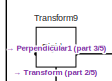
[diagram: root canvas - part 1/5, top left region]
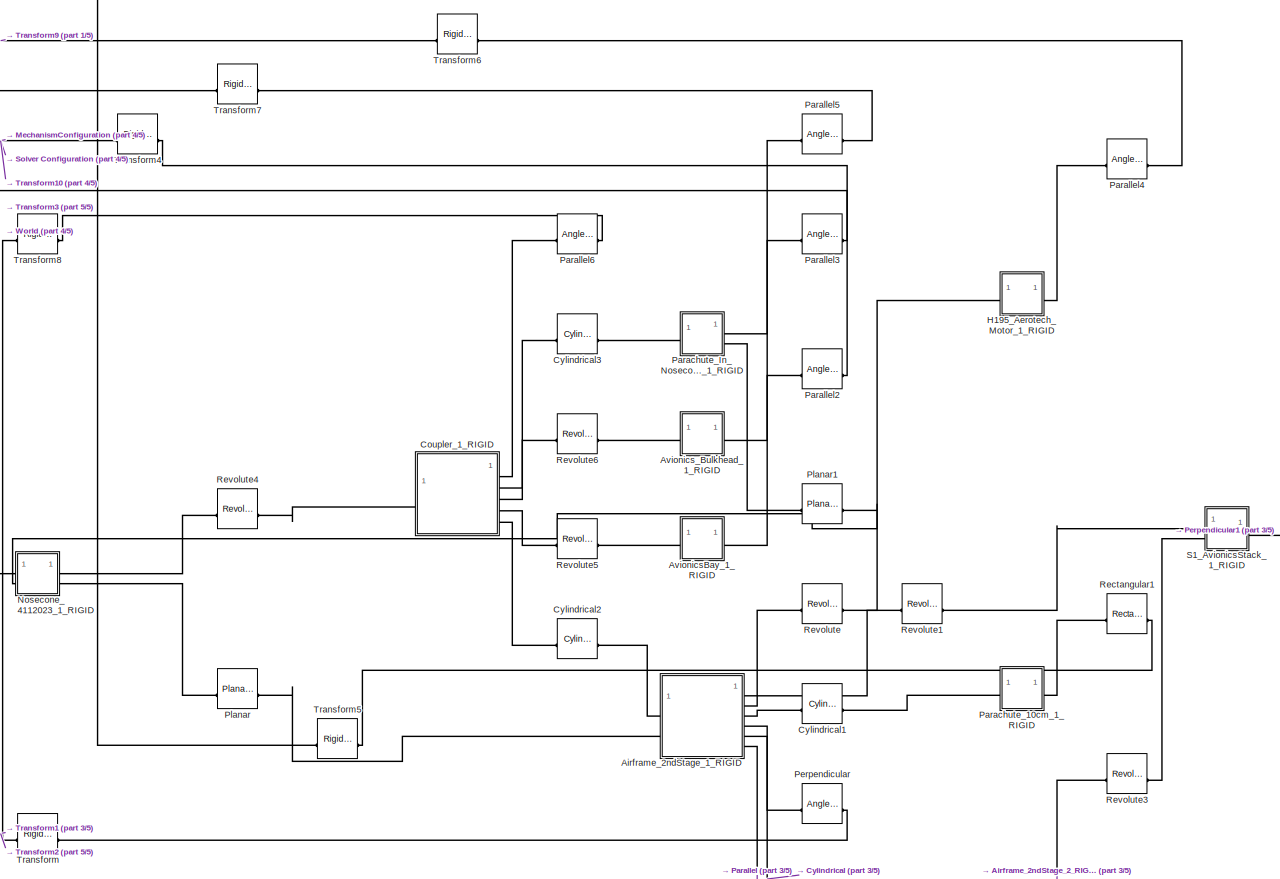
[diagram: root canvas - part 2/5, central region]
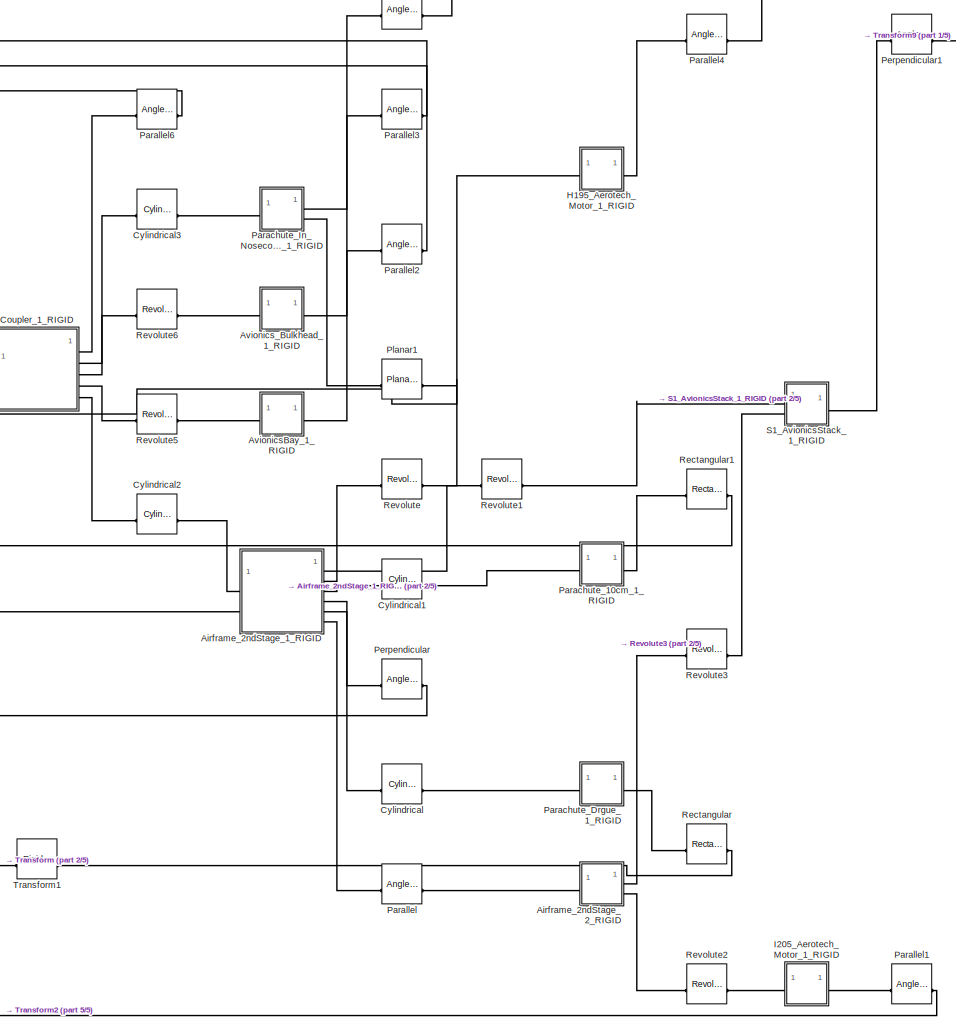
[diagram: root canvas - part 3/5, middle right region]
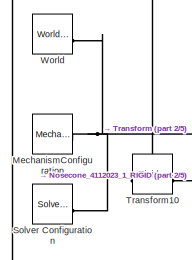
[diagram: root canvas - part 4/5, middle left region]
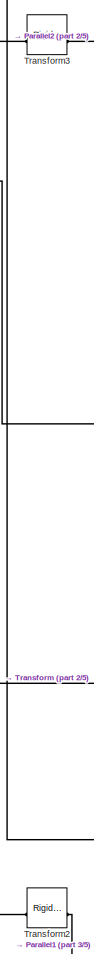
[diagram: root canvas - part 5/5, middle left region]
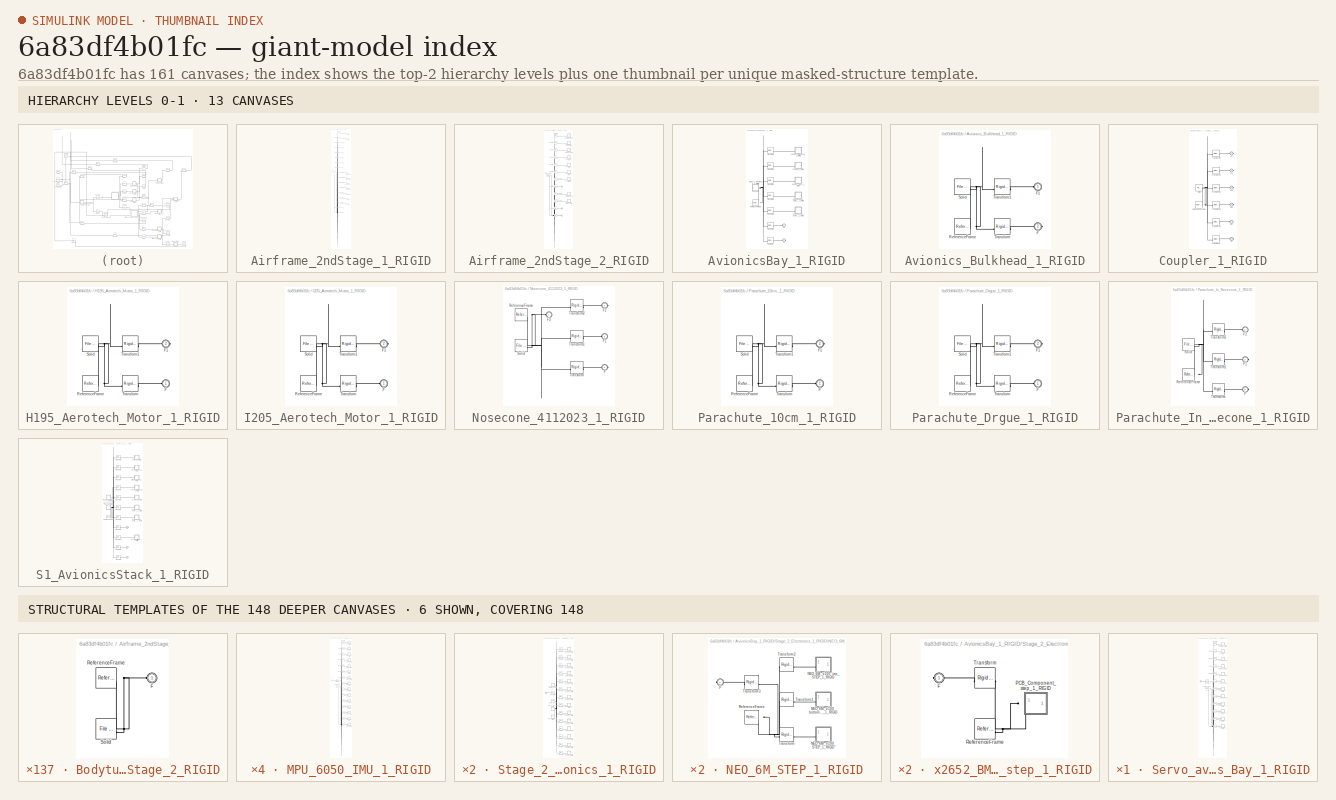
[diagram: thumbnail index - top-2 hierarchy levels (13 canvases) + 6 structural-template representatives of the remaining 148 canvases]
MODEL slx_6a83df4b01fc
KIND model
CONFIG AbsTol = auto
CONFIG EnableMultiTasking = off
CONFIG FixedStep = auto
CONFIG MaxStep = auto
CONFIG MinStep = auto
CONFIG RelTol = 1e-3
CONFIG SampleTimeConstraint = Unconstrained
CONFIG SolverName = VariableStepAuto
CONFIG StartTime = 0.0
CONFIG StopTime = 10.0
WORKSPACE source: external: MATLAB File  (data not in archive)
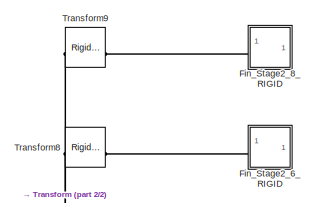
[diagram: Airframe_2ndStage_1_RIGID - part 1/2, full width, top band]
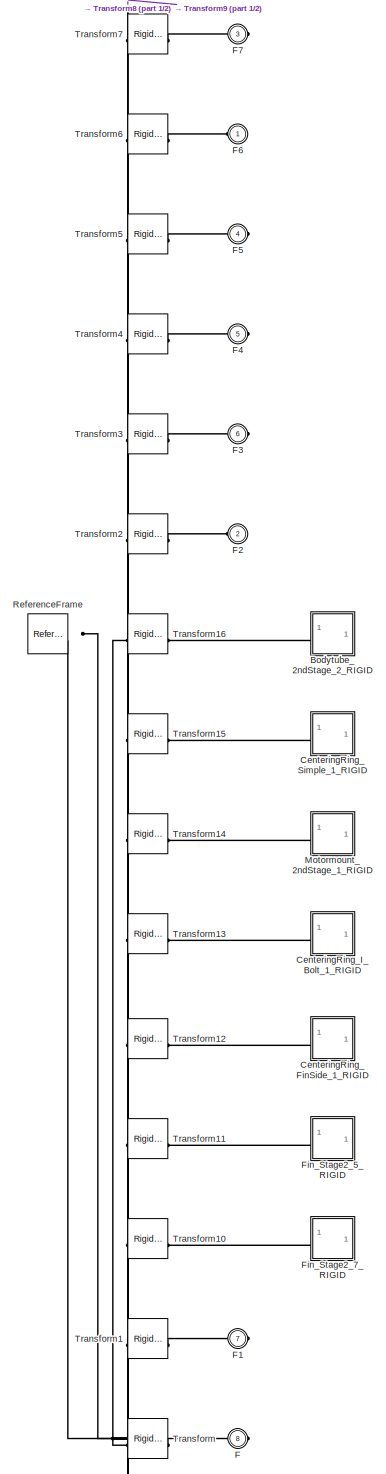
[diagram: Airframe_2ndStage_1_RIGID - part 2/2, full width, middle band]
BLOCK [SubSystem] Airframe_2ndStage_1_RIGID
BLOCK [SubSystem] Airframe_2ndStage_1_RIGID/Bodytube_2ndStage_2_RIGID
BLOCK [PMIOPort] Airframe_2ndStage_1_RIGID/Bodytube_2ndStage_2_RIGID/F
  Side = Left
BLOCK [Reference] Airframe_2ndStage_1_RIGID/Bodytube_2ndStage_2_RIGID/ReferenceFrame  REF=sm_lib/Frames and
Transforms/Reference
Frame
  SourceBlock = sm_lib/Frames and\nTransforms/Reference\nFrame
  SourceType = Reference\nFrame
BLOCK [Reference] Airframe_2ndStage_1_RIGID/Bodytube_2ndStage_2_RIGID/Solid  REF=sm_lib/Body Elements/File Solid
  SourceBlock = sm_lib/Body Elements/File Solid
  SourceType = File Solid
BLOCK [SubSystem] Airframe_2ndStage_1_RIGID/CenteringRing_FinSide_1_RIGID
BLOCK [PMIOPort] Airframe_2ndStage_1_RIGID/CenteringRing_FinSide_1_RIGID/F
  Side = Left
BLOCK [Reference] Airframe_2ndStage_1_RIGID/CenteringRing_FinSide_1_RIGID/ReferenceFrame  REF=sm_lib/Frames and
Transforms/Reference
Frame
  SourceBlock = sm_lib/Frames and\nTransforms/Reference\nFrame
  SourceType = Reference\nFrame
BLOCK [Reference] Airframe_2ndStage_1_RIGID/CenteringRing_FinSide_1_RIGID/Solid  REF=sm_lib/Body Elements/File Solid
  SourceBlock = sm_lib/Body Elements/File Solid
  SourceType = File Solid
BLOCK [SubSystem] Airframe_2ndStage_1_RIGID/CenteringRing_I_Bolt_1_RIGID
BLOCK [PMIOPort] Airframe_2ndStage_1_RIGID/CenteringRing_I_Bolt_1_RIGID/F
  Side = Left
BLOCK [Reference] Airframe_2ndStage_1_RIGID/CenteringRing_I_Bolt_1_RIGID/ReferenceFrame  REF=sm_lib/Frames and
Transforms/Reference
Frame
  SourceBlock = sm_lib/Frames and\nTransforms/Reference\nFrame
  SourceType = Reference\nFrame
BLOCK [Reference] Airframe_2ndStage_1_RIGID/CenteringRing_I_Bolt_1_RIGID/Solid  REF=sm_lib/Body Elements/File Solid
  SourceBlock = sm_lib/Body Elements/File Solid
  SourceType = File Solid
BLOCK [SubSystem] Airframe_2ndStage_1_RIGID/CenteringRing_Simple_1_RIGID
BLOCK [PMIOPort] Airframe_2ndStage_1_RIGID/CenteringRing_Simple_1_RIGID/F
  Side = Left
BLOCK [Reference] Airframe_2ndStage_1_RIGID/CenteringRing_Simple_1_RIGID/ReferenceFrame  REF=sm_lib/Frames and
Transforms/Reference
Frame
  SourceBlock = sm_lib/Frames and\nTransforms/Reference\nFrame
  SourceType = Reference\nFrame
BLOCK [Reference] Airframe_2ndStage_1_RIGID/CenteringRing_Simple_1_RIGID/Solid  REF=sm_lib/Body Elements/File Solid
  SourceBlock = sm_lib/Body Elements/File Solid
  SourceType = File Solid
BLOCK [PMIOPort] Airframe_2ndStage_1_RIGID/F
  Port = 8
  Side = Right
BLOCK [PMIOPort] Airframe_2ndStage_1_RIGID/F1
  Port = 7
  Side = Right
BLOCK [PMIOPort] Airframe_2ndStage_1_RIGID/F2
  Port = 2
  Side = Left
BLOCK [PMIOPort] Airframe_2ndStage_1_RIGID/F3
  Port = 6
  Side = Right
BLOCK [PMIOPort] Airframe_2ndStage_1_RIGID/F4
  Port = 5
  Side = Right
BLOCK [PMIOPort] Airframe_2ndStage_1_RIGID/F5
  Port = 4
  Side = Right
BLOCK [PMIOPort] Airframe_2ndStage_1_RIGID/F6
  Side = Left
BLOCK [PMIOPort] Airframe_2ndStage_1_RIGID/F7
  Port = 3
  Side = Right
BLOCK [SubSystem] Airframe_2ndStage_1_RIGID/Fin_Stage2_5_RIGID
BLOCK [PMIOPort] Airframe_2ndStage_1_RIGID/Fin_Stage2_5_RIGID/F
  Side = Left
BLOCK [Reference] Airframe_2ndStage_1_RIGID/Fin_Stage2_5_RIGID/ReferenceFrame  REF=sm_lib/Frames and
Transforms/Reference
Frame
  SourceBlock = sm_lib/Frames and\nTransforms/Reference\nFrame
  SourceType = Reference\nFrame
BLOCK [Reference] Airframe_2ndStage_1_RIGID/Fin_Stage2_5_RIGID/Solid  REF=sm_lib/Body Elements/File Solid
  SourceBlock = sm_lib/Body Elements/File Solid
  SourceType = File Solid
BLOCK [SubSystem] Airframe_2ndStage_1_RIGID/Fin_Stage2_6_RIGID
BLOCK [PMIOPort] Airframe_2ndStage_1_RIGID/Fin_Stage2_6_RIGID/F
  Side = Left
BLOCK [Reference] Airframe_2ndStage_1_RIGID/Fin_Stage2_6_RIGID/ReferenceFrame  REF=sm_lib/Frames and
Transforms/Reference
Frame
  SourceBlock = sm_lib/Frames and\nTransforms/Reference\nFrame
  SourceType = Reference\nFrame
BLOCK [Reference] Airframe_2ndStage_1_RIGID/Fin_Stage2_6_RIGID/Solid  REF=sm_lib/Body Elements/File Solid
  SourceBlock = sm_lib/Body Elements/File Solid
  SourceType = File Solid
BLOCK [SubSystem] Airframe_2ndStage_1_RIGID/Fin_Stage2_7_RIGID
BLOCK [PMIOPort] Airframe_2ndStage_1_RIGID/Fin_Stage2_7_RIGID/F
  Side = Left
BLOCK [Reference] Airframe_2ndStage_1_RIGID/Fin_Stage2_7_RIGID/ReferenceFrame  REF=sm_lib/Frames and
Transforms/Reference
Frame
  SourceBlock = sm_lib/Frames and\nTransforms/Reference\nFrame
  SourceType = Reference\nFrame
BLOCK [Reference] Airframe_2ndStage_1_RIGID/Fin_Stage2_7_RIGID/Solid  REF=sm_lib/Body Elements/File Solid
  SourceBlock = sm_lib/Body Elements/File Solid
  SourceType = File Solid
BLOCK [SubSystem] Airframe_2ndStage_1_RIGID/Fin_Stage2_8_RIGID
BLOCK [PMIOPort] Airframe_2ndStage_1_RIGID/Fin_Stage2_8_RIGID/F
  Side = Left
BLOCK [Reference] Airframe_2ndStage_1_RIGID/Fin_Stage2_8_RIGID/ReferenceFrame  REF=sm_lib/Frames and
Transforms/Reference
Frame
  SourceBlock = sm_lib/Frames and\nTransforms/Reference\nFrame
  SourceType = Reference\nFrame
BLOCK [Reference] Airframe_2ndStage_1_RIGID/Fin_Stage2_8_RIGID/Solid  REF=sm_lib/Body Elements/File Solid
  SourceBlock = sm_lib/Body Elements/File Solid
  SourceType = File Solid
BLOCK [SubSystem] Airframe_2ndStage_1_RIGID/Motormount_2ndStage_1_RIGID
BLOCK [PMIOPort] Airframe_2ndStage_1_RIGID/Motormount_2ndStage_1_RIGID/F
  Side = Left
BLOCK [Reference] Airframe_2ndStage_1_RIGID/Motormount_2ndStage_1_RIGID/ReferenceFrame  REF=sm_lib/Frames and
Transforms/Reference
Frame
  SourceBlock = sm_lib/Frames and\nTransforms/Reference\nFrame
  SourceType = Reference\nFrame
BLOCK [Reference] Airframe_2ndStage_1_RIGID/Motormount_2ndStage_1_RIGID/Solid  REF=sm_lib/Body Elements/File Solid
  SourceBlock = sm_lib/Body Elements/File Solid
  SourceType = File Solid
BLOCK [Reference] Airframe_2ndStage_1_RIGID/ReferenceFrame  REF=sm_lib/Frames and
Transforms/Reference
Frame
  SourceBlock = sm_lib/Frames and\nTransforms/Reference\nFrame
  SourceType = Reference\nFrame
BLOCK [Reference] Airframe_2ndStage_1_RIGID/Transform  REF=sm_lib/Frames and
Transforms/Rigid
Transform
  SourceBlock = sm_lib/Frames and\nTransforms/Rigid\nTransform
  SourceType = Rigid\nTransform
BLOCK [Reference] Airframe_2ndStage_1_RIGID/Transform1  REF=sm_lib/Frames and
Transforms/Rigid
Transform
  SourceBlock = sm_lib/Frames and\nTransforms/Rigid\nTransform
  SourceType = Rigid\nTransform
BLOCK [Reference] Airframe_2ndStage_1_RIGID/Transform10  REF=sm_lib/Frames and
Transforms/Rigid
Transform
  SourceBlock = sm_lib/Frames and\nTransforms/Rigid\nTransform
  SourceType = Rigid\nTransform
BLOCK [Reference] Airframe_2ndStage_1_RIGID/Transform11  REF=sm_lib/Frames and
Transforms/Rigid
Transform
  SourceBlock = sm_lib/Frames and\nTransforms/Rigid\nTransform
  SourceType = Rigid\nTransform
BLOCK [Reference] Airframe_2ndStage_1_RIGID/Transform12  REF=sm_lib/Frames and
Transforms/Rigid
Transform
  SourceBlock = sm_lib/Frames and\nTransforms/Rigid\nTransform
  SourceType = Rigid\nTransform
BLOCK [Reference] Airframe_2ndStage_1_RIGID/Transform13  REF=sm_lib/Frames and
Transforms/Rigid
Transform
  SourceBlock = sm_lib/Frames and\nTransforms/Rigid\nTransform
  SourceType = Rigid\nTransform
BLOCK [Reference] Airframe_2ndStage_1_RIGID/Transform14  REF=sm_lib/Frames and
Transforms/Rigid
Transform
  SourceBlock = sm_lib/Frames and\nTransforms/Rigid\nTransform
  SourceType = Rigid\nTransform
BLOCK [Reference] Airframe_2ndStage_1_RIGID/Transform15  REF=sm_lib/Frames and
Transforms/Rigid
Transform
  SourceBlock = sm_lib/Frames and\nTransforms/Rigid\nTransform
  SourceType = Rigid\nTransform
BLOCK [Reference] Airframe_2ndStage_1_RIGID/Transform16  REF=sm_lib/Frames and
Transforms/Rigid
Transform
  SourceBlock = sm_lib/Frames and\nTransforms/Rigid\nTransform
  SourceType = Rigid\nTransform
BLOCK [Reference] Airframe_2ndStage_1_RIGID/Transform2  REF=sm_lib/Frames and
Transforms/Rigid
Transform
  SourceBlock = sm_lib/Frames and\nTransforms/Rigid\nTransform
  SourceType = Rigid\nTransform
BLOCK [Reference] Airframe_2ndStage_1_RIGID/Transform3  REF=sm_lib/Frames and
Transforms/Rigid
Transform
  SourceBlock = sm_lib/Frames and\nTransforms/Rigid\nTransform
  SourceType = Rigid\nTransform
BLOCK [Reference] Airframe_2ndStage_1_RIGID/Transform4  REF=sm_lib/Frames and
Transforms/Rigid
Transform
  SourceBlock = sm_lib/Frames and\nTransforms/Rigid\nTransform
  SourceType = Rigid\nTransform
BLOCK [Reference] Airframe_2ndStage_1_RIGID/Transform5  REF=sm_lib/Frames and
Transforms/Rigid
Transform
  SourceBlock = sm_lib/Frames and\nTransforms/Rigid\nTransform
  SourceType = Rigid\nTransform
BLOCK [Reference] Airframe_2ndStage_1_RIGID/Transform6  REF=sm_lib/Frames and
Transforms/Rigid
Transform
  SourceBlock = sm_lib/Frames and\nTransforms/Rigid\nTransform
  SourceType = Rigid\nTransform
BLOCK [Reference] Airframe_2ndStage_1_RIGID/Transform7  REF=sm_lib/Frames and
Transforms/Rigid
Transform
  SourceBlock = sm_lib/Frames and\nTransforms/Rigid\nTransform
  SourceType = Rigid\nTransform
BLOCK [Reference] Airframe_2ndStage_1_RIGID/Transform8  REF=sm_lib/Frames and
Transforms/Rigid
Transform
  SourceBlock = sm_lib/Frames and\nTransforms/Rigid\nTransform
  SourceType = Rigid\nTransform
BLOCK [Reference] Airframe_2ndStage_1_RIGID/Transform9  REF=sm_lib/Frames and
Transforms/Rigid
Transform
  SourceBlock = sm_lib/Frames and\nTransforms/Rigid\nTransform
  SourceType = Rigid\nTransform
BLOCK [SubSystem] Airframe_2ndStage_2_RIGID
BLOCK [SubSystem] Airframe_2ndStage_2_RIGID/Bodytube_2ndStage_2_RIGID
BLOCK [PMIOPort] Airframe_2ndStage_2_RIGID/Bodytube_2ndStage_2_RIGID/F
  Side = Left
BLOCK [Reference] Airframe_2ndStage_2_RIGID/Bodytube_2ndStage_2_RIGID/ReferenceFrame  REF=sm_lib/Frames and
Transforms/Reference
Frame
  SourceBlock = sm_lib/Frames and\nTransforms/Reference\nFrame
  SourceType = Reference\nFrame
BLOCK [Reference] Airframe_2ndStage_2_RIGID/Bodytube_2ndStage_2_RIGID/Solid  REF=sm_lib/Body Elements/File Solid
  SourceBlock = sm_lib/Body Elements/File Solid
  SourceType = File Solid
BLOCK [SubSystem] Airframe_2ndStage_2_RIGID/CenteringRing_FinSide_1_RIGID
BLOCK [PMIOPort] Airframe_2ndStage_2_RIGID/CenteringRing_FinSide_1_RIGID/F
  Side = Left
BLOCK [Reference] Airframe_2ndStage_2_RIGID/CenteringRing_FinSide_1_RIGID/ReferenceFrame  REF=sm_lib/Frames and
Transforms/Reference
Frame
  SourceBlock = sm_lib/Frames and\nTransforms/Reference\nFrame
  SourceType = Reference\nFrame
BLOCK [Reference] Airframe_2ndStage_2_RIGID/CenteringRing_FinSide_1_RIGID/Solid  REF=sm_lib/Body Elements/File Solid
  SourceBlock = sm_lib/Body Elements/File Solid
  SourceType = File Solid
BLOCK [SubSystem] Airframe_2ndStage_2_RIGID/CenteringRing_I_Bolt_1_RIGID
BLOCK [PMIOPort] Airframe_2ndStage_2_RIGID/CenteringRing_I_Bolt_1_RIGID/F
  Side = Left
BLOCK [Reference] Airframe_2ndStage_2_RIGID/CenteringRing_I_Bolt_1_RIGID/ReferenceFrame  REF=sm_lib/Frames and
Transforms/Reference
Frame
  SourceBlock = sm_lib/Frames and\nTransforms/Reference\nFrame
  SourceType = Reference\nFrame
BLOCK [Reference] Airframe_2ndStage_2_RIGID/CenteringRing_I_Bolt_1_RIGID/Solid  REF=sm_lib/Body Elements/File Solid
  SourceBlock = sm_lib/Body Elements/File Solid
  SourceType = File Solid
BLOCK [SubSystem] Airframe_2ndStage_2_RIGID/CenteringRing_Simple_1_RIGID
BLOCK [PMIOPort] Airframe_2ndStage_2_RIGID/CenteringRing_Simple_1_RIGID/F
  Side = Left
BLOCK [Reference] Airframe_2ndStage_2_RIGID/CenteringRing_Simple_1_RIGID/ReferenceFrame  REF=sm_lib/Frames and
Transforms/Reference
Frame
  SourceBlock = sm_lib/Frames and\nTransforms/Reference\nFrame
  SourceType = Reference\nFrame
BLOCK [Reference] Airframe_2ndStage_2_RIGID/CenteringRing_Simple_1_RIGID/Solid  REF=sm_lib/Body Elements/File Solid
  SourceBlock = sm_lib/Body Elements/File Solid
  SourceType = File Solid
BLOCK [PMIOPort] Airframe_2ndStage_2_RIGID/F
  Side = Left
BLOCK [PMIOPort] Airframe_2ndStage_2_RIGID/F1
  Port = 3
  Side = Right
BLOCK [PMIOPort] Airframe_2ndStage_2_RIGID/F2
  Port = 2
  Side = Right
BLOCK [SubSystem] Airframe_2ndStage_2_RIGID/Fin_Stage2_5_RIGID
BLOCK [PMIOPort] Airframe_2ndStage_2_RIGID/Fin_Stage2_5_RIGID/F
  Side = Left
BLOCK [Reference] Airframe_2ndStage_2_RIGID/Fin_Stage2_5_RIGID/ReferenceFrame  REF=sm_lib/Frames and
Transforms/Reference
Frame
  SourceBlock = sm_lib/Frames and\nTransforms/Reference\nFrame
  SourceType = Reference\nFrame
BLOCK [Reference] Airframe_2ndStage_2_RIGID/Fin_Stage2_5_RIGID/Solid  REF=sm_lib/Body Elements/File Solid
  SourceBlock = sm_lib/Body Elements/File Solid
  SourceType = File Solid
BLOCK [SubSystem] Airframe_2ndStage_2_RIGID/Fin_Stage2_6_RIGID
BLOCK [PMIOPort] Airframe_2ndStage_2_RIGID/Fin_Stage2_6_RIGID/F
  Side = Left
BLOCK [Reference] Airframe_2ndStage_2_RIGID/Fin_Stage2_6_RIGID/ReferenceFrame  REF=sm_lib/Frames and
Transforms/Reference
Frame
  SourceBlock = sm_lib/Frames and\nTransforms/Reference\nFrame
  SourceType = Reference\nFrame
BLOCK [Reference] Airframe_2ndStage_2_RIGID/Fin_Stage2_6_RIGID/Solid  REF=sm_lib/Body Elements/File Solid
  SourceBlock = sm_lib/Body Elements/File Solid
  SourceType = File Solid
BLOCK [SubSystem] Airframe_2ndStage_2_RIGID/Fin_Stage2_7_RIGID
BLOCK [PMIOPort] Airframe_2ndStage_2_RIGID/Fin_Stage2_7_RIGID/F
  Side = Left
BLOCK [Reference] Airframe_2ndStage_2_RIGID/Fin_Stage2_7_RIGID/ReferenceFrame  REF=sm_lib/Frames and
Transforms/Reference
Frame
  SourceBlock = sm_lib/Frames and\nTransforms/Reference\nFrame
  SourceType = Reference\nFrame
BLOCK [Reference] Airframe_2ndStage_2_RIGID/Fin_Stage2_7_RIGID/Solid  REF=sm_lib/Body Elements/File Solid
  SourceBlock = sm_lib/Body Elements/File Solid
  SourceType = File Solid
BLOCK [SubSystem] Airframe_2ndStage_2_RIGID/Fin_Stage2_8_RIGID
BLOCK [PMIOPort] Airframe_2ndStage_2_RIGID/Fin_Stage2_8_RIGID/F
  Side = Left
BLOCK [Reference] Airframe_2ndStage_2_RIGID/Fin_Stage2_8_RIGID/ReferenceFrame  REF=sm_lib/Frames and
Transforms/Reference
Frame
  SourceBlock = sm_lib/Frames and\nTransforms/Reference\nFrame
  SourceType = Reference\nFrame
BLOCK [Reference] Airframe_2ndStage_2_RIGID/Fin_Stage2_8_RIGID/Solid  REF=sm_lib/Body Elements/File Solid
  SourceBlock = sm_lib/Body Elements/File Solid
  SourceType = File Solid
BLOCK [SubSystem] Airframe_2ndStage_2_RIGID/Motormount_2ndStage_1_RIGID
BLOCK [PMIOPort] Airframe_2ndStage_2_RIGID/Motormount_2ndStage_1_RIGID/F
  Side = Left
BLOCK [Reference] Airframe_2ndStage_2_RIGID/Motormount_2ndStage_1_RIGID/ReferenceFrame  REF=sm_lib/Frames and
Transforms/Reference
Frame
  SourceBlock = sm_lib/Frames and\nTransforms/Reference\nFrame
  SourceType = Reference\nFrame
BLOCK [Reference] Airframe_2ndStage_2_RIGID/Motormount_2ndStage_1_RIGID/Solid  REF=sm_lib/Body Elements/File Solid
  SourceBlock = sm_lib/Body Elements/File Solid
  SourceType = File Solid
BLOCK [Reference] Airframe_2ndStage_2_RIGID/ReferenceFrame  REF=sm_lib/Frames and
Transforms/Reference
Frame
  SourceBlock = sm_lib/Frames and\nTransforms/Reference\nFrame
  SourceType = Reference\nFrame
BLOCK [Reference] Airframe_2ndStage_2_RIGID/Transform  REF=sm_lib/Frames and
Transforms/Rigid
Transform
  SourceBlock = sm_lib/Frames and\nTransforms/Rigid\nTransform
  SourceType = Rigid\nTransform
BLOCK [Reference] Airframe_2ndStage_2_RIGID/Transform1  REF=sm_lib/Frames and
Transforms/Rigid
Transform
  SourceBlock = sm_lib/Frames and\nTransforms/Rigid\nTransform
  SourceType = Rigid\nTransform
BLOCK [Reference] Airframe_2ndStage_2_RIGID/Transform10  REF=sm_lib/Frames and
Transforms/Rigid
Transform
  SourceBlock = sm_lib/Frames and\nTransforms/Rigid\nTransform
  SourceType = Rigid\nTransform
BLOCK [Reference] Airframe_2ndStage_2_RIGID/Transform11  REF=sm_lib/Frames and
Transforms/Rigid
Transform
  SourceBlock = sm_lib/Frames and\nTransforms/Rigid\nTransform
  SourceType = Rigid\nTransform
BLOCK [Reference] Airframe_2ndStage_2_RIGID/Transform2  REF=sm_lib/Frames and
Transforms/Rigid
Transform
  SourceBlock = sm_lib/Frames and\nTransforms/Rigid\nTransform
  SourceType = Rigid\nTransform
BLOCK [Reference] Airframe_2ndStage_2_RIGID/Transform3  REF=sm_lib/Frames and
Transforms/Rigid
Transform
  SourceBlock = sm_lib/Frames and\nTransforms/Rigid\nTransform
  SourceType = Rigid\nTransform
BLOCK [Reference] Airframe_2ndStage_2_RIGID/Transform4  REF=sm_lib/Frames and
Transforms/Rigid
Transform
  SourceBlock = sm_lib/Frames and\nTransforms/Rigid\nTransform
  SourceType = Rigid\nTransform
BLOCK [Reference] Airframe_2ndStage_2_RIGID/Transform5  REF=sm_lib/Frames and
Transforms/Rigid
Transform
  SourceBlock = sm_lib/Frames and\nTransforms/Rigid\nTransform
  SourceType = Rigid\nTransform
BLOCK [Reference] Airframe_2ndStage_2_RIGID/Transform6  REF=sm_lib/Frames and
Transforms/Rigid
Transform
  SourceBlock = sm_lib/Frames and\nTransforms/Rigid\nTransform
  SourceType = Rigid\nTransform
BLOCK [Reference] Airframe_2ndStage_2_RIGID/Transform7  REF=sm_lib/Frames and
Transforms/Rigid
Transform
  SourceBlock = sm_lib/Frames and\nTransforms/Rigid\nTransform
  SourceType = Rigid\nTransform
BLOCK [Reference] Airframe_2ndStage_2_RIGID/Transform8  REF=sm_lib/Frames and
Transforms/Rigid
Transform
  SourceBlock = sm_lib/Frames and\nTransforms/Rigid\nTransform
  SourceType = Rigid\nTransform
BLOCK [Reference] Airframe_2ndStage_2_RIGID/Transform9  REF=sm_lib/Frames and
Transforms/Rigid
Transform
  SourceBlock = sm_lib/Frames and\nTransforms/Rigid\nTransform
  SourceType = Rigid\nTransform
BLOCK [SubSystem] AvionicsBay_1_RIGID
BLOCK [SubSystem] AvionicsBay_1_RIGID/Avionics_Bulkhead_1_RIGID
BLOCK [PMIOPort] AvionicsBay_1_RIGID/Avionics_Bulkhead_1_RIGID/F
  Side = Left
BLOCK [Reference] AvionicsBay_1_RIGID/Avionics_Bulkhead_1_RIGID/ReferenceFrame  REF=sm_lib/Frames and
Transforms/Reference
Frame
  SourceBlock = sm_lib/Frames and\nTransforms/Reference\nFrame
  SourceType = Reference\nFrame
BLOCK [Reference] AvionicsBay_1_RIGID/Avionics_Bulkhead_1_RIGID/Solid  REF=sm_lib/Body Elements/File Solid
  SourceBlock = sm_lib/Body Elements/File Solid
  SourceType = File Solid
BLOCK [SubSystem] AvionicsBay_1_RIGID/Avionics_Sled_1_RIGID
BLOCK [PMIOPort] AvionicsBay_1_RIGID/Avionics_Sled_1_RIGID/F
  Side = Left
BLOCK [Reference] AvionicsBay_1_RIGID/Avionics_Sled_1_RIGID/ReferenceFrame  REF=sm_lib/Frames and
Transforms/Reference
Frame
  SourceBlock = sm_lib/Frames and\nTransforms/Reference\nFrame
  SourceType = Reference\nFrame
BLOCK [Reference] AvionicsBay_1_RIGID/Avionics_Sled_1_RIGID/Solid  REF=sm_lib/Body Elements/File Solid
  SourceBlock = sm_lib/Body Elements/File Solid
  SourceType = File Solid
BLOCK [SubSystem] AvionicsBay_1_RIGID/Coupler_1_RIGID
BLOCK [PMIOPort] AvionicsBay_1_RIGID/Coupler_1_RIGID/F
  Side = Left
BLOCK [Reference] AvionicsBay_1_RIGID/Coupler_1_RIGID/ReferenceFrame  REF=sm_lib/Frames and
Transforms/Reference
Frame
  SourceBlock = sm_lib/Frames and\nTransforms/Reference\nFrame
  SourceType = Reference\nFrame
BLOCK [Reference] AvionicsBay_1_RIGID/Coupler_1_RIGID/Solid  REF=sm_lib/Body Elements/File Solid
  SourceBlock = sm_lib/Body Elements/File Solid
  SourceType = File Solid
BLOCK [PMIOPort] AvionicsBay_1_RIGID/F
  Port = 2
  Side = Right
BLOCK [PMIOPort] AvionicsBay_1_RIGID/F1
  Side = Left
BLOCK [Reference] AvionicsBay_1_RIGID/ReferenceFrame  REF=sm_lib/Frames and
Transforms/Reference
Frame
  SourceBlock = sm_lib/Frames and\nTransforms/Reference\nFrame
  SourceType = Reference\nFrame
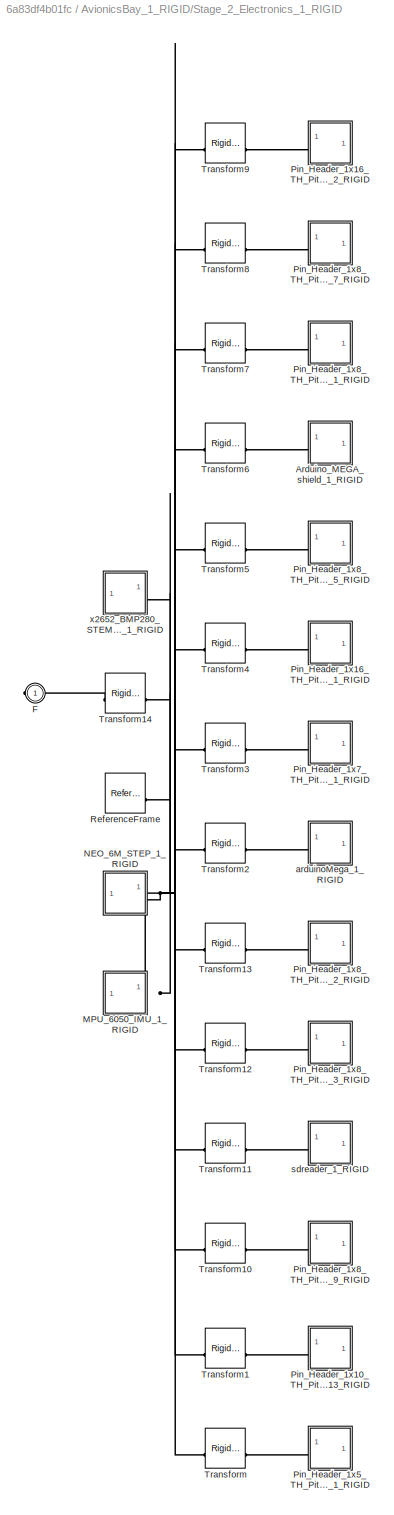
BLOCK [SubSystem] AvionicsBay_1_RIGID/Stage_2_Electronics_1_RIGID
BLOCK [SubSystem] AvionicsBay_1_RIGID/Stage_2_Electronics_1_RIGID/Arduino_MEGA_shield_1_RIGID
BLOCK [PMIOPort] AvionicsBay_1_RIGID/Stage_2_Electronics_1_RIGID/Arduino_MEGA_shield_1_RIGID/F
  Side = Left
BLOCK [Reference] AvionicsBay_1_RIGID/Stage_2_Electronics_1_RIGID/Arduino_MEGA_shield_1_RIGID/ReferenceFrame  REF=sm_lib/Frames and
Transforms/Reference
Frame
  SourceBlock = sm_lib/Frames and\nTransforms/Reference\nFrame
  SourceType = Reference\nFrame
BLOCK [Reference] AvionicsBay_1_RIGID/Stage_2_Electronics_1_RIGID/Arduino_MEGA_shield_1_RIGID/Solid  REF=sm_lib/Body Elements/File Solid
  SourceBlock = sm_lib/Body Elements/File Solid
  SourceType = File Solid
BLOCK [PMIOPort] AvionicsBay_1_RIGID/Stage_2_Electronics_1_RIGID/F
  Side = Right
BLOCK [SubSystem] AvionicsBay_1_RIGID/Stage_2_Electronics_1_RIGID/MPU_6050_IMU_1_RIGID
BLOCK [SubSystem] AvionicsBay_1_RIGID/Stage_2_Electronics_1_RIGID/MPU_6050_IMU_1_RIGID/Base_1_RIGID
BLOCK [PMIOPort] AvionicsBay_1_RIGID/Stage_2_Electronics_1_RIGID/MPU_6050_IMU_1_RIGID/Base_1_RIGID/F
  Side = Left
BLOCK [Reference] AvionicsBay_1_RIGID/Stage_2_Electronics_1_RIGID/MPU_6050_IMU_1_RIGID/Base_1_RIGID/ReferenceFrame  REF=sm_lib/Frames and
Transforms/Reference
Frame
  SourceBlock = sm_lib/Frames and\nTransforms/Reference\nFrame
  SourceType = Reference\nFrame
BLOCK [Reference] AvionicsBay_1_RIGID/Stage_2_Electronics_1_RIGID/MPU_6050_IMU_1_RIGID/Base_1_RIGID/Solid  REF=sm_lib/Body Elements/File Solid
  SourceBlock = sm_lib/Body Elements/File Solid
  SourceType = File Solid
BLOCK [PMIOPort] AvionicsBay_1_RIGID/Stage_2_Electronics_1_RIGID/MPU_6050_IMU_1_RIGID/F
  Side = Right
BLOCK [Reference] AvionicsBay_1_RIGID/Stage_2_Electronics_1_RIGID/MPU_6050_IMU_1_RIGID/ReferenceFrame  REF=sm_lib/Frames and
Transforms/Reference
Frame
  SourceBlock = sm_lib/Frames and\nTransforms/Reference\nFrame
  SourceType = Reference\nFrame
BLOCK [SubSystem] AvionicsBay_1_RIGID/Stage_2_Electronics_1_RIGID/MPU_6050_IMU_1_RIGID/Resistor_black_1_RIGID
BLOCK [PMIOPort] AvionicsBay_1_RIGID/Stage_2_Electronics_1_RIGID/MPU_6050_IMU_1_RIGID/Resistor_black_1_RIGID/F
  Side = Left
BLOCK [Reference] AvionicsBay_1_RIGID/Stage_2_Electronics_1_RIGID/MPU_6050_IMU_1_RIGID/Resistor_black_1_RIGID/ReferenceFrame  REF=sm_lib/Frames and
Transforms/Reference
Frame
  SourceBlock = sm_lib/Frames and\nTransforms/Reference\nFrame
  SourceType = Reference\nFrame
BLOCK [Reference] AvionicsBay_1_RIGID/Stage_2_Electronics_1_RIGID/MPU_6050_IMU_1_RIGID/Resistor_black_1_RIGID/Solid  REF=sm_lib/Body Elements/File Solid
  SourceBlock = sm_lib/Body Elements/File Solid
  SourceType = File Solid
BLOCK [SubSystem] AvionicsBay_1_RIGID/Stage_2_Electronics_1_RIGID/MPU_6050_IMU_1_RIGID/Resistor_small_3_RIGID
BLOCK [PMIOPort] AvionicsBay_1_RIGID/Stage_2_Electronics_1_RIGID/MPU_6050_IMU_1_RIGID/Resistor_small_3_RIGID/F
  Side = Left
BLOCK [Reference] AvionicsBay_1_RIGID/Stage_2_Electronics_1_RIGID/MPU_6050_IMU_1_RIGID/Resistor_small_3_RIGID/ReferenceFrame  REF=sm_lib/Frames and
Transforms/Reference
Frame
  SourceBlock = sm_lib/Frames and\nTransforms/Reference\nFrame
  SourceType = Reference\nFrame
BLOCK [Reference] AvionicsBay_1_RIGID/Stage_2_Electronics_1_RIGID/MPU_6050_IMU_1_RIGID/Resistor_small_3_RIGID/Solid  REF=sm_lib/Body Elements/File Solid
  SourceBlock = sm_lib/Body Elements/File Solid
  SourceType = File Solid
BLOCK [SubSystem] AvionicsBay_1_RIGID/Stage_2_Electronics_1_RIGID/MPU_6050_IMU_1_RIGID/Resistor_small_4_RIGID
BLOCK [PMIOPort] AvionicsBay_1_RIGID/Stage_2_Electronics_1_RIGID/MPU_6050_IMU_1_RIGID/Resistor_small_4_RIGID/F
  Side = Left
BLOCK [Reference] AvionicsBay_1_RIGID/Stage_2_Electronics_1_RIGID/MPU_6050_IMU_1_RIGID/Resistor_small_4_RIGID/ReferenceFrame  REF=sm_lib/Frames and
Transforms/Reference
Frame
  SourceBlock = sm_lib/Frames and\nTransforms/Reference\nFrame
  SourceType = Reference\nFrame
BLOCK [Reference] AvionicsBay_1_RIGID/Stage_2_Electronics_1_RIGID/MPU_6050_IMU_1_RIGID/Resistor_small_4_RIGID/Solid  REF=sm_lib/Body Elements/File Solid
  SourceBlock = sm_lib/Body Elements/File Solid
  SourceType = File Solid
BLOCK [SubSystem] AvionicsBay_1_RIGID/Stage_2_Electronics_1_RIGID/MPU_6050_IMU_1_RIGID/Resistor_small_5_RIGID
BLOCK [PMIOPort] AvionicsBay_1_RIGID/Stage_2_Electronics_1_RIGID/MPU_6050_IMU_1_RIGID/Resistor_small_5_RIGID/F
  Side = Left
BLOCK [Reference] AvionicsBay_1_RIGID/Stage_2_Electronics_1_RIGID/MPU_6050_IMU_1_RIGID/Resistor_small_5_RIGID/ReferenceFrame  REF=sm_lib/Frames and
Transforms/Reference
Frame
  SourceBlock = sm_lib/Frames and\nTransforms/Reference\nFrame
  SourceType = Reference\nFrame
BLOCK [Reference] AvionicsBay_1_RIGID/Stage_2_Electronics_1_RIGID/MPU_6050_IMU_1_RIGID/Resistor_small_5_RIGID/Solid  REF=sm_lib/Body Elements/File Solid
  SourceBlock = sm_lib/Body Elements/File Solid
  SourceType = File Solid
BLOCK [SubSystem] AvionicsBay_1_RIGID/Stage_2_Electronics_1_RIGID/MPU_6050_IMU_1_RIGID/Resistor_small_6_RIGID
BLOCK [PMIOPort] AvionicsBay_1_RIGID/Stage_2_Electronics_1_RIGID/MPU_6050_IMU_1_RIGID/Resistor_small_6_RIGID/F
  Side = Left
BLOCK [Reference] AvionicsBay_1_RIGID/Stage_2_Electronics_1_RIGID/MPU_6050_IMU_1_RIGID/Resistor_small_6_RIGID/ReferenceFrame  REF=sm_lib/Frames and
Transforms/Reference
Frame
  SourceBlock = sm_lib/Frames and\nTransforms/Reference\nFrame
  SourceType = Reference\nFrame
BLOCK [Reference] AvionicsBay_1_RIGID/Stage_2_Electronics_1_RIGID/MPU_6050_IMU_1_RIGID/Resistor_small_6_RIGID/Solid  REF=sm_lib/Body Elements/File Solid
  SourceBlock = sm_lib/Body Elements/File Solid
  SourceType = File Solid
BLOCK [SubSystem] AvionicsBay_1_RIGID/Stage_2_Electronics_1_RIGID/MPU_6050_IMU_1_RIGID/Resistor_small_7_RIGID
BLOCK [PMIOPort] AvionicsBay_1_RIGID/Stage_2_Electronics_1_RIGID/MPU_6050_IMU_1_RIGID/Resistor_small_7_RIGID/F
  Side = Left
BLOCK [Reference] AvionicsBay_1_RIGID/Stage_2_Electronics_1_RIGID/MPU_6050_IMU_1_RIGID/Resistor_small_7_RIGID/ReferenceFrame  REF=sm_lib/Frames and
Transforms/Reference
Frame
  SourceBlock = sm_lib/Frames and\nTransforms/Reference\nFrame
  SourceType = Reference\nFrame
BLOCK [Reference] AvionicsBay_1_RIGID/Stage_2_Electronics_1_RIGID/MPU_6050_IMU_1_RIGID/Resistor_small_7_RIGID/Solid  REF=sm_lib/Body Elements/File Solid
  SourceBlock = sm_lib/Body Elements/File Solid
  SourceType = File Solid
BLOCK [SubSystem] AvionicsBay_1_RIGID/Stage_2_Electronics_1_RIGID/MPU_6050_IMU_1_RIGID/Resistor_small_8_RIGID
BLOCK [PMIOPort] AvionicsBay_1_RIGID/Stage_2_Electronics_1_RIGID/MPU_6050_IMU_1_RIGID/Resistor_small_8_RIGID/F
  Side = Left
BLOCK [Reference] AvionicsBay_1_RIGID/Stage_2_Electronics_1_RIGID/MPU_6050_IMU_1_RIGID/Resistor_small_8_RIGID/ReferenceFrame  REF=sm_lib/Frames and
Transforms/Reference
Frame
  SourceBlock = sm_lib/Frames and\nTransforms/Reference\nFrame
  SourceType = Reference\nFrame
BLOCK [Reference] AvionicsBay_1_RIGID/Stage_2_Electronics_1_RIGID/MPU_6050_IMU_1_RIGID/Resistor_small_8_RIGID/Solid  REF=sm_lib/Body Elements/File Solid
  SourceBlock = sm_lib/Body Elements/File Solid
  SourceType = File Solid
BLOCK [SubSystem] AvionicsBay_1_RIGID/Stage_2_Electronics_1_RIGID/MPU_6050_IMU_1_RIGID/Resistor_small_black_3_RIGID
BLOCK [PMIOPort] AvionicsBay_1_RIGID/Stage_2_Electronics_1_RIGID/MPU_6050_IMU_1_RIGID/Resistor_small_black_3_RIGID/F
  Side = Left
BLOCK [Reference] AvionicsBay_1_RIGID/Stage_2_Electronics_1_RIGID/MPU_6050_IMU_1_RIGID/Resistor_small_black_3_RIGID/ReferenceFrame  REF=sm_lib/Frames and
Transforms/Reference
Frame
  SourceBlock = sm_lib/Frames and\nTransforms/Reference\nFrame
  SourceType = Reference\nFrame
BLOCK [Reference] AvionicsBay_1_RIGID/Stage_2_Electronics_1_RIGID/MPU_6050_IMU_1_RIGID/Resistor_small_black_3_RIGID/Solid  REF=sm_lib/Body Elements/File Solid
  SourceBlock = sm_lib/Body Elements/File Solid
  SourceType = File Solid
BLOCK [SubSystem] AvionicsBay_1_RIGID/Stage_2_Electronics_1_RIGID/MPU_6050_IMU_1_RIGID/Resistor_small_black_4_RIGID
BLOCK [PMIOPort] AvionicsBay_1_RIGID/Stage_2_Electronics_1_RIGID/MPU_6050_IMU_1_RIGID/Resistor_small_black_4_RIGID/F
  Side = Left
BLOCK [Reference] AvionicsBay_1_RIGID/Stage_2_Electronics_1_RIGID/MPU_6050_IMU_1_RIGID/Resistor_small_black_4_RIGID/ReferenceFrame  REF=sm_lib/Frames and
Transforms/Reference
Frame
  SourceBlock = sm_lib/Frames and\nTransforms/Reference\nFrame
  SourceType = Reference\nFrame
BLOCK [Reference] AvionicsBay_1_RIGID/Stage_2_Electronics_1_RIGID/MPU_6050_IMU_1_RIGID/Resistor_small_black_4_RIGID/Solid  REF=sm_lib/Body Elements/File Solid
  SourceBlock = sm_lib/Body Elements/File Solid
  SourceType = File Solid
BLOCK [SubSystem] AvionicsBay_1_RIGID/Stage_2_Electronics_1_RIGID/MPU_6050_IMU_1_RIGID/Resistor_small_black_5_RIGID
BLOCK [PMIOPort] AvionicsBay_1_RIGID/Stage_2_Electronics_1_RIGID/MPU_6050_IMU_1_RIGID/Resistor_small_black_5_RIGID/F
  Side = Left
BLOCK [Reference] AvionicsBay_1_RIGID/Stage_2_Electronics_1_RIGID/MPU_6050_IMU_1_RIGID/Resistor_small_black_5_RIGID/ReferenceFrame  REF=sm_lib/Frames and
Transforms/Reference
Frame
  SourceBlock = sm_lib/Frames and\nTransforms/Reference\nFrame
  SourceType = Reference\nFrame
BLOCK [Reference] AvionicsBay_1_RIGID/Stage_2_Electronics_1_RIGID/MPU_6050_IMU_1_RIGID/Resistor_small_black_5_RIGID/Solid  REF=sm_lib/Body Elements/File Solid
  SourceBlock = sm_lib/Body Elements/File Solid
  SourceType = File Solid
BLOCK [SubSystem] AvionicsBay_1_RIGID/Stage_2_Electronics_1_RIGID/MPU_6050_IMU_1_RIGID/Resistor_small_black_6_RIGID
BLOCK [PMIOPort] AvionicsBay_1_RIGID/Stage_2_Electronics_1_RIGID/MPU_6050_IMU_1_RIGID/Resistor_small_black_6_RIGID/F
  Side = Left
BLOCK [Reference] AvionicsBay_1_RIGID/Stage_2_Electronics_1_RIGID/MPU_6050_IMU_1_RIGID/Resistor_small_black_6_RIGID/ReferenceFrame  REF=sm_lib/Frames and
Transforms/Reference
Frame
  SourceBlock = sm_lib/Frames and\nTransforms/Reference\nFrame
  SourceType = Reference\nFrame
BLOCK [Reference] AvionicsBay_1_RIGID/Stage_2_Electronics_1_RIGID/MPU_6050_IMU_1_RIGID/Resistor_small_black_6_RIGID/Solid  REF=sm_lib/Body Elements/File Solid
  SourceBlock = sm_lib/Body Elements/File Solid
  SourceType = File Solid
BLOCK [SubSystem] AvionicsBay_1_RIGID/Stage_2_Electronics_1_RIGID/MPU_6050_IMU_1_RIGID/S2NH_chip_1_RIGID
BLOCK [PMIOPort] AvionicsBay_1_RIGID/Stage_2_Electronics_1_RIGID/MPU_6050_IMU_1_RIGID/S2NH_chip_1_RIGID/F
  Side = Left
BLOCK [Reference] AvionicsBay_1_RIGID/Stage_2_Electronics_1_RIGID/MPU_6050_IMU_1_RIGID/S2NH_chip_1_RIGID/ReferenceFrame  REF=sm_lib/Frames and
Transforms/Reference
Frame
  SourceBlock = sm_lib/Frames and\nTransforms/Reference\nFrame
  SourceType = Reference\nFrame
BLOCK [Reference] AvionicsBay_1_RIGID/Stage_2_Electronics_1_RIGID/MPU_6050_IMU_1_RIGID/S2NH_chip_1_RIGID/Solid  REF=sm_lib/Body Elements/File Solid
  SourceBlock = sm_lib/Body Elements/File Solid
  SourceType = File Solid
BLOCK [SubSystem] AvionicsBay_1_RIGID/Stage_2_Electronics_1_RIGID/MPU_6050_IMU_1_RIGID/Small_LED_1_RIGID
BLOCK [PMIOPort] AvionicsBay_1_RIGID/Stage_2_Electronics_1_RIGID/MPU_6050_IMU_1_RIGID/Small_LED_1_RIGID/F
  Side = Left
BLOCK [Reference] AvionicsBay_1_RIGID/Stage_2_Electronics_1_RIGID/MPU_6050_IMU_1_RIGID/Small_LED_1_RIGID/ReferenceFrame  REF=sm_lib/Frames and
Transforms/Reference
Frame
  SourceBlock = sm_lib/Frames and\nTransforms/Reference\nFrame
  SourceType = Reference\nFrame
BLOCK [Reference] AvionicsBay_1_RIGID/Stage_2_Electronics_1_RIGID/MPU_6050_IMU_1_RIGID/Small_LED_1_RIGID/Solid  REF=sm_lib/Body Elements/File Solid
  SourceBlock = sm_lib/Body Elements/File Solid
  SourceType = File Solid
BLOCK [Reference] AvionicsBay_1_RIGID/Stage_2_Electronics_1_RIGID/MPU_6050_IMU_1_RIGID/Transform  REF=sm_lib/Frames and
Transforms/Rigid
Transform
  SourceBlock = sm_lib/Frames and\nTransforms/Rigid\nTransform
  SourceType = Rigid\nTransform
BLOCK [Reference] AvionicsBay_1_RIGID/Stage_2_Electronics_1_RIGID/MPU_6050_IMU_1_RIGID/Transform1  REF=sm_lib/Frames and
Transforms/Rigid
Transform
  SourceBlock = sm_lib/Frames and\nTransforms/Rigid\nTransform
  SourceType = Rigid\nTransform
BLOCK [Reference] AvionicsBay_1_RIGID/Stage_2_Electronics_1_RIGID/MPU_6050_IMU_1_RIGID/Transform10  REF=sm_lib/Frames and
Transforms/Rigid
Transform
  SourceBlock = sm_lib/Frames and\nTransforms/Rigid\nTransform
  SourceType = Rigid\nTransform
BLOCK [Reference] AvionicsBay_1_RIGID/Stage_2_Electronics_1_RIGID/MPU_6050_IMU_1_RIGID/Transform11  REF=sm_lib/Frames and
Transforms/Rigid
Transform
  SourceBlock = sm_lib/Frames and\nTransforms/Rigid\nTransform
  SourceType = Rigid\nTransform
BLOCK [Reference] AvionicsBay_1_RIGID/Stage_2_Electronics_1_RIGID/MPU_6050_IMU_1_RIGID/Transform12  REF=sm_lib/Frames and
Transforms/Rigid
Transform
  SourceBlock = sm_lib/Frames and\nTransforms/Rigid\nTransform
  SourceType = Rigid\nTransform
BLOCK [Reference] AvionicsBay_1_RIGID/Stage_2_Electronics_1_RIGID/MPU_6050_IMU_1_RIGID/Transform13  REF=sm_lib/Frames and
Transforms/Rigid
Transform
  SourceBlock = sm_lib/Frames and\nTransforms/Rigid\nTransform
  SourceType = Rigid\nTransform
BLOCK [Reference] AvionicsBay_1_RIGID/Stage_2_Electronics_1_RIGID/MPU_6050_IMU_1_RIGID/Transform14  REF=sm_lib/Frames and
Transforms/Rigid
Transform
  SourceBlock = sm_lib/Frames and\nTransforms/Rigid\nTransform
  SourceType = Rigid\nTransform
BLOCK [Reference] AvionicsBay_1_RIGID/Stage_2_Electronics_1_RIGID/MPU_6050_IMU_1_RIGID/Transform15  REF=sm_lib/Frames and
Transforms/Rigid
Transform
  SourceBlock = sm_lib/Frames and\nTransforms/Rigid\nTransform
  SourceType = Rigid\nTransform
BLOCK [Reference] AvionicsBay_1_RIGID/Stage_2_Electronics_1_RIGID/MPU_6050_IMU_1_RIGID/Transform2  REF=sm_lib/Frames and
Transforms/Rigid
Transform
  SourceBlock = sm_lib/Frames and\nTransforms/Rigid\nTransform
  SourceType = Rigid\nTransform
BLOCK [Reference] AvionicsBay_1_RIGID/Stage_2_Electronics_1_RIGID/MPU_6050_IMU_1_RIGID/Transform3  REF=sm_lib/Frames and
Transforms/Rigid
Transform
  SourceBlock = sm_lib/Frames and\nTransforms/Rigid\nTransform
  SourceType = Rigid\nTransform
BLOCK [Reference] AvionicsBay_1_RIGID/Stage_2_Electronics_1_RIGID/MPU_6050_IMU_1_RIGID/Transform4  REF=sm_lib/Frames and
Transforms/Rigid
Transform
  SourceBlock = sm_lib/Frames and\nTransforms/Rigid\nTransform
  SourceType = Rigid\nTransform
BLOCK [Reference] AvionicsBay_1_RIGID/Stage_2_Electronics_1_RIGID/MPU_6050_IMU_1_RIGID/Transform5  REF=sm_lib/Frames and
Transforms/Rigid
Transform
  SourceBlock = sm_lib/Frames and\nTransforms/Rigid\nTransform
  SourceType = Rigid\nTransform
BLOCK [Reference] AvionicsBay_1_RIGID/Stage_2_Electronics_1_RIGID/MPU_6050_IMU_1_RIGID/Transform6  REF=sm_lib/Frames and
Transforms/Rigid
Transform
  SourceBlock = sm_lib/Frames and\nTransforms/Rigid\nTransform
  SourceType = Rigid\nTransform
BLOCK [Reference] AvionicsBay_1_RIGID/Stage_2_Electronics_1_RIGID/MPU_6050_IMU_1_RIGID/Transform7  REF=sm_lib/Frames and
Transforms/Rigid
Transform
  SourceBlock = sm_lib/Frames and\nTransforms/Rigid\nTransform
  SourceType = Rigid\nTransform
BLOCK [Reference] AvionicsBay_1_RIGID/Stage_2_Electronics_1_RIGID/MPU_6050_IMU_1_RIGID/Transform8  REF=sm_lib/Frames and
Transforms/Rigid
Transform
  SourceBlock = sm_lib/Frames and\nTransforms/Rigid\nTransform
  SourceType = Rigid\nTransform
BLOCK [Reference] AvionicsBay_1_RIGID/Stage_2_Electronics_1_RIGID/MPU_6050_IMU_1_RIGID/Transform9  REF=sm_lib/Frames and
Transforms/Rigid
Transform
  SourceBlock = sm_lib/Frames and\nTransforms/Rigid\nTransform
  SourceType = Rigid\nTransform
BLOCK [SubSystem] AvionicsBay_1_RIGID/Stage_2_Electronics_1_RIGID/MPU_6050_IMU_1_RIGID/sensor_chip_1_RIGID
BLOCK [PMIOPort] AvionicsBay_1_RIGID/Stage_2_Electronics_1_RIGID/MPU_6050_IMU_1_RIGID/sensor_chip_1_RIGID/F
  Side = Left
BLOCK [Reference] AvionicsBay_1_RIGID/Stage_2_Electronics_1_RIGID/MPU_6050_IMU_1_RIGID/sensor_chip_1_RIGID/ReferenceFrame  REF=sm_lib/Frames and
Transforms/Reference
Frame
  SourceBlock = sm_lib/Frames and\nTransforms/Reference\nFrame
  SourceType = Reference\nFrame
BLOCK [Reference] AvionicsBay_1_RIGID/Stage_2_Electronics_1_RIGID/MPU_6050_IMU_1_RIGID/sensor_chip_1_RIGID/Solid  REF=sm_lib/Body Elements/File Solid
  SourceBlock = sm_lib/Body Elements/File Solid
  SourceType = File Solid
BLOCK [SubSystem] AvionicsBay_1_RIGID/Stage_2_Electronics_1_RIGID/NEO_6M_STEP_1_RIGID
BLOCK [PMIOPort] AvionicsBay_1_RIGID/Stage_2_Electronics_1_RIGID/NEO_6M_STEP_1_RIGID/F
  Side = Right
BLOCK [SubSystem] AvionicsBay_1_RIGID/Stage_2_Electronics_1_RIGID/NEO_6M_STEP_1_RIGID/NEO_6M_v100_STEP_1_RIGID
BLOCK [PMIOPort] AvionicsBay_1_RIGID/Stage_2_Electronics_1_RIGID/NEO_6M_STEP_1_RIGID/NEO_6M_v100_STEP_1_RIGID/F
  Side = Left
BLOCK [Reference] AvionicsBay_1_RIGID/Stage_2_Electronics_1_RIGID/NEO_6M_STEP_1_RIGID/NEO_6M_v100_STEP_1_RIGID/ReferenceFrame  REF=sm_lib/Frames and
Transforms/Reference
Frame
  SourceBlock = sm_lib/Frames and\nTransforms/Reference\nFrame
  SourceType = Reference\nFrame
BLOCK [Reference] AvionicsBay_1_RIGID/Stage_2_Electronics_1_RIGID/NEO_6M_STEP_1_RIGID/NEO_6M_v100_STEP_1_RIGID/Solid  REF=sm_lib/Body Elements/File Solid
  SourceBlock = sm_lib/Body Elements/File Solid
  SourceType = File Solid
BLOCK [SubSystem] AvionicsBay_1_RIGID/Stage_2_Electronics_1_RIGID/NEO_6M_STEP_1_RIGID/NEO_6M_v100_bottom_STEP_1_RIGID
BLOCK [PMIOPort] AvionicsBay_1_RIGID/Stage_2_Electronics_1_RIGID/NEO_6M_STEP_1_RIGID/NEO_6M_v100_bottom_STEP_1_RIGID/F
  Side = Left
BLOCK [Reference] AvionicsBay_1_RIGID/Stage_2_Electronics_1_RIGID/NEO_6M_STEP_1_RIGID/NEO_6M_v100_bottom_STEP_1_RIGID/ReferenceFrame  REF=sm_lib/Frames and
Transforms/Reference
Frame
  SourceBlock = sm_lib/Frames and\nTransforms/Reference\nFrame
  SourceType = Reference\nFrame
BLOCK [Reference] AvionicsBay_1_RIGID/Stage_2_Electronics_1_RIGID/NEO_6M_STEP_1_RIGID/NEO_6M_v100_bottom_STEP_1_RIGID/Solid  REF=sm_lib/Body Elements/File Solid
  SourceBlock = sm_lib/Body Elements/File Solid
  SourceType = File Solid
BLOCK [SubSystem] AvionicsBay_1_RIGID/Stage_2_Electronics_1_RIGID/NEO_6M_STEP_1_RIGID/NEO_6M_v100_top_STEP_1_RIGID
BLOCK [PMIOPort] AvionicsBay_1_RIGID/Stage_2_Electronics_1_RIGID/NEO_6M_STEP_1_RIGID/NEO_6M_v100_top_STEP_1_RIGID/F
  Side = Left
BLOCK [Reference] AvionicsBay_1_RIGID/Stage_2_Electronics_1_RIGID/NEO_6M_STEP_1_RIGID/NEO_6M_v100_top_STEP_1_RIGID/ReferenceFrame  REF=sm_lib/Frames and
Transforms/Reference
Frame
  SourceBlock = sm_lib/Frames and\nTransforms/Reference\nFrame
  SourceType = Reference\nFrame
BLOCK [Reference] AvionicsBay_1_RIGID/Stage_2_Electronics_1_RIGID/NEO_6M_STEP_1_RIGID/NEO_6M_v100_top_STEP_1_RIGID/Solid  REF=sm_lib/Body Elements/File Solid
  SourceBlock = sm_lib/Body Elements/File Solid
  SourceType = File Solid
BLOCK [Reference] AvionicsBay_1_RIGID/Stage_2_Electronics_1_RIGID/NEO_6M_STEP_1_RIGID/ReferenceFrame  REF=sm_lib/Frames and
Transforms/Reference
Frame
  SourceBlock = sm_lib/Frames and\nTransforms/Reference\nFrame
  SourceType = Reference\nFrame
BLOCK [Reference] AvionicsBay_1_RIGID/Stage_2_Electronics_1_RIGID/NEO_6M_STEP_1_RIGID/Transform  REF=sm_lib/Frames and
Transforms/Rigid
Transform
  SourceBlock = sm_lib/Frames and\nTransforms/Rigid\nTransform
  SourceType = Rigid\nTransform
BLOCK [Reference] AvionicsBay_1_RIGID/Stage_2_Electronics_1_RIGID/NEO_6M_STEP_1_RIGID/Transform1  REF=sm_lib/Frames and
Transforms/Rigid
Transform
  SourceBlock = sm_lib/Frames and\nTransforms/Rigid\nTransform
  SourceType = Rigid\nTransform
BLOCK [Reference] AvionicsBay_1_RIGID/Stage_2_Electronics_1_RIGID/NEO_6M_STEP_1_RIGID/Transform2  REF=sm_lib/Frames and
Transforms/Rigid
Transform
  SourceBlock = sm_lib/Frames and\nTransforms/Rigid\nTransform
  SourceType = Rigid\nTransform
BLOCK [Reference] AvionicsBay_1_RIGID/Stage_2_Electronics_1_RIGID/NEO_6M_STEP_1_RIGID/Transform3  REF=sm_lib/Frames and
Transforms/Rigid
Transform
  SourceBlock = sm_lib/Frames and\nTransforms/Rigid\nTransform
  SourceType = Rigid\nTransform
BLOCK [SubSystem] AvionicsBay_1_RIGID/Stage_2_Electronics_1_RIGID/Pin_Header_1x10_TH_Pitch_2_54mm_stp_13_RIGID
BLOCK [PMIOPort] AvionicsBay_1_RIGID/Stage_2_Electronics_1_RIGID/Pin_Header_1x10_TH_Pitch_2_54mm_stp_13_RIGID/F
  Side = Left
BLOCK [Reference] AvionicsBay_1_RIGID/Stage_2_Electronics_1_RIGID/Pin_Header_1x10_TH_Pitch_2_54mm_stp_13_RIGID/ReferenceFrame  REF=sm_lib/Frames and
Transforms/Reference
Frame
  SourceBlock = sm_lib/Frames and\nTransforms/Reference\nFrame
  SourceType = Reference\nFrame
BLOCK [Reference] AvionicsBay_1_RIGID/Stage_2_Electronics_1_RIGID/Pin_Header_1x10_TH_Pitch_2_54mm_stp_13_RIGID/Solid  REF=sm_lib/Body Elements/File Solid
  SourceBlock = sm_lib/Body Elements/File Solid
  SourceType = File Solid
BLOCK [SubSystem] AvionicsBay_1_RIGID/Stage_2_Electronics_1_RIGID/Pin_Header_1x16_TH_Pitch_2_54mm_stp_1_RIGID
BLOCK [PMIOPort] AvionicsBay_1_RIGID/Stage_2_Electronics_1_RIGID/Pin_Header_1x16_TH_Pitch_2_54mm_stp_1_RIGID/F
  Side = Left
BLOCK [Reference] AvionicsBay_1_RIGID/Stage_2_Electronics_1_RIGID/Pin_Header_1x16_TH_Pitch_2_54mm_stp_1_RIGID/ReferenceFrame  REF=sm_lib/Frames and
Transforms/Reference
Frame
  SourceBlock = sm_lib/Frames and\nTransforms/Reference\nFrame
  SourceType = Reference\nFrame
BLOCK [Reference] AvionicsBay_1_RIGID/Stage_2_Electronics_1_RIGID/Pin_Header_1x16_TH_Pitch_2_54mm_stp_1_RIGID/Solid  REF=sm_lib/Body Elements/File Solid
  SourceBlock = sm_lib/Body Elements/File Solid
  SourceType = File Solid
BLOCK [SubSystem] AvionicsBay_1_RIGID/Stage_2_Electronics_1_RIGID/Pin_Header_1x16_TH_Pitch_2_54mm_stp_2_RIGID
BLOCK [PMIOPort] AvionicsBay_1_RIGID/Stage_2_Electronics_1_RIGID/Pin_Header_1x16_TH_Pitch_2_54mm_stp_2_RIGID/F
  Side = Left
BLOCK [Reference] AvionicsBay_1_RIGID/Stage_2_Electronics_1_RIGID/Pin_Header_1x16_TH_Pitch_2_54mm_stp_2_RIGID/ReferenceFrame  REF=sm_lib/Frames and
Transforms/Reference
Frame
  SourceBlock = sm_lib/Frames and\nTransforms/Reference\nFrame
  SourceType = Reference\nFrame
BLOCK [Reference] AvionicsBay_1_RIGID/Stage_2_Electronics_1_RIGID/Pin_Header_1x16_TH_Pitch_2_54mm_stp_2_RIGID/Solid  REF=sm_lib/Body Elements/File Solid
  SourceBlock = sm_lib/Body Elements/File Solid
  SourceType = File Solid
BLOCK [SubSystem] AvionicsBay_1_RIGID/Stage_2_Electronics_1_RIGID/Pin_Header_1x5_TH_Pitch_2_54mm_stp_1_RIGID
BLOCK [PMIOPort] AvionicsBay_1_RIGID/Stage_2_Electronics_1_RIGID/Pin_Header_1x5_TH_Pitch_2_54mm_stp_1_RIGID/F
  Side = Left
BLOCK [Reference] AvionicsBay_1_RIGID/Stage_2_Electronics_1_RIGID/Pin_Header_1x5_TH_Pitch_2_54mm_stp_1_RIGID/ReferenceFrame  REF=sm_lib/Frames and
Transforms/Reference
Frame
  SourceBlock = sm_lib/Frames and\nTransforms/Reference\nFrame
  SourceType = Reference\nFrame
BLOCK [Reference] AvionicsBay_1_RIGID/Stage_2_Electronics_1_RIGID/Pin_Header_1x5_TH_Pitch_2_54mm_stp_1_RIGID/Solid  REF=sm_lib/Body Elements/File Solid
  SourceBlock = sm_lib/Body Elements/File Solid
  SourceType = File Solid
BLOCK [SubSystem] AvionicsBay_1_RIGID/Stage_2_Electronics_1_RIGID/Pin_Header_1x7_TH_Pitch_2_54mm_stp_1_RIGID
BLOCK [PMIOPort] AvionicsBay_1_RIGID/Stage_2_Electronics_1_RIGID/Pin_Header_1x7_TH_Pitch_2_54mm_stp_1_RIGID/F
  Side = Left
BLOCK [Reference] AvionicsBay_1_RIGID/Stage_2_Electronics_1_RIGID/Pin_Header_1x7_TH_Pitch_2_54mm_stp_1_RIGID/ReferenceFrame  REF=sm_lib/Frames and
Transforms/Reference
Frame
  SourceBlock = sm_lib/Frames and\nTransforms/Reference\nFrame
  SourceType = Reference\nFrame
BLOCK [Reference] AvionicsBay_1_RIGID/Stage_2_Electronics_1_RIGID/Pin_Header_1x7_TH_Pitch_2_54mm_stp_1_RIGID/Solid  REF=sm_lib/Body Elements/File Solid
  SourceBlock = sm_lib/Body Elements/File Solid
  SourceType = File Solid
BLOCK [SubSystem] AvionicsBay_1_RIGID/Stage_2_Electronics_1_RIGID/Pin_Header_1x8_TH_Pitch_2_54mm_stp_1_RIGID
BLOCK [PMIOPort] AvionicsBay_1_RIGID/Stage_2_Electronics_1_RIGID/Pin_Header_1x8_TH_Pitch_2_54mm_stp_1_RIGID/F
  Side = Left
BLOCK [Reference] AvionicsBay_1_RIGID/Stage_2_Electronics_1_RIGID/Pin_Header_1x8_TH_Pitch_2_54mm_stp_1_RIGID/ReferenceFrame  REF=sm_lib/Frames and
Transforms/Reference
Frame
  SourceBlock = sm_lib/Frames and\nTransforms/Reference\nFrame
  SourceType = Reference\nFrame
BLOCK [Reference] AvionicsBay_1_RIGID/Stage_2_Electronics_1_RIGID/Pin_Header_1x8_TH_Pitch_2_54mm_stp_1_RIGID/Solid  REF=sm_lib/Body Elements/File Solid
  SourceBlock = sm_lib/Body Elements/File Solid
  SourceType = File Solid
BLOCK [SubSystem] AvionicsBay_1_RIGID/Stage_2_Electronics_1_RIGID/Pin_Header_1x8_TH_Pitch_2_54mm_stp_2_RIGID
BLOCK [PMIOPort] AvionicsBay_1_RIGID/Stage_2_Electronics_1_RIGID/Pin_Header_1x8_TH_Pitch_2_54mm_stp_2_RIGID/F
  Side = Left
BLOCK [Reference] AvionicsBay_1_RIGID/Stage_2_Electronics_1_RIGID/Pin_Header_1x8_TH_Pitch_2_54mm_stp_2_RIGID/ReferenceFrame  REF=sm_lib/Frames and
Transforms/Reference
Frame
  SourceBlock = sm_lib/Frames and\nTransforms/Reference\nFrame
  SourceType = Reference\nFrame
BLOCK [Reference] AvionicsBay_1_RIGID/Stage_2_Electronics_1_RIGID/Pin_Header_1x8_TH_Pitch_2_54mm_stp_2_RIGID/Solid  REF=sm_lib/Body Elements/File Solid
  SourceBlock = sm_lib/Body Elements/File Solid
  SourceType = File Solid
BLOCK [SubSystem] AvionicsBay_1_RIGID/Stage_2_Electronics_1_RIGID/Pin_Header_1x8_TH_Pitch_2_54mm_stp_3_RIGID
BLOCK [PMIOPort] AvionicsBay_1_RIGID/Stage_2_Electronics_1_RIGID/Pin_Header_1x8_TH_Pitch_2_54mm_stp_3_RIGID/F
  Side = Left
BLOCK [Reference] AvionicsBay_1_RIGID/Stage_2_Electronics_1_RIGID/Pin_Header_1x8_TH_Pitch_2_54mm_stp_3_RIGID/ReferenceFrame  REF=sm_lib/Frames and
Transforms/Reference
Frame
  SourceBlock = sm_lib/Frames and\nTransforms/Reference\nFrame
  SourceType = Reference\nFrame
BLOCK [Reference] AvionicsBay_1_RIGID/Stage_2_Electronics_1_RIGID/Pin_Header_1x8_TH_Pitch_2_54mm_stp_3_RIGID/Solid  REF=sm_lib/Body Elements/File Solid
  SourceBlock = sm_lib/Body Elements/File Solid
  SourceType = File Solid
BLOCK [SubSystem] AvionicsBay_1_RIGID/Stage_2_Electronics_1_RIGID/Pin_Header_1x8_TH_Pitch_2_54mm_stp_5_RIGID
BLOCK [PMIOPort] AvionicsBay_1_RIGID/Stage_2_Electronics_1_RIGID/Pin_Header_1x8_TH_Pitch_2_54mm_stp_5_RIGID/F
  Side = Left
BLOCK [Reference] AvionicsBay_1_RIGID/Stage_2_Electronics_1_RIGID/Pin_Header_1x8_TH_Pitch_2_54mm_stp_5_RIGID/ReferenceFrame  REF=sm_lib/Frames and
Transforms/Reference
Frame
  SourceBlock = sm_lib/Frames and\nTransforms/Reference\nFrame
  SourceType = Reference\nFrame
BLOCK [Reference] AvionicsBay_1_RIGID/Stage_2_Electronics_1_RIGID/Pin_Header_1x8_TH_Pitch_2_54mm_stp_5_RIGID/Solid  REF=sm_lib/Body Elements/File Solid
  SourceBlock = sm_lib/Body Elements/File Solid
  SourceType = File Solid
BLOCK [SubSystem] AvionicsBay_1_RIGID/Stage_2_Electronics_1_RIGID/Pin_Header_1x8_TH_Pitch_2_54mm_stp_7_RIGID
BLOCK [PMIOPort] AvionicsBay_1_RIGID/Stage_2_Electronics_1_RIGID/Pin_Header_1x8_TH_Pitch_2_54mm_stp_7_RIGID/F
  Side = Left
BLOCK [Reference] AvionicsBay_1_RIGID/Stage_2_Electronics_1_RIGID/Pin_Header_1x8_TH_Pitch_2_54mm_stp_7_RIGID/ReferenceFrame  REF=sm_lib/Frames and
Transforms/Reference
Frame
  SourceBlock = sm_lib/Frames and\nTransforms/Reference\nFrame
  SourceType = Reference\nFrame
BLOCK [Reference] AvionicsBay_1_RIGID/Stage_2_Electronics_1_RIGID/Pin_Header_1x8_TH_Pitch_2_54mm_stp_7_RIGID/Solid  REF=sm_lib/Body Elements/File Solid
  SourceBlock = sm_lib/Body Elements/File Solid
  SourceType = File Solid
BLOCK [SubSystem] AvionicsBay_1_RIGID/Stage_2_Electronics_1_RIGID/Pin_Header_1x8_TH_Pitch_2_54mm_stp_9_RIGID
BLOCK [PMIOPort] AvionicsBay_1_RIGID/Stage_2_Electronics_1_RIGID/Pin_Header_1x8_TH_Pitch_2_54mm_stp_9_RIGID/F
  Side = Left
BLOCK [Reference] AvionicsBay_1_RIGID/Stage_2_Electronics_1_RIGID/Pin_Header_1x8_TH_Pitch_2_54mm_stp_9_RIGID/ReferenceFrame  REF=sm_lib/Frames and
Transforms/Reference
Frame
  SourceBlock = sm_lib/Frames and\nTransforms/Reference\nFrame
  SourceType = Reference\nFrame
BLOCK [Reference] AvionicsBay_1_RIGID/Stage_2_Electronics_1_RIGID/Pin_Header_1x8_TH_Pitch_2_54mm_stp_9_RIGID/Solid  REF=sm_lib/Body Elements/File Solid
  SourceBlock = sm_lib/Body Elements/File Solid
  SourceType = File Solid
BLOCK [Reference] AvionicsBay_1_RIGID/Stage_2_Electronics_1_RIGID/ReferenceFrame  REF=sm_lib/Frames and
Transforms/Reference
Frame
  SourceBlock = sm_lib/Frames and\nTransforms/Reference\nFrame
  SourceType = Reference\nFrame
BLOCK [Reference] AvionicsBay_1_RIGID/Stage_2_Electronics_1_RIGID/Transform  REF=sm_lib/Frames and
Transforms/Rigid
Transform
  SourceBlock = sm_lib/Frames and\nTransforms/Rigid\nTransform
  SourceType = Rigid\nTransform
BLOCK [Reference] AvionicsBay_1_RIGID/Stage_2_Electronics_1_RIGID/Transform1  REF=sm_lib/Frames and
Transforms/Rigid
Transform
  SourceBlock = sm_lib/Frames and\nTransforms/Rigid\nTransform
  SourceType = Rigid\nTransform
BLOCK [Reference] AvionicsBay_1_RIGID/Stage_2_Electronics_1_RIGID/Transform10  REF=sm_lib/Frames and
Transforms/Rigid
Transform
  SourceBlock = sm_lib/Frames and\nTransforms/Rigid\nTransform
  SourceType = Rigid\nTransform
BLOCK [Reference] AvionicsBay_1_RIGID/Stage_2_Electronics_1_RIGID/Transform11  REF=sm_lib/Frames and
Transforms/Rigid
Transform
  SourceBlock = sm_lib/Frames and\nTransforms/Rigid\nTransform
  SourceType = Rigid\nTransform
BLOCK [Reference] AvionicsBay_1_RIGID/Stage_2_Electronics_1_RIGID/Transform12  REF=sm_lib/Frames and
Transforms/Rigid
Transform
  SourceBlock = sm_lib/Frames and\nTransforms/Rigid\nTransform
  SourceType = Rigid\nTransform
BLOCK [Reference] AvionicsBay_1_RIGID/Stage_2_Electronics_1_RIGID/Transform13  REF=sm_lib/Frames and
Transforms/Rigid
Transform
  SourceBlock = sm_lib/Frames and\nTransforms/Rigid\nTransform
  SourceType = Rigid\nTransform
BLOCK [Reference] AvionicsBay_1_RIGID/Stage_2_Electronics_1_RIGID/Transform14  REF=sm_lib/Frames and
Transforms/Rigid
Transform
  SourceBlock = sm_lib/Frames and\nTransforms/Rigid\nTransform
  SourceType = Rigid\nTransform
BLOCK [Reference] AvionicsBay_1_RIGID/Stage_2_Electronics_1_RIGID/Transform2  REF=sm_lib/Frames and
Transforms/Rigid
Transform
  SourceBlock = sm_lib/Frames and\nTransforms/Rigid\nTransform
  SourceType = Rigid\nTransform
BLOCK [Reference] AvionicsBay_1_RIGID/Stage_2_Electronics_1_RIGID/Transform3  REF=sm_lib/Frames and
Transforms/Rigid
Transform
  SourceBlock = sm_lib/Frames and\nTransforms/Rigid\nTransform
  SourceType = Rigid\nTransform
BLOCK [Reference] AvionicsBay_1_RIGID/Stage_2_Electronics_1_RIGID/Transform4  REF=sm_lib/Frames and
Transforms/Rigid
Transform
  SourceBlock = sm_lib/Frames and\nTransforms/Rigid\nTransform
  SourceType = Rigid\nTransform
BLOCK [Reference] AvionicsBay_1_RIGID/Stage_2_Electronics_1_RIGID/Transform5  REF=sm_lib/Frames and
Transforms/Rigid
Transform
  SourceBlock = sm_lib/Frames and\nTransforms/Rigid\nTransform
  SourceType = Rigid\nTransform
BLOCK [Reference] AvionicsBay_1_RIGID/Stage_2_Electronics_1_RIGID/Transform6  REF=sm_lib/Frames and
Transforms/Rigid
Transform
  SourceBlock = sm_lib/Frames and\nTransforms/Rigid\nTransform
  SourceType = Rigid\nTransform
BLOCK [Reference] AvionicsBay_1_RIGID/Stage_2_Electronics_1_RIGID/Transform7  REF=sm_lib/Frames and
Transforms/Rigid
Transform
  SourceBlock = sm_lib/Frames and\nTransforms/Rigid\nTransform
  SourceType = Rigid\nTransform
BLOCK [Reference] AvionicsBay_1_RIGID/Stage_2_Electronics_1_RIGID/Transform8  REF=sm_lib/Frames and
Transforms/Rigid
Transform
  SourceBlock = sm_lib/Frames and\nTransforms/Rigid\nTransform
  SourceType = Rigid\nTransform
BLOCK [Reference] AvionicsBay_1_RIGID/Stage_2_Electronics_1_RIGID/Transform9  REF=sm_lib/Frames and
Transforms/Rigid
Transform
  SourceBlock = sm_lib/Frames and\nTransforms/Rigid\nTransform
  SourceType = Rigid\nTransform
BLOCK [SubSystem] AvionicsBay_1_RIGID/Stage_2_Electronics_1_RIGID/arduinoMega_1_RIGID
BLOCK [PMIOPort] AvionicsBay_1_RIGID/Stage_2_Electronics_1_RIGID/arduinoMega_1_RIGID/F
  Side = Left
BLOCK [Reference] AvionicsBay_1_RIGID/Stage_2_Electronics_1_RIGID/arduinoMega_1_RIGID/ReferenceFrame  REF=sm_lib/Frames and
Transforms/Reference
Frame
  SourceBlock = sm_lib/Frames and\nTransforms/Reference\nFrame
  SourceType = Reference\nFrame
BLOCK [Reference] AvionicsBay_1_RIGID/Stage_2_Electronics_1_RIGID/arduinoMega_1_RIGID/Solid  REF=sm_lib/Body Elements/File Solid
  SourceBlock = sm_lib/Body Elements/File Solid
  SourceType = File Solid
BLOCK [SubSystem] AvionicsBay_1_RIGID/Stage_2_Electronics_1_RIGID/sdreader_1_RIGID
BLOCK [PMIOPort] AvionicsBay_1_RIGID/Stage_2_Electronics_1_RIGID/sdreader_1_RIGID/F
  Side = Left
BLOCK [Reference] AvionicsBay_1_RIGID/Stage_2_Electronics_1_RIGID/sdreader_1_RIGID/ReferenceFrame  REF=sm_lib/Frames and
Transforms/Reference
Frame
  SourceBlock = sm_lib/Frames and\nTransforms/Reference\nFrame
  SourceType = Reference\nFrame
BLOCK [Reference] AvionicsBay_1_RIGID/Stage_2_Electronics_1_RIGID/sdreader_1_RIGID/Solid  REF=sm_lib/Body Elements/File Solid
  SourceBlock = sm_lib/Body Elements/File Solid
  SourceType = File Solid
BLOCK [SubSystem] AvionicsBay_1_RIGID/Stage_2_Electronics_1_RIGID/x2652_BMP280_STEMMA_QT_step_1_RIGID
BLOCK [PMIOPort] AvionicsBay_1_RIGID/Stage_2_Electronics_1_RIGID/x2652_BMP280_STEMMA_QT_step_1_RIGID/F
  Side = Right
BLOCK [SubSystem] AvionicsBay_1_RIGID/Stage_2_Electronics_1_RIGID/x2652_BMP280_STEMMA_QT_step_1_RIGID/PCB_Component_step_1_RIGID
BLOCK [SubSystem] AvionicsBay_1_RIGID/Stage_2_Electronics_1_RIGID/x2652_BMP280_STEMMA_QT_step_1_RIGID/PCB_Component_step_1_RIGID/AP2112K_3_3_step_1_RIGID
BLOCK [PMIOPort] AvionicsBay_1_RIGID/Stage_2_Electronics_1_RIGID/x2652_BMP280_STEMMA_QT_step_1_RIGID/PCB_Component_step_1_RIGID/AP2112K_3_3_step_1_RIGID/F
  Side = Left
BLOCK [Reference] AvionicsBay_1_RIGID/Stage_2_Electronics_1_RIGID/x2652_BMP280_STEMMA_QT_step_1_RIGID/PCB_Component_step_1_RIGID/AP2112K_3_3_step_1_RIGID/ReferenceFrame  REF=sm_lib/Frames and
Transforms/Reference
Frame
  SourceBlock = sm_lib/Frames and\nTransforms/Reference\nFrame
  SourceType = Reference\nFrame
BLOCK [Reference] AvionicsBay_1_RIGID/Stage_2_Electronics_1_RIGID/x2652_BMP280_STEMMA_QT_step_1_RIGID/PCB_Component_step_1_RIGID/AP2112K_3_3_step_1_RIGID/Solid  REF=sm_lib/Body Elements/File Solid
  SourceBlock = sm_lib/Body Elements/File Solid
  SourceType = File Solid
BLOCK [SubSystem] AvionicsBay_1_RIGID/Stage_2_Electronics_1_RIGID/x2652_BMP280_STEMMA_QT_step_1_RIGID/PCB_Component_step_1_RIGID/BMX280_COMBO_step_1_RIGID
BLOCK [PMIOPort] AvionicsBay_1_RIGID/Stage_2_Electronics_1_RIGID/x2652_BMP280_STEMMA_QT_step_1_RIGID/PCB_Component_step_1_RIGID/BMX280_COMBO_step_1_RIGID/F
  Side = Left
BLOCK [Reference] AvionicsBay_1_RIGID/Stage_2_Electronics_1_RIGID/x2652_BMP280_STEMMA_QT_step_1_RIGID/PCB_Component_step_1_RIGID/BMX280_COMBO_step_1_RIGID/ReferenceFrame  REF=sm_lib/Frames and
Transforms/Reference
Frame
  SourceBlock = sm_lib/Frames and\nTransforms/Reference\nFrame
  SourceType = Reference\nFrame
BLOCK [Reference] AvionicsBay_1_RIGID/Stage_2_Electronics_1_RIGID/x2652_BMP280_STEMMA_QT_step_1_RIGID/PCB_Component_step_1_RIGID/BMX280_COMBO_step_1_RIGID/Solid  REF=sm_lib/Body Elements/File Solid
  SourceBlock = sm_lib/Body Elements/File Solid
  SourceType = File Solid
BLOCK [SubSystem] AvionicsBay_1_RIGID/Stage_2_Electronics_1_RIGID/x2652_BMP280_STEMMA_QT_step_1_RIGID/PCB_Component_step_1_RIGID/BSS138_step_1_RIGID
BLOCK [PMIOPort] AvionicsBay_1_RIGID/Stage_2_Electronics_1_RIGID/x2652_BMP280_STEMMA_QT_step_1_RIGID/PCB_Component_step_1_RIGID/BSS138_step_1_RIGID/F
  Side = Left
BLOCK [Reference] AvionicsBay_1_RIGID/Stage_2_Electronics_1_RIGID/x2652_BMP280_STEMMA_QT_step_1_RIGID/PCB_Component_step_1_RIGID/BSS138_step_1_RIGID/ReferenceFrame  REF=sm_lib/Frames and
Transforms/Reference
Frame
  SourceBlock = sm_lib/Frames and\nTransforms/Reference\nFrame
  SourceType = Reference\nFrame
BLOCK [Reference] AvionicsBay_1_RIGID/Stage_2_Electronics_1_RIGID/x2652_BMP280_STEMMA_QT_step_1_RIGID/PCB_Component_step_1_RIGID/BSS138_step_1_RIGID/Solid  REF=sm_lib/Body Elements/File Solid
  SourceBlock = sm_lib/Body Elements/File Solid
  SourceType = File Solid
BLOCK [SubSystem] AvionicsBay_1_RIGID/Stage_2_Electronics_1_RIGID/x2652_BMP280_STEMMA_QT_step_1_RIGID/PCB_Component_step_1_RIGID/Board_step_1_RIGID
BLOCK [PMIOPort] AvionicsBay_1_RIGID/Stage_2_Electronics_1_RIGID/x2652_BMP280_STEMMA_QT_step_1_RIGID/PCB_Component_step_1_RIGID/Board_step_1_RIGID/F
  Side = Left
BLOCK [Reference] AvionicsBay_1_RIGID/Stage_2_Electronics_1_RIGID/x2652_BMP280_STEMMA_QT_step_1_RIGID/PCB_Component_step_1_RIGID/Board_step_1_RIGID/ReferenceFrame  REF=sm_lib/Frames and
Transforms/Reference
Frame
  SourceBlock = sm_lib/Frames and\nTransforms/Reference\nFrame
  SourceType = Reference\nFrame
BLOCK [Reference] AvionicsBay_1_RIGID/Stage_2_Electronics_1_RIGID/x2652_BMP280_STEMMA_QT_step_1_RIGID/PCB_Component_step_1_RIGID/Board_step_1_RIGID/Solid  REF=sm_lib/Body Elements/File Solid
  SourceBlock = sm_lib/Body Elements/File Solid
  SourceType = File Solid
BLOCK [PMIOPort] AvionicsBay_1_RIGID/Stage_2_Electronics_1_RIGID/x2652_BMP280_STEMMA_QT_step_1_RIGID/PCB_Component_step_1_RIGID/F
  Side = Left
BLOCK [SubSystem] AvionicsBay_1_RIGID/Stage_2_Electronics_1_RIGID/x2652_BMP280_STEMMA_QT_step_1_RIGID/PCB_Component_step_1_RIGID/GREEN_step_1_RIGID
BLOCK [PMIOPort] AvionicsBay_1_RIGID/Stage_2_Electronics_1_RIGID/x2652_BMP280_STEMMA_QT_step_1_RIGID/PCB_Component_step_1_RIGID/GREEN_step_1_RIGID/F
  Side = Left
BLOCK [Reference] AvionicsBay_1_RIGID/Stage_2_Electronics_1_RIGID/x2652_BMP280_STEMMA_QT_step_1_RIGID/PCB_Component_step_1_RIGID/GREEN_step_1_RIGID/ReferenceFrame  REF=sm_lib/Frames and
Transforms/Reference
Frame
  SourceBlock = sm_lib/Frames and\nTransforms/Reference\nFrame
  SourceType = Reference\nFrame
BLOCK [Reference] AvionicsBay_1_RIGID/Stage_2_Electronics_1_RIGID/x2652_BMP280_STEMMA_QT_step_1_RIGID/PCB_Component_step_1_RIGID/GREEN_step_1_RIGID/Solid  REF=sm_lib/Body Elements/File Solid
  SourceBlock = sm_lib/Body Elements/File Solid
  SourceType = File Solid
BLOCK [Reference] AvionicsBay_1_RIGID/Stage_2_Electronics_1_RIGID/x2652_BMP280_STEMMA_QT_step_1_RIGID/PCB_Component_step_1_RIGID/ReferenceFrame  REF=sm_lib/Frames and
Transforms/Reference
Frame
  SourceBlock = sm_lib/Frames and\nTransforms/Reference\nFrame
  SourceType = Reference\nFrame
BLOCK [SubSystem] AvionicsBay_1_RIGID/Stage_2_Electronics_1_RIGID/x2652_BMP280_STEMMA_QT_step_1_RIGID/PCB_Component_step_1_RIGID/STEMMA_I2C_QT_step_1_RIGID
BLOCK [PMIOPort] AvionicsBay_1_RIGID/Stage_2_Electronics_1_RIGID/x2652_BMP280_STEMMA_QT_step_1_RIGID/PCB_Component_step_1_RIGID/STEMMA_I2C_QT_step_1_RIGID/F
  Side = Left
BLOCK [Reference] AvionicsBay_1_RIGID/Stage_2_Electronics_1_RIGID/x2652_BMP280_STEMMA_QT_step_1_RIGID/PCB_Component_step_1_RIGID/STEMMA_I2C_QT_step_1_RIGID/ReferenceFrame  REF=sm_lib/Frames and
Transforms/Reference
Frame
  SourceBlock = sm_lib/Frames and\nTransforms/Reference\nFrame
  SourceType = Reference\nFrame
BLOCK [Reference] AvionicsBay_1_RIGID/Stage_2_Electronics_1_RIGID/x2652_BMP280_STEMMA_QT_step_1_RIGID/PCB_Component_step_1_RIGID/STEMMA_I2C_QT_step_1_RIGID/Solid  REF=sm_lib/Body Elements/File Solid
  SourceBlock = sm_lib/Body Elements/File Solid
  SourceType = File Solid
BLOCK [SubSystem] AvionicsBay_1_RIGID/Stage_2_Electronics_1_RIGID/x2652_BMP280_STEMMA_QT_step_1_RIGID/PCB_Component_step_1_RIGID/STEMMA_I2C_QT_step_2_RIGID
BLOCK [PMIOPort] AvionicsBay_1_RIGID/Stage_2_Electronics_1_RIGID/x2652_BMP280_STEMMA_QT_step_1_RIGID/PCB_Component_step_1_RIGID/STEMMA_I2C_QT_step_2_RIGID/F
  Side = Left
BLOCK [Reference] AvionicsBay_1_RIGID/Stage_2_Electronics_1_RIGID/x2652_BMP280_STEMMA_QT_step_1_RIGID/PCB_Component_step_1_RIGID/STEMMA_I2C_QT_step_2_RIGID/ReferenceFrame  REF=sm_lib/Frames and
Transforms/Reference
Frame
  SourceBlock = sm_lib/Frames and\nTransforms/Reference\nFrame
  SourceType = Reference\nFrame
BLOCK [Reference] AvionicsBay_1_RIGID/Stage_2_Electronics_1_RIGID/x2652_BMP280_STEMMA_QT_step_1_RIGID/PCB_Component_step_1_RIGID/STEMMA_I2C_QT_step_2_RIGID/Solid  REF=sm_lib/Body Elements/File Solid
  SourceBlock = sm_lib/Body Elements/File Solid
  SourceType = File Solid
BLOCK [Reference] AvionicsBay_1_RIGID/Stage_2_Electronics_1_RIGID/x2652_BMP280_STEMMA_QT_step_1_RIGID/PCB_Component_step_1_RIGID/Transform  REF=sm_lib/Frames and
Transforms/Rigid
Transform
  SourceBlock = sm_lib/Frames and\nTransforms/Rigid\nTransform
  SourceType = Rigid\nTransform
BLOCK [Reference] AvionicsBay_1_RIGID/Stage_2_Electronics_1_RIGID/x2652_BMP280_STEMMA_QT_step_1_RIGID/PCB_Component_step_1_RIGID/Transform1  REF=sm_lib/Frames and
Transforms/Rigid
Transform
  SourceBlock = sm_lib/Frames and\nTransforms/Rigid\nTransform
  SourceType = Rigid\nTransform
BLOCK [Reference] AvionicsBay_1_RIGID/Stage_2_Electronics_1_RIGID/x2652_BMP280_STEMMA_QT_step_1_RIGID/PCB_Component_step_1_RIGID/Transform10  REF=sm_lib/Frames and
Transforms/Rigid
Transform
  SourceBlock = sm_lib/Frames and\nTransforms/Rigid\nTransform
  SourceType = Rigid\nTransform
BLOCK [Reference] AvionicsBay_1_RIGID/Stage_2_Electronics_1_RIGID/x2652_BMP280_STEMMA_QT_step_1_RIGID/PCB_Component_step_1_RIGID/Transform11  REF=sm_lib/Frames and
Transforms/Rigid
Transform
  SourceBlock = sm_lib/Frames and\nTransforms/Rigid\nTransform
  SourceType = Rigid\nTransform
BLOCK [Reference] AvionicsBay_1_RIGID/Stage_2_Electronics_1_RIGID/x2652_BMP280_STEMMA_QT_step_1_RIGID/PCB_Component_step_1_RIGID/Transform12  REF=sm_lib/Frames and
Transforms/Rigid
Transform
  SourceBlock = sm_lib/Frames and\nTransforms/Rigid\nTransform
  SourceType = Rigid\nTransform
BLOCK [Reference] AvionicsBay_1_RIGID/Stage_2_Electronics_1_RIGID/x2652_BMP280_STEMMA_QT_step_1_RIGID/PCB_Component_step_1_RIGID/Transform13  REF=sm_lib/Frames and
Transforms/Rigid
Transform
  SourceBlock = sm_lib/Frames and\nTransforms/Rigid\nTransform
  SourceType = Rigid\nTransform
BLOCK [Reference] AvionicsBay_1_RIGID/Stage_2_Electronics_1_RIGID/x2652_BMP280_STEMMA_QT_step_1_RIGID/PCB_Component_step_1_RIGID/Transform14  REF=sm_lib/Frames and
Transforms/Rigid
Transform
  SourceBlock = sm_lib/Frames and\nTransforms/Rigid\nTransform
  SourceType = Rigid\nTransform
BLOCK [Reference] AvionicsBay_1_RIGID/Stage_2_Electronics_1_RIGID/x2652_BMP280_STEMMA_QT_step_1_RIGID/PCB_Component_step_1_RIGID/Transform15  REF=sm_lib/Frames and
Transforms/Rigid
Transform
  SourceBlock = sm_lib/Frames and\nTransforms/Rigid\nTransform
  SourceType = Rigid\nTransform
BLOCK [Reference] AvionicsBay_1_RIGID/Stage_2_Electronics_1_RIGID/x2652_BMP280_STEMMA_QT_step_1_RIGID/PCB_Component_step_1_RIGID/Transform2  REF=sm_lib/Frames and
Transforms/Rigid
Transform
  SourceBlock = sm_lib/Frames and\nTransforms/Rigid\nTransform
  SourceType = Rigid\nTransform
BLOCK [Reference] AvionicsBay_1_RIGID/Stage_2_Electronics_1_RIGID/x2652_BMP280_STEMMA_QT_step_1_RIGID/PCB_Component_step_1_RIGID/Transform3  REF=sm_lib/Frames and
Transforms/Rigid
Transform
  SourceBlock = sm_lib/Frames and\nTransforms/Rigid\nTransform
  SourceType = Rigid\nTransform
BLOCK [Reference] AvionicsBay_1_RIGID/Stage_2_Electronics_1_RIGID/x2652_BMP280_STEMMA_QT_step_1_RIGID/PCB_Component_step_1_RIGID/Transform4  REF=sm_lib/Frames and
Transforms/Rigid
Transform
  SourceBlock = sm_lib/Frames and\nTransforms/Rigid\nTransform
  SourceType = Rigid\nTransform
BLOCK [Reference] AvionicsBay_1_RIGID/Stage_2_Electronics_1_RIGID/x2652_BMP280_STEMMA_QT_step_1_RIGID/PCB_Component_step_1_RIGID/Transform5  REF=sm_lib/Frames and
Transforms/Rigid
Transform
  SourceBlock = sm_lib/Frames and\nTransforms/Rigid\nTransform
  SourceType = Rigid\nTransform
BLOCK [Reference] AvionicsBay_1_RIGID/Stage_2_Electronics_1_RIGID/x2652_BMP280_STEMMA_QT_step_1_RIGID/PCB_Component_step_1_RIGID/Transform6  REF=sm_lib/Frames and
Transforms/Rigid
Transform
  SourceBlock = sm_lib/Frames and\nTransforms/Rigid\nTransform
  SourceType = Rigid\nTransform
BLOCK [Reference] AvionicsBay_1_RIGID/Stage_2_Electronics_1_RIGID/x2652_BMP280_STEMMA_QT_step_1_RIGID/PCB_Component_step_1_RIGID/Transform7  REF=sm_lib/Frames and
Transforms/Rigid
Transform
  SourceBlock = sm_lib/Frames and\nTransforms/Rigid\nTransform
  SourceType = Rigid\nTransform
BLOCK [Reference] AvionicsBay_1_RIGID/Stage_2_Electronics_1_RIGID/x2652_BMP280_STEMMA_QT_step_1_RIGID/PCB_Component_step_1_RIGID/Transform8  REF=sm_lib/Frames and
Transforms/Rigid
Transform
  SourceBlock = sm_lib/Frames and\nTransforms/Rigid\nTransform
  SourceType = Rigid\nTransform
BLOCK [Reference] AvionicsBay_1_RIGID/Stage_2_Electronics_1_RIGID/x2652_BMP280_STEMMA_QT_step_1_RIGID/PCB_Component_step_1_RIGID/Transform9  REF=sm_lib/Frames and
Transforms/Rigid
Transform
  SourceBlock = sm_lib/Frames and\nTransforms/Rigid\nTransform
  SourceType = Rigid\nTransform
BLOCK [SubSystem] AvionicsBay_1_RIGID/Stage_2_Electronics_1_RIGID/x2652_BMP280_STEMMA_QT_step_1_RIGID/PCB_Component_step_1_RIGID/x10K_1_step_1_RIGID
BLOCK [PMIOPort] AvionicsBay_1_RIGID/Stage_2_Electronics_1_RIGID/x2652_BMP280_STEMMA_QT_step_1_RIGID/PCB_Component_step_1_RIGID/x10K_1_step_1_RIGID/F
  Side = Left
BLOCK [Reference] AvionicsBay_1_RIGID/Stage_2_Electronics_1_RIGID/x2652_BMP280_STEMMA_QT_step_1_RIGID/PCB_Component_step_1_RIGID/x10K_1_step_1_RIGID/ReferenceFrame  REF=sm_lib/Frames and
Transforms/Reference
Frame
  SourceBlock = sm_lib/Frames and\nTransforms/Reference\nFrame
  SourceType = Reference\nFrame
BLOCK [Reference] AvionicsBay_1_RIGID/Stage_2_Electronics_1_RIGID/x2652_BMP280_STEMMA_QT_step_1_RIGID/PCB_Component_step_1_RIGID/x10K_1_step_1_RIGID/Solid  REF=sm_lib/Body Elements/File Solid
  SourceBlock = sm_lib/Body Elements/File Solid
  SourceType = File Solid
BLOCK [SubSystem] AvionicsBay_1_RIGID/Stage_2_Electronics_1_RIGID/x2652_BMP280_STEMMA_QT_step_1_RIGID/PCB_Component_step_1_RIGID/x10K_step_1_RIGID
BLOCK [PMIOPort] AvionicsBay_1_RIGID/Stage_2_Electronics_1_RIGID/x2652_BMP280_STEMMA_QT_step_1_RIGID/PCB_Component_step_1_RIGID/x10K_step_1_RIGID/F
  Side = Left
BLOCK [Reference] AvionicsBay_1_RIGID/Stage_2_Electronics_1_RIGID/x2652_BMP280_STEMMA_QT_step_1_RIGID/PCB_Component_step_1_RIGID/x10K_step_1_RIGID/ReferenceFrame  REF=sm_lib/Frames and
Transforms/Reference
Frame
  SourceBlock = sm_lib/Frames and\nTransforms/Reference\nFrame
  SourceType = Reference\nFrame
BLOCK [Reference] AvionicsBay_1_RIGID/Stage_2_Electronics_1_RIGID/x2652_BMP280_STEMMA_QT_step_1_RIGID/PCB_Component_step_1_RIGID/x10K_step_1_RIGID/Solid  REF=sm_lib/Body Elements/File Solid
  SourceBlock = sm_lib/Body Elements/File Solid
  SourceType = File Solid
BLOCK [SubSystem] AvionicsBay_1_RIGID/Stage_2_Electronics_1_RIGID/x2652_BMP280_STEMMA_QT_step_1_RIGID/PCB_Component_step_1_RIGID/x10K_step_2_RIGID
BLOCK [PMIOPort] AvionicsBay_1_RIGID/Stage_2_Electronics_1_RIGID/x2652_BMP280_STEMMA_QT_step_1_RIGID/PCB_Component_step_1_RIGID/x10K_step_2_RIGID/F
  Side = Left
BLOCK [Reference] AvionicsBay_1_RIGID/Stage_2_Electronics_1_RIGID/x2652_BMP280_STEMMA_QT_step_1_RIGID/PCB_Component_step_1_RIGID/x10K_step_2_RIGID/ReferenceFrame  REF=sm_lib/Frames and
Transforms/Reference
Frame
  SourceBlock = sm_lib/Frames and\nTransforms/Reference\nFrame
  SourceType = Reference\nFrame
BLOCK [Reference] AvionicsBay_1_RIGID/Stage_2_Electronics_1_RIGID/x2652_BMP280_STEMMA_QT_step_1_RIGID/PCB_Component_step_1_RIGID/x10K_step_2_RIGID/Solid  REF=sm_lib/Body Elements/File Solid
  SourceBlock = sm_lib/Body Elements/File Solid
  SourceType = File Solid
BLOCK [SubSystem] AvionicsBay_1_RIGID/Stage_2_Electronics_1_RIGID/x2652_BMP280_STEMMA_QT_step_1_RIGID/PCB_Component_step_1_RIGID/x10K_step_3_RIGID
BLOCK [PMIOPort] AvionicsBay_1_RIGID/Stage_2_Electronics_1_RIGID/x2652_BMP280_STEMMA_QT_step_1_RIGID/PCB_Component_step_1_RIGID/x10K_step_3_RIGID/F
  Side = Left
BLOCK [Reference] AvionicsBay_1_RIGID/Stage_2_Electronics_1_RIGID/x2652_BMP280_STEMMA_QT_step_1_RIGID/PCB_Component_step_1_RIGID/x10K_step_3_RIGID/ReferenceFrame  REF=sm_lib/Frames and
Transforms/Reference
Frame
  SourceBlock = sm_lib/Frames and\nTransforms/Reference\nFrame
  SourceType = Reference\nFrame
BLOCK [Reference] AvionicsBay_1_RIGID/Stage_2_Electronics_1_RIGID/x2652_BMP280_STEMMA_QT_step_1_RIGID/PCB_Component_step_1_RIGID/x10K_step_3_RIGID/Solid  REF=sm_lib/Body Elements/File Solid
  SourceBlock = sm_lib/Body Elements/File Solid
  SourceType = File Solid
BLOCK [SubSystem] AvionicsBay_1_RIGID/Stage_2_Electronics_1_RIGID/x2652_BMP280_STEMMA_QT_step_1_RIGID/PCB_Component_step_1_RIGID/x10K_step_4_RIGID
BLOCK [PMIOPort] AvionicsBay_1_RIGID/Stage_2_Electronics_1_RIGID/x2652_BMP280_STEMMA_QT_step_1_RIGID/PCB_Component_step_1_RIGID/x10K_step_4_RIGID/F
  Side = Left
BLOCK [Reference] AvionicsBay_1_RIGID/Stage_2_Electronics_1_RIGID/x2652_BMP280_STEMMA_QT_step_1_RIGID/PCB_Component_step_1_RIGID/x10K_step_4_RIGID/ReferenceFrame  REF=sm_lib/Frames and
Transforms/Reference
Frame
  SourceBlock = sm_lib/Frames and\nTransforms/Reference\nFrame
  SourceType = Reference\nFrame
BLOCK [Reference] AvionicsBay_1_RIGID/Stage_2_Electronics_1_RIGID/x2652_BMP280_STEMMA_QT_step_1_RIGID/PCB_Component_step_1_RIGID/x10K_step_4_RIGID/Solid  REF=sm_lib/Body Elements/File Solid
  SourceBlock = sm_lib/Body Elements/File Solid
  SourceType = File Solid
BLOCK [SubSystem] AvionicsBay_1_RIGID/Stage_2_Electronics_1_RIGID/x2652_BMP280_STEMMA_QT_step_1_RIGID/PCB_Component_step_1_RIGID/x10uF_step_1_RIGID
BLOCK [PMIOPort] AvionicsBay_1_RIGID/Stage_2_Electronics_1_RIGID/x2652_BMP280_STEMMA_QT_step_1_RIGID/PCB_Component_step_1_RIGID/x10uF_step_1_RIGID/F
  Side = Left
BLOCK [Reference] AvionicsBay_1_RIGID/Stage_2_Electronics_1_RIGID/x2652_BMP280_STEMMA_QT_step_1_RIGID/PCB_Component_step_1_RIGID/x10uF_step_1_RIGID/ReferenceFrame  REF=sm_lib/Frames and
Transforms/Reference
Frame
  SourceBlock = sm_lib/Frames and\nTransforms/Reference\nFrame
  SourceType = Reference\nFrame
BLOCK [Reference] AvionicsBay_1_RIGID/Stage_2_Electronics_1_RIGID/x2652_BMP280_STEMMA_QT_step_1_RIGID/PCB_Component_step_1_RIGID/x10uF_step_1_RIGID/Solid  REF=sm_lib/Body Elements/File Solid
  SourceBlock = sm_lib/Body Elements/File Solid
  SourceType = File Solid
BLOCK [SubSystem] AvionicsBay_1_RIGID/Stage_2_Electronics_1_RIGID/x2652_BMP280_STEMMA_QT_step_1_RIGID/PCB_Component_step_1_RIGID/x10uF_step_2_RIGID
BLOCK [PMIOPort] AvionicsBay_1_RIGID/Stage_2_Electronics_1_RIGID/x2652_BMP280_STEMMA_QT_step_1_RIGID/PCB_Component_step_1_RIGID/x10uF_step_2_RIGID/F
  Side = Left
BLOCK [Reference] AvionicsBay_1_RIGID/Stage_2_Electronics_1_RIGID/x2652_BMP280_STEMMA_QT_step_1_RIGID/PCB_Component_step_1_RIGID/x10uF_step_2_RIGID/ReferenceFrame  REF=sm_lib/Frames and
Transforms/Reference
Frame
  SourceBlock = sm_lib/Frames and\nTransforms/Reference\nFrame
  SourceType = Reference\nFrame
BLOCK [Reference] AvionicsBay_1_RIGID/Stage_2_Electronics_1_RIGID/x2652_BMP280_STEMMA_QT_step_1_RIGID/PCB_Component_step_1_RIGID/x10uF_step_2_RIGID/Solid  REF=sm_lib/Body Elements/File Solid
  SourceBlock = sm_lib/Body Elements/File Solid
  SourceType = File Solid
BLOCK [SubSystem] AvionicsBay_1_RIGID/Stage_2_Electronics_1_RIGID/x2652_BMP280_STEMMA_QT_step_1_RIGID/PCB_Component_step_1_RIGID/x1N4148_step_1_RIGID
BLOCK [PMIOPort] AvionicsBay_1_RIGID/Stage_2_Electronics_1_RIGID/x2652_BMP280_STEMMA_QT_step_1_RIGID/PCB_Component_step_1_RIGID/x1N4148_step_1_RIGID/F
  Side = Left
BLOCK [Reference] AvionicsBay_1_RIGID/Stage_2_Electronics_1_RIGID/x2652_BMP280_STEMMA_QT_step_1_RIGID/PCB_Component_step_1_RIGID/x1N4148_step_1_RIGID/ReferenceFrame  REF=sm_lib/Frames and
Transforms/Reference
Frame
  SourceBlock = sm_lib/Frames and\nTransforms/Reference\nFrame
  SourceType = Reference\nFrame
BLOCK [Reference] AvionicsBay_1_RIGID/Stage_2_Electronics_1_RIGID/x2652_BMP280_STEMMA_QT_step_1_RIGID/PCB_Component_step_1_RIGID/x1N4148_step_1_RIGID/Solid  REF=sm_lib/Body Elements/File Solid
  SourceBlock = sm_lib/Body Elements/File Solid
  SourceType = File Solid
BLOCK [Reference] AvionicsBay_1_RIGID/Stage_2_Electronics_1_RIGID/x2652_BMP280_STEMMA_QT_step_1_RIGID/ReferenceFrame  REF=sm_lib/Frames and
Transforms/Reference
Frame
  SourceBlock = sm_lib/Frames and\nTransforms/Reference\nFrame
  SourceType = Reference\nFrame
BLOCK [Reference] AvionicsBay_1_RIGID/Stage_2_Electronics_1_RIGID/x2652_BMP280_STEMMA_QT_step_1_RIGID/Transform  REF=sm_lib/Frames and
Transforms/Rigid
Transform
  SourceBlock = sm_lib/Frames and\nTransforms/Rigid\nTransform
  SourceType = Rigid\nTransform
BLOCK [Reference] AvionicsBay_1_RIGID/Transform  REF=sm_lib/Frames and
Transforms/Rigid
Transform
  SourceBlock = sm_lib/Frames and\nTransforms/Rigid\nTransform
  SourceType = Rigid\nTransform
BLOCK [Reference] AvionicsBay_1_RIGID/Transform1  REF=sm_lib/Frames and
Transforms/Rigid
Transform
  SourceBlock = sm_lib/Frames and\nTransforms/Rigid\nTransform
  SourceType = Rigid\nTransform
BLOCK [Reference] AvionicsBay_1_RIGID/Transform2  REF=sm_lib/Frames and
Transforms/Rigid
Transform
  SourceBlock = sm_lib/Frames and\nTransforms/Rigid\nTransform
  SourceType = Rigid\nTransform
BLOCK [Reference] AvionicsBay_1_RIGID/Transform3  REF=sm_lib/Frames and
Transforms/Rigid
Transform
  SourceBlock = sm_lib/Frames and\nTransforms/Rigid\nTransform
  SourceType = Rigid\nTransform
BLOCK [Reference] AvionicsBay_1_RIGID/Transform4  REF=sm_lib/Frames and
Transforms/Rigid
Transform
  SourceBlock = sm_lib/Frames and\nTransforms/Rigid\nTransform
  SourceType = Rigid\nTransform
BLOCK [Reference] AvionicsBay_1_RIGID/Transform5  REF=sm_lib/Frames and
Transforms/Rigid
Transform
  SourceBlock = sm_lib/Frames and\nTransforms/Rigid\nTransform
  SourceType = Rigid\nTransform
BLOCK [Reference] AvionicsBay_1_RIGID/Transform6  REF=sm_lib/Frames and
Transforms/Rigid
Transform
  SourceBlock = sm_lib/Frames and\nTransforms/Rigid\nTransform
  SourceType = Rigid\nTransform
BLOCK [SubSystem] AvionicsBay_1_RIGID/x94435A509_Aluminum_Threaded_Rod_1_1_RIGID
BLOCK [PMIOPort] AvionicsBay_1_RIGID/x94435A509_Aluminum_Threaded_Rod_1_1_RIGID/F
  Side = Left
BLOCK [Reference] AvionicsBay_1_RIGID/x94435A509_Aluminum_Threaded_Rod_1_1_RIGID/ReferenceFrame  REF=sm_lib/Frames and
Transforms/Reference
Frame
  SourceBlock = sm_lib/Frames and\nTransforms/Reference\nFrame
  SourceType = Reference\nFrame
BLOCK [Reference] AvionicsBay_1_RIGID/x94435A509_Aluminum_Threaded_Rod_1_1_RIGID/Solid  REF=sm_lib/Body Elements/File Solid
  SourceBlock = sm_lib/Body Elements/File Solid
  SourceType = File Solid
BLOCK [SubSystem] AvionicsBay_1_RIGID/x94435A509_Aluminum_Threaded_Rod_1_2_RIGID
BLOCK [PMIOPort] AvionicsBay_1_RIGID/x94435A509_Aluminum_Threaded_Rod_1_2_RIGID/F
  Side = Left
BLOCK [Reference] AvionicsBay_1_RIGID/x94435A509_Aluminum_Threaded_Rod_1_2_RIGID/ReferenceFrame  REF=sm_lib/Frames and
Transforms/Reference
Frame
  SourceBlock = sm_lib/Frames and\nTransforms/Reference\nFrame
  SourceType = Reference\nFrame
BLOCK [Reference] AvionicsBay_1_RIGID/x94435A509_Aluminum_Threaded_Rod_1_2_RIGID/Solid  REF=sm_lib/Body Elements/File Solid
  SourceBlock = sm_lib/Body Elements/File Solid
  SourceType = File Solid
BLOCK [SubSystem] Avionics_Bulkhead_1_RIGID
BLOCK [PMIOPort] Avionics_Bulkhead_1_RIGID/F
  Port = 2
  Side = Right
BLOCK [PMIOPort] Avionics_Bulkhead_1_RIGID/F1
  Side = Left
BLOCK [Reference] Avionics_Bulkhead_1_RIGID/ReferenceFrame  REF=sm_lib/Frames and
Transforms/Reference
Frame
  SourceBlock = sm_lib/Frames and\nTransforms/Reference\nFrame
  SourceType = Reference\nFrame
BLOCK [Reference] Avionics_Bulkhead_1_RIGID/Solid  REF=sm_lib/Body Elements/File Solid
  SourceBlock = sm_lib/Body Elements/File Solid
  SourceType = File Solid
BLOCK [Reference] Avionics_Bulkhead_1_RIGID/Transform  REF=sm_lib/Frames and
Transforms/Rigid
Transform
  SourceBlock = sm_lib/Frames and\nTransforms/Rigid\nTransform
  SourceType = Rigid\nTransform
BLOCK [Reference] Avionics_Bulkhead_1_RIGID/Transform1  REF=sm_lib/Frames and
Transforms/Rigid
Transform
  SourceBlock = sm_lib/Frames and\nTransforms/Rigid\nTransform
  SourceType = Rigid\nTransform
BLOCK [SubSystem] Coupler_1_RIGID
BLOCK [PMIOPort] Coupler_1_RIGID/F
  Port = 6
  Side = Right
BLOCK [PMIOPort] Coupler_1_RIGID/F1
  Side = Left
BLOCK [PMIOPort] Coupler_1_RIGID/F2
  Port = 5
  Side = Right
BLOCK [PMIOPort] Coupler_1_RIGID/F3
  Port = 2
  Side = Right
BLOCK [PMIOPort] Coupler_1_RIGID/F4
  Port = 4
  Side = Right
BLOCK [PMIOPort] Coupler_1_RIGID/F5
  Port = 3
  Side = Right
BLOCK [Reference] Coupler_1_RIGID/ReferenceFrame  REF=sm_lib/Frames and
Transforms/Reference
Frame
  SourceBlock = sm_lib/Frames and\nTransforms/Reference\nFrame
  SourceType = Reference\nFrame
BLOCK [Reference] Coupler_1_RIGID/Solid  REF=sm_lib/Body Elements/File Solid
  SourceBlock = sm_lib/Body Elements/File Solid
  SourceType = File Solid
BLOCK [Reference] Coupler_1_RIGID/Transform  REF=sm_lib/Frames and
Transforms/Rigid
Transform
  SourceBlock = sm_lib/Frames and\nTransforms/Rigid\nTransform
  SourceType = Rigid\nTransform
BLOCK [Reference] Coupler_1_RIGID/Transform1  REF=sm_lib/Frames and
Transforms/Rigid
Transform
  SourceBlock = sm_lib/Frames and\nTransforms/Rigid\nTransform
  SourceType = Rigid\nTransform
BLOCK [Reference] Coupler_1_RIGID/Transform2  REF=sm_lib/Frames and
Transforms/Rigid
Transform
  SourceBlock = sm_lib/Frames and\nTransforms/Rigid\nTransform
  SourceType = Rigid\nTransform
BLOCK [Reference] Coupler_1_RIGID/Transform3  REF=sm_lib/Frames and
Transforms/Rigid
Transform
  SourceBlock = sm_lib/Frames and\nTransforms/Rigid\nTransform
  SourceType = Rigid\nTransform
BLOCK [Reference] Coupler_1_RIGID/Transform4  REF=sm_lib/Frames and
Transforms/Rigid
Transform
  SourceBlock = sm_lib/Frames and\nTransforms/Rigid\nTransform
  SourceType = Rigid\nTransform
BLOCK [Reference] Coupler_1_RIGID/Transform5  REF=sm_lib/Frames and
Transforms/Rigid
Transform
  SourceBlock = sm_lib/Frames and\nTransforms/Rigid\nTransform
  SourceType = Rigid\nTransform
BLOCK [Reference] Cylindrical  REF=sm_lib/Joints/Cylindrical
Joint
  SourceBlock = sm_lib/Joints/Cylindrical\nJoint
  SourceType = Cylindrical\nJoint
BLOCK [Reference] Cylindrical1  REF=sm_lib/Joints/Cylindrical
Joint
  SourceBlock = sm_lib/Joints/Cylindrical\nJoint
  SourceType = Cylindrical\nJoint
BLOCK [Reference] Cylindrical2  REF=sm_lib/Joints/Cylindrical
Joint
  SourceBlock = sm_lib/Joints/Cylindrical\nJoint
  SourceType = Cylindrical\nJoint
BLOCK [Reference] Cylindrical3  REF=sm_lib/Joints/Cylindrical
Joint
  SourceBlock = sm_lib/Joints/Cylindrical\nJoint
  SourceType = Cylindrical\nJoint
BLOCK [SubSystem] H195_Aerotech_Motor_1_RIGID
BLOCK [PMIOPort] H195_Aerotech_Motor_1_RIGID/F
  Side = Left
BLOCK [PMIOPort] H195_Aerotech_Motor_1_RIGID/F1
  Port = 2
  Side = Right
BLOCK [Reference] H195_Aerotech_Motor_1_RIGID/ReferenceFrame  REF=sm_lib/Frames and
Transforms/Reference
Frame
  SourceBlock = sm_lib/Frames and\nTransforms/Reference\nFrame
  SourceType = Reference\nFrame
BLOCK [Reference] H195_Aerotech_Motor_1_RIGID/Solid  REF=sm_lib/Body Elements/File Solid
  SourceBlock = sm_lib/Body Elements/File Solid
  SourceType = File Solid
BLOCK [Reference] H195_Aerotech_Motor_1_RIGID/Transform  REF=sm_lib/Frames and
Transforms/Rigid
Transform
  SourceBlock = sm_lib/Frames and\nTransforms/Rigid\nTransform
  SourceType = Rigid\nTransform
BLOCK [Reference] H195_Aerotech_Motor_1_RIGID/Transform1  REF=sm_lib/Frames and
Transforms/Rigid
Transform
  SourceBlock = sm_lib/Frames and\nTransforms/Rigid\nTransform
  SourceType = Rigid\nTransform
BLOCK [SubSystem] I205_Aerotech_Motor_1_RIGID
BLOCK [PMIOPort] I205_Aerotech_Motor_1_RIGID/F
  Side = Left
BLOCK [PMIOPort] I205_Aerotech_Motor_1_RIGID/F1
  Port = 2
  Side = Right
BLOCK [Reference] I205_Aerotech_Motor_1_RIGID/ReferenceFrame  REF=sm_lib/Frames and
Transforms/Reference
Frame
  SourceBlock = sm_lib/Frames and\nTransforms/Reference\nFrame
  SourceType = Reference\nFrame
BLOCK [Reference] I205_Aerotech_Motor_1_RIGID/Solid  REF=sm_lib/Body Elements/File Solid
  SourceBlock = sm_lib/Body Elements/File Solid
  SourceType = File Solid
BLOCK [Reference] I205_Aerotech_Motor_1_RIGID/Transform  REF=sm_lib/Frames and
Transforms/Rigid
Transform
  SourceBlock = sm_lib/Frames and\nTransforms/Rigid\nTransform
  SourceType = Rigid\nTransform
BLOCK [Reference] I205_Aerotech_Motor_1_RIGID/Transform1  REF=sm_lib/Frames and
Transforms/Rigid
Transform
  SourceBlock = sm_lib/Frames and\nTransforms/Rigid\nTransform
  SourceType = Rigid\nTransform
BLOCK [Reference] MechanismConfiguration  REF=sm_lib/Utilities/Mechanism
Configuration
  SourceBlock = sm_lib/Utilities/Mechanism\nConfiguration
  SourceType = Mechanism\nConfiguration
BLOCK [SubSystem] Nosecone_4112023_1_RIGID
BLOCK [PMIOPort] Nosecone_4112023_1_RIGID/F
  Port = 4
  Side = Right
BLOCK [PMIOPort] Nosecone_4112023_1_RIGID/F1
  Port = 2
  Side = Left
BLOCK [PMIOPort] Nosecone_4112023_1_RIGID/F2
  Port = 3
  Side = Right
BLOCK [PMIOPort] Nosecone_4112023_1_RIGID/F3
  Side = Left
BLOCK [Reference] Nosecone_4112023_1_RIGID/ReferenceFrame  REF=sm_lib/Frames and
Transforms/Reference
Frame
  SourceBlock = sm_lib/Frames and\nTransforms/Reference\nFrame
  SourceType = Reference\nFrame
BLOCK [Reference] Nosecone_4112023_1_RIGID/Solid  REF=sm_lib/Body Elements/File Solid
  SourceBlock = sm_lib/Body Elements/File Solid
  SourceType = File Solid
BLOCK [Reference] Nosecone_4112023_1_RIGID/Transform  REF=sm_lib/Frames and
Transforms/Rigid
Transform
  SourceBlock = sm_lib/Frames and\nTransforms/Rigid\nTransform
  SourceType = Rigid\nTransform
BLOCK [Reference] Nosecone_4112023_1_RIGID/Transform1  REF=sm_lib/Frames and
Transforms/Rigid
Transform
  SourceBlock = sm_lib/Frames and\nTransforms/Rigid\nTransform
  SourceType = Rigid\nTransform
BLOCK [Reference] Nosecone_4112023_1_RIGID/Transform2  REF=sm_lib/Frames and
Transforms/Rigid
Transform
  SourceBlock = sm_lib/Frames and\nTransforms/Rigid\nTransform
  SourceType = Rigid\nTransform
BLOCK [SubSystem] Parachute_10cm_1_RIGID
BLOCK [PMIOPort] Parachute_10cm_1_RIGID/F
  Side = Left
BLOCK [PMIOPort] Parachute_10cm_1_RIGID/F1
  Port = 2
  Side = Right
BLOCK [Reference] Parachute_10cm_1_RIGID/ReferenceFrame  REF=sm_lib/Frames and
Transforms/Reference
Frame
  SourceBlock = sm_lib/Frames and\nTransforms/Reference\nFrame
  SourceType = Reference\nFrame
BLOCK [Reference] Parachute_10cm_1_RIGID/Solid  REF=sm_lib/Body Elements/File Solid
  SourceBlock = sm_lib/Body Elements/File Solid
  SourceType = File Solid
BLOCK [Reference] Parachute_10cm_1_RIGID/Transform  REF=sm_lib/Frames and
Transforms/Rigid
Transform
  SourceBlock = sm_lib/Frames and\nTransforms/Rigid\nTransform
  SourceType = Rigid\nTransform
BLOCK [Reference] Parachute_10cm_1_RIGID/Transform1  REF=sm_lib/Frames and
Transforms/Rigid
Transform
  SourceBlock = sm_lib/Frames and\nTransforms/Rigid\nTransform
  SourceType = Rigid\nTransform
BLOCK [SubSystem] Parachute_Drgue_1_RIGID
BLOCK [PMIOPort] Parachute_Drgue_1_RIGID/F
  Side = Left
BLOCK [PMIOPort] Parachute_Drgue_1_RIGID/F1
  Port = 2
  Side = Right
BLOCK [Reference] Parachute_Drgue_1_RIGID/ReferenceFrame  REF=sm_lib/Frames and
Transforms/Reference
Frame
  SourceBlock = sm_lib/Frames and\nTransforms/Reference\nFrame
  SourceType = Reference\nFrame
BLOCK [Reference] Parachute_Drgue_1_RIGID/Solid  REF=sm_lib/Body Elements/File Solid
  SourceBlock = sm_lib/Body Elements/File Solid
  SourceType = File Solid
BLOCK [Reference] Parachute_Drgue_1_RIGID/Transform  REF=sm_lib/Frames and
Transforms/Rigid
Transform
  SourceBlock = sm_lib/Frames and\nTransforms/Rigid\nTransform
  SourceType = Rigid\nTransform
BLOCK [Reference] Parachute_Drgue_1_RIGID/Transform1  REF=sm_lib/Frames and
Transforms/Rigid
Transform
  SourceBlock = sm_lib/Frames and\nTransforms/Rigid\nTransform
  SourceType = Rigid\nTransform
BLOCK [SubSystem] Parachute_In_Nosecone_1_RIGID
BLOCK [PMIOPort] Parachute_In_Nosecone_1_RIGID/F
  Port = 3
  Side = Right
BLOCK [PMIOPort] Parachute_In_Nosecone_1_RIGID/F1
  Port = 2
  Side = Right
BLOCK [PMIOPort] Parachute_In_Nosecone_1_RIGID/F2
  Side = Left
BLOCK [Reference] Parachute_In_Nosecone_1_RIGID/ReferenceFrame  REF=sm_lib/Frames and
Transforms/Reference
Frame
  SourceBlock = sm_lib/Frames and\nTransforms/Reference\nFrame
  SourceType = Reference\nFrame
BLOCK [Reference] Parachute_In_Nosecone_1_RIGID/Solid  REF=sm_lib/Body Elements/File Solid
  SourceBlock = sm_lib/Body Elements/File Solid
  SourceType = File Solid
BLOCK [Reference] Parachute_In_Nosecone_1_RIGID/Transform  REF=sm_lib/Frames and
Transforms/Rigid
Transform
  SourceBlock = sm_lib/Frames and\nTransforms/Rigid\nTransform
  SourceType = Rigid\nTransform
BLOCK [Reference] Parachute_In_Nosecone_1_RIGID/Transform1  REF=sm_lib/Frames and
Transforms/Rigid
Transform
  SourceBlock = sm_lib/Frames and\nTransforms/Rigid\nTransform
  SourceType = Rigid\nTransform
BLOCK [Reference] Parachute_In_Nosecone_1_RIGID/Transform2  REF=sm_lib/Frames and
Transforms/Rigid
Transform
  SourceBlock = sm_lib/Frames and\nTransforms/Rigid\nTransform
  SourceType = Rigid\nTransform
BLOCK [Reference] Parallel  REF=sm_lib/Constraints/Angle
Constraint
  SourceBlock = sm_lib/Constraints/Angle\nConstraint
  SourceType = Angle\nConstraint
BLOCK [Reference] Parallel1  REF=sm_lib/Constraints/Angle
Constraint
  SourceBlock = sm_lib/Constraints/Angle\nConstraint
  SourceType = Angle\nConstraint
BLOCK [Reference] Parallel2  REF=sm_lib/Constraints/Angle
Constraint
  SourceBlock = sm_lib/Constraints/Angle\nConstraint
  SourceType = Angle\nConstraint
BLOCK [Reference] Parallel3  REF=sm_lib/Constraints/Angle
Constraint
  SourceBlock = sm_lib/Constraints/Angle\nConstraint
  SourceType = Angle\nConstraint
BLOCK [Reference] Parallel4  REF=sm_lib/Constraints/Angle
Constraint
  SourceBlock = sm_lib/Constraints/Angle\nConstraint
  SourceType = Angle\nConstraint
BLOCK [Reference] Parallel5  REF=sm_lib/Constraints/Angle
Constraint
  SourceBlock = sm_lib/Constraints/Angle\nConstraint
  SourceType = Angle\nConstraint
BLOCK [Reference] Parallel6  REF=sm_lib/Constraints/Angle
Constraint
  SourceBlock = sm_lib/Constraints/Angle\nConstraint
  SourceType = Angle\nConstraint
BLOCK [Reference] Perpendicular  REF=sm_lib/Constraints/Angle
Constraint
  SourceBlock = sm_lib/Constraints/Angle\nConstraint
  SourceType = Angle\nConstraint
BLOCK [Reference] Perpendicular1  REF=sm_lib/Constraints/Angle
Constraint
  SourceBlock = sm_lib/Constraints/Angle\nConstraint
  SourceType = Angle\nConstraint
BLOCK [Reference] Planar  REF=sm_lib/Joints/Planar Joint
  SourceBlock = sm_lib/Joints/Planar Joint
  SourceType = Planar Joint
BLOCK [Reference] Planar1  REF=sm_lib/Joints/Planar Joint
  SourceBlock = sm_lib/Joints/Planar Joint
  SourceType = Planar Joint
BLOCK [Reference] Rectangular  REF=sm_lib/Joints/Rectangular
Joint
  SourceBlock = sm_lib/Joints/Rectangular\nJoint
  SourceType = Rectangular\nJoint
BLOCK [Reference] Rectangular1  REF=sm_lib/Joints/Rectangular
Joint
  SourceBlock = sm_lib/Joints/Rectangular\nJoint
  SourceType = Rectangular\nJoint
BLOCK [Reference] Revolute  REF=sm_lib/Joints/Revolute Joint
  SourceBlock = sm_lib/Joints/Revolute Joint
  SourceType = Revolute Joint
BLOCK [Reference] Revolute1  REF=sm_lib/Joints/Revolute Joint
  SourceBlock = sm_lib/Joints/Revolute Joint
  SourceType = Revolute Joint
BLOCK [Reference] Revolute2  REF=sm_lib/Joints/Revolute Joint
  SourceBlock = sm_lib/Joints/Revolute Joint
  SourceType = Revolute Joint
BLOCK [Reference] Revolute3  REF=sm_lib/Joints/Revolute Joint
  SourceBlock = sm_lib/Joints/Revolute Joint
  SourceType = Revolute Joint
BLOCK [Reference] Revolute4  REF=sm_lib/Joints/Revolute Joint
  SourceBlock = sm_lib/Joints/Revolute Joint
  SourceType = Revolute Joint
BLOCK [Reference] Revolute5  REF=sm_lib/Joints/Revolute Joint
  SourceBlock = sm_lib/Joints/Revolute Joint
  SourceType = Revolute Joint
BLOCK [Reference] Revolute6  REF=sm_lib/Joints/Revolute Joint
  SourceBlock = sm_lib/Joints/Revolute Joint
  SourceType = Revolute Joint
BLOCK [SubSystem] S1_AvionicsStack_1_RIGID
BLOCK [SubSystem] S1_AvionicsStack_1_RIGID/Avionics_Bulkhead_1_RIGID
BLOCK [PMIOPort] S1_AvionicsStack_1_RIGID/Avionics_Bulkhead_1_RIGID/F
  Side = Left
BLOCK [Reference] S1_AvionicsStack_1_RIGID/Avionics_Bulkhead_1_RIGID/ReferenceFrame  REF=sm_lib/Frames and
Transforms/Reference
Frame
  SourceBlock = sm_lib/Frames and\nTransforms/Reference\nFrame
  SourceType = Reference\nFrame
BLOCK [Reference] S1_AvionicsStack_1_RIGID/Avionics_Bulkhead_1_RIGID/Solid  REF=sm_lib/Body Elements/File Solid
  SourceBlock = sm_lib/Body Elements/File Solid
  SourceType = File Solid
BLOCK [SubSystem] S1_AvionicsStack_1_RIGID/Avionics_Sled_1_RIGID
BLOCK [PMIOPort] S1_AvionicsStack_1_RIGID/Avionics_Sled_1_RIGID/F
  Side = Left
BLOCK [Reference] S1_AvionicsStack_1_RIGID/Avionics_Sled_1_RIGID/ReferenceFrame  REF=sm_lib/Frames and
Transforms/Reference
Frame
  SourceBlock = sm_lib/Frames and\nTransforms/Reference\nFrame
  SourceType = Reference\nFrame
BLOCK [Reference] S1_AvionicsStack_1_RIGID/Avionics_Sled_1_RIGID/Solid  REF=sm_lib/Body Elements/File Solid
  SourceBlock = sm_lib/Body Elements/File Solid
  SourceType = File Solid
BLOCK [PMIOPort] S1_AvionicsStack_1_RIGID/F
  Side = Left
BLOCK [PMIOPort] S1_AvionicsStack_1_RIGID/F1
  Port = 2
  Side = Left
BLOCK [PMIOPort] S1_AvionicsStack_1_RIGID/F2
  Port = 3
  Side = Right
BLOCK [SubSystem] S1_AvionicsStack_1_RIGID/Piston_1_RIGID
BLOCK [PMIOPort] S1_AvionicsStack_1_RIGID/Piston_1_RIGID/F
  Side = Left
BLOCK [Reference] S1_AvionicsStack_1_RIGID/Piston_1_RIGID/ReferenceFrame  REF=sm_lib/Frames and
Transforms/Reference
Frame
  SourceBlock = sm_lib/Frames and\nTransforms/Reference\nFrame
  SourceType = Reference\nFrame
BLOCK [Reference] S1_AvionicsStack_1_RIGID/Piston_1_RIGID/Solid  REF=sm_lib/Body Elements/File Solid
  SourceBlock = sm_lib/Body Elements/File Solid
  SourceType = File Solid
BLOCK [Reference] S1_AvionicsStack_1_RIGID/ReferenceFrame  REF=sm_lib/Frames and
Transforms/Reference
Frame
  SourceBlock = sm_lib/Frames and\nTransforms/Reference\nFrame
  SourceType = Reference\nFrame
BLOCK [SubSystem] S1_AvionicsStack_1_RIGID/S1_FwdAirframe_1_RIGID
BLOCK [PMIOPort] S1_AvionicsStack_1_RIGID/S1_FwdAirframe_1_RIGID/F
  Side = Left
BLOCK [Reference] S1_AvionicsStack_1_RIGID/S1_FwdAirframe_1_RIGID/ReferenceFrame  REF=sm_lib/Frames and
Transforms/Reference
Frame
  SourceBlock = sm_lib/Frames and\nTransforms/Reference\nFrame
  SourceType = Reference\nFrame
BLOCK [Reference] S1_AvionicsStack_1_RIGID/S1_FwdAirframe_1_RIGID/Solid  REF=sm_lib/Body Elements/File Solid
  SourceBlock = sm_lib/Body Elements/File Solid
  SourceType = File Solid
BLOCK [SubSystem] S1_AvionicsStack_1_RIGID/Servo_avionics_Bay_1_RIGID
BLOCK [SubSystem] S1_AvionicsStack_1_RIGID/Servo_avionics_Bay_1_RIGID/Cannard_1_RIGID
BLOCK [PMIOPort] S1_AvionicsStack_1_RIGID/Servo_avionics_Bay_1_RIGID/Cannard_1_RIGID/F
  Side = Left
BLOCK [Reference] S1_AvionicsStack_1_RIGID/Servo_avionics_Bay_1_RIGID/Cannard_1_RIGID/ReferenceFrame  REF=sm_lib/Frames and
Transforms/Reference
Frame
  SourceBlock = sm_lib/Frames and\nTransforms/Reference\nFrame
  SourceType = Reference\nFrame
BLOCK [Reference] S1_AvionicsStack_1_RIGID/Servo_avionics_Bay_1_RIGID/Cannard_1_RIGID/Solid  REF=sm_lib/Body Elements/File Solid
  SourceBlock = sm_lib/Body Elements/File Solid
  SourceType = File Solid
BLOCK [SubSystem] S1_AvionicsStack_1_RIGID/Servo_avionics_Bay_1_RIGID/Cannard_2_RIGID
BLOCK [PMIOPort] S1_AvionicsStack_1_RIGID/Servo_avionics_Bay_1_RIGID/Cannard_2_RIGID/F
  Side = Left
BLOCK [Reference] S1_AvionicsStack_1_RIGID/Servo_avionics_Bay_1_RIGID/Cannard_2_RIGID/ReferenceFrame  REF=sm_lib/Frames and
Transforms/Reference
Frame
  SourceBlock = sm_lib/Frames and\nTransforms/Reference\nFrame
  SourceType = Reference\nFrame
BLOCK [Reference] S1_AvionicsStack_1_RIGID/Servo_avionics_Bay_1_RIGID/Cannard_2_RIGID/Solid  REF=sm_lib/Body Elements/File Solid
  SourceBlock = sm_lib/Body Elements/File Solid
  SourceType = File Solid
BLOCK [SubSystem] S1_AvionicsStack_1_RIGID/Servo_avionics_Bay_1_RIGID/Cannard_3_RIGID
BLOCK [PMIOPort] S1_AvionicsStack_1_RIGID/Servo_avionics_Bay_1_RIGID/Cannard_3_RIGID/F
  Side = Left
BLOCK [Reference] S1_AvionicsStack_1_RIGID/Servo_avionics_Bay_1_RIGID/Cannard_3_RIGID/ReferenceFrame  REF=sm_lib/Frames and
Transforms/Reference
Frame
  SourceBlock = sm_lib/Frames and\nTransforms/Reference\nFrame
  SourceType = Reference\nFrame
BLOCK [Reference] S1_AvionicsStack_1_RIGID/Servo_avionics_Bay_1_RIGID/Cannard_3_RIGID/Solid  REF=sm_lib/Body Elements/File Solid
  SourceBlock = sm_lib/Body Elements/File Solid
  SourceType = File Solid
BLOCK [SubSystem] S1_AvionicsStack_1_RIGID/Servo_avionics_Bay_1_RIGID/Cannard_4_RIGID
BLOCK [PMIOPort] S1_AvionicsStack_1_RIGID/Servo_avionics_Bay_1_RIGID/Cannard_4_RIGID/F
  Side = Left
BLOCK [Reference] S1_AvionicsStack_1_RIGID/Servo_avionics_Bay_1_RIGID/Cannard_4_RIGID/ReferenceFrame  REF=sm_lib/Frames and
Transforms/Reference
Frame
  SourceBlock = sm_lib/Frames and\nTransforms/Reference\nFrame
  SourceType = Reference\nFrame
BLOCK [Reference] S1_AvionicsStack_1_RIGID/Servo_avionics_Bay_1_RIGID/Cannard_4_RIGID/Solid  REF=sm_lib/Body Elements/File Solid
  SourceBlock = sm_lib/Body Elements/File Solid
  SourceType = File Solid
BLOCK [PMIOPort] S1_AvionicsStack_1_RIGID/Servo_avionics_Bay_1_RIGID/F
  Side = Right
BLOCK [SubSystem] S1_AvionicsStack_1_RIGID/Servo_avionics_Bay_1_RIGID/KST_Servo_1_RIGID
BLOCK [PMIOPort] S1_AvionicsStack_1_RIGID/Servo_avionics_Bay_1_RIGID/KST_Servo_1_RIGID/F
  Side = Left
BLOCK [Reference] S1_AvionicsStack_1_RIGID/Servo_avionics_Bay_1_RIGID/KST_Servo_1_RIGID/ReferenceFrame  REF=sm_lib/Frames and
Transforms/Reference
Frame
  SourceBlock = sm_lib/Frames and\nTransforms/Reference\nFrame
  SourceType = Reference\nFrame
BLOCK [Reference] S1_AvionicsStack_1_RIGID/Servo_avionics_Bay_1_RIGID/KST_Servo_1_RIGID/Solid  REF=sm_lib/Body Elements/File Solid
  SourceBlock = sm_lib/Body Elements/File Solid
  SourceType = File Solid
BLOCK [SubSystem] S1_AvionicsStack_1_RIGID/Servo_avionics_Bay_1_RIGID/KST_Servo_2_RIGID
BLOCK [PMIOPort] S1_AvionicsStack_1_RIGID/Servo_avionics_Bay_1_RIGID/KST_Servo_2_RIGID/F
  Side = Left
BLOCK [Reference] S1_AvionicsStack_1_RIGID/Servo_avionics_Bay_1_RIGID/KST_Servo_2_RIGID/ReferenceFrame  REF=sm_lib/Frames and
Transforms/Reference
Frame
  SourceBlock = sm_lib/Frames and\nTransforms/Reference\nFrame
  SourceType = Reference\nFrame
BLOCK [Reference] S1_AvionicsStack_1_RIGID/Servo_avionics_Bay_1_RIGID/KST_Servo_2_RIGID/Solid  REF=sm_lib/Body Elements/File Solid
  SourceBlock = sm_lib/Body Elements/File Solid
  SourceType = File Solid
BLOCK [SubSystem] S1_AvionicsStack_1_RIGID/Servo_avionics_Bay_1_RIGID/KST_Servo_3_RIGID
BLOCK [PMIOPort] S1_AvionicsStack_1_RIGID/Servo_avionics_Bay_1_RIGID/KST_Servo_3_RIGID/F
  Side = Left
BLOCK [Reference] S1_AvionicsStack_1_RIGID/Servo_avionics_Bay_1_RIGID/KST_Servo_3_RIGID/ReferenceFrame  REF=sm_lib/Frames and
Transforms/Reference
Frame
  SourceBlock = sm_lib/Frames and\nTransforms/Reference\nFrame
  SourceType = Reference\nFrame
BLOCK [Reference] S1_AvionicsStack_1_RIGID/Servo_avionics_Bay_1_RIGID/KST_Servo_3_RIGID/Solid  REF=sm_lib/Body Elements/File Solid
  SourceBlock = sm_lib/Body Elements/File Solid
  SourceType = File Solid
BLOCK [SubSystem] S1_AvionicsStack_1_RIGID/Servo_avionics_Bay_1_RIGID/KST_Servo_4_RIGID
BLOCK [PMIOPort] S1_AvionicsStack_1_RIGID/Servo_avionics_Bay_1_RIGID/KST_Servo_4_RIGID/F
  Side = Left
BLOCK [Reference] S1_AvionicsStack_1_RIGID/Servo_avionics_Bay_1_RIGID/KST_Servo_4_RIGID/ReferenceFrame  REF=sm_lib/Frames and
Transforms/Reference
Frame
  SourceBlock = sm_lib/Frames and\nTransforms/Reference\nFrame
  SourceType = Reference\nFrame
BLOCK [Reference] S1_AvionicsStack_1_RIGID/Servo_avionics_Bay_1_RIGID/KST_Servo_4_RIGID/Solid  REF=sm_lib/Body Elements/File Solid
  SourceBlock = sm_lib/Body Elements/File Solid
  SourceType = File Solid
BLOCK [Reference] S1_AvionicsStack_1_RIGID/Servo_avionics_Bay_1_RIGID/ReferenceFrame  REF=sm_lib/Frames and
Transforms/Reference
Frame
  SourceBlock = sm_lib/Frames and\nTransforms/Reference\nFrame
  SourceType = Reference\nFrame
BLOCK [SubSystem] S1_AvionicsStack_1_RIGID/Servo_avionics_Bay_1_RIGID/ServoBay_423_1_RIGID
BLOCK [PMIOPort] S1_AvionicsStack_1_RIGID/Servo_avionics_Bay_1_RIGID/ServoBay_423_1_RIGID/F
  Side = Left
BLOCK [Reference] S1_AvionicsStack_1_RIGID/Servo_avionics_Bay_1_RIGID/ServoBay_423_1_RIGID/ReferenceFrame  REF=sm_lib/Frames and
Transforms/Reference
Frame
  SourceBlock = sm_lib/Frames and\nTransforms/Reference\nFrame
  SourceType = Reference\nFrame
BLOCK [Reference] S1_AvionicsStack_1_RIGID/Servo_avionics_Bay_1_RIGID/ServoBay_423_1_RIGID/Solid  REF=sm_lib/Body Elements/File Solid
  SourceBlock = sm_lib/Body Elements/File Solid
  SourceType = File Solid
BLOCK [SubSystem] S1_AvionicsStack_1_RIGID/Servo_avionics_Bay_1_RIGID/ServoTop_516_1_RIGID
BLOCK [PMIOPort] S1_AvionicsStack_1_RIGID/Servo_avionics_Bay_1_RIGID/ServoTop_516_1_RIGID/F
  Side = Left
BLOCK [Reference] S1_AvionicsStack_1_RIGID/Servo_avionics_Bay_1_RIGID/ServoTop_516_1_RIGID/ReferenceFrame  REF=sm_lib/Frames and
Transforms/Reference
Frame
  SourceBlock = sm_lib/Frames and\nTransforms/Reference\nFrame
  SourceType = Reference\nFrame
BLOCK [Reference] S1_AvionicsStack_1_RIGID/Servo_avionics_Bay_1_RIGID/ServoTop_516_1_RIGID/Solid  REF=sm_lib/Body Elements/File Solid
  SourceBlock = sm_lib/Body Elements/File Solid
  SourceType = File Solid
BLOCK [Reference] S1_AvionicsStack_1_RIGID/Servo_avionics_Bay_1_RIGID/Transform  REF=sm_lib/Frames and
Transforms/Rigid
Transform
  SourceBlock = sm_lib/Frames and\nTransforms/Rigid\nTransform
  SourceType = Rigid\nTransform
BLOCK [Reference] S1_AvionicsStack_1_RIGID/Servo_avionics_Bay_1_RIGID/Transform1  REF=sm_lib/Frames and
Transforms/Rigid
Transform
  SourceBlock = sm_lib/Frames and\nTransforms/Rigid\nTransform
  SourceType = Rigid\nTransform
BLOCK [Reference] S1_AvionicsStack_1_RIGID/Servo_avionics_Bay_1_RIGID/Transform10  REF=sm_lib/Frames and
Transforms/Rigid
Transform
  SourceBlock = sm_lib/Frames and\nTransforms/Rigid\nTransform
  SourceType = Rigid\nTransform
BLOCK [Reference] S1_AvionicsStack_1_RIGID/Servo_avionics_Bay_1_RIGID/Transform11  REF=sm_lib/Frames and
Transforms/Rigid
Transform
  SourceBlock = sm_lib/Frames and\nTransforms/Rigid\nTransform
  SourceType = Rigid\nTransform
BLOCK [Reference] S1_AvionicsStack_1_RIGID/Servo_avionics_Bay_1_RIGID/Transform12  REF=sm_lib/Frames and
Transforms/Rigid
Transform
  SourceBlock = sm_lib/Frames and\nTransforms/Rigid\nTransform
  SourceType = Rigid\nTransform
BLOCK [Reference] S1_AvionicsStack_1_RIGID/Servo_avionics_Bay_1_RIGID/Transform2  REF=sm_lib/Frames and
Transforms/Rigid
Transform
  SourceBlock = sm_lib/Frames and\nTransforms/Rigid\nTransform
  SourceType = Rigid\nTransform
BLOCK [Reference] S1_AvionicsStack_1_RIGID/Servo_avionics_Bay_1_RIGID/Transform3  REF=sm_lib/Frames and
Transforms/Rigid
Transform
  SourceBlock = sm_lib/Frames and\nTransforms/Rigid\nTransform
  SourceType = Rigid\nTransform
BLOCK [Reference] S1_AvionicsStack_1_RIGID/Servo_avionics_Bay_1_RIGID/Transform4  REF=sm_lib/Frames and
Transforms/Rigid
Transform
  SourceBlock = sm_lib/Frames and\nTransforms/Rigid\nTransform
  SourceType = Rigid\nTransform
BLOCK [Reference] S1_AvionicsStack_1_RIGID/Servo_avionics_Bay_1_RIGID/Transform5  REF=sm_lib/Frames and
Transforms/Rigid
Transform
  SourceBlock = sm_lib/Frames and\nTransforms/Rigid\nTransform
  SourceType = Rigid\nTransform
BLOCK [Reference] S1_AvionicsStack_1_RIGID/Servo_avionics_Bay_1_RIGID/Transform6  REF=sm_lib/Frames and
Transforms/Rigid
Transform
  SourceBlock = sm_lib/Frames and\nTransforms/Rigid\nTransform
  SourceType = Rigid\nTransform
BLOCK [Reference] S1_AvionicsStack_1_RIGID/Servo_avionics_Bay_1_RIGID/Transform7  REF=sm_lib/Frames and
Transforms/Rigid
Transform
  SourceBlock = sm_lib/Frames and\nTransforms/Rigid\nTransform
  SourceType = Rigid\nTransform
BLOCK [Reference] S1_AvionicsStack_1_RIGID/Servo_avionics_Bay_1_RIGID/Transform8  REF=sm_lib/Frames and
Transforms/Rigid
Transform
  SourceBlock = sm_lib/Frames and\nTransforms/Rigid\nTransform
  SourceType = Rigid\nTransform
BLOCK [Reference] S1_AvionicsStack_1_RIGID/Servo_avionics_Bay_1_RIGID/Transform9  REF=sm_lib/Frames and
Transforms/Rigid
Transform
  SourceBlock = sm_lib/Frames and\nTransforms/Rigid\nTransform
  SourceType = Rigid\nTransform
BLOCK [SubSystem] S1_AvionicsStack_1_RIGID/Servo_avionics_Bay_1_RIGID/x3014T901_Steel_Eyebolt_with_Shoulder_for_Lifting_1_RIGID
BLOCK [PMIOPort] S1_AvionicsStack_1_RIGID/Servo_avionics_Bay_1_RIGID/x3014T901_Steel_Eyebolt_with_Shoulder_for_Lifting_1_RIGID/F
  Side = Left
BLOCK [Reference] S1_AvionicsStack_1_RIGID/Servo_avionics_Bay_1_RIGID/x3014T901_Steel_Eyebolt_with_Shoulder_for_Lifting_1_RIGID/ReferenceFrame  REF=sm_lib/Frames and
Transforms/Reference
Frame
  SourceBlock = sm_lib/Frames and\nTransforms/Reference\nFrame
  SourceType = Reference\nFrame
BLOCK [Reference] S1_AvionicsStack_1_RIGID/Servo_avionics_Bay_1_RIGID/x3014T901_Steel_Eyebolt_with_Shoulder_for_Lifting_1_RIGID/Solid  REF=sm_lib/Body Elements/File Solid
  SourceBlock = sm_lib/Body Elements/File Solid
  SourceType = File Solid
BLOCK [SubSystem] S1_AvionicsStack_1_RIGID/Servo_avionics_Bay_1_RIGID/x90640A129_Low_Strength_Steel_Nylon_Insert_Locknut_1_RIGID
BLOCK [PMIOPort] S1_AvionicsStack_1_RIGID/Servo_avionics_Bay_1_RIGID/x90640A129_Low_Strength_Steel_Nylon_Insert_Locknut_1_RIGID/F
  Side = Left
BLOCK [Reference] S1_AvionicsStack_1_RIGID/Servo_avionics_Bay_1_RIGID/x90640A129_Low_Strength_Steel_Nylon_Insert_Locknut_1_RIGID/ReferenceFrame  REF=sm_lib/Frames and
Transforms/Reference
Frame
  SourceBlock = sm_lib/Frames and\nTransforms/Reference\nFrame
  SourceType = Reference\nFrame
BLOCK [Reference] S1_AvionicsStack_1_RIGID/Servo_avionics_Bay_1_RIGID/x90640A129_Low_Strength_Steel_Nylon_Insert_Locknut_1_RIGID/Solid  REF=sm_lib/Body Elements/File Solid
  SourceBlock = sm_lib/Body Elements/File Solid
  SourceType = File Solid
BLOCK [SubSystem] S1_AvionicsStack_1_RIGID/Stage_2_Electronics_1_RIGID
BLOCK [SubSystem] S1_AvionicsStack_1_RIGID/Stage_2_Electronics_1_RIGID/Arduino_MEGA_shield_1_RIGID
BLOCK [PMIOPort] S1_AvionicsStack_1_RIGID/Stage_2_Electronics_1_RIGID/Arduino_MEGA_shield_1_RIGID/F
  Side = Left
BLOCK [Reference] S1_AvionicsStack_1_RIGID/Stage_2_Electronics_1_RIGID/Arduino_MEGA_shield_1_RIGID/ReferenceFrame  REF=sm_lib/Frames and
Transforms/Reference
Frame
  SourceBlock = sm_lib/Frames and\nTransforms/Reference\nFrame
  SourceType = Reference\nFrame
BLOCK [Reference] S1_AvionicsStack_1_RIGID/Stage_2_Electronics_1_RIGID/Arduino_MEGA_shield_1_RIGID/Solid  REF=sm_lib/Body Elements/File Solid
  SourceBlock = sm_lib/Body Elements/File Solid
  SourceType = File Solid
BLOCK [PMIOPort] S1_AvionicsStack_1_RIGID/Stage_2_Electronics_1_RIGID/F
  Side = Right
BLOCK [SubSystem] S1_AvionicsStack_1_RIGID/Stage_2_Electronics_1_RIGID/MPU_6050_IMU_1_RIGID
BLOCK [SubSystem] S1_AvionicsStack_1_RIGID/Stage_2_Electronics_1_RIGID/MPU_6050_IMU_1_RIGID/Base_1_RIGID
BLOCK [PMIOPort] S1_AvionicsStack_1_RIGID/Stage_2_Electronics_1_RIGID/MPU_6050_IMU_1_RIGID/Base_1_RIGID/F
  Side = Left
BLOCK [Reference] S1_AvionicsStack_1_RIGID/Stage_2_Electronics_1_RIGID/MPU_6050_IMU_1_RIGID/Base_1_RIGID/ReferenceFrame  REF=sm_lib/Frames and
Transforms/Reference
Frame
  SourceBlock = sm_lib/Frames and\nTransforms/Reference\nFrame
  SourceType = Reference\nFrame
BLOCK [Reference] S1_AvionicsStack_1_RIGID/Stage_2_Electronics_1_RIGID/MPU_6050_IMU_1_RIGID/Base_1_RIGID/Solid  REF=sm_lib/Body Elements/File Solid
  SourceBlock = sm_lib/Body Elements/File Solid
  SourceType = File Solid
BLOCK [PMIOPort] S1_AvionicsStack_1_RIGID/Stage_2_Electronics_1_RIGID/MPU_6050_IMU_1_RIGID/F
  Side = Right
BLOCK [Reference] S1_AvionicsStack_1_RIGID/Stage_2_Electronics_1_RIGID/MPU_6050_IMU_1_RIGID/ReferenceFrame  REF=sm_lib/Frames and
Transforms/Reference
Frame
  SourceBlock = sm_lib/Frames and\nTransforms/Reference\nFrame
  SourceType = Reference\nFrame
BLOCK [SubSystem] S1_AvionicsStack_1_RIGID/Stage_2_Electronics_1_RIGID/MPU_6050_IMU_1_RIGID/Resistor_black_1_RIGID
BLOCK [PMIOPort] S1_AvionicsStack_1_RIGID/Stage_2_Electronics_1_RIGID/MPU_6050_IMU_1_RIGID/Resistor_black_1_RIGID/F
  Side = Left
BLOCK [Reference] S1_AvionicsStack_1_RIGID/Stage_2_Electronics_1_RIGID/MPU_6050_IMU_1_RIGID/Resistor_black_1_RIGID/ReferenceFrame  REF=sm_lib/Frames and
Transforms/Reference
Frame
  SourceBlock = sm_lib/Frames and\nTransforms/Reference\nFrame
  SourceType = Reference\nFrame
BLOCK [Reference] S1_AvionicsStack_1_RIGID/Stage_2_Electronics_1_RIGID/MPU_6050_IMU_1_RIGID/Resistor_black_1_RIGID/Solid  REF=sm_lib/Body Elements/File Solid
  SourceBlock = sm_lib/Body Elements/File Solid
  SourceType = File Solid
BLOCK [SubSystem] S1_AvionicsStack_1_RIGID/Stage_2_Electronics_1_RIGID/MPU_6050_IMU_1_RIGID/Resistor_small_3_RIGID
BLOCK [PMIOPort] S1_AvionicsStack_1_RIGID/Stage_2_Electronics_1_RIGID/MPU_6050_IMU_1_RIGID/Resistor_small_3_RIGID/F
  Side = Left
BLOCK [Reference] S1_AvionicsStack_1_RIGID/Stage_2_Electronics_1_RIGID/MPU_6050_IMU_1_RIGID/Resistor_small_3_RIGID/ReferenceFrame  REF=sm_lib/Frames and
Transforms/Reference
Frame
  SourceBlock = sm_lib/Frames and\nTransforms/Reference\nFrame
  SourceType = Reference\nFrame
BLOCK [Reference] S1_AvionicsStack_1_RIGID/Stage_2_Electronics_1_RIGID/MPU_6050_IMU_1_RIGID/Resistor_small_3_RIGID/Solid  REF=sm_lib/Body Elements/File Solid
  SourceBlock = sm_lib/Body Elements/File Solid
  SourceType = File Solid
BLOCK [SubSystem] S1_AvionicsStack_1_RIGID/Stage_2_Electronics_1_RIGID/MPU_6050_IMU_1_RIGID/Resistor_small_4_RIGID
BLOCK [PMIOPort] S1_AvionicsStack_1_RIGID/Stage_2_Electronics_1_RIGID/MPU_6050_IMU_1_RIGID/Resistor_small_4_RIGID/F
  Side = Left
BLOCK [Reference] S1_AvionicsStack_1_RIGID/Stage_2_Electronics_1_RIGID/MPU_6050_IMU_1_RIGID/Resistor_small_4_RIGID/ReferenceFrame  REF=sm_lib/Frames and
Transforms/Reference
Frame
  SourceBlock = sm_lib/Frames and\nTransforms/Reference\nFrame
  SourceType = Reference\nFrame
BLOCK [Reference] S1_AvionicsStack_1_RIGID/Stage_2_Electronics_1_RIGID/MPU_6050_IMU_1_RIGID/Resistor_small_4_RIGID/Solid  REF=sm_lib/Body Elements/File Solid
  SourceBlock = sm_lib/Body Elements/File Solid
  SourceType = File Solid
BLOCK [SubSystem] S1_AvionicsStack_1_RIGID/Stage_2_Electronics_1_RIGID/MPU_6050_IMU_1_RIGID/Resistor_small_5_RIGID
BLOCK [PMIOPort] S1_AvionicsStack_1_RIGID/Stage_2_Electronics_1_RIGID/MPU_6050_IMU_1_RIGID/Resistor_small_5_RIGID/F
  Side = Left
BLOCK [Reference] S1_AvionicsStack_1_RIGID/Stage_2_Electronics_1_RIGID/MPU_6050_IMU_1_RIGID/Resistor_small_5_RIGID/ReferenceFrame  REF=sm_lib/Frames and
Transforms/Reference
Frame
  SourceBlock = sm_lib/Frames and\nTransforms/Reference\nFrame
  SourceType = Reference\nFrame
BLOCK [Reference] S1_AvionicsStack_1_RIGID/Stage_2_Electronics_1_RIGID/MPU_6050_IMU_1_RIGID/Resistor_small_5_RIGID/Solid  REF=sm_lib/Body Elements/File Solid
  SourceBlock = sm_lib/Body Elements/File Solid
  SourceType = File Solid
BLOCK [SubSystem] S1_AvionicsStack_1_RIGID/Stage_2_Electronics_1_RIGID/MPU_6050_IMU_1_RIGID/Resistor_small_6_RIGID
BLOCK [PMIOPort] S1_AvionicsStack_1_RIGID/Stage_2_Electronics_1_RIGID/MPU_6050_IMU_1_RIGID/Resistor_small_6_RIGID/F
  Side = Left
BLOCK [Reference] S1_AvionicsStack_1_RIGID/Stage_2_Electronics_1_RIGID/MPU_6050_IMU_1_RIGID/Resistor_small_6_RIGID/ReferenceFrame  REF=sm_lib/Frames and
Transforms/Reference
Frame
  SourceBlock = sm_lib/Frames and\nTransforms/Reference\nFrame
  SourceType = Reference\nFrame
BLOCK [Reference] S1_AvionicsStack_1_RIGID/Stage_2_Electronics_1_RIGID/MPU_6050_IMU_1_RIGID/Resistor_small_6_RIGID/Solid  REF=sm_lib/Body Elements/File Solid
  SourceBlock = sm_lib/Body Elements/File Solid
  SourceType = File Solid
BLOCK [SubSystem] S1_AvionicsStack_1_RIGID/Stage_2_Electronics_1_RIGID/MPU_6050_IMU_1_RIGID/Resistor_small_7_RIGID
BLOCK [PMIOPort] S1_AvionicsStack_1_RIGID/Stage_2_Electronics_1_RIGID/MPU_6050_IMU_1_RIGID/Resistor_small_7_RIGID/F
  Side = Left
BLOCK [Reference] S1_AvionicsStack_1_RIGID/Stage_2_Electronics_1_RIGID/MPU_6050_IMU_1_RIGID/Resistor_small_7_RIGID/ReferenceFrame  REF=sm_lib/Frames and
Transforms/Reference
Frame
  SourceBlock = sm_lib/Frames and\nTransforms/Reference\nFrame
  SourceType = Reference\nFrame
BLOCK [Reference] S1_AvionicsStack_1_RIGID/Stage_2_Electronics_1_RIGID/MPU_6050_IMU_1_RIGID/Resistor_small_7_RIGID/Solid  REF=sm_lib/Body Elements/File Solid
  SourceBlock = sm_lib/Body Elements/File Solid
  SourceType = File Solid
BLOCK [SubSystem] S1_AvionicsStack_1_RIGID/Stage_2_Electronics_1_RIGID/MPU_6050_IMU_1_RIGID/Resistor_small_8_RIGID
BLOCK [PMIOPort] S1_AvionicsStack_1_RIGID/Stage_2_Electronics_1_RIGID/MPU_6050_IMU_1_RIGID/Resistor_small_8_RIGID/F
  Side = Left
BLOCK [Reference] S1_AvionicsStack_1_RIGID/Stage_2_Electronics_1_RIGID/MPU_6050_IMU_1_RIGID/Resistor_small_8_RIGID/ReferenceFrame  REF=sm_lib/Frames and
Transforms/Reference
Frame
  SourceBlock = sm_lib/Frames and\nTransforms/Reference\nFrame
  SourceType = Reference\nFrame
BLOCK [Reference] S1_AvionicsStack_1_RIGID/Stage_2_Electronics_1_RIGID/MPU_6050_IMU_1_RIGID/Resistor_small_8_RIGID/Solid  REF=sm_lib/Body Elements/File Solid
  SourceBlock = sm_lib/Body Elements/File Solid
  SourceType = File Solid
BLOCK [SubSystem] S1_AvionicsStack_1_RIGID/Stage_2_Electronics_1_RIGID/MPU_6050_IMU_1_RIGID/Resistor_small_black_3_RIGID
BLOCK [PMIOPort] S1_AvionicsStack_1_RIGID/Stage_2_Electronics_1_RIGID/MPU_6050_IMU_1_RIGID/Resistor_small_black_3_RIGID/F
  Side = Left
BLOCK [Reference] S1_AvionicsStack_1_RIGID/Stage_2_Electronics_1_RIGID/MPU_6050_IMU_1_RIGID/Resistor_small_black_3_RIGID/ReferenceFrame  REF=sm_lib/Frames and
Transforms/Reference
Frame
  SourceBlock = sm_lib/Frames and\nTransforms/Reference\nFrame
  SourceType = Reference\nFrame
BLOCK [Reference] S1_AvionicsStack_1_RIGID/Stage_2_Electronics_1_RIGID/MPU_6050_IMU_1_RIGID/Resistor_small_black_3_RIGID/Solid  REF=sm_lib/Body Elements/File Solid
  SourceBlock = sm_lib/Body Elements/File Solid
  SourceType = File Solid
BLOCK [SubSystem] S1_AvionicsStack_1_RIGID/Stage_2_Electronics_1_RIGID/MPU_6050_IMU_1_RIGID/Resistor_small_black_4_RIGID
BLOCK [PMIOPort] S1_AvionicsStack_1_RIGID/Stage_2_Electronics_1_RIGID/MPU_6050_IMU_1_RIGID/Resistor_small_black_4_RIGID/F
  Side = Left
BLOCK [Reference] S1_AvionicsStack_1_RIGID/Stage_2_Electronics_1_RIGID/MPU_6050_IMU_1_RIGID/Resistor_small_black_4_RIGID/ReferenceFrame  REF=sm_lib/Frames and
Transforms/Reference
Frame
  SourceBlock = sm_lib/Frames and\nTransforms/Reference\nFrame
  SourceType = Reference\nFrame
BLOCK [Reference] S1_AvionicsStack_1_RIGID/Stage_2_Electronics_1_RIGID/MPU_6050_IMU_1_RIGID/Resistor_small_black_4_RIGID/Solid  REF=sm_lib/Body Elements/File Solid
  SourceBlock = sm_lib/Body Elements/File Solid
  SourceType = File Solid
BLOCK [SubSystem] S1_AvionicsStack_1_RIGID/Stage_2_Electronics_1_RIGID/MPU_6050_IMU_1_RIGID/Resistor_small_black_5_RIGID
BLOCK [PMIOPort] S1_AvionicsStack_1_RIGID/Stage_2_Electronics_1_RIGID/MPU_6050_IMU_1_RIGID/Resistor_small_black_5_RIGID/F
  Side = Left
BLOCK [Reference] S1_AvionicsStack_1_RIGID/Stage_2_Electronics_1_RIGID/MPU_6050_IMU_1_RIGID/Resistor_small_black_5_RIGID/ReferenceFrame  REF=sm_lib/Frames and
Transforms/Reference
Frame
  SourceBlock = sm_lib/Frames and\nTransforms/Reference\nFrame
  SourceType = Reference\nFrame
BLOCK [Reference] S1_AvionicsStack_1_RIGID/Stage_2_Electronics_1_RIGID/MPU_6050_IMU_1_RIGID/Resistor_small_black_5_RIGID/Solid  REF=sm_lib/Body Elements/File Solid
  SourceBlock = sm_lib/Body Elements/File Solid
  SourceType = File Solid
BLOCK [SubSystem] S1_AvionicsStack_1_RIGID/Stage_2_Electronics_1_RIGID/MPU_6050_IMU_1_RIGID/Resistor_small_black_6_RIGID
BLOCK [PMIOPort] S1_AvionicsStack_1_RIGID/Stage_2_Electronics_1_RIGID/MPU_6050_IMU_1_RIGID/Resistor_small_black_6_RIGID/F
  Side = Left
BLOCK [Reference] S1_AvionicsStack_1_RIGID/Stage_2_Electronics_1_RIGID/MPU_6050_IMU_1_RIGID/Resistor_small_black_6_RIGID/ReferenceFrame  REF=sm_lib/Frames and
Transforms/Reference
Frame
  SourceBlock = sm_lib/Frames and\nTransforms/Reference\nFrame
  SourceType = Reference\nFrame
BLOCK [Reference] S1_AvionicsStack_1_RIGID/Stage_2_Electronics_1_RIGID/MPU_6050_IMU_1_RIGID/Resistor_small_black_6_RIGID/Solid  REF=sm_lib/Body Elements/File Solid
  SourceBlock = sm_lib/Body Elements/File Solid
  SourceType = File Solid
BLOCK [SubSystem] S1_AvionicsStack_1_RIGID/Stage_2_Electronics_1_RIGID/MPU_6050_IMU_1_RIGID/S2NH_chip_1_RIGID
BLOCK [PMIOPort] S1_AvionicsStack_1_RIGID/Stage_2_Electronics_1_RIGID/MPU_6050_IMU_1_RIGID/S2NH_chip_1_RIGID/F
  Side = Left
BLOCK [Reference] S1_AvionicsStack_1_RIGID/Stage_2_Electronics_1_RIGID/MPU_6050_IMU_1_RIGID/S2NH_chip_1_RIGID/ReferenceFrame  REF=sm_lib/Frames and
Transforms/Reference
Frame
  SourceBlock = sm_lib/Frames and\nTransforms/Reference\nFrame
  SourceType = Reference\nFrame
BLOCK [Reference] S1_AvionicsStack_1_RIGID/Stage_2_Electronics_1_RIGID/MPU_6050_IMU_1_RIGID/S2NH_chip_1_RIGID/Solid  REF=sm_lib/Body Elements/File Solid
  SourceBlock = sm_lib/Body Elements/File Solid
  SourceType = File Solid
BLOCK [SubSystem] S1_AvionicsStack_1_RIGID/Stage_2_Electronics_1_RIGID/MPU_6050_IMU_1_RIGID/Small_LED_1_RIGID
BLOCK [PMIOPort] S1_AvionicsStack_1_RIGID/Stage_2_Electronics_1_RIGID/MPU_6050_IMU_1_RIGID/Small_LED_1_RIGID/F
  Side = Left
BLOCK [Reference] S1_AvionicsStack_1_RIGID/Stage_2_Electronics_1_RIGID/MPU_6050_IMU_1_RIGID/Small_LED_1_RIGID/ReferenceFrame  REF=sm_lib/Frames and
Transforms/Reference
Frame
  SourceBlock = sm_lib/Frames and\nTransforms/Reference\nFrame
  SourceType = Reference\nFrame
BLOCK [Reference] S1_AvionicsStack_1_RIGID/Stage_2_Electronics_1_RIGID/MPU_6050_IMU_1_RIGID/Small_LED_1_RIGID/Solid  REF=sm_lib/Body Elements/File Solid
  SourceBlock = sm_lib/Body Elements/File Solid
  SourceType = File Solid
BLOCK [Reference] S1_AvionicsStack_1_RIGID/Stage_2_Electronics_1_RIGID/MPU_6050_IMU_1_RIGID/Transform  REF=sm_lib/Frames and
Transforms/Rigid
Transform
  SourceBlock = sm_lib/Frames and\nTransforms/Rigid\nTransform
  SourceType = Rigid\nTransform
BLOCK [Reference] S1_AvionicsStack_1_RIGID/Stage_2_Electronics_1_RIGID/MPU_6050_IMU_1_RIGID/Transform1  REF=sm_lib/Frames and
Transforms/Rigid
Transform
  SourceBlock = sm_lib/Frames and\nTransforms/Rigid\nTransform
  SourceType = Rigid\nTransform
BLOCK [Reference] S1_AvionicsStack_1_RIGID/Stage_2_Electronics_1_RIGID/MPU_6050_IMU_1_RIGID/Transform10  REF=sm_lib/Frames and
Transforms/Rigid
Transform
  SourceBlock = sm_lib/Frames and\nTransforms/Rigid\nTransform
  SourceType = Rigid\nTransform
BLOCK [Reference] S1_AvionicsStack_1_RIGID/Stage_2_Electronics_1_RIGID/MPU_6050_IMU_1_RIGID/Transform11  REF=sm_lib/Frames and
Transforms/Rigid
Transform
  SourceBlock = sm_lib/Frames and\nTransforms/Rigid\nTransform
  SourceType = Rigid\nTransform
BLOCK [Reference] S1_AvionicsStack_1_RIGID/Stage_2_Electronics_1_RIGID/MPU_6050_IMU_1_RIGID/Transform12  REF=sm_lib/Frames and
Transforms/Rigid
Transform
  SourceBlock = sm_lib/Frames and\nTransforms/Rigid\nTransform
  SourceType = Rigid\nTransform
BLOCK [Reference] S1_AvionicsStack_1_RIGID/Stage_2_Electronics_1_RIGID/MPU_6050_IMU_1_RIGID/Transform13  REF=sm_lib/Frames and
Transforms/Rigid
Transform
  SourceBlock = sm_lib/Frames and\nTransforms/Rigid\nTransform
  SourceType = Rigid\nTransform
BLOCK [Reference] S1_AvionicsStack_1_RIGID/Stage_2_Electronics_1_RIGID/MPU_6050_IMU_1_RIGID/Transform14  REF=sm_lib/Frames and
Transforms/Rigid
Transform
  SourceBlock = sm_lib/Frames and\nTransforms/Rigid\nTransform
  SourceType = Rigid\nTransform
BLOCK [Reference] S1_AvionicsStack_1_RIGID/Stage_2_Electronics_1_RIGID/MPU_6050_IMU_1_RIGID/Transform15  REF=sm_lib/Frames and
Transforms/Rigid
Transform
  SourceBlock = sm_lib/Frames and\nTransforms/Rigid\nTransform
  SourceType = Rigid\nTransform
BLOCK [Reference] S1_AvionicsStack_1_RIGID/Stage_2_Electronics_1_RIGID/MPU_6050_IMU_1_RIGID/Transform2  REF=sm_lib/Frames and
Transforms/Rigid
Transform
  SourceBlock = sm_lib/Frames and\nTransforms/Rigid\nTransform
  SourceType = Rigid\nTransform
BLOCK [Reference] S1_AvionicsStack_1_RIGID/Stage_2_Electronics_1_RIGID/MPU_6050_IMU_1_RIGID/Transform3  REF=sm_lib/Frames and
Transforms/Rigid
Transform
  SourceBlock = sm_lib/Frames and\nTransforms/Rigid\nTransform
  SourceType = Rigid\nTransform
BLOCK [Reference] S1_AvionicsStack_1_RIGID/Stage_2_Electronics_1_RIGID/MPU_6050_IMU_1_RIGID/Transform4  REF=sm_lib/Frames and
Transforms/Rigid
Transform
  SourceBlock = sm_lib/Frames and\nTransforms/Rigid\nTransform
  SourceType = Rigid\nTransform
BLOCK [Reference] S1_AvionicsStack_1_RIGID/Stage_2_Electronics_1_RIGID/MPU_6050_IMU_1_RIGID/Transform5  REF=sm_lib/Frames and
Transforms/Rigid
Transform
  SourceBlock = sm_lib/Frames and\nTransforms/Rigid\nTransform
  SourceType = Rigid\nTransform
BLOCK [Reference] S1_AvionicsStack_1_RIGID/Stage_2_Electronics_1_RIGID/MPU_6050_IMU_1_RIGID/Transform6  REF=sm_lib/Frames and
Transforms/Rigid
Transform
  SourceBlock = sm_lib/Frames and\nTransforms/Rigid\nTransform
  SourceType = Rigid\nTransform
BLOCK [Reference] S1_AvionicsStack_1_RIGID/Stage_2_Electronics_1_RIGID/MPU_6050_IMU_1_RIGID/Transform7  REF=sm_lib/Frames and
Transforms/Rigid
Transform
  SourceBlock = sm_lib/Frames and\nTransforms/Rigid\nTransform
  SourceType = Rigid\nTransform
BLOCK [Reference] S1_AvionicsStack_1_RIGID/Stage_2_Electronics_1_RIGID/MPU_6050_IMU_1_RIGID/Transform8  REF=sm_lib/Frames and
Transforms/Rigid
Transform
  SourceBlock = sm_lib/Frames and\nTransforms/Rigid\nTransform
  SourceType = Rigid\nTransform
BLOCK [Reference] S1_AvionicsStack_1_RIGID/Stage_2_Electronics_1_RIGID/MPU_6050_IMU_1_RIGID/Transform9  REF=sm_lib/Frames and
Transforms/Rigid
Transform
  SourceBlock = sm_lib/Frames and\nTransforms/Rigid\nTransform
  SourceType = Rigid\nTransform
BLOCK [SubSystem] S1_AvionicsStack_1_RIGID/Stage_2_Electronics_1_RIGID/MPU_6050_IMU_1_RIGID/sensor_chip_1_RIGID
BLOCK [PMIOPort] S1_AvionicsStack_1_RIGID/Stage_2_Electronics_1_RIGID/MPU_6050_IMU_1_RIGID/sensor_chip_1_RIGID/F
  Side = Left
BLOCK [Reference] S1_AvionicsStack_1_RIGID/Stage_2_Electronics_1_RIGID/MPU_6050_IMU_1_RIGID/sensor_chip_1_RIGID/ReferenceFrame  REF=sm_lib/Frames and
Transforms/Reference
Frame
  SourceBlock = sm_lib/Frames and\nTransforms/Reference\nFrame
  SourceType = Reference\nFrame
BLOCK [Reference] S1_AvionicsStack_1_RIGID/Stage_2_Electronics_1_RIGID/MPU_6050_IMU_1_RIGID/sensor_chip_1_RIGID/Solid  REF=sm_lib/Body Elements/File Solid
  SourceBlock = sm_lib/Body Elements/File Solid
  SourceType = File Solid
BLOCK [SubSystem] S1_AvionicsStack_1_RIGID/Stage_2_Electronics_1_RIGID/NEO_6M_STEP_1_RIGID
BLOCK [PMIOPort] S1_AvionicsStack_1_RIGID/Stage_2_Electronics_1_RIGID/NEO_6M_STEP_1_RIGID/F
  Side = Right
BLOCK [SubSystem] S1_AvionicsStack_1_RIGID/Stage_2_Electronics_1_RIGID/NEO_6M_STEP_1_RIGID/NEO_6M_v100_STEP_1_RIGID
BLOCK [PMIOPort] S1_AvionicsStack_1_RIGID/Stage_2_Electronics_1_RIGID/NEO_6M_STEP_1_RIGID/NEO_6M_v100_STEP_1_RIGID/F
  Side = Left
BLOCK [Reference] S1_AvionicsStack_1_RIGID/Stage_2_Electronics_1_RIGID/NEO_6M_STEP_1_RIGID/NEO_6M_v100_STEP_1_RIGID/ReferenceFrame  REF=sm_lib/Frames and
Transforms/Reference
Frame
  SourceBlock = sm_lib/Frames and\nTransforms/Reference\nFrame
  SourceType = Reference\nFrame
BLOCK [Reference] S1_AvionicsStack_1_RIGID/Stage_2_Electronics_1_RIGID/NEO_6M_STEP_1_RIGID/NEO_6M_v100_STEP_1_RIGID/Solid  REF=sm_lib/Body Elements/File Solid
  SourceBlock = sm_lib/Body Elements/File Solid
  SourceType = File Solid
BLOCK [SubSystem] S1_AvionicsStack_1_RIGID/Stage_2_Electronics_1_RIGID/NEO_6M_STEP_1_RIGID/NEO_6M_v100_bottom_STEP_1_RIGID
BLOCK [PMIOPort] S1_AvionicsStack_1_RIGID/Stage_2_Electronics_1_RIGID/NEO_6M_STEP_1_RIGID/NEO_6M_v100_bottom_STEP_1_RIGID/F
  Side = Left
BLOCK [Reference] S1_AvionicsStack_1_RIGID/Stage_2_Electronics_1_RIGID/NEO_6M_STEP_1_RIGID/NEO_6M_v100_bottom_STEP_1_RIGID/ReferenceFrame  REF=sm_lib/Frames and
Transforms/Reference
Frame
  SourceBlock = sm_lib/Frames and\nTransforms/Reference\nFrame
  SourceType = Reference\nFrame
BLOCK [Reference] S1_AvionicsStack_1_RIGID/Stage_2_Electronics_1_RIGID/NEO_6M_STEP_1_RIGID/NEO_6M_v100_bottom_STEP_1_RIGID/Solid  REF=sm_lib/Body Elements/File Solid
  SourceBlock = sm_lib/Body Elements/File Solid
  SourceType = File Solid
BLOCK [SubSystem] S1_AvionicsStack_1_RIGID/Stage_2_Electronics_1_RIGID/NEO_6M_STEP_1_RIGID/NEO_6M_v100_top_STEP_1_RIGID
BLOCK [PMIOPort] S1_AvionicsStack_1_RIGID/Stage_2_Electronics_1_RIGID/NEO_6M_STEP_1_RIGID/NEO_6M_v100_top_STEP_1_RIGID/F
  Side = Left
BLOCK [Reference] S1_AvionicsStack_1_RIGID/Stage_2_Electronics_1_RIGID/NEO_6M_STEP_1_RIGID/NEO_6M_v100_top_STEP_1_RIGID/ReferenceFrame  REF=sm_lib/Frames and
Transforms/Reference
Frame
  SourceBlock = sm_lib/Frames and\nTransforms/Reference\nFrame
  SourceType = Reference\nFrame
BLOCK [Reference] S1_AvionicsStack_1_RIGID/Stage_2_Electronics_1_RIGID/NEO_6M_STEP_1_RIGID/NEO_6M_v100_top_STEP_1_RIGID/Solid  REF=sm_lib/Body Elements/File Solid
  SourceBlock = sm_lib/Body Elements/File Solid
  SourceType = File Solid
BLOCK [Reference] S1_AvionicsStack_1_RIGID/Stage_2_Electronics_1_RIGID/NEO_6M_STEP_1_RIGID/ReferenceFrame  REF=sm_lib/Frames and
Transforms/Reference
Frame
  SourceBlock = sm_lib/Frames and\nTransforms/Reference\nFrame
  SourceType = Reference\nFrame
BLOCK [Reference] S1_AvionicsStack_1_RIGID/Stage_2_Electronics_1_RIGID/NEO_6M_STEP_1_RIGID/Transform  REF=sm_lib/Frames and
Transforms/Rigid
Transform
  SourceBlock = sm_lib/Frames and\nTransforms/Rigid\nTransform
  SourceType = Rigid\nTransform
BLOCK [Reference] S1_AvionicsStack_1_RIGID/Stage_2_Electronics_1_RIGID/NEO_6M_STEP_1_RIGID/Transform1  REF=sm_lib/Frames and
Transforms/Rigid
Transform
  SourceBlock = sm_lib/Frames and\nTransforms/Rigid\nTransform
  SourceType = Rigid\nTransform
BLOCK [Reference] S1_AvionicsStack_1_RIGID/Stage_2_Electronics_1_RIGID/NEO_6M_STEP_1_RIGID/Transform2  REF=sm_lib/Frames and
Transforms/Rigid
Transform
  SourceBlock = sm_lib/Frames and\nTransforms/Rigid\nTransform
  SourceType = Rigid\nTransform
BLOCK [Reference] S1_AvionicsStack_1_RIGID/Stage_2_Electronics_1_RIGID/NEO_6M_STEP_1_RIGID/Transform3  REF=sm_lib/Frames and
Transforms/Rigid
Transform
  SourceBlock = sm_lib/Frames and\nTransforms/Rigid\nTransform
  SourceType = Rigid\nTransform
BLOCK [SubSystem] S1_AvionicsStack_1_RIGID/Stage_2_Electronics_1_RIGID/Pin_Header_1x10_TH_Pitch_2_54mm_stp_13_RIGID
BLOCK [PMIOPort] S1_AvionicsStack_1_RIGID/Stage_2_Electronics_1_RIGID/Pin_Header_1x10_TH_Pitch_2_54mm_stp_13_RIGID/F
  Side = Left
BLOCK [Reference] S1_AvionicsStack_1_RIGID/Stage_2_Electronics_1_RIGID/Pin_Header_1x10_TH_Pitch_2_54mm_stp_13_RIGID/ReferenceFrame  REF=sm_lib/Frames and
Transforms/Reference
Frame
  SourceBlock = sm_lib/Frames and\nTransforms/Reference\nFrame
  SourceType = Reference\nFrame
BLOCK [Reference] S1_AvionicsStack_1_RIGID/Stage_2_Electronics_1_RIGID/Pin_Header_1x10_TH_Pitch_2_54mm_stp_13_RIGID/Solid  REF=sm_lib/Body Elements/File Solid
  SourceBlock = sm_lib/Body Elements/File Solid
  SourceType = File Solid
BLOCK [SubSystem] S1_AvionicsStack_1_RIGID/Stage_2_Electronics_1_RIGID/Pin_Header_1x16_TH_Pitch_2_54mm_stp_1_RIGID
BLOCK [PMIOPort] S1_AvionicsStack_1_RIGID/Stage_2_Electronics_1_RIGID/Pin_Header_1x16_TH_Pitch_2_54mm_stp_1_RIGID/F
  Side = Left
BLOCK [Reference] S1_AvionicsStack_1_RIGID/Stage_2_Electronics_1_RIGID/Pin_Header_1x16_TH_Pitch_2_54mm_stp_1_RIGID/ReferenceFrame  REF=sm_lib/Frames and
Transforms/Reference
Frame
  SourceBlock = sm_lib/Frames and\nTransforms/Reference\nFrame
  SourceType = Reference\nFrame
BLOCK [Reference] S1_AvionicsStack_1_RIGID/Stage_2_Electronics_1_RIGID/Pin_Header_1x16_TH_Pitch_2_54mm_stp_1_RIGID/Solid  REF=sm_lib/Body Elements/File Solid
  SourceBlock = sm_lib/Body Elements/File Solid
  SourceType = File Solid
BLOCK [SubSystem] S1_AvionicsStack_1_RIGID/Stage_2_Electronics_1_RIGID/Pin_Header_1x16_TH_Pitch_2_54mm_stp_2_RIGID
BLOCK [PMIOPort] S1_AvionicsStack_1_RIGID/Stage_2_Electronics_1_RIGID/Pin_Header_1x16_TH_Pitch_2_54mm_stp_2_RIGID/F
  Side = Left
BLOCK [Reference] S1_AvionicsStack_1_RIGID/Stage_2_Electronics_1_RIGID/Pin_Header_1x16_TH_Pitch_2_54mm_stp_2_RIGID/ReferenceFrame  REF=sm_lib/Frames and
Transforms/Reference
Frame
  SourceBlock = sm_lib/Frames and\nTransforms/Reference\nFrame
  SourceType = Reference\nFrame
BLOCK [Reference] S1_AvionicsStack_1_RIGID/Stage_2_Electronics_1_RIGID/Pin_Header_1x16_TH_Pitch_2_54mm_stp_2_RIGID/Solid  REF=sm_lib/Body Elements/File Solid
  SourceBlock = sm_lib/Body Elements/File Solid
  SourceType = File Solid
BLOCK [SubSystem] S1_AvionicsStack_1_RIGID/Stage_2_Electronics_1_RIGID/Pin_Header_1x5_TH_Pitch_2_54mm_stp_1_RIGID
BLOCK [PMIOPort] S1_AvionicsStack_1_RIGID/Stage_2_Electronics_1_RIGID/Pin_Header_1x5_TH_Pitch_2_54mm_stp_1_RIGID/F
  Side = Left
BLOCK [Reference] S1_AvionicsStack_1_RIGID/Stage_2_Electronics_1_RIGID/Pin_Header_1x5_TH_Pitch_2_54mm_stp_1_RIGID/ReferenceFrame  REF=sm_lib/Frames and
Transforms/Reference
Frame
  SourceBlock = sm_lib/Frames and\nTransforms/Reference\nFrame
  SourceType = Reference\nFrame
BLOCK [Reference] S1_AvionicsStack_1_RIGID/Stage_2_Electronics_1_RIGID/Pin_Header_1x5_TH_Pitch_2_54mm_stp_1_RIGID/Solid  REF=sm_lib/Body Elements/File Solid
  SourceBlock = sm_lib/Body Elements/File Solid
  SourceType = File Solid
BLOCK [SubSystem] S1_AvionicsStack_1_RIGID/Stage_2_Electronics_1_RIGID/Pin_Header_1x7_TH_Pitch_2_54mm_stp_1_RIGID
BLOCK [PMIOPort] S1_AvionicsStack_1_RIGID/Stage_2_Electronics_1_RIGID/Pin_Header_1x7_TH_Pitch_2_54mm_stp_1_RIGID/F
  Side = Left
BLOCK [Reference] S1_AvionicsStack_1_RIGID/Stage_2_Electronics_1_RIGID/Pin_Header_1x7_TH_Pitch_2_54mm_stp_1_RIGID/ReferenceFrame  REF=sm_lib/Frames and
Transforms/Reference
Frame
  SourceBlock = sm_lib/Frames and\nTransforms/Reference\nFrame
  SourceType = Reference\nFrame
BLOCK [Reference] S1_AvionicsStack_1_RIGID/Stage_2_Electronics_1_RIGID/Pin_Header_1x7_TH_Pitch_2_54mm_stp_1_RIGID/Solid  REF=sm_lib/Body Elements/File Solid
  SourceBlock = sm_lib/Body Elements/File Solid
  SourceType = File Solid
BLOCK [SubSystem] S1_AvionicsStack_1_RIGID/Stage_2_Electronics_1_RIGID/Pin_Header_1x8_TH_Pitch_2_54mm_stp_1_RIGID
BLOCK [PMIOPort] S1_AvionicsStack_1_RIGID/Stage_2_Electronics_1_RIGID/Pin_Header_1x8_TH_Pitch_2_54mm_stp_1_RIGID/F
  Side = Left
BLOCK [Reference] S1_AvionicsStack_1_RIGID/Stage_2_Electronics_1_RIGID/Pin_Header_1x8_TH_Pitch_2_54mm_stp_1_RIGID/ReferenceFrame  REF=sm_lib/Frames and
Transforms/Reference
Frame
  SourceBlock = sm_lib/Frames and\nTransforms/Reference\nFrame
  SourceType = Reference\nFrame
BLOCK [Reference] S1_AvionicsStack_1_RIGID/Stage_2_Electronics_1_RIGID/Pin_Header_1x8_TH_Pitch_2_54mm_stp_1_RIGID/Solid  REF=sm_lib/Body Elements/File Solid
  SourceBlock = sm_lib/Body Elements/File Solid
  SourceType = File Solid
BLOCK [SubSystem] S1_AvionicsStack_1_RIGID/Stage_2_Electronics_1_RIGID/Pin_Header_1x8_TH_Pitch_2_54mm_stp_2_RIGID
BLOCK [PMIOPort] S1_AvionicsStack_1_RIGID/Stage_2_Electronics_1_RIGID/Pin_Header_1x8_TH_Pitch_2_54mm_stp_2_RIGID/F
  Side = Left
BLOCK [Reference] S1_AvionicsStack_1_RIGID/Stage_2_Electronics_1_RIGID/Pin_Header_1x8_TH_Pitch_2_54mm_stp_2_RIGID/ReferenceFrame  REF=sm_lib/Frames and
Transforms/Reference
Frame
  SourceBlock = sm_lib/Frames and\nTransforms/Reference\nFrame
  SourceType = Reference\nFrame
BLOCK [Reference] S1_AvionicsStack_1_RIGID/Stage_2_Electronics_1_RIGID/Pin_Header_1x8_TH_Pitch_2_54mm_stp_2_RIGID/Solid  REF=sm_lib/Body Elements/File Solid
  SourceBlock = sm_lib/Body Elements/File Solid
  SourceType = File Solid
BLOCK [SubSystem] S1_AvionicsStack_1_RIGID/Stage_2_Electronics_1_RIGID/Pin_Header_1x8_TH_Pitch_2_54mm_stp_3_RIGID
BLOCK [PMIOPort] S1_AvionicsStack_1_RIGID/Stage_2_Electronics_1_RIGID/Pin_Header_1x8_TH_Pitch_2_54mm_stp_3_RIGID/F
  Side = Left
BLOCK [Reference] S1_AvionicsStack_1_RIGID/Stage_2_Electronics_1_RIGID/Pin_Header_1x8_TH_Pitch_2_54mm_stp_3_RIGID/ReferenceFrame  REF=sm_lib/Frames and
Transforms/Reference
Frame
  SourceBlock = sm_lib/Frames and\nTransforms/Reference\nFrame
  SourceType = Reference\nFrame
BLOCK [Reference] S1_AvionicsStack_1_RIGID/Stage_2_Electronics_1_RIGID/Pin_Header_1x8_TH_Pitch_2_54mm_stp_3_RIGID/Solid  REF=sm_lib/Body Elements/File Solid
  SourceBlock = sm_lib/Body Elements/File Solid
  SourceType = File Solid
BLOCK [SubSystem] S1_AvionicsStack_1_RIGID/Stage_2_Electronics_1_RIGID/Pin_Header_1x8_TH_Pitch_2_54mm_stp_5_RIGID
BLOCK [PMIOPort] S1_AvionicsStack_1_RIGID/Stage_2_Electronics_1_RIGID/Pin_Header_1x8_TH_Pitch_2_54mm_stp_5_RIGID/F
  Side = Left
BLOCK [Reference] S1_AvionicsStack_1_RIGID/Stage_2_Electronics_1_RIGID/Pin_Header_1x8_TH_Pitch_2_54mm_stp_5_RIGID/ReferenceFrame  REF=sm_lib/Frames and
Transforms/Reference
Frame
  SourceBlock = sm_lib/Frames and\nTransforms/Reference\nFrame
  SourceType = Reference\nFrame
BLOCK [Reference] S1_AvionicsStack_1_RIGID/Stage_2_Electronics_1_RIGID/Pin_Header_1x8_TH_Pitch_2_54mm_stp_5_RIGID/Solid  REF=sm_lib/Body Elements/File Solid
  SourceBlock = sm_lib/Body Elements/File Solid
  SourceType = File Solid
BLOCK [SubSystem] S1_AvionicsStack_1_RIGID/Stage_2_Electronics_1_RIGID/Pin_Header_1x8_TH_Pitch_2_54mm_stp_7_RIGID
BLOCK [PMIOPort] S1_AvionicsStack_1_RIGID/Stage_2_Electronics_1_RIGID/Pin_Header_1x8_TH_Pitch_2_54mm_stp_7_RIGID/F
  Side = Left
BLOCK [Reference] S1_AvionicsStack_1_RIGID/Stage_2_Electronics_1_RIGID/Pin_Header_1x8_TH_Pitch_2_54mm_stp_7_RIGID/ReferenceFrame  REF=sm_lib/Frames and
Transforms/Reference
Frame
  SourceBlock = sm_lib/Frames and\nTransforms/Reference\nFrame
  SourceType = Reference\nFrame
BLOCK [Reference] S1_AvionicsStack_1_RIGID/Stage_2_Electronics_1_RIGID/Pin_Header_1x8_TH_Pitch_2_54mm_stp_7_RIGID/Solid  REF=sm_lib/Body Elements/File Solid
  SourceBlock = sm_lib/Body Elements/File Solid
  SourceType = File Solid
BLOCK [SubSystem] S1_AvionicsStack_1_RIGID/Stage_2_Electronics_1_RIGID/Pin_Header_1x8_TH_Pitch_2_54mm_stp_9_RIGID
BLOCK [PMIOPort] S1_AvionicsStack_1_RIGID/Stage_2_Electronics_1_RIGID/Pin_Header_1x8_TH_Pitch_2_54mm_stp_9_RIGID/F
  Side = Left
BLOCK [Reference] S1_AvionicsStack_1_RIGID/Stage_2_Electronics_1_RIGID/Pin_Header_1x8_TH_Pitch_2_54mm_stp_9_RIGID/ReferenceFrame  REF=sm_lib/Frames and
Transforms/Reference
Frame
  SourceBlock = sm_lib/Frames and\nTransforms/Reference\nFrame
  SourceType = Reference\nFrame
BLOCK [Reference] S1_AvionicsStack_1_RIGID/Stage_2_Electronics_1_RIGID/Pin_Header_1x8_TH_Pitch_2_54mm_stp_9_RIGID/Solid  REF=sm_lib/Body Elements/File Solid
  SourceBlock = sm_lib/Body Elements/File Solid
  SourceType = File Solid
BLOCK [Reference] S1_AvionicsStack_1_RIGID/Stage_2_Electronics_1_RIGID/ReferenceFrame  REF=sm_lib/Frames and
Transforms/Reference
Frame
  SourceBlock = sm_lib/Frames and\nTransforms/Reference\nFrame
  SourceType = Reference\nFrame
BLOCK [Reference] S1_AvionicsStack_1_RIGID/Stage_2_Electronics_1_RIGID/Transform  REF=sm_lib/Frames and
Transforms/Rigid
Transform
  SourceBlock = sm_lib/Frames and\nTransforms/Rigid\nTransform
  SourceType = Rigid\nTransform
BLOCK [Reference] S1_AvionicsStack_1_RIGID/Stage_2_Electronics_1_RIGID/Transform1  REF=sm_lib/Frames and
Transforms/Rigid
Transform
  SourceBlock = sm_lib/Frames and\nTransforms/Rigid\nTransform
  SourceType = Rigid\nTransform
BLOCK [Reference] S1_AvionicsStack_1_RIGID/Stage_2_Electronics_1_RIGID/Transform10  REF=sm_lib/Frames and
Transforms/Rigid
Transform
  SourceBlock = sm_lib/Frames and\nTransforms/Rigid\nTransform
  SourceType = Rigid\nTransform
BLOCK [Reference] S1_AvionicsStack_1_RIGID/Stage_2_Electronics_1_RIGID/Transform11  REF=sm_lib/Frames and
Transforms/Rigid
Transform
  SourceBlock = sm_lib/Frames and\nTransforms/Rigid\nTransform
  SourceType = Rigid\nTransform
BLOCK [Reference] S1_AvionicsStack_1_RIGID/Stage_2_Electronics_1_RIGID/Transform12  REF=sm_lib/Frames and
Transforms/Rigid
Transform
  SourceBlock = sm_lib/Frames and\nTransforms/Rigid\nTransform
  SourceType = Rigid\nTransform
BLOCK [Reference] S1_AvionicsStack_1_RIGID/Stage_2_Electronics_1_RIGID/Transform13  REF=sm_lib/Frames and
Transforms/Rigid
Transform
  SourceBlock = sm_lib/Frames and\nTransforms/Rigid\nTransform
  SourceType = Rigid\nTransform
BLOCK [Reference] S1_AvionicsStack_1_RIGID/Stage_2_Electronics_1_RIGID/Transform14  REF=sm_lib/Frames and
Transforms/Rigid
Transform
  SourceBlock = sm_lib/Frames and\nTransforms/Rigid\nTransform
  SourceType = Rigid\nTransform
BLOCK [Reference] S1_AvionicsStack_1_RIGID/Stage_2_Electronics_1_RIGID/Transform2  REF=sm_lib/Frames and
Transforms/Rigid
Transform
  SourceBlock = sm_lib/Frames and\nTransforms/Rigid\nTransform
  SourceType = Rigid\nTransform
BLOCK [Reference] S1_AvionicsStack_1_RIGID/Stage_2_Electronics_1_RIGID/Transform3  REF=sm_lib/Frames and
Transforms/Rigid
Transform
  SourceBlock = sm_lib/Frames and\nTransforms/Rigid\nTransform
  SourceType = Rigid\nTransform
BLOCK [Reference] S1_AvionicsStack_1_RIGID/Stage_2_Electronics_1_RIGID/Transform4  REF=sm_lib/Frames and
Transforms/Rigid
Transform
  SourceBlock = sm_lib/Frames and\nTransforms/Rigid\nTransform
  SourceType = Rigid\nTransform
BLOCK [Reference] S1_AvionicsStack_1_RIGID/Stage_2_Electronics_1_RIGID/Transform5  REF=sm_lib/Frames and
Transforms/Rigid
Transform
  SourceBlock = sm_lib/Frames and\nTransforms/Rigid\nTransform
  SourceType = Rigid\nTransform
BLOCK [Reference] S1_AvionicsStack_1_RIGID/Stage_2_Electronics_1_RIGID/Transform6  REF=sm_lib/Frames and
Transforms/Rigid
Transform
  SourceBlock = sm_lib/Frames and\nTransforms/Rigid\nTransform
  SourceType = Rigid\nTransform
BLOCK [Reference] S1_AvionicsStack_1_RIGID/Stage_2_Electronics_1_RIGID/Transform7  REF=sm_lib/Frames and
Transforms/Rigid
Transform
  SourceBlock = sm_lib/Frames and\nTransforms/Rigid\nTransform
  SourceType = Rigid\nTransform
BLOCK [Reference] S1_AvionicsStack_1_RIGID/Stage_2_Electronics_1_RIGID/Transform8  REF=sm_lib/Frames and
Transforms/Rigid
Transform
  SourceBlock = sm_lib/Frames and\nTransforms/Rigid\nTransform
  SourceType = Rigid\nTransform
BLOCK [Reference] S1_AvionicsStack_1_RIGID/Stage_2_Electronics_1_RIGID/Transform9  REF=sm_lib/Frames and
Transforms/Rigid
Transform
  SourceBlock = sm_lib/Frames and\nTransforms/Rigid\nTransform
  SourceType = Rigid\nTransform
BLOCK [SubSystem] S1_AvionicsStack_1_RIGID/Stage_2_Electronics_1_RIGID/arduinoMega_1_RIGID
BLOCK [PMIOPort] S1_AvionicsStack_1_RIGID/Stage_2_Electronics_1_RIGID/arduinoMega_1_RIGID/F
  Side = Left
BLOCK [Reference] S1_AvionicsStack_1_RIGID/Stage_2_Electronics_1_RIGID/arduinoMega_1_RIGID/ReferenceFrame  REF=sm_lib/Frames and
Transforms/Reference
Frame
  SourceBlock = sm_lib/Frames and\nTransforms/Reference\nFrame
  SourceType = Reference\nFrame
BLOCK [Reference] S1_AvionicsStack_1_RIGID/Stage_2_Electronics_1_RIGID/arduinoMega_1_RIGID/Solid  REF=sm_lib/Body Elements/File Solid
  SourceBlock = sm_lib/Body Elements/File Solid
  SourceType = File Solid
BLOCK [SubSystem] S1_AvionicsStack_1_RIGID/Stage_2_Electronics_1_RIGID/sdreader_1_RIGID
BLOCK [PMIOPort] S1_AvionicsStack_1_RIGID/Stage_2_Electronics_1_RIGID/sdreader_1_RIGID/F
  Side = Left
BLOCK [Reference] S1_AvionicsStack_1_RIGID/Stage_2_Electronics_1_RIGID/sdreader_1_RIGID/ReferenceFrame  REF=sm_lib/Frames and
Transforms/Reference
Frame
  SourceBlock = sm_lib/Frames and\nTransforms/Reference\nFrame
  SourceType = Reference\nFrame
BLOCK [Reference] S1_AvionicsStack_1_RIGID/Stage_2_Electronics_1_RIGID/sdreader_1_RIGID/Solid  REF=sm_lib/Body Elements/File Solid
  SourceBlock = sm_lib/Body Elements/File Solid
  SourceType = File Solid
BLOCK [SubSystem] S1_AvionicsStack_1_RIGID/Stage_2_Electronics_1_RIGID/x2652_BMP280_STEMMA_QT_step_1_RIGID
BLOCK [PMIOPort] S1_AvionicsStack_1_RIGID/Stage_2_Electronics_1_RIGID/x2652_BMP280_STEMMA_QT_step_1_RIGID/F
  Side = Right
BLOCK [SubSystem] S1_AvionicsStack_1_RIGID/Stage_2_Electronics_1_RIGID/x2652_BMP280_STEMMA_QT_step_1_RIGID/PCB_Component_step_1_RIGID
BLOCK [SubSystem] S1_AvionicsStack_1_RIGID/Stage_2_Electronics_1_RIGID/x2652_BMP280_STEMMA_QT_step_1_RIGID/PCB_Component_step_1_RIGID/AP2112K_3_3_step_1_RIGID
BLOCK [PMIOPort] S1_AvionicsStack_1_RIGID/Stage_2_Electronics_1_RIGID/x2652_BMP280_STEMMA_QT_step_1_RIGID/PCB_Component_step_1_RIGID/AP2112K_3_3_step_1_RIGID/F
  Side = Left
BLOCK [Reference] S1_AvionicsStack_1_RIGID/Stage_2_Electronics_1_RIGID/x2652_BMP280_STEMMA_QT_step_1_RIGID/PCB_Component_step_1_RIGID/AP2112K_3_3_step_1_RIGID/ReferenceFrame  REF=sm_lib/Frames and
Transforms/Reference
Frame
  SourceBlock = sm_lib/Frames and\nTransforms/Reference\nFrame
  SourceType = Reference\nFrame
BLOCK [Reference] S1_AvionicsStack_1_RIGID/Stage_2_Electronics_1_RIGID/x2652_BMP280_STEMMA_QT_step_1_RIGID/PCB_Component_step_1_RIGID/AP2112K_3_3_step_1_RIGID/Solid  REF=sm_lib/Body Elements/File Solid
  SourceBlock = sm_lib/Body Elements/File Solid
  SourceType = File Solid
BLOCK [SubSystem] S1_AvionicsStack_1_RIGID/Stage_2_Electronics_1_RIGID/x2652_BMP280_STEMMA_QT_step_1_RIGID/PCB_Component_step_1_RIGID/BMX280_COMBO_step_1_RIGID
BLOCK [PMIOPort] S1_AvionicsStack_1_RIGID/Stage_2_Electronics_1_RIGID/x2652_BMP280_STEMMA_QT_step_1_RIGID/PCB_Component_step_1_RIGID/BMX280_COMBO_step_1_RIGID/F
  Side = Left
BLOCK [Reference] S1_AvionicsStack_1_RIGID/Stage_2_Electronics_1_RIGID/x2652_BMP280_STEMMA_QT_step_1_RIGID/PCB_Component_step_1_RIGID/BMX280_COMBO_step_1_RIGID/ReferenceFrame  REF=sm_lib/Frames and
Transforms/Reference
Frame
  SourceBlock = sm_lib/Frames and\nTransforms/Reference\nFrame
  SourceType = Reference\nFrame
BLOCK [Reference] S1_AvionicsStack_1_RIGID/Stage_2_Electronics_1_RIGID/x2652_BMP280_STEMMA_QT_step_1_RIGID/PCB_Component_step_1_RIGID/BMX280_COMBO_step_1_RIGID/Solid  REF=sm_lib/Body Elements/File Solid
  SourceBlock = sm_lib/Body Elements/File Solid
  SourceType = File Solid
BLOCK [SubSystem] S1_AvionicsStack_1_RIGID/Stage_2_Electronics_1_RIGID/x2652_BMP280_STEMMA_QT_step_1_RIGID/PCB_Component_step_1_RIGID/BSS138_step_1_RIGID
BLOCK [PMIOPort] S1_AvionicsStack_1_RIGID/Stage_2_Electronics_1_RIGID/x2652_BMP280_STEMMA_QT_step_1_RIGID/PCB_Component_step_1_RIGID/BSS138_step_1_RIGID/F
  Side = Left
BLOCK [Reference] S1_AvionicsStack_1_RIGID/Stage_2_Electronics_1_RIGID/x2652_BMP280_STEMMA_QT_step_1_RIGID/PCB_Component_step_1_RIGID/BSS138_step_1_RIGID/ReferenceFrame  REF=sm_lib/Frames and
Transforms/Reference
Frame
  SourceBlock = sm_lib/Frames and\nTransforms/Reference\nFrame
  SourceType = Reference\nFrame
BLOCK [Reference] S1_AvionicsStack_1_RIGID/Stage_2_Electronics_1_RIGID/x2652_BMP280_STEMMA_QT_step_1_RIGID/PCB_Component_step_1_RIGID/BSS138_step_1_RIGID/Solid  REF=sm_lib/Body Elements/File Solid
  SourceBlock = sm_lib/Body Elements/File Solid
  SourceType = File Solid
BLOCK [SubSystem] S1_AvionicsStack_1_RIGID/Stage_2_Electronics_1_RIGID/x2652_BMP280_STEMMA_QT_step_1_RIGID/PCB_Component_step_1_RIGID/Board_step_1_RIGID
BLOCK [PMIOPort] S1_AvionicsStack_1_RIGID/Stage_2_Electronics_1_RIGID/x2652_BMP280_STEMMA_QT_step_1_RIGID/PCB_Component_step_1_RIGID/Board_step_1_RIGID/F
  Side = Left
BLOCK [Reference] S1_AvionicsStack_1_RIGID/Stage_2_Electronics_1_RIGID/x2652_BMP280_STEMMA_QT_step_1_RIGID/PCB_Component_step_1_RIGID/Board_step_1_RIGID/ReferenceFrame  REF=sm_lib/Frames and
Transforms/Reference
Frame
  SourceBlock = sm_lib/Frames and\nTransforms/Reference\nFrame
  SourceType = Reference\nFrame
BLOCK [Reference] S1_AvionicsStack_1_RIGID/Stage_2_Electronics_1_RIGID/x2652_BMP280_STEMMA_QT_step_1_RIGID/PCB_Component_step_1_RIGID/Board_step_1_RIGID/Solid  REF=sm_lib/Body Elements/File Solid
  SourceBlock = sm_lib/Body Elements/File Solid
  SourceType = File Solid
BLOCK [PMIOPort] S1_AvionicsStack_1_RIGID/Stage_2_Electronics_1_RIGID/x2652_BMP280_STEMMA_QT_step_1_RIGID/PCB_Component_step_1_RIGID/F
  Side = Left
BLOCK [SubSystem] S1_AvionicsStack_1_RIGID/Stage_2_Electronics_1_RIGID/x2652_BMP280_STEMMA_QT_step_1_RIGID/PCB_Component_step_1_RIGID/GREEN_step_1_RIGID
BLOCK [PMIOPort] S1_AvionicsStack_1_RIGID/Stage_2_Electronics_1_RIGID/x2652_BMP280_STEMMA_QT_step_1_RIGID/PCB_Component_step_1_RIGID/GREEN_step_1_RIGID/F
  Side = Left
BLOCK [Reference] S1_AvionicsStack_1_RIGID/Stage_2_Electronics_1_RIGID/x2652_BMP280_STEMMA_QT_step_1_RIGID/PCB_Component_step_1_RIGID/GREEN_step_1_RIGID/ReferenceFrame  REF=sm_lib/Frames and
Transforms/Reference
Frame
  SourceBlock = sm_lib/Frames and\nTransforms/Reference\nFrame
  SourceType = Reference\nFrame
BLOCK [Reference] S1_AvionicsStack_1_RIGID/Stage_2_Electronics_1_RIGID/x2652_BMP280_STEMMA_QT_step_1_RIGID/PCB_Component_step_1_RIGID/GREEN_step_1_RIGID/Solid  REF=sm_lib/Body Elements/File Solid
  SourceBlock = sm_lib/Body Elements/File Solid
  SourceType = File Solid
BLOCK [Reference] S1_AvionicsStack_1_RIGID/Stage_2_Electronics_1_RIGID/x2652_BMP280_STEMMA_QT_step_1_RIGID/PCB_Component_step_1_RIGID/ReferenceFrame  REF=sm_lib/Frames and
Transforms/Reference
Frame
  SourceBlock = sm_lib/Frames and\nTransforms/Reference\nFrame
  SourceType = Reference\nFrame
BLOCK [SubSystem] S1_AvionicsStack_1_RIGID/Stage_2_Electronics_1_RIGID/x2652_BMP280_STEMMA_QT_step_1_RIGID/PCB_Component_step_1_RIGID/STEMMA_I2C_QT_step_1_RIGID
BLOCK [PMIOPort] S1_AvionicsStack_1_RIGID/Stage_2_Electronics_1_RIGID/x2652_BMP280_STEMMA_QT_step_1_RIGID/PCB_Component_step_1_RIGID/STEMMA_I2C_QT_step_1_RIGID/F
  Side = Left
BLOCK [Reference] S1_AvionicsStack_1_RIGID/Stage_2_Electronics_1_RIGID/x2652_BMP280_STEMMA_QT_step_1_RIGID/PCB_Component_step_1_RIGID/STEMMA_I2C_QT_step_1_RIGID/ReferenceFrame  REF=sm_lib/Frames and
Transforms/Reference
Frame
  SourceBlock = sm_lib/Frames and\nTransforms/Reference\nFrame
  SourceType = Reference\nFrame
BLOCK [Reference] S1_AvionicsStack_1_RIGID/Stage_2_Electronics_1_RIGID/x2652_BMP280_STEMMA_QT_step_1_RIGID/PCB_Component_step_1_RIGID/STEMMA_I2C_QT_step_1_RIGID/Solid  REF=sm_lib/Body Elements/File Solid
  SourceBlock = sm_lib/Body Elements/File Solid
  SourceType = File Solid
BLOCK [SubSystem] S1_AvionicsStack_1_RIGID/Stage_2_Electronics_1_RIGID/x2652_BMP280_STEMMA_QT_step_1_RIGID/PCB_Component_step_1_RIGID/STEMMA_I2C_QT_step_2_RIGID
BLOCK [PMIOPort] S1_AvionicsStack_1_RIGID/Stage_2_Electronics_1_RIGID/x2652_BMP280_STEMMA_QT_step_1_RIGID/PCB_Component_step_1_RIGID/STEMMA_I2C_QT_step_2_RIGID/F
  Side = Left
BLOCK [Reference] S1_AvionicsStack_1_RIGID/Stage_2_Electronics_1_RIGID/x2652_BMP280_STEMMA_QT_step_1_RIGID/PCB_Component_step_1_RIGID/STEMMA_I2C_QT_step_2_RIGID/ReferenceFrame  REF=sm_lib/Frames and
Transforms/Reference
Frame
  SourceBlock = sm_lib/Frames and\nTransforms/Reference\nFrame
  SourceType = Reference\nFrame
BLOCK [Reference] S1_AvionicsStack_1_RIGID/Stage_2_Electronics_1_RIGID/x2652_BMP280_STEMMA_QT_step_1_RIGID/PCB_Component_step_1_RIGID/STEMMA_I2C_QT_step_2_RIGID/Solid  REF=sm_lib/Body Elements/File Solid
  SourceBlock = sm_lib/Body Elements/File Solid
  SourceType = File Solid
BLOCK [Reference] S1_AvionicsStack_1_RIGID/Stage_2_Electronics_1_RIGID/x2652_BMP280_STEMMA_QT_step_1_RIGID/PCB_Component_step_1_RIGID/Transform  REF=sm_lib/Frames and
Transforms/Rigid
Transform
  SourceBlock = sm_lib/Frames and\nTransforms/Rigid\nTransform
  SourceType = Rigid\nTransform
BLOCK [Reference] S1_AvionicsStack_1_RIGID/Stage_2_Electronics_1_RIGID/x2652_BMP280_STEMMA_QT_step_1_RIGID/PCB_Component_step_1_RIGID/Transform1  REF=sm_lib/Frames and
Transforms/Rigid
Transform
  SourceBlock = sm_lib/Frames and\nTransforms/Rigid\nTransform
  SourceType = Rigid\nTransform
BLOCK [Reference] S1_AvionicsStack_1_RIGID/Stage_2_Electronics_1_RIGID/x2652_BMP280_STEMMA_QT_step_1_RIGID/PCB_Component_step_1_RIGID/Transform10  REF=sm_lib/Frames and
Transforms/Rigid
Transform
  SourceBlock = sm_lib/Frames and\nTransforms/Rigid\nTransform
  SourceType = Rigid\nTransform
BLOCK [Reference] S1_AvionicsStack_1_RIGID/Stage_2_Electronics_1_RIGID/x2652_BMP280_STEMMA_QT_step_1_RIGID/PCB_Component_step_1_RIGID/Transform11  REF=sm_lib/Frames and
Transforms/Rigid
Transform
  SourceBlock = sm_lib/Frames and\nTransforms/Rigid\nTransform
  SourceType = Rigid\nTransform
BLOCK [Reference] S1_AvionicsStack_1_RIGID/Stage_2_Electronics_1_RIGID/x2652_BMP280_STEMMA_QT_step_1_RIGID/PCB_Component_step_1_RIGID/Transform12  REF=sm_lib/Frames and
Transforms/Rigid
Transform
  SourceBlock = sm_lib/Frames and\nTransforms/Rigid\nTransform
  SourceType = Rigid\nTransform
BLOCK [Reference] S1_AvionicsStack_1_RIGID/Stage_2_Electronics_1_RIGID/x2652_BMP280_STEMMA_QT_step_1_RIGID/PCB_Component_step_1_RIGID/Transform13  REF=sm_lib/Frames and
Transforms/Rigid
Transform
  SourceBlock = sm_lib/Frames and\nTransforms/Rigid\nTransform
  SourceType = Rigid\nTransform
BLOCK [Reference] S1_AvionicsStack_1_RIGID/Stage_2_Electronics_1_RIGID/x2652_BMP280_STEMMA_QT_step_1_RIGID/PCB_Component_step_1_RIGID/Transform14  REF=sm_lib/Frames and
Transforms/Rigid
Transform
  SourceBlock = sm_lib/Frames and\nTransforms/Rigid\nTransform
  SourceType = Rigid\nTransform
BLOCK [Reference] S1_AvionicsStack_1_RIGID/Stage_2_Electronics_1_RIGID/x2652_BMP280_STEMMA_QT_step_1_RIGID/PCB_Component_step_1_RIGID/Transform15  REF=sm_lib/Frames and
Transforms/Rigid
Transform
  SourceBlock = sm_lib/Frames and\nTransforms/Rigid\nTransform
  SourceType = Rigid\nTransform
BLOCK [Reference] S1_AvionicsStack_1_RIGID/Stage_2_Electronics_1_RIGID/x2652_BMP280_STEMMA_QT_step_1_RIGID/PCB_Component_step_1_RIGID/Transform2  REF=sm_lib/Frames and
Transforms/Rigid
Transform
  SourceBlock = sm_lib/Frames and\nTransforms/Rigid\nTransform
  SourceType = Rigid\nTransform
BLOCK [Reference] S1_AvionicsStack_1_RIGID/Stage_2_Electronics_1_RIGID/x2652_BMP280_STEMMA_QT_step_1_RIGID/PCB_Component_step_1_RIGID/Transform3  REF=sm_lib/Frames and
Transforms/Rigid
Transform
  SourceBlock = sm_lib/Frames and\nTransforms/Rigid\nTransform
  SourceType = Rigid\nTransform
BLOCK [Reference] S1_AvionicsStack_1_RIGID/Stage_2_Electronics_1_RIGID/x2652_BMP280_STEMMA_QT_step_1_RIGID/PCB_Component_step_1_RIGID/Transform4  REF=sm_lib/Frames and
Transforms/Rigid
Transform
  SourceBlock = sm_lib/Frames and\nTransforms/Rigid\nTransform
  SourceType = Rigid\nTransform
BLOCK [Reference] S1_AvionicsStack_1_RIGID/Stage_2_Electronics_1_RIGID/x2652_BMP280_STEMMA_QT_step_1_RIGID/PCB_Component_step_1_RIGID/Transform5  REF=sm_lib/Frames and
Transforms/Rigid
Transform
  SourceBlock = sm_lib/Frames and\nTransforms/Rigid\nTransform
  SourceType = Rigid\nTransform
BLOCK [Reference] S1_AvionicsStack_1_RIGID/Stage_2_Electronics_1_RIGID/x2652_BMP280_STEMMA_QT_step_1_RIGID/PCB_Component_step_1_RIGID/Transform6  REF=sm_lib/Frames and
Transforms/Rigid
Transform
  SourceBlock = sm_lib/Frames and\nTransforms/Rigid\nTransform
  SourceType = Rigid\nTransform
BLOCK [Reference] S1_AvionicsStack_1_RIGID/Stage_2_Electronics_1_RIGID/x2652_BMP280_STEMMA_QT_step_1_RIGID/PCB_Component_step_1_RIGID/Transform7  REF=sm_lib/Frames and
Transforms/Rigid
Transform
  SourceBlock = sm_lib/Frames and\nTransforms/Rigid\nTransform
  SourceType = Rigid\nTransform
BLOCK [Reference] S1_AvionicsStack_1_RIGID/Stage_2_Electronics_1_RIGID/x2652_BMP280_STEMMA_QT_step_1_RIGID/PCB_Component_step_1_RIGID/Transform8  REF=sm_lib/Frames and
Transforms/Rigid
Transform
  SourceBlock = sm_lib/Frames and\nTransforms/Rigid\nTransform
  SourceType = Rigid\nTransform
BLOCK [Reference] S1_AvionicsStack_1_RIGID/Stage_2_Electronics_1_RIGID/x2652_BMP280_STEMMA_QT_step_1_RIGID/PCB_Component_step_1_RIGID/Transform9  REF=sm_lib/Frames and
Transforms/Rigid
Transform
  SourceBlock = sm_lib/Frames and\nTransforms/Rigid\nTransform
  SourceType = Rigid\nTransform
BLOCK [SubSystem] S1_AvionicsStack_1_RIGID/Stage_2_Electronics_1_RIGID/x2652_BMP280_STEMMA_QT_step_1_RIGID/PCB_Component_step_1_RIGID/x10K_1_step_1_RIGID
BLOCK [PMIOPort] S1_AvionicsStack_1_RIGID/Stage_2_Electronics_1_RIGID/x2652_BMP280_STEMMA_QT_step_1_RIGID/PCB_Component_step_1_RIGID/x10K_1_step_1_RIGID/F
  Side = Left
BLOCK [Reference] S1_AvionicsStack_1_RIGID/Stage_2_Electronics_1_RIGID/x2652_BMP280_STEMMA_QT_step_1_RIGID/PCB_Component_step_1_RIGID/x10K_1_step_1_RIGID/ReferenceFrame  REF=sm_lib/Frames and
Transforms/Reference
Frame
  SourceBlock = sm_lib/Frames and\nTransforms/Reference\nFrame
  SourceType = Reference\nFrame
BLOCK [Reference] S1_AvionicsStack_1_RIGID/Stage_2_Electronics_1_RIGID/x2652_BMP280_STEMMA_QT_step_1_RIGID/PCB_Component_step_1_RIGID/x10K_1_step_1_RIGID/Solid  REF=sm_lib/Body Elements/File Solid
  SourceBlock = sm_lib/Body Elements/File Solid
  SourceType = File Solid
BLOCK [SubSystem] S1_AvionicsStack_1_RIGID/Stage_2_Electronics_1_RIGID/x2652_BMP280_STEMMA_QT_step_1_RIGID/PCB_Component_step_1_RIGID/x10K_step_1_RIGID
BLOCK [PMIOPort] S1_AvionicsStack_1_RIGID/Stage_2_Electronics_1_RIGID/x2652_BMP280_STEMMA_QT_step_1_RIGID/PCB_Component_step_1_RIGID/x10K_step_1_RIGID/F
  Side = Left
BLOCK [Reference] S1_AvionicsStack_1_RIGID/Stage_2_Electronics_1_RIGID/x2652_BMP280_STEMMA_QT_step_1_RIGID/PCB_Component_step_1_RIGID/x10K_step_1_RIGID/ReferenceFrame  REF=sm_lib/Frames and
Transforms/Reference
Frame
  SourceBlock = sm_lib/Frames and\nTransforms/Reference\nFrame
  SourceType = Reference\nFrame
BLOCK [Reference] S1_AvionicsStack_1_RIGID/Stage_2_Electronics_1_RIGID/x2652_BMP280_STEMMA_QT_step_1_RIGID/PCB_Component_step_1_RIGID/x10K_step_1_RIGID/Solid  REF=sm_lib/Body Elements/File Solid
  SourceBlock = sm_lib/Body Elements/File Solid
  SourceType = File Solid
BLOCK [SubSystem] S1_AvionicsStack_1_RIGID/Stage_2_Electronics_1_RIGID/x2652_BMP280_STEMMA_QT_step_1_RIGID/PCB_Component_step_1_RIGID/x10K_step_2_RIGID
BLOCK [PMIOPort] S1_AvionicsStack_1_RIGID/Stage_2_Electronics_1_RIGID/x2652_BMP280_STEMMA_QT_step_1_RIGID/PCB_Component_step_1_RIGID/x10K_step_2_RIGID/F
  Side = Left
BLOCK [Reference] S1_AvionicsStack_1_RIGID/Stage_2_Electronics_1_RIGID/x2652_BMP280_STEMMA_QT_step_1_RIGID/PCB_Component_step_1_RIGID/x10K_step_2_RIGID/ReferenceFrame  REF=sm_lib/Frames and
Transforms/Reference
Frame
  SourceBlock = sm_lib/Frames and\nTransforms/Reference\nFrame
  SourceType = Reference\nFrame
BLOCK [Reference] S1_AvionicsStack_1_RIGID/Stage_2_Electronics_1_RIGID/x2652_BMP280_STEMMA_QT_step_1_RIGID/PCB_Component_step_1_RIGID/x10K_step_2_RIGID/Solid  REF=sm_lib/Body Elements/File Solid
  SourceBlock = sm_lib/Body Elements/File Solid
  SourceType = File Solid
BLOCK [SubSystem] S1_AvionicsStack_1_RIGID/Stage_2_Electronics_1_RIGID/x2652_BMP280_STEMMA_QT_step_1_RIGID/PCB_Component_step_1_RIGID/x10K_step_3_RIGID
BLOCK [PMIOPort] S1_AvionicsStack_1_RIGID/Stage_2_Electronics_1_RIGID/x2652_BMP280_STEMMA_QT_step_1_RIGID/PCB_Component_step_1_RIGID/x10K_step_3_RIGID/F
  Side = Left
BLOCK [Reference] S1_AvionicsStack_1_RIGID/Stage_2_Electronics_1_RIGID/x2652_BMP280_STEMMA_QT_step_1_RIGID/PCB_Component_step_1_RIGID/x10K_step_3_RIGID/ReferenceFrame  REF=sm_lib/Frames and
Transforms/Reference
Frame
  SourceBlock = sm_lib/Frames and\nTransforms/Reference\nFrame
  SourceType = Reference\nFrame
BLOCK [Reference] S1_AvionicsStack_1_RIGID/Stage_2_Electronics_1_RIGID/x2652_BMP280_STEMMA_QT_step_1_RIGID/PCB_Component_step_1_RIGID/x10K_step_3_RIGID/Solid  REF=sm_lib/Body Elements/File Solid
  SourceBlock = sm_lib/Body Elements/File Solid
  SourceType = File Solid
BLOCK [SubSystem] S1_AvionicsStack_1_RIGID/Stage_2_Electronics_1_RIGID/x2652_BMP280_STEMMA_QT_step_1_RIGID/PCB_Component_step_1_RIGID/x10K_step_4_RIGID
BLOCK [PMIOPort] S1_AvionicsStack_1_RIGID/Stage_2_Electronics_1_RIGID/x2652_BMP280_STEMMA_QT_step_1_RIGID/PCB_Component_step_1_RIGID/x10K_step_4_RIGID/F
  Side = Left
BLOCK [Reference] S1_AvionicsStack_1_RIGID/Stage_2_Electronics_1_RIGID/x2652_BMP280_STEMMA_QT_step_1_RIGID/PCB_Component_step_1_RIGID/x10K_step_4_RIGID/ReferenceFrame  REF=sm_lib/Frames and
Transforms/Reference
Frame
  SourceBlock = sm_lib/Frames and\nTransforms/Reference\nFrame
  SourceType = Reference\nFrame
BLOCK [Reference] S1_AvionicsStack_1_RIGID/Stage_2_Electronics_1_RIGID/x2652_BMP280_STEMMA_QT_step_1_RIGID/PCB_Component_step_1_RIGID/x10K_step_4_RIGID/Solid  REF=sm_lib/Body Elements/File Solid
  SourceBlock = sm_lib/Body Elements/File Solid
  SourceType = File Solid
BLOCK [SubSystem] S1_AvionicsStack_1_RIGID/Stage_2_Electronics_1_RIGID/x2652_BMP280_STEMMA_QT_step_1_RIGID/PCB_Component_step_1_RIGID/x10uF_step_1_RIGID
BLOCK [PMIOPort] S1_AvionicsStack_1_RIGID/Stage_2_Electronics_1_RIGID/x2652_BMP280_STEMMA_QT_step_1_RIGID/PCB_Component_step_1_RIGID/x10uF_step_1_RIGID/F
  Side = Left
BLOCK [Reference] S1_AvionicsStack_1_RIGID/Stage_2_Electronics_1_RIGID/x2652_BMP280_STEMMA_QT_step_1_RIGID/PCB_Component_step_1_RIGID/x10uF_step_1_RIGID/ReferenceFrame  REF=sm_lib/Frames and
Transforms/Reference
Frame
  SourceBlock = sm_lib/Frames and\nTransforms/Reference\nFrame
  SourceType = Reference\nFrame
BLOCK [Reference] S1_AvionicsStack_1_RIGID/Stage_2_Electronics_1_RIGID/x2652_BMP280_STEMMA_QT_step_1_RIGID/PCB_Component_step_1_RIGID/x10uF_step_1_RIGID/Solid  REF=sm_lib/Body Elements/File Solid
  SourceBlock = sm_lib/Body Elements/File Solid
  SourceType = File Solid
BLOCK [SubSystem] S1_AvionicsStack_1_RIGID/Stage_2_Electronics_1_RIGID/x2652_BMP280_STEMMA_QT_step_1_RIGID/PCB_Component_step_1_RIGID/x10uF_step_2_RIGID
BLOCK [PMIOPort] S1_AvionicsStack_1_RIGID/Stage_2_Electronics_1_RIGID/x2652_BMP280_STEMMA_QT_step_1_RIGID/PCB_Component_step_1_RIGID/x10uF_step_2_RIGID/F
  Side = Left
BLOCK [Reference] S1_AvionicsStack_1_RIGID/Stage_2_Electronics_1_RIGID/x2652_BMP280_STEMMA_QT_step_1_RIGID/PCB_Component_step_1_RIGID/x10uF_step_2_RIGID/ReferenceFrame  REF=sm_lib/Frames and
Transforms/Reference
Frame
  SourceBlock = sm_lib/Frames and\nTransforms/Reference\nFrame
  SourceType = Reference\nFrame
BLOCK [Reference] S1_AvionicsStack_1_RIGID/Stage_2_Electronics_1_RIGID/x2652_BMP280_STEMMA_QT_step_1_RIGID/PCB_Component_step_1_RIGID/x10uF_step_2_RIGID/Solid  REF=sm_lib/Body Elements/File Solid
  SourceBlock = sm_lib/Body Elements/File Solid
  SourceType = File Solid
BLOCK [SubSystem] S1_AvionicsStack_1_RIGID/Stage_2_Electronics_1_RIGID/x2652_BMP280_STEMMA_QT_step_1_RIGID/PCB_Component_step_1_RIGID/x1N4148_step_1_RIGID
BLOCK [PMIOPort] S1_AvionicsStack_1_RIGID/Stage_2_Electronics_1_RIGID/x2652_BMP280_STEMMA_QT_step_1_RIGID/PCB_Component_step_1_RIGID/x1N4148_step_1_RIGID/F
  Side = Left
BLOCK [Reference] S1_AvionicsStack_1_RIGID/Stage_2_Electronics_1_RIGID/x2652_BMP280_STEMMA_QT_step_1_RIGID/PCB_Component_step_1_RIGID/x1N4148_step_1_RIGID/ReferenceFrame  REF=sm_lib/Frames and
Transforms/Reference
Frame
  SourceBlock = sm_lib/Frames and\nTransforms/Reference\nFrame
  SourceType = Reference\nFrame
BLOCK [Reference] S1_AvionicsStack_1_RIGID/Stage_2_Electronics_1_RIGID/x2652_BMP280_STEMMA_QT_step_1_RIGID/PCB_Component_step_1_RIGID/x1N4148_step_1_RIGID/Solid  REF=sm_lib/Body Elements/File Solid
  SourceBlock = sm_lib/Body Elements/File Solid
  SourceType = File Solid
BLOCK [Reference] S1_AvionicsStack_1_RIGID/Stage_2_Electronics_1_RIGID/x2652_BMP280_STEMMA_QT_step_1_RIGID/ReferenceFrame  REF=sm_lib/Frames and
Transforms/Reference
Frame
  SourceBlock = sm_lib/Frames and\nTransforms/Reference\nFrame
  SourceType = Reference\nFrame
BLOCK [Reference] S1_AvionicsStack_1_RIGID/Stage_2_Electronics_1_RIGID/x2652_BMP280_STEMMA_QT_step_1_RIGID/Transform  REF=sm_lib/Frames and
Transforms/Rigid
Transform
  SourceBlock = sm_lib/Frames and\nTransforms/Rigid\nTransform
  SourceType = Rigid\nTransform
BLOCK [SubSystem] S1_AvionicsStack_1_RIGID/StagingCoupler_1_RIGID
BLOCK [PMIOPort] S1_AvionicsStack_1_RIGID/StagingCoupler_1_RIGID/F
  Side = Left
BLOCK [Reference] S1_AvionicsStack_1_RIGID/StagingCoupler_1_RIGID/ReferenceFrame  REF=sm_lib/Frames and
Transforms/Reference
Frame
  SourceBlock = sm_lib/Frames and\nTransforms/Reference\nFrame
  SourceType = Reference\nFrame
BLOCK [Reference] S1_AvionicsStack_1_RIGID/StagingCoupler_1_RIGID/Solid  REF=sm_lib/Body Elements/File Solid
  SourceBlock = sm_lib/Body Elements/File Solid
  SourceType = File Solid
BLOCK [Reference] S1_AvionicsStack_1_RIGID/Transform  REF=sm_lib/Frames and
Transforms/Rigid
Transform
  SourceBlock = sm_lib/Frames and\nTransforms/Rigid\nTransform
  SourceType = Rigid\nTransform
BLOCK [Reference] S1_AvionicsStack_1_RIGID/Transform1  REF=sm_lib/Frames and
Transforms/Rigid
Transform
  SourceBlock = sm_lib/Frames and\nTransforms/Rigid\nTransform
  SourceType = Rigid\nTransform
BLOCK [Reference] S1_AvionicsStack_1_RIGID/Transform10  REF=sm_lib/Frames and
Transforms/Rigid
Transform
  SourceBlock = sm_lib/Frames and\nTransforms/Rigid\nTransform
  SourceType = Rigid\nTransform
BLOCK [Reference] S1_AvionicsStack_1_RIGID/Transform2  REF=sm_lib/Frames and
Transforms/Rigid
Transform
  SourceBlock = sm_lib/Frames and\nTransforms/Rigid\nTransform
  SourceType = Rigid\nTransform
BLOCK [Reference] S1_AvionicsStack_1_RIGID/Transform3  REF=sm_lib/Frames and
Transforms/Rigid
Transform
  SourceBlock = sm_lib/Frames and\nTransforms/Rigid\nTransform
  SourceType = Rigid\nTransform
BLOCK [Reference] S1_AvionicsStack_1_RIGID/Transform4  REF=sm_lib/Frames and
Transforms/Rigid
Transform
  SourceBlock = sm_lib/Frames and\nTransforms/Rigid\nTransform
  SourceType = Rigid\nTransform
BLOCK [Reference] S1_AvionicsStack_1_RIGID/Transform5  REF=sm_lib/Frames and
Transforms/Rigid
Transform
  SourceBlock = sm_lib/Frames and\nTransforms/Rigid\nTransform
  SourceType = Rigid\nTransform
BLOCK [Reference] S1_AvionicsStack_1_RIGID/Transform6  REF=sm_lib/Frames and
Transforms/Rigid
Transform
  SourceBlock = sm_lib/Frames and\nTransforms/Rigid\nTransform
  SourceType = Rigid\nTransform
BLOCK [Reference] S1_AvionicsStack_1_RIGID/Transform7  REF=sm_lib/Frames and
Transforms/Rigid
Transform
  SourceBlock = sm_lib/Frames and\nTransforms/Rigid\nTransform
  SourceType = Rigid\nTransform
BLOCK [Reference] S1_AvionicsStack_1_RIGID/Transform8  REF=sm_lib/Frames and
Transforms/Rigid
Transform
  SourceBlock = sm_lib/Frames and\nTransforms/Rigid\nTransform
  SourceType = Rigid\nTransform
BLOCK [Reference] S1_AvionicsStack_1_RIGID/Transform9  REF=sm_lib/Frames and
Transforms/Rigid
Transform
  SourceBlock = sm_lib/Frames and\nTransforms/Rigid\nTransform
  SourceType = Rigid\nTransform
BLOCK [SubSystem] S1_AvionicsStack_1_RIGID/x2sLipo_1_RIGID
BLOCK [PMIOPort] S1_AvionicsStack_1_RIGID/x2sLipo_1_RIGID/F
  Side = Left
BLOCK [Reference] S1_AvionicsStack_1_RIGID/x2sLipo_1_RIGID/ReferenceFrame  REF=sm_lib/Frames and
Transforms/Reference
Frame
  SourceBlock = sm_lib/Frames and\nTransforms/Reference\nFrame
  SourceType = Reference\nFrame
BLOCK [Reference] S1_AvionicsStack_1_RIGID/x2sLipo_1_RIGID/Solid  REF=sm_lib/Body Elements/File Solid
  SourceBlock = sm_lib/Body Elements/File Solid
  SourceType = File Solid
BLOCK [SubSystem] S1_AvionicsStack_1_RIGID/x94435A509_Aluminum_Threaded_Rod_1_1_RIGID
BLOCK [PMIOPort] S1_AvionicsStack_1_RIGID/x94435A509_Aluminum_Threaded_Rod_1_1_RIGID/F
  Side = Left
BLOCK [Reference] S1_AvionicsStack_1_RIGID/x94435A509_Aluminum_Threaded_Rod_1_1_RIGID/ReferenceFrame  REF=sm_lib/Frames and
Transforms/Reference
Frame
  SourceBlock = sm_lib/Frames and\nTransforms/Reference\nFrame
  SourceType = Reference\nFrame
BLOCK [Reference] S1_AvionicsStack_1_RIGID/x94435A509_Aluminum_Threaded_Rod_1_1_RIGID/Solid  REF=sm_lib/Body Elements/File Solid
  SourceBlock = sm_lib/Body Elements/File Solid
  SourceType = File Solid
BLOCK [SubSystem] S1_AvionicsStack_1_RIGID/x94435A509_Aluminum_Threaded_Rod_1_2_RIGID
BLOCK [PMIOPort] S1_AvionicsStack_1_RIGID/x94435A509_Aluminum_Threaded_Rod_1_2_RIGID/F
  Side = Left
BLOCK [Reference] S1_AvionicsStack_1_RIGID/x94435A509_Aluminum_Threaded_Rod_1_2_RIGID/ReferenceFrame  REF=sm_lib/Frames and
Transforms/Reference
Frame
  SourceBlock = sm_lib/Frames and\nTransforms/Reference\nFrame
  SourceType = Reference\nFrame
BLOCK [Reference] S1_AvionicsStack_1_RIGID/x94435A509_Aluminum_Threaded_Rod_1_2_RIGID/Solid  REF=sm_lib/Body Elements/File Solid
  SourceBlock = sm_lib/Body Elements/File Solid
  SourceType = File Solid
BLOCK [Reference] Solver Configuration  REF=nesl_utility/Solver
Configuration
  SourceBlock = nesl_utility/Solver\nConfiguration
  SourceType = Solver\nConfiguration
BLOCK [Reference] Transform  REF=sm_lib/Frames and
Transforms/Rigid
Transform
  SourceBlock = sm_lib/Frames and\nTransforms/Rigid\nTransform
  SourceType = Rigid\nTransform
BLOCK [Reference] Transform1  REF=sm_lib/Frames and
Transforms/Rigid
Transform
  SourceBlock = sm_lib/Frames and\nTransforms/Rigid\nTransform
  SourceType = Rigid\nTransform
BLOCK [Reference] Transform10  REF=sm_lib/Frames and
Transforms/Rigid
Transform
  SourceBlock = sm_lib/Frames and\nTransforms/Rigid\nTransform
  SourceType = Rigid\nTransform
BLOCK [Reference] Transform2  REF=sm_lib/Frames and
Transforms/Rigid
Transform
  SourceBlock = sm_lib/Frames and\nTransforms/Rigid\nTransform
  SourceType = Rigid\nTransform
BLOCK [Reference] Transform3  REF=sm_lib/Frames and
Transforms/Rigid
Transform
  SourceBlock = sm_lib/Frames and\nTransforms/Rigid\nTransform
  SourceType = Rigid\nTransform
BLOCK [Reference] Transform4  REF=sm_lib/Frames and
Transforms/Rigid
Transform
  SourceBlock = sm_lib/Frames and\nTransforms/Rigid\nTransform
  SourceType = Rigid\nTransform
BLOCK [Reference] Transform5  REF=sm_lib/Frames and
Transforms/Rigid
Transform
  SourceBlock = sm_lib/Frames and\nTransforms/Rigid\nTransform
  SourceType = Rigid\nTransform
BLOCK [Reference] Transform6  REF=sm_lib/Frames and
Transforms/Rigid
Transform
  SourceBlock = sm_lib/Frames and\nTransforms/Rigid\nTransform
  SourceType = Rigid\nTransform
BLOCK [Reference] Transform7  REF=sm_lib/Frames and
Transforms/Rigid
Transform
  SourceBlock = sm_lib/Frames and\nTransforms/Rigid\nTransform
  SourceType = Rigid\nTransform
BLOCK [Reference] Transform8  REF=sm_lib/Frames and
Transforms/Rigid
Transform
  SourceBlock = sm_lib/Frames and\nTransforms/Rigid\nTransform
  SourceType = Rigid\nTransform
BLOCK [Reference] Transform9  REF=sm_lib/Frames and
Transforms/Rigid
Transform
  SourceBlock = sm_lib/Frames and\nTransforms/Rigid\nTransform
  SourceType = Rigid\nTransform
BLOCK [Reference] World  REF=sm_lib/Frames and
Transforms/World Frame
  SourceBlock = sm_lib/Frames and\nTransforms/World Frame
  SourceType = World Frame
PNET net1: Airframe_2ndStage_1_RIGID/Bodytube_2ndStage_2_RIGID/F:RConn1 -- Airframe_2ndStage_1_RIGID/Bodytube_2ndStage_2_RIGID/ReferenceFrame:RConn1 -- Airframe_2ndStage_1_RIGID/Bodytube_2ndStage_2_RIGID/Solid:RConn1
PLINE Airframe_2ndStage_1_RIGID/Bodytube_2ndStage_2_RIGID:LConn1 -- Airframe_2ndStage_1_RIGID/Transform16:RConn1
PNET net2: Airframe_2ndStage_1_RIGID/CenteringRing_FinSide_1_RIGID/F:RConn1 -- Airframe_2ndStage_1_RIGID/CenteringRing_FinSide_1_RIGID/ReferenceFrame:RConn1 -- Airframe_2ndStage_1_RIGID/CenteringRing_FinSide_1_RIGID/Solid:RConn1
PLINE Airframe_2ndStage_1_RIGID/CenteringRing_FinSide_1_RIGID:LConn1 -- Airframe_2ndStage_1_RIGID/Transform12:RConn1
PNET net3: Airframe_2ndStage_1_RIGID/CenteringRing_I_Bolt_1_RIGID/F:RConn1 -- Airframe_2ndStage_1_RIGID/CenteringRing_I_Bolt_1_RIGID/ReferenceFrame:RConn1 -- Airframe_2ndStage_1_RIGID/CenteringRing_I_Bolt_1_RIGID/Solid:RConn1
PLINE Airframe_2ndStage_1_RIGID/CenteringRing_I_Bolt_1_RIGID:LConn1 -- Airframe_2ndStage_1_RIGID/Transform13:RConn1
PNET net4: Airframe_2ndStage_1_RIGID/CenteringRing_Simple_1_RIGID/F:RConn1 -- Airframe_2ndStage_1_RIGID/CenteringRing_Simple_1_RIGID/ReferenceFrame:RConn1 -- Airframe_2ndStage_1_RIGID/CenteringRing_Simple_1_RIGID/Solid:RConn1
PLINE Airframe_2ndStage_1_RIGID/CenteringRing_Simple_1_RIGID:LConn1 -- Airframe_2ndStage_1_RIGID/Transform15:RConn1
PLINE Airframe_2ndStage_1_RIGID/F1:RConn1 -- Airframe_2ndStage_1_RIGID/Transform1:RConn1
PLINE Airframe_2ndStage_1_RIGID/F2:RConn1 -- Airframe_2ndStage_1_RIGID/Transform2:RConn1
PLINE Airframe_2ndStage_1_RIGID/F3:RConn1 -- Airframe_2ndStage_1_RIGID/Transform3:RConn1
PLINE Airframe_2ndStage_1_RIGID/F4:RConn1 -- Airframe_2ndStage_1_RIGID/Transform4:RConn1
PLINE Airframe_2ndStage_1_RIGID/F5:RConn1 -- Airframe_2ndStage_1_RIGID/Transform5:RConn1
PLINE Airframe_2ndStage_1_RIGID/F6:RConn1 -- Airframe_2ndStage_1_RIGID/Transform6:RConn1
PLINE Airframe_2ndStage_1_RIGID/F7:RConn1 -- Airframe_2ndStage_1_RIGID/Transform7:RConn1
PLINE Airframe_2ndStage_1_RIGID/F:RConn1 -- Airframe_2ndStage_1_RIGID/Transform:RConn1
PNET net5: Airframe_2ndStage_1_RIGID/Fin_Stage2_5_RIGID/F:RConn1 -- Airframe_2ndStage_1_RIGID/Fin_Stage2_5_RIGID/ReferenceFrame:RConn1 -- Airframe_2ndStage_1_RIGID/Fin_Stage2_5_RIGID/Solid:RConn1
PLINE Airframe_2ndStage_1_RIGID/Fin_Stage2_5_RIGID:LConn1 -- Airframe_2ndStage_1_RIGID/Transform11:RConn1
PNET net6: Airframe_2ndStage_1_RIGID/Fin_Stage2_6_RIGID/F:RConn1 -- Airframe_2ndStage_1_RIGID/Fin_Stage2_6_RIGID/ReferenceFrame:RConn1 -- Airframe_2ndStage_1_RIGID/Fin_Stage2_6_RIGID/Solid:RConn1
PLINE Airframe_2ndStage_1_RIGID/Fin_Stage2_6_RIGID:LConn1 -- Airframe_2ndStage_1_RIGID/Transform8:RConn1
PNET net7: Airframe_2ndStage_1_RIGID/Fin_Stage2_7_RIGID/F:RConn1 -- Airframe_2ndStage_1_RIGID/Fin_Stage2_7_RIGID/ReferenceFrame:RConn1 -- Airframe_2ndStage_1_RIGID/Fin_Stage2_7_RIGID/Solid:RConn1
PLINE Airframe_2ndStage_1_RIGID/Fin_Stage2_7_RIGID:LConn1 -- Airframe_2ndStage_1_RIGID/Transform10:RConn1
PNET net8: Airframe_2ndStage_1_RIGID/Fin_Stage2_8_RIGID/F:RConn1 -- Airframe_2ndStage_1_RIGID/Fin_Stage2_8_RIGID/ReferenceFrame:RConn1 -- Airframe_2ndStage_1_RIGID/Fin_Stage2_8_RIGID/Solid:RConn1
PLINE Airframe_2ndStage_1_RIGID/Fin_Stage2_8_RIGID:LConn1 -- Airframe_2ndStage_1_RIGID/Transform9:RConn1
PNET net9: Airframe_2ndStage_1_RIGID/Motormount_2ndStage_1_RIGID/F:RConn1 -- Airframe_2ndStage_1_RIGID/Motormount_2ndStage_1_RIGID/ReferenceFrame:RConn1 -- Airframe_2ndStage_1_RIGID/Motormount_2ndStage_1_RIGID/Solid:RConn1
PLINE Airframe_2ndStage_1_RIGID/Motormount_2ndStage_1_RIGID:LConn1 -- Airframe_2ndStage_1_RIGID/Transform14:RConn1
PNET net10: Airframe_2ndStage_1_RIGID/ReferenceFrame:RConn1 -- Airframe_2ndStage_1_RIGID/Transform10:LConn1 -- Airframe_2ndStage_1_RIGID/Transform11:LConn1 -- Airframe_2ndStage_1_RIGID/Transform12:LConn1 -- Airframe_2ndStage_1_RIGID/Transform13:LConn1 -- Airframe_2ndStage_1_RIGID/Transform14:LConn1 -- Airframe_2ndStage_1_RIGID/Transform15:LConn1 -- Airframe_2ndStage_1_RIGID/Transform16:LConn1 -- Airframe_2ndStage_1_RIGID/Transform1:LConn1 -- Airframe_2ndStage_1_RIGID/Transform2:LConn1 -- Airframe_2ndStage_1_RIGID/Transform3:LConn1 -- Airframe_2ndStage_1_RIGID/Transform4:LConn1 -- Airframe_2ndStage_1_RIGID/Transform5:LConn1 -- Airframe_2ndStage_1_RIGID/Transform6:LConn1 -- Airframe_2ndStage_1_RIGID/Transform7:LConn1 -- Airframe_2ndStage_1_RIGID/Transform8:LConn1 -- Airframe_2ndStage_1_RIGID/Transform9:LConn1 -- Airframe_2ndStage_1_RIGID/Transform:LConn1
PLINE Airframe_2ndStage_1_RIGID:LConn1 -- Cylindrical2:RConn1
PLINE Airframe_2ndStage_1_RIGID:LConn2 -- Planar:RConn1
PLINE Airframe_2ndStage_1_RIGID:RConn1 -- Revolute1:LConn1
PLINE Airframe_2ndStage_1_RIGID:RConn2 -- Revolute:LConn1
PLINE Airframe_2ndStage_1_RIGID:RConn3 -- Cylindrical1:LConn1
PLINE Airframe_2ndStage_1_RIGID:RConn4 -- Perpendicular:LConn1
PLINE Airframe_2ndStage_1_RIGID:RConn5 -- Cylindrical:LConn1
PLINE Airframe_2ndStage_1_RIGID:RConn6 -- Parallel:LConn1
PNET net11: Airframe_2ndStage_2_RIGID/Bodytube_2ndStage_2_RIGID/F:RConn1 -- Airframe_2ndStage_2_RIGID/Bodytube_2ndStage_2_RIGID/ReferenceFrame:RConn1 -- Airframe_2ndStage_2_RIGID/Bodytube_2ndStage_2_RIGID/Solid:RConn1
PLINE Airframe_2ndStage_2_RIGID/Bodytube_2ndStage_2_RIGID:LConn1 -- Airframe_2ndStage_2_RIGID/Transform11:RConn1
PNET net12: Airframe_2ndStage_2_RIGID/CenteringRing_FinSide_1_RIGID/F:RConn1 -- Airframe_2ndStage_2_RIGID/CenteringRing_FinSide_1_RIGID/ReferenceFrame:RConn1 -- Airframe_2ndStage_2_RIGID/CenteringRing_FinSide_1_RIGID/Solid:RConn1
PLINE Airframe_2ndStage_2_RIGID/CenteringRing_FinSide_1_RIGID:LConn1 -- Airframe_2ndStage_2_RIGID/Transform7:RConn1
PNET net13: Airframe_2ndStage_2_RIGID/CenteringRing_I_Bolt_1_RIGID/F:RConn1 -- Airframe_2ndStage_2_RIGID/CenteringRing_I_Bolt_1_RIGID/ReferenceFrame:RConn1 -- Airframe_2ndStage_2_RIGID/CenteringRing_I_Bolt_1_RIGID/Solid:RConn1
PLINE Airframe_2ndStage_2_RIGID/CenteringRing_I_Bolt_1_RIGID:LConn1 -- Airframe_2ndStage_2_RIGID/Transform8:RConn1
PNET net14: Airframe_2ndStage_2_RIGID/CenteringRing_Simple_1_RIGID/F:RConn1 -- Airframe_2ndStage_2_RIGID/CenteringRing_Simple_1_RIGID/ReferenceFrame:RConn1 -- Airframe_2ndStage_2_RIGID/CenteringRing_Simple_1_RIGID/Solid:RConn1
PLINE Airframe_2ndStage_2_RIGID/CenteringRing_Simple_1_RIGID:LConn1 -- Airframe_2ndStage_2_RIGID/Transform10:RConn1
PLINE Airframe_2ndStage_2_RIGID/F1:RConn1 -- Airframe_2ndStage_2_RIGID/Transform1:RConn1
PLINE Airframe_2ndStage_2_RIGID/F2:RConn1 -- Airframe_2ndStage_2_RIGID/Transform2:RConn1
PLINE Airframe_2ndStage_2_RIGID/F:RConn1 -- Airframe_2ndStage_2_RIGID/Transform:RConn1
PNET net15: Airframe_2ndStage_2_RIGID/Fin_Stage2_5_RIGID/F:RConn1 -- Airframe_2ndStage_2_RIGID/Fin_Stage2_5_RIGID/ReferenceFrame:RConn1 -- Airframe_2ndStage_2_RIGID/Fin_Stage2_5_RIGID/Solid:RConn1
PLINE Airframe_2ndStage_2_RIGID/Fin_Stage2_5_RIGID:LConn1 -- Airframe_2ndStage_2_RIGID/Transform6:RConn1
PNET net16: Airframe_2ndStage_2_RIGID/Fin_Stage2_6_RIGID/F:RConn1 -- Airframe_2ndStage_2_RIGID/Fin_Stage2_6_RIGID/ReferenceFrame:RConn1 -- Airframe_2ndStage_2_RIGID/Fin_Stage2_6_RIGID/Solid:RConn1
PLINE Airframe_2ndStage_2_RIGID/Fin_Stage2_6_RIGID:LConn1 -- Airframe_2ndStage_2_RIGID/Transform3:RConn1
PNET net17: Airframe_2ndStage_2_RIGID/Fin_Stage2_7_RIGID/F:RConn1 -- Airframe_2ndStage_2_RIGID/Fin_Stage2_7_RIGID/ReferenceFrame:RConn1 -- Airframe_2ndStage_2_RIGID/Fin_Stage2_7_RIGID/Solid:RConn1
PLINE Airframe_2ndStage_2_RIGID/Fin_Stage2_7_RIGID:LConn1 -- Airframe_2ndStage_2_RIGID/Transform5:RConn1
PNET net18: Airframe_2ndStage_2_RIGID/Fin_Stage2_8_RIGID/F:RConn1 -- Airframe_2ndStage_2_RIGID/Fin_Stage2_8_RIGID/ReferenceFrame:RConn1 -- Airframe_2ndStage_2_RIGID/Fin_Stage2_8_RIGID/Solid:RConn1
PLINE Airframe_2ndStage_2_RIGID/Fin_Stage2_8_RIGID:LConn1 -- Airframe_2ndStage_2_RIGID/Transform4:RConn1
PNET net19: Airframe_2ndStage_2_RIGID/Motormount_2ndStage_1_RIGID/F:RConn1 -- Airframe_2ndStage_2_RIGID/Motormount_2ndStage_1_RIGID/ReferenceFrame:RConn1 -- Airframe_2ndStage_2_RIGID/Motormount_2ndStage_1_RIGID/Solid:RConn1
PLINE Airframe_2ndStage_2_RIGID/Motormount_2ndStage_1_RIGID:LConn1 -- Airframe_2ndStage_2_RIGID/Transform9:RConn1
PNET net20: Airframe_2ndStage_2_RIGID/ReferenceFrame:RConn1 -- Airframe_2ndStage_2_RIGID/Transform10:LConn1 -- Airframe_2ndStage_2_RIGID/Transform11:LConn1 -- Airframe_2ndStage_2_RIGID/Transform1:LConn1 -- Airframe_2ndStage_2_RIGID/Transform2:LConn1 -- Airframe_2ndStage_2_RIGID/Transform3:LConn1 -- Airframe_2ndStage_2_RIGID/Transform4:LConn1 -- Airframe_2ndStage_2_RIGID/Transform5:LConn1 -- Airframe_2ndStage_2_RIGID/Transform6:LConn1 -- Airframe_2ndStage_2_RIGID/Transform7:LConn1 -- Airframe_2ndStage_2_RIGID/Transform8:LConn1 -- Airframe_2ndStage_2_RIGID/Transform9:LConn1 -- Airframe_2ndStage_2_RIGID/Transform:LConn1
PLINE Airframe_2ndStage_2_RIGID:LConn1 -- Parallel:RConn1
PLINE Airframe_2ndStage_2_RIGID:RConn1 -- Revolute3:LConn1
PLINE Airframe_2ndStage_2_RIGID:RConn2 -- Revolute2:LConn1
PNET net21: AvionicsBay_1_RIGID/Avionics_Bulkhead_1_RIGID/F:RConn1 -- AvionicsBay_1_RIGID/Avionics_Bulkhead_1_RIGID/ReferenceFrame:RConn1 -- AvionicsBay_1_RIGID/Avionics_Bulkhead_1_RIGID/Solid:RConn1
PLINE AvionicsBay_1_RIGID/Avionics_Bulkhead_1_RIGID:LConn1 -- AvionicsBay_1_RIGID/Transform6:RConn1
PNET net22: AvionicsBay_1_RIGID/Avionics_Sled_1_RIGID/F:RConn1 -- AvionicsBay_1_RIGID/Avionics_Sled_1_RIGID/ReferenceFrame:RConn1 -- AvionicsBay_1_RIGID/Avionics_Sled_1_RIGID/Solid:RConn1
PLINE AvionicsBay_1_RIGID/Avionics_Sled_1_RIGID:LConn1 -- AvionicsBay_1_RIGID/Transform4:RConn1
PNET net23: AvionicsBay_1_RIGID/Coupler_1_RIGID/F:RConn1 -- AvionicsBay_1_RIGID/Coupler_1_RIGID/ReferenceFrame:RConn1 -- AvionicsBay_1_RIGID/Coupler_1_RIGID/Solid:RConn1
PLINE AvionicsBay_1_RIGID/Coupler_1_RIGID:LConn1 -- AvionicsBay_1_RIGID/Transform5:RConn1
PLINE AvionicsBay_1_RIGID/F1:RConn1 -- AvionicsBay_1_RIGID/Transform1:RConn1
PLINE AvionicsBay_1_RIGID/F:RConn1 -- AvionicsBay_1_RIGID/Transform:RConn1
PNET net24: AvionicsBay_1_RIGID/ReferenceFrame:RConn1 -- AvionicsBay_1_RIGID/Stage_2_Electronics_1_RIGID:RConn1 -- AvionicsBay_1_RIGID/Transform1:LConn1 -- AvionicsBay_1_RIGID/Transform2:LConn1 -- AvionicsBay_1_RIGID/Transform3:LConn1 -- AvionicsBay_1_RIGID/Transform4:LConn1 -- AvionicsBay_1_RIGID/Transform5:LConn1 -- AvionicsBay_1_RIGID/Transform6:LConn1 -- AvionicsBay_1_RIGID/Transform:LConn1
PNET net25: AvionicsBay_1_RIGID/Stage_2_Electronics_1_RIGID/Arduino_MEGA_shield_1_RIGID/F:RConn1 -- AvionicsBay_1_RIGID/Stage_2_Electronics_1_RIGID/Arduino_MEGA_shield_1_RIGID/ReferenceFrame:RConn1 -- AvionicsBay_1_RIGID/Stage_2_Electronics_1_RIGID/Arduino_MEGA_shield_1_RIGID/Solid:RConn1
PLINE AvionicsBay_1_RIGID/Stage_2_Electronics_1_RIGID/Arduino_MEGA_shield_1_RIGID:LConn1 -- AvionicsBay_1_RIGID/Stage_2_Electronics_1_RIGID/Transform6:RConn1
PLINE AvionicsBay_1_RIGID/Stage_2_Electronics_1_RIGID/F:RConn1 -- AvionicsBay_1_RIGID/Stage_2_Electronics_1_RIGID/Transform14:LConn1
PNET net26: AvionicsBay_1_RIGID/Stage_2_Electronics_1_RIGID/MPU_6050_IMU_1_RIGID/Base_1_RIGID/F:RConn1 -- AvionicsBay_1_RIGID/Stage_2_Electronics_1_RIGID/MPU_6050_IMU_1_RIGID/Base_1_RIGID/ReferenceFrame:RConn1 -- AvionicsBay_1_RIGID/Stage_2_Electronics_1_RIGID/MPU_6050_IMU_1_RIGID/Base_1_RIGID/Solid:RConn1
PLINE AvionicsBay_1_RIGID/Stage_2_Electronics_1_RIGID/MPU_6050_IMU_1_RIGID/Base_1_RIGID:LConn1 -- AvionicsBay_1_RIGID/Stage_2_Electronics_1_RIGID/MPU_6050_IMU_1_RIGID/Transform10:RConn1
PLINE AvionicsBay_1_RIGID/Stage_2_Electronics_1_RIGID/MPU_6050_IMU_1_RIGID/F:RConn1 -- AvionicsBay_1_RIGID/Stage_2_Electronics_1_RIGID/MPU_6050_IMU_1_RIGID/Transform15:LConn1
PNET net27: AvionicsBay_1_RIGID/Stage_2_Electronics_1_RIGID/MPU_6050_IMU_1_RIGID/ReferenceFrame:RConn1 -- AvionicsBay_1_RIGID/Stage_2_Electronics_1_RIGID/MPU_6050_IMU_1_RIGID/Transform10:LConn1 -- AvionicsBay_1_RIGID/Stage_2_Electronics_1_RIGID/MPU_6050_IMU_1_RIGID/Transform11:LConn1 -- AvionicsBay_1_RIGID/Stage_2_Electronics_1_RIGID/MPU_6050_IMU_1_RIGID/Transform12:LConn1 -- AvionicsBay_1_RIGID/Stage_2_Electronics_1_RIGID/MPU_6050_IMU_1_RIGID/Transform13:LConn1 -- AvionicsBay_1_RIGID/Stage_2_Electronics_1_RIGID/MPU_6050_IMU_1_RIGID/Transform14:LConn1 -- AvionicsBay_1_RIGID/Stage_2_Electronics_1_RIGID/MPU_6050_IMU_1_RIGID/Transform15:RConn1 -- AvionicsBay_1_RIGID/Stage_2_Electronics_1_RIGID/MPU_6050_IMU_1_RIGID/Transform1:LConn1 -- AvionicsBay_1_RIGID/Stage_2_Electronics_1_RIGID/MPU_6050_IMU_1_RIGID/Transform2:LConn1 -- AvionicsBay_1_RIGID/Stage_2_Electronics_1_RIGID/MPU_6050_IMU_1_RIGID/Transform3:LConn1 -- AvionicsBay_1_RIGID/Stage_2_Electronics_1_RIGID/MPU_6050_IMU_1_RIGID/Transform4:LConn1 -- AvionicsBay_1_RIGID/Stage_2_Electronics_1_RIGID/MPU_6050_IMU_1_RIGID/Transform5:LConn1 -- AvionicsBay_1_RIGID/Stage_2_Electronics_1_RIGID/MPU_6050_IMU_1_RIGID/Transform6:LConn1 -- AvionicsBay_1_RIGID/Stage_2_Electronics_1_RIGID/MPU_6050_IMU_1_RIGID/Transform7:LConn1 -- AvionicsBay_1_RIGID/Stage_2_Electronics_1_RIGID/MPU_6050_IMU_1_RIGID/Transform8:LConn1 -- AvionicsBay_1_RIGID/Stage_2_Electronics_1_RIGID/MPU_6050_IMU_1_RIGID/Transform9:LConn1 -- AvionicsBay_1_RIGID/Stage_2_Electronics_1_RIGID/MPU_6050_IMU_1_RIGID/Transform:LConn1
PNET net28: AvionicsBay_1_RIGID/Stage_2_Electronics_1_RIGID/MPU_6050_IMU_1_RIGID/Resistor_black_1_RIGID/F:RConn1 -- AvionicsBay_1_RIGID/Stage_2_Electronics_1_RIGID/MPU_6050_IMU_1_RIGID/Resistor_black_1_RIGID/ReferenceFrame:RConn1 -- AvionicsBay_1_RIGID/Stage_2_Electronics_1_RIGID/MPU_6050_IMU_1_RIGID/Resistor_black_1_RIGID/Solid:RConn1
PLINE AvionicsBay_1_RIGID/Stage_2_Electronics_1_RIGID/MPU_6050_IMU_1_RIGID/Resistor_black_1_RIGID:LConn1 -- AvionicsBay_1_RIGID/Stage_2_Electronics_1_RIGID/MPU_6050_IMU_1_RIGID/Transform4:RConn1
PNET net29: AvionicsBay_1_RIGID/Stage_2_Electronics_1_RIGID/MPU_6050_IMU_1_RIGID/Resistor_small_3_RIGID/F:RConn1 -- AvionicsBay_1_RIGID/Stage_2_Electronics_1_RIGID/MPU_6050_IMU_1_RIGID/Resistor_small_3_RIGID/ReferenceFrame:RConn1 -- AvionicsBay_1_RIGID/Stage_2_Electronics_1_RIGID/MPU_6050_IMU_1_RIGID/Resistor_small_3_RIGID/Solid:RConn1
PLINE AvionicsBay_1_RIGID/Stage_2_Electronics_1_RIGID/MPU_6050_IMU_1_RIGID/Resistor_small_3_RIGID:LConn1 -- AvionicsBay_1_RIGID/Stage_2_Electronics_1_RIGID/MPU_6050_IMU_1_RIGID/Transform14:RConn1
PNET net30: AvionicsBay_1_RIGID/Stage_2_Electronics_1_RIGID/MPU_6050_IMU_1_RIGID/Resistor_small_4_RIGID/F:RConn1 -- AvionicsBay_1_RIGID/Stage_2_Electronics_1_RIGID/MPU_6050_IMU_1_RIGID/Resistor_small_4_RIGID/ReferenceFrame:RConn1 -- AvionicsBay_1_RIGID/Stage_2_Electronics_1_RIGID/MPU_6050_IMU_1_RIGID/Resistor_small_4_RIGID/Solid:RConn1
PLINE AvionicsBay_1_RIGID/Stage_2_Electronics_1_RIGID/MPU_6050_IMU_1_RIGID/Resistor_small_4_RIGID:LConn1 -- AvionicsBay_1_RIGID/Stage_2_Electronics_1_RIGID/MPU_6050_IMU_1_RIGID/Transform11:RConn1
PNET net31: AvionicsBay_1_RIGID/Stage_2_Electronics_1_RIGID/MPU_6050_IMU_1_RIGID/Resistor_small_5_RIGID/F:RConn1 -- AvionicsBay_1_RIGID/Stage_2_Electronics_1_RIGID/MPU_6050_IMU_1_RIGID/Resistor_small_5_RIGID/ReferenceFrame:RConn1 -- AvionicsBay_1_RIGID/Stage_2_Electronics_1_RIGID/MPU_6050_IMU_1_RIGID/Resistor_small_5_RIGID/Solid:RConn1
PLINE AvionicsBay_1_RIGID/Stage_2_Electronics_1_RIGID/MPU_6050_IMU_1_RIGID/Resistor_small_5_RIGID:LConn1 -- AvionicsBay_1_RIGID/Stage_2_Electronics_1_RIGID/MPU_6050_IMU_1_RIGID/Transform7:RConn1
PNET net32: AvionicsBay_1_RIGID/Stage_2_Electronics_1_RIGID/MPU_6050_IMU_1_RIGID/Resistor_small_6_RIGID/F:RConn1 -- AvionicsBay_1_RIGID/Stage_2_Electronics_1_RIGID/MPU_6050_IMU_1_RIGID/Resistor_small_6_RIGID/ReferenceFrame:RConn1 -- AvionicsBay_1_RIGID/Stage_2_Electronics_1_RIGID/MPU_6050_IMU_1_RIGID/Resistor_small_6_RIGID/Solid:RConn1
PLINE AvionicsBay_1_RIGID/Stage_2_Electronics_1_RIGID/MPU_6050_IMU_1_RIGID/Resistor_small_6_RIGID:LConn1 -- AvionicsBay_1_RIGID/Stage_2_Electronics_1_RIGID/MPU_6050_IMU_1_RIGID/Transform1:RConn1
PNET net33: AvionicsBay_1_RIGID/Stage_2_Electronics_1_RIGID/MPU_6050_IMU_1_RIGID/Resistor_small_7_RIGID/F:RConn1 -- AvionicsBay_1_RIGID/Stage_2_Electronics_1_RIGID/MPU_6050_IMU_1_RIGID/Resistor_small_7_RIGID/ReferenceFrame:RConn1 -- AvionicsBay_1_RIGID/Stage_2_Electronics_1_RIGID/MPU_6050_IMU_1_RIGID/Resistor_small_7_RIGID/Solid:RConn1
PLINE AvionicsBay_1_RIGID/Stage_2_Electronics_1_RIGID/MPU_6050_IMU_1_RIGID/Resistor_small_7_RIGID:LConn1 -- AvionicsBay_1_RIGID/Stage_2_Electronics_1_RIGID/MPU_6050_IMU_1_RIGID/Transform2:RConn1
PNET net34: AvionicsBay_1_RIGID/Stage_2_Electronics_1_RIGID/MPU_6050_IMU_1_RIGID/Resistor_small_8_RIGID/F:RConn1 -- AvionicsBay_1_RIGID/Stage_2_Electronics_1_RIGID/MPU_6050_IMU_1_RIGID/Resistor_small_8_RIGID/ReferenceFrame:RConn1 -- AvionicsBay_1_RIGID/Stage_2_Electronics_1_RIGID/MPU_6050_IMU_1_RIGID/Resistor_small_8_RIGID/Solid:RConn1
PLINE AvionicsBay_1_RIGID/Stage_2_Electronics_1_RIGID/MPU_6050_IMU_1_RIGID/Resistor_small_8_RIGID:LConn1 -- AvionicsBay_1_RIGID/Stage_2_Electronics_1_RIGID/MPU_6050_IMU_1_RIGID/Transform9:RConn1
PNET net35: AvionicsBay_1_RIGID/Stage_2_Electronics_1_RIGID/MPU_6050_IMU_1_RIGID/Resistor_small_black_3_RIGID/F:RConn1 -- AvionicsBay_1_RIGID/Stage_2_Electronics_1_RIGID/MPU_6050_IMU_1_RIGID/Resistor_small_black_3_RIGID/ReferenceFrame:RConn1 -- AvionicsBay_1_RIGID/Stage_2_Electronics_1_RIGID/MPU_6050_IMU_1_RIGID/Resistor_small_black_3_RIGID/Solid:RConn1
PLINE AvionicsBay_1_RIGID/Stage_2_Electronics_1_RIGID/MPU_6050_IMU_1_RIGID/Resistor_small_black_3_RIGID:LConn1 -- AvionicsBay_1_RIGID/Stage_2_Electronics_1_RIGID/MPU_6050_IMU_1_RIGID/Transform6:RConn1
PNET net36: AvionicsBay_1_RIGID/Stage_2_Electronics_1_RIGID/MPU_6050_IMU_1_RIGID/Resistor_small_black_4_RIGID/F:RConn1 -- AvionicsBay_1_RIGID/Stage_2_Electronics_1_RIGID/MPU_6050_IMU_1_RIGID/Resistor_small_black_4_RIGID/ReferenceFrame:RConn1 -- AvionicsBay_1_RIGID/Stage_2_Electronics_1_RIGID/MPU_6050_IMU_1_RIGID/Resistor_small_black_4_RIGID/Solid:RConn1
PLINE AvionicsBay_1_RIGID/Stage_2_Electronics_1_RIGID/MPU_6050_IMU_1_RIGID/Resistor_small_black_4_RIGID:LConn1 -- AvionicsBay_1_RIGID/Stage_2_Electronics_1_RIGID/MPU_6050_IMU_1_RIGID/Transform:RConn1
PNET net37: AvionicsBay_1_RIGID/Stage_2_Electronics_1_RIGID/MPU_6050_IMU_1_RIGID/Resistor_small_black_5_RIGID/F:RConn1 -- AvionicsBay_1_RIGID/Stage_2_Electronics_1_RIGID/MPU_6050_IMU_1_RIGID/Resistor_small_black_5_RIGID/ReferenceFrame:RConn1 -- AvionicsBay_1_RIGID/Stage_2_Electronics_1_RIGID/MPU_6050_IMU_1_RIGID/Resistor_small_black_5_RIGID/Solid:RConn1
PLINE AvionicsBay_1_RIGID/Stage_2_Electronics_1_RIGID/MPU_6050_IMU_1_RIGID/Resistor_small_black_5_RIGID:LConn1 -- AvionicsBay_1_RIGID/Stage_2_Electronics_1_RIGID/MPU_6050_IMU_1_RIGID/Transform3:RConn1
PNET net38: AvionicsBay_1_RIGID/Stage_2_Electronics_1_RIGID/MPU_6050_IMU_1_RIGID/Resistor_small_black_6_RIGID/F:RConn1 -- AvionicsBay_1_RIGID/Stage_2_Electronics_1_RIGID/MPU_6050_IMU_1_RIGID/Resistor_small_black_6_RIGID/ReferenceFrame:RConn1 -- AvionicsBay_1_RIGID/Stage_2_Electronics_1_RIGID/MPU_6050_IMU_1_RIGID/Resistor_small_black_6_RIGID/Solid:RConn1
PLINE AvionicsBay_1_RIGID/Stage_2_Electronics_1_RIGID/MPU_6050_IMU_1_RIGID/Resistor_small_black_6_RIGID:LConn1 -- AvionicsBay_1_RIGID/Stage_2_Electronics_1_RIGID/MPU_6050_IMU_1_RIGID/Transform5:RConn1
PNET net39: AvionicsBay_1_RIGID/Stage_2_Electronics_1_RIGID/MPU_6050_IMU_1_RIGID/S2NH_chip_1_RIGID/F:RConn1 -- AvionicsBay_1_RIGID/Stage_2_Electronics_1_RIGID/MPU_6050_IMU_1_RIGID/S2NH_chip_1_RIGID/ReferenceFrame:RConn1 -- AvionicsBay_1_RIGID/Stage_2_Electronics_1_RIGID/MPU_6050_IMU_1_RIGID/S2NH_chip_1_RIGID/Solid:RConn1
PLINE AvionicsBay_1_RIGID/Stage_2_Electronics_1_RIGID/MPU_6050_IMU_1_RIGID/S2NH_chip_1_RIGID:LConn1 -- AvionicsBay_1_RIGID/Stage_2_Electronics_1_RIGID/MPU_6050_IMU_1_RIGID/Transform13:RConn1
PNET net40: AvionicsBay_1_RIGID/Stage_2_Electronics_1_RIGID/MPU_6050_IMU_1_RIGID/Small_LED_1_RIGID/F:RConn1 -- AvionicsBay_1_RIGID/Stage_2_Electronics_1_RIGID/MPU_6050_IMU_1_RIGID/Small_LED_1_RIGID/ReferenceFrame:RConn1 -- AvionicsBay_1_RIGID/Stage_2_Electronics_1_RIGID/MPU_6050_IMU_1_RIGID/Small_LED_1_RIGID/Solid:RConn1
PLINE AvionicsBay_1_RIGID/Stage_2_Electronics_1_RIGID/MPU_6050_IMU_1_RIGID/Small_LED_1_RIGID:LConn1 -- AvionicsBay_1_RIGID/Stage_2_Electronics_1_RIGID/MPU_6050_IMU_1_RIGID/Transform8:RConn1
PLINE AvionicsBay_1_RIGID/Stage_2_Electronics_1_RIGID/MPU_6050_IMU_1_RIGID/Transform12:RConn1 -- AvionicsBay_1_RIGID/Stage_2_Electronics_1_RIGID/MPU_6050_IMU_1_RIGID/sensor_chip_1_RIGID:LConn1
PNET net41: AvionicsBay_1_RIGID/Stage_2_Electronics_1_RIGID/MPU_6050_IMU_1_RIGID/sensor_chip_1_RIGID/F:RConn1 -- AvionicsBay_1_RIGID/Stage_2_Electronics_1_RIGID/MPU_6050_IMU_1_RIGID/sensor_chip_1_RIGID/ReferenceFrame:RConn1 -- AvionicsBay_1_RIGID/Stage_2_Electronics_1_RIGID/MPU_6050_IMU_1_RIGID/sensor_chip_1_RIGID/Solid:RConn1
PNET net42: AvionicsBay_1_RIGID/Stage_2_Electronics_1_RIGID/MPU_6050_IMU_1_RIGID:RConn1 -- AvionicsBay_1_RIGID/Stage_2_Electronics_1_RIGID/NEO_6M_STEP_1_RIGID:RConn1 -- AvionicsBay_1_RIGID/Stage_2_Electronics_1_RIGID/ReferenceFrame:RConn1 -- AvionicsBay_1_RIGID/Stage_2_Electronics_1_RIGID/Transform10:LConn1 -- AvionicsBay_1_RIGID/Stage_2_Electronics_1_RIGID/Transform11:LConn1 -- AvionicsBay_1_RIGID/Stage_2_Electronics_1_RIGID/Transform12:LConn1 -- AvionicsBay_1_RIGID/Stage_2_Electronics_1_RIGID/Transform13:LConn1 -- AvionicsBay_1_RIGID/Stage_2_Electronics_1_RIGID/Transform14:RConn1 -- AvionicsBay_1_RIGID/Stage_2_Electronics_1_RIGID/Transform1:LConn1 -- AvionicsBay_1_RIGID/Stage_2_Electronics_1_RIGID/Transform2:LConn1 -- AvionicsBay_1_RIGID/Stage_2_Electronics_1_RIGID/Transform3:LConn1 -- AvionicsBay_1_RIGID/Stage_2_Electronics_1_RIGID/Transform4:LConn1 -- AvionicsBay_1_RIGID/Stage_2_Electronics_1_RIGID/Transform5:LConn1 -- AvionicsBay_1_RIGID/Stage_2_Electronics_1_RIGID/Transform6:LConn1 -- AvionicsBay_1_RIGID/Stage_2_Electronics_1_RIGID/Transform7:LConn1 -- AvionicsBay_1_RIGID/Stage_2_Electronics_1_RIGID/Transform8:LConn1 -- AvionicsBay_1_RIGID/Stage_2_Electronics_1_RIGID/Transform9:LConn1 -- AvionicsBay_1_RIGID/Stage_2_Electronics_1_RIGID/Transform:LConn1 -- AvionicsBay_1_RIGID/Stage_2_Electronics_1_RIGID/x2652_BMP280_STEMMA_QT_step_1_RIGID:RConn1
PLINE AvionicsBay_1_RIGID/Stage_2_Electronics_1_RIGID/NEO_6M_STEP_1_RIGID/F:RConn1 -- AvionicsBay_1_RIGID/Stage_2_Electronics_1_RIGID/NEO_6M_STEP_1_RIGID/Transform3:LConn1
PNET net43: AvionicsBay_1_RIGID/Stage_2_Electronics_1_RIGID/NEO_6M_STEP_1_RIGID/NEO_6M_v100_STEP_1_RIGID/F:RConn1 -- AvionicsBay_1_RIGID/Stage_2_Electronics_1_RIGID/NEO_6M_STEP_1_RIGID/NEO_6M_v100_STEP_1_RIGID/ReferenceFrame:RConn1 -- AvionicsBay_1_RIGID/Stage_2_Electronics_1_RIGID/NEO_6M_STEP_1_RIGID/NEO_6M_v100_STEP_1_RIGID/Solid:RConn1
PLINE AvionicsBay_1_RIGID/Stage_2_Electronics_1_RIGID/NEO_6M_STEP_1_RIGID/NEO_6M_v100_STEP_1_RIGID:LConn1 -- AvionicsBay_1_RIGID/Stage_2_Electronics_1_RIGID/NEO_6M_STEP_1_RIGID/Transform:RConn1
PNET net44: AvionicsBay_1_RIGID/Stage_2_Electronics_1_RIGID/NEO_6M_STEP_1_RIGID/NEO_6M_v100_bottom_STEP_1_RIGID/F:RConn1 -- AvionicsBay_1_RIGID/Stage_2_Electronics_1_RIGID/NEO_6M_STEP_1_RIGID/NEO_6M_v100_bottom_STEP_1_RIGID/ReferenceFrame:RConn1 -- AvionicsBay_1_RIGID/Stage_2_Electronics_1_RIGID/NEO_6M_STEP_1_RIGID/NEO_6M_v100_bottom_STEP_1_RIGID/Solid:RConn1
PLINE AvionicsBay_1_RIGID/Stage_2_Electronics_1_RIGID/NEO_6M_STEP_1_RIGID/NEO_6M_v100_bottom_STEP_1_RIGID:LConn1 -- AvionicsBay_1_RIGID/Stage_2_Electronics_1_RIGID/NEO_6M_STEP_1_RIGID/Transform1:RConn1
PNET net45: AvionicsBay_1_RIGID/Stage_2_Electronics_1_RIGID/NEO_6M_STEP_1_RIGID/NEO_6M_v100_top_STEP_1_RIGID/F:RConn1 -- AvionicsBay_1_RIGID/Stage_2_Electronics_1_RIGID/NEO_6M_STEP_1_RIGID/NEO_6M_v100_top_STEP_1_RIGID/ReferenceFrame:RConn1 -- AvionicsBay_1_RIGID/Stage_2_Electronics_1_RIGID/NEO_6M_STEP_1_RIGID/NEO_6M_v100_top_STEP_1_RIGID/Solid:RConn1
PLINE AvionicsBay_1_RIGID/Stage_2_Electronics_1_RIGID/NEO_6M_STEP_1_RIGID/NEO_6M_v100_top_STEP_1_RIGID:LConn1 -- AvionicsBay_1_RIGID/Stage_2_Electronics_1_RIGID/NEO_6M_STEP_1_RIGID/Transform2:RConn1
PNET net46: AvionicsBay_1_RIGID/Stage_2_Electronics_1_RIGID/NEO_6M_STEP_1_RIGID/ReferenceFrame:RConn1 -- AvionicsBay_1_RIGID/Stage_2_Electronics_1_RIGID/NEO_6M_STEP_1_RIGID/Transform1:LConn1 -- AvionicsBay_1_RIGID/Stage_2_Electronics_1_RIGID/NEO_6M_STEP_1_RIGID/Transform2:LConn1 -- AvionicsBay_1_RIGID/Stage_2_Electronics_1_RIGID/NEO_6M_STEP_1_RIGID/Transform3:RConn1 -- AvionicsBay_1_RIGID/Stage_2_Electronics_1_RIGID/NEO_6M_STEP_1_RIGID/Transform:LConn1
PNET net47: AvionicsBay_1_RIGID/Stage_2_Electronics_1_RIGID/Pin_Header_1x10_TH_Pitch_2_54mm_stp_13_RIGID/F:RConn1 -- AvionicsBay_1_RIGID/Stage_2_Electronics_1_RIGID/Pin_Header_1x10_TH_Pitch_2_54mm_stp_13_RIGID/ReferenceFrame:RConn1 -- AvionicsBay_1_RIGID/Stage_2_Electronics_1_RIGID/Pin_Header_1x10_TH_Pitch_2_54mm_stp_13_RIGID/Solid:RConn1
PLINE AvionicsBay_1_RIGID/Stage_2_Electronics_1_RIGID/Pin_Header_1x10_TH_Pitch_2_54mm_stp_13_RIGID:LConn1 -- AvionicsBay_1_RIGID/Stage_2_Electronics_1_RIGID/Transform1:RConn1
PNET net48: AvionicsBay_1_RIGID/Stage_2_Electronics_1_RIGID/Pin_Header_1x16_TH_Pitch_2_54mm_stp_1_RIGID/F:RConn1 -- AvionicsBay_1_RIGID/Stage_2_Electronics_1_RIGID/Pin_Header_1x16_TH_Pitch_2_54mm_stp_1_RIGID/ReferenceFrame:RConn1 -- AvionicsBay_1_RIGID/Stage_2_Electronics_1_RIGID/Pin_Header_1x16_TH_Pitch_2_54mm_stp_1_RIGID/Solid:RConn1
PLINE AvionicsBay_1_RIGID/Stage_2_Electronics_1_RIGID/Pin_Header_1x16_TH_Pitch_2_54mm_stp_1_RIGID:LConn1 -- AvionicsBay_1_RIGID/Stage_2_Electronics_1_RIGID/Transform4:RConn1
PNET net49: AvionicsBay_1_RIGID/Stage_2_Electronics_1_RIGID/Pin_Header_1x16_TH_Pitch_2_54mm_stp_2_RIGID/F:RConn1 -- AvionicsBay_1_RIGID/Stage_2_Electronics_1_RIGID/Pin_Header_1x16_TH_Pitch_2_54mm_stp_2_RIGID/ReferenceFrame:RConn1 -- AvionicsBay_1_RIGID/Stage_2_Electronics_1_RIGID/Pin_Header_1x16_TH_Pitch_2_54mm_stp_2_RIGID/Solid:RConn1
PLINE AvionicsBay_1_RIGID/Stage_2_Electronics_1_RIGID/Pin_Header_1x16_TH_Pitch_2_54mm_stp_2_RIGID:LConn1 -- AvionicsBay_1_RIGID/Stage_2_Electronics_1_RIGID/Transform9:RConn1
PNET net50: AvionicsBay_1_RIGID/Stage_2_Electronics_1_RIGID/Pin_Header_1x5_TH_Pitch_2_54mm_stp_1_RIGID/F:RConn1 -- AvionicsBay_1_RIGID/Stage_2_Electronics_1_RIGID/Pin_Header_1x5_TH_Pitch_2_54mm_stp_1_RIGID/ReferenceFrame:RConn1 -- AvionicsBay_1_RIGID/Stage_2_Electronics_1_RIGID/Pin_Header_1x5_TH_Pitch_2_54mm_stp_1_RIGID/Solid:RConn1
PLINE AvionicsBay_1_RIGID/Stage_2_Electronics_1_RIGID/Pin_Header_1x5_TH_Pitch_2_54mm_stp_1_RIGID:LConn1 -- AvionicsBay_1_RIGID/Stage_2_Electronics_1_RIGID/Transform:RConn1
PNET net51: AvionicsBay_1_RIGID/Stage_2_Electronics_1_RIGID/Pin_Header_1x7_TH_Pitch_2_54mm_stp_1_RIGID/F:RConn1 -- AvionicsBay_1_RIGID/Stage_2_Electronics_1_RIGID/Pin_Header_1x7_TH_Pitch_2_54mm_stp_1_RIGID/ReferenceFrame:RConn1 -- AvionicsBay_1_RIGID/Stage_2_Electronics_1_RIGID/Pin_Header_1x7_TH_Pitch_2_54mm_stp_1_RIGID/Solid:RConn1
PLINE AvionicsBay_1_RIGID/Stage_2_Electronics_1_RIGID/Pin_Header_1x7_TH_Pitch_2_54mm_stp_1_RIGID:LConn1 -- AvionicsBay_1_RIGID/Stage_2_Electronics_1_RIGID/Transform3:RConn1
PNET net52: AvionicsBay_1_RIGID/Stage_2_Electronics_1_RIGID/Pin_Header_1x8_TH_Pitch_2_54mm_stp_1_RIGID/F:RConn1 -- AvionicsBay_1_RIGID/Stage_2_Electronics_1_RIGID/Pin_Header_1x8_TH_Pitch_2_54mm_stp_1_RIGID/ReferenceFrame:RConn1 -- AvionicsBay_1_RIGID/Stage_2_Electronics_1_RIGID/Pin_Header_1x8_TH_Pitch_2_54mm_stp_1_RIGID/Solid:RConn1
PLINE AvionicsBay_1_RIGID/Stage_2_Electronics_1_RIGID/Pin_Header_1x8_TH_Pitch_2_54mm_stp_1_RIGID:LConn1 -- AvionicsBay_1_RIGID/Stage_2_Electronics_1_RIGID/Transform7:RConn1
PNET net53: AvionicsBay_1_RIGID/Stage_2_Electronics_1_RIGID/Pin_Header_1x8_TH_Pitch_2_54mm_stp_2_RIGID/F:RConn1 -- AvionicsBay_1_RIGID/Stage_2_Electronics_1_RIGID/Pin_Header_1x8_TH_Pitch_2_54mm_stp_2_RIGID/ReferenceFrame:RConn1 -- AvionicsBay_1_RIGID/Stage_2_Electronics_1_RIGID/Pin_Header_1x8_TH_Pitch_2_54mm_stp_2_RIGID/Solid:RConn1
PLINE AvionicsBay_1_RIGID/Stage_2_Electronics_1_RIGID/Pin_Header_1x8_TH_Pitch_2_54mm_stp_2_RIGID:LConn1 -- AvionicsBay_1_RIGID/Stage_2_Electronics_1_RIGID/Transform13:RConn1
PNET net54: AvionicsBay_1_RIGID/Stage_2_Electronics_1_RIGID/Pin_Header_1x8_TH_Pitch_2_54mm_stp_3_RIGID/F:RConn1 -- AvionicsBay_1_RIGID/Stage_2_Electronics_1_RIGID/Pin_Header_1x8_TH_Pitch_2_54mm_stp_3_RIGID/ReferenceFrame:RConn1 -- AvionicsBay_1_RIGID/Stage_2_Electronics_1_RIGID/Pin_Header_1x8_TH_Pitch_2_54mm_stp_3_RIGID/Solid:RConn1
PLINE AvionicsBay_1_RIGID/Stage_2_Electronics_1_RIGID/Pin_Header_1x8_TH_Pitch_2_54mm_stp_3_RIGID:LConn1 -- AvionicsBay_1_RIGID/Stage_2_Electronics_1_RIGID/Transform12:RConn1
PNET net55: AvionicsBay_1_RIGID/Stage_2_Electronics_1_RIGID/Pin_Header_1x8_TH_Pitch_2_54mm_stp_5_RIGID/F:RConn1 -- AvionicsBay_1_RIGID/Stage_2_Electronics_1_RIGID/Pin_Header_1x8_TH_Pitch_2_54mm_stp_5_RIGID/ReferenceFrame:RConn1 -- AvionicsBay_1_RIGID/Stage_2_Electronics_1_RIGID/Pin_Header_1x8_TH_Pitch_2_54mm_stp_5_RIGID/Solid:RConn1
PLINE AvionicsBay_1_RIGID/Stage_2_Electronics_1_RIGID/Pin_Header_1x8_TH_Pitch_2_54mm_stp_5_RIGID:LConn1 -- AvionicsBay_1_RIGID/Stage_2_Electronics_1_RIGID/Transform5:RConn1
PNET net56: AvionicsBay_1_RIGID/Stage_2_Electronics_1_RIGID/Pin_Header_1x8_TH_Pitch_2_54mm_stp_7_RIGID/F:RConn1 -- AvionicsBay_1_RIGID/Stage_2_Electronics_1_RIGID/Pin_Header_1x8_TH_Pitch_2_54mm_stp_7_RIGID/ReferenceFrame:RConn1 -- AvionicsBay_1_RIGID/Stage_2_Electronics_1_RIGID/Pin_Header_1x8_TH_Pitch_2_54mm_stp_7_RIGID/Solid:RConn1
PLINE AvionicsBay_1_RIGID/Stage_2_Electronics_1_RIGID/Pin_Header_1x8_TH_Pitch_2_54mm_stp_7_RIGID:LConn1 -- AvionicsBay_1_RIGID/Stage_2_Electronics_1_RIGID/Transform8:RConn1
PNET net57: AvionicsBay_1_RIGID/Stage_2_Electronics_1_RIGID/Pin_Header_1x8_TH_Pitch_2_54mm_stp_9_RIGID/F:RConn1 -- AvionicsBay_1_RIGID/Stage_2_Electronics_1_RIGID/Pin_Header_1x8_TH_Pitch_2_54mm_stp_9_RIGID/ReferenceFrame:RConn1 -- AvionicsBay_1_RIGID/Stage_2_Electronics_1_RIGID/Pin_Header_1x8_TH_Pitch_2_54mm_stp_9_RIGID/Solid:RConn1
PLINE AvionicsBay_1_RIGID/Stage_2_Electronics_1_RIGID/Pin_Header_1x8_TH_Pitch_2_54mm_stp_9_RIGID:LConn1 -- AvionicsBay_1_RIGID/Stage_2_Electronics_1_RIGID/Transform10:RConn1
PLINE AvionicsBay_1_RIGID/Stage_2_Electronics_1_RIGID/Transform11:RConn1 -- AvionicsBay_1_RIGID/Stage_2_Electronics_1_RIGID/sdreader_1_RIGID:LConn1
PLINE AvionicsBay_1_RIGID/Stage_2_Electronics_1_RIGID/Transform2:RConn1 -- AvionicsBay_1_RIGID/Stage_2_Electronics_1_RIGID/arduinoMega_1_RIGID:LConn1
PNET net58: AvionicsBay_1_RIGID/Stage_2_Electronics_1_RIGID/arduinoMega_1_RIGID/F:RConn1 -- AvionicsBay_1_RIGID/Stage_2_Electronics_1_RIGID/arduinoMega_1_RIGID/ReferenceFrame:RConn1 -- AvionicsBay_1_RIGID/Stage_2_Electronics_1_RIGID/arduinoMega_1_RIGID/Solid:RConn1
PNET net59: AvionicsBay_1_RIGID/Stage_2_Electronics_1_RIGID/sdreader_1_RIGID/F:RConn1 -- AvionicsBay_1_RIGID/Stage_2_Electronics_1_RIGID/sdreader_1_RIGID/ReferenceFrame:RConn1 -- AvionicsBay_1_RIGID/Stage_2_Electronics_1_RIGID/sdreader_1_RIGID/Solid:RConn1
PLINE AvionicsBay_1_RIGID/Stage_2_Electronics_1_RIGID/x2652_BMP280_STEMMA_QT_step_1_RIGID/F:RConn1 -- AvionicsBay_1_RIGID/Stage_2_Electronics_1_RIGID/x2652_BMP280_STEMMA_QT_step_1_RIGID/Transform:LConn1
PNET net60: AvionicsBay_1_RIGID/Stage_2_Electronics_1_RIGID/x2652_BMP280_STEMMA_QT_step_1_RIGID/PCB_Component_step_1_RIGID/AP2112K_3_3_step_1_RIGID/F:RConn1 -- AvionicsBay_1_RIGID/Stage_2_Electronics_1_RIGID/x2652_BMP280_STEMMA_QT_step_1_RIGID/PCB_Component_step_1_RIGID/AP2112K_3_3_step_1_RIGID/ReferenceFrame:RConn1 -- AvionicsBay_1_RIGID/Stage_2_Electronics_1_RIGID/x2652_BMP280_STEMMA_QT_step_1_RIGID/PCB_Component_step_1_RIGID/AP2112K_3_3_step_1_RIGID/Solid:RConn1
PLINE AvionicsBay_1_RIGID/Stage_2_Electronics_1_RIGID/x2652_BMP280_STEMMA_QT_step_1_RIGID/PCB_Component_step_1_RIGID/AP2112K_3_3_step_1_RIGID:LConn1 -- AvionicsBay_1_RIGID/Stage_2_Electronics_1_RIGID/x2652_BMP280_STEMMA_QT_step_1_RIGID/PCB_Component_step_1_RIGID/Transform2:RConn1
PNET net61: AvionicsBay_1_RIGID/Stage_2_Electronics_1_RIGID/x2652_BMP280_STEMMA_QT_step_1_RIGID/PCB_Component_step_1_RIGID/BMX280_COMBO_step_1_RIGID/F:RConn1 -- AvionicsBay_1_RIGID/Stage_2_Electronics_1_RIGID/x2652_BMP280_STEMMA_QT_step_1_RIGID/PCB_Component_step_1_RIGID/BMX280_COMBO_step_1_RIGID/ReferenceFrame:RConn1 -- AvionicsBay_1_RIGID/Stage_2_Electronics_1_RIGID/x2652_BMP280_STEMMA_QT_step_1_RIGID/PCB_Component_step_1_RIGID/BMX280_COMBO_step_1_RIGID/Solid:RConn1
PLINE AvionicsBay_1_RIGID/Stage_2_Electronics_1_RIGID/x2652_BMP280_STEMMA_QT_step_1_RIGID/PCB_Component_step_1_RIGID/BMX280_COMBO_step_1_RIGID:LConn1 -- AvionicsBay_1_RIGID/Stage_2_Electronics_1_RIGID/x2652_BMP280_STEMMA_QT_step_1_RIGID/PCB_Component_step_1_RIGID/Transform14:RConn1
PNET net62: AvionicsBay_1_RIGID/Stage_2_Electronics_1_RIGID/x2652_BMP280_STEMMA_QT_step_1_RIGID/PCB_Component_step_1_RIGID/BSS138_step_1_RIGID/F:RConn1 -- AvionicsBay_1_RIGID/Stage_2_Electronics_1_RIGID/x2652_BMP280_STEMMA_QT_step_1_RIGID/PCB_Component_step_1_RIGID/BSS138_step_1_RIGID/ReferenceFrame:RConn1 -- AvionicsBay_1_RIGID/Stage_2_Electronics_1_RIGID/x2652_BMP280_STEMMA_QT_step_1_RIGID/PCB_Component_step_1_RIGID/BSS138_step_1_RIGID/Solid:RConn1
PLINE AvionicsBay_1_RIGID/Stage_2_Electronics_1_RIGID/x2652_BMP280_STEMMA_QT_step_1_RIGID/PCB_Component_step_1_RIGID/BSS138_step_1_RIGID:LConn1 -- AvionicsBay_1_RIGID/Stage_2_Electronics_1_RIGID/x2652_BMP280_STEMMA_QT_step_1_RIGID/PCB_Component_step_1_RIGID/Transform10:RConn1
PNET net63: AvionicsBay_1_RIGID/Stage_2_Electronics_1_RIGID/x2652_BMP280_STEMMA_QT_step_1_RIGID/PCB_Component_step_1_RIGID/Board_step_1_RIGID/F:RConn1 -- AvionicsBay_1_RIGID/Stage_2_Electronics_1_RIGID/x2652_BMP280_STEMMA_QT_step_1_RIGID/PCB_Component_step_1_RIGID/Board_step_1_RIGID/ReferenceFrame:RConn1 -- AvionicsBay_1_RIGID/Stage_2_Electronics_1_RIGID/x2652_BMP280_STEMMA_QT_step_1_RIGID/PCB_Component_step_1_RIGID/Board_step_1_RIGID/Solid:RConn1
PLINE AvionicsBay_1_RIGID/Stage_2_Electronics_1_RIGID/x2652_BMP280_STEMMA_QT_step_1_RIGID/PCB_Component_step_1_RIGID/Board_step_1_RIGID:LConn1 -- AvionicsBay_1_RIGID/Stage_2_Electronics_1_RIGID/x2652_BMP280_STEMMA_QT_step_1_RIGID/PCB_Component_step_1_RIGID/Transform:RConn1
PLINE AvionicsBay_1_RIGID/Stage_2_Electronics_1_RIGID/x2652_BMP280_STEMMA_QT_step_1_RIGID/PCB_Component_step_1_RIGID/F:RConn1 -- AvionicsBay_1_RIGID/Stage_2_Electronics_1_RIGID/x2652_BMP280_STEMMA_QT_step_1_RIGID/PCB_Component_step_1_RIGID/Transform15:LConn1
PNET net64: AvionicsBay_1_RIGID/Stage_2_Electronics_1_RIGID/x2652_BMP280_STEMMA_QT_step_1_RIGID/PCB_Component_step_1_RIGID/GREEN_step_1_RIGID/F:RConn1 -- AvionicsBay_1_RIGID/Stage_2_Electronics_1_RIGID/x2652_BMP280_STEMMA_QT_step_1_RIGID/PCB_Component_step_1_RIGID/GREEN_step_1_RIGID/ReferenceFrame:RConn1 -- AvionicsBay_1_RIGID/Stage_2_Electronics_1_RIGID/x2652_BMP280_STEMMA_QT_step_1_RIGID/PCB_Component_step_1_RIGID/GREEN_step_1_RIGID/Solid:RConn1
PLINE AvionicsBay_1_RIGID/Stage_2_Electronics_1_RIGID/x2652_BMP280_STEMMA_QT_step_1_RIGID/PCB_Component_step_1_RIGID/GREEN_step_1_RIGID:LConn1 -- AvionicsBay_1_RIGID/Stage_2_Electronics_1_RIGID/x2652_BMP280_STEMMA_QT_step_1_RIGID/PCB_Component_step_1_RIGID/Transform6:RConn1
PNET net65: AvionicsBay_1_RIGID/Stage_2_Electronics_1_RIGID/x2652_BMP280_STEMMA_QT_step_1_RIGID/PCB_Component_step_1_RIGID/ReferenceFrame:RConn1 -- AvionicsBay_1_RIGID/Stage_2_Electronics_1_RIGID/x2652_BMP280_STEMMA_QT_step_1_RIGID/PCB_Component_step_1_RIGID/Transform10:LConn1 -- AvionicsBay_1_RIGID/Stage_2_Electronics_1_RIGID/x2652_BMP280_STEMMA_QT_step_1_RIGID/PCB_Component_step_1_RIGID/Transform11:LConn1 -- AvionicsBay_1_RIGID/Stage_2_Electronics_1_RIGID/x2652_BMP280_STEMMA_QT_step_1_RIGID/PCB_Component_step_1_RIGID/Transform12:LConn1 -- AvionicsBay_1_RIGID/Stage_2_Electronics_1_RIGID/x2652_BMP280_STEMMA_QT_step_1_RIGID/PCB_Component_step_1_RIGID/Transform13:LConn1 -- AvionicsBay_1_RIGID/Stage_2_Electronics_1_RIGID/x2652_BMP280_STEMMA_QT_step_1_RIGID/PCB_Component_step_1_RIGID/Transform14:LConn1 -- AvionicsBay_1_RIGID/Stage_2_Electronics_1_RIGID/x2652_BMP280_STEMMA_QT_step_1_RIGID/PCB_Component_step_1_RIGID/Transform15:RConn1 -- AvionicsBay_1_RIGID/Stage_2_Electronics_1_RIGID/x2652_BMP280_STEMMA_QT_step_1_RIGID/PCB_Component_step_1_RIGID/Transform1:LConn1 -- AvionicsBay_1_RIGID/Stage_2_Electronics_1_RIGID/x2652_BMP280_STEMMA_QT_step_1_RIGID/PCB_Component_step_1_RIGID/Transform2:LConn1 -- AvionicsBay_1_RIGID/Stage_2_Electronics_1_RIGID/x2652_BMP280_STEMMA_QT_step_1_RIGID/PCB_Component_step_1_RIGID/Transform3:LConn1 -- AvionicsBay_1_RIGID/Stage_2_Electronics_1_RIGID/x2652_BMP280_STEMMA_QT_step_1_RIGID/PCB_Component_step_1_RIGID/Transform4:LConn1 -- AvionicsBay_1_RIGID/Stage_2_Electronics_1_RIGID/x2652_BMP280_STEMMA_QT_step_1_RIGID/PCB_Component_step_1_RIGID/Transform5:LConn1 -- AvionicsBay_1_RIGID/Stage_2_Electronics_1_RIGID/x2652_BMP280_STEMMA_QT_step_1_RIGID/PCB_Component_step_1_RIGID/Transform6:LConn1 -- AvionicsBay_1_RIGID/Stage_2_Electronics_1_RIGID/x2652_BMP280_STEMMA_QT_step_1_RIGID/PCB_Component_step_1_RIGID/Transform7:LConn1 -- AvionicsBay_1_RIGID/Stage_2_Electronics_1_RIGID/x2652_BMP280_STEMMA_QT_step_1_RIGID/PCB_Component_step_1_RIGID/Transform8:LConn1 -- AvionicsBay_1_RIGID/Stage_2_Electronics_1_RIGID/x2652_BMP280_STEMMA_QT_step_1_RIGID/PCB_Component_step_1_RIGID/Transform9:LConn1 -- AvionicsBay_1_RIGID/Stage_2_Electronics_1_RIGID/x2652_BMP280_STEMMA_QT_step_1_RIGID/PCB_Component_step_1_RIGID/Transform:LConn1
PNET net66: AvionicsBay_1_RIGID/Stage_2_Electronics_1_RIGID/x2652_BMP280_STEMMA_QT_step_1_RIGID/PCB_Component_step_1_RIGID/STEMMA_I2C_QT_step_1_RIGID/F:RConn1 -- AvionicsBay_1_RIGID/Stage_2_Electronics_1_RIGID/x2652_BMP280_STEMMA_QT_step_1_RIGID/PCB_Component_step_1_RIGID/STEMMA_I2C_QT_step_1_RIGID/ReferenceFrame:RConn1 -- AvionicsBay_1_RIGID/Stage_2_Electronics_1_RIGID/x2652_BMP280_STEMMA_QT_step_1_RIGID/PCB_Component_step_1_RIGID/STEMMA_I2C_QT_step_1_RIGID/Solid:RConn1
PLINE AvionicsBay_1_RIGID/Stage_2_Electronics_1_RIGID/x2652_BMP280_STEMMA_QT_step_1_RIGID/PCB_Component_step_1_RIGID/STEMMA_I2C_QT_step_1_RIGID:LConn1 -- AvionicsBay_1_RIGID/Stage_2_Electronics_1_RIGID/x2652_BMP280_STEMMA_QT_step_1_RIGID/PCB_Component_step_1_RIGID/Transform9:RConn1
PNET net67: AvionicsBay_1_RIGID/Stage_2_Electronics_1_RIGID/x2652_BMP280_STEMMA_QT_step_1_RIGID/PCB_Component_step_1_RIGID/STEMMA_I2C_QT_step_2_RIGID/F:RConn1 -- AvionicsBay_1_RIGID/Stage_2_Electronics_1_RIGID/x2652_BMP280_STEMMA_QT_step_1_RIGID/PCB_Component_step_1_RIGID/STEMMA_I2C_QT_step_2_RIGID/ReferenceFrame:RConn1 -- AvionicsBay_1_RIGID/Stage_2_Electronics_1_RIGID/x2652_BMP280_STEMMA_QT_step_1_RIGID/PCB_Component_step_1_RIGID/STEMMA_I2C_QT_step_2_RIGID/Solid:RConn1
PLINE AvionicsBay_1_RIGID/Stage_2_Electronics_1_RIGID/x2652_BMP280_STEMMA_QT_step_1_RIGID/PCB_Component_step_1_RIGID/STEMMA_I2C_QT_step_2_RIGID:LConn1 -- AvionicsBay_1_RIGID/Stage_2_Electronics_1_RIGID/x2652_BMP280_STEMMA_QT_step_1_RIGID/PCB_Component_step_1_RIGID/Transform12:RConn1
PLINE AvionicsBay_1_RIGID/Stage_2_Electronics_1_RIGID/x2652_BMP280_STEMMA_QT_step_1_RIGID/PCB_Component_step_1_RIGID/Transform11:RConn1 -- AvionicsBay_1_RIGID/Stage_2_Electronics_1_RIGID/x2652_BMP280_STEMMA_QT_step_1_RIGID/PCB_Component_step_1_RIGID/x10K_1_step_1_RIGID:LConn1
PLINE AvionicsBay_1_RIGID/Stage_2_Electronics_1_RIGID/x2652_BMP280_STEMMA_QT_step_1_RIGID/PCB_Component_step_1_RIGID/Transform13:RConn1 -- AvionicsBay_1_RIGID/Stage_2_Electronics_1_RIGID/x2652_BMP280_STEMMA_QT_step_1_RIGID/PCB_Component_step_1_RIGID/x1N4148_step_1_RIGID:LConn1
PLINE AvionicsBay_1_RIGID/Stage_2_Electronics_1_RIGID/x2652_BMP280_STEMMA_QT_step_1_RIGID/PCB_Component_step_1_RIGID/Transform1:RConn1 -- AvionicsBay_1_RIGID/Stage_2_Electronics_1_RIGID/x2652_BMP280_STEMMA_QT_step_1_RIGID/PCB_Component_step_1_RIGID/x10uF_step_2_RIGID:LConn1
PLINE AvionicsBay_1_RIGID/Stage_2_Electronics_1_RIGID/x2652_BMP280_STEMMA_QT_step_1_RIGID/PCB_Component_step_1_RIGID/Transform3:RConn1 -- AvionicsBay_1_RIGID/Stage_2_Electronics_1_RIGID/x2652_BMP280_STEMMA_QT_step_1_RIGID/PCB_Component_step_1_RIGID/x10uF_step_1_RIGID:LConn1
PLINE AvionicsBay_1_RIGID/Stage_2_Electronics_1_RIGID/x2652_BMP280_STEMMA_QT_step_1_RIGID/PCB_Component_step_1_RIGID/Transform4:RConn1 -- AvionicsBay_1_RIGID/Stage_2_Electronics_1_RIGID/x2652_BMP280_STEMMA_QT_step_1_RIGID/PCB_Component_step_1_RIGID/x10K_step_1_RIGID:LConn1
PLINE AvionicsBay_1_RIGID/Stage_2_Electronics_1_RIGID/x2652_BMP280_STEMMA_QT_step_1_RIGID/PCB_Component_step_1_RIGID/Transform5:RConn1 -- AvionicsBay_1_RIGID/Stage_2_Electronics_1_RIGID/x2652_BMP280_STEMMA_QT_step_1_RIGID/PCB_Component_step_1_RIGID/x10K_step_2_RIGID:LConn1
PLINE AvionicsBay_1_RIGID/Stage_2_Electronics_1_RIGID/x2652_BMP280_STEMMA_QT_step_1_RIGID/PCB_Component_step_1_RIGID/Transform7:RConn1 -- AvionicsBay_1_RIGID/Stage_2_Electronics_1_RIGID/x2652_BMP280_STEMMA_QT_step_1_RIGID/PCB_Component_step_1_RIGID/x10K_step_3_RIGID:LConn1
PLINE AvionicsBay_1_RIGID/Stage_2_Electronics_1_RIGID/x2652_BMP280_STEMMA_QT_step_1_RIGID/PCB_Component_step_1_RIGID/Transform8:RConn1 -- AvionicsBay_1_RIGID/Stage_2_Electronics_1_RIGID/x2652_BMP280_STEMMA_QT_step_1_RIGID/PCB_Component_step_1_RIGID/x10K_step_4_RIGID:LConn1
PNET net68: AvionicsBay_1_RIGID/Stage_2_Electronics_1_RIGID/x2652_BMP280_STEMMA_QT_step_1_RIGID/PCB_Component_step_1_RIGID/x10K_1_step_1_RIGID/F:RConn1 -- AvionicsBay_1_RIGID/Stage_2_Electronics_1_RIGID/x2652_BMP280_STEMMA_QT_step_1_RIGID/PCB_Component_step_1_RIGID/x10K_1_step_1_RIGID/ReferenceFrame:RConn1 -- AvionicsBay_1_RIGID/Stage_2_Electronics_1_RIGID/x2652_BMP280_STEMMA_QT_step_1_RIGID/PCB_Component_step_1_RIGID/x10K_1_step_1_RIGID/Solid:RConn1
PNET net69: AvionicsBay_1_RIGID/Stage_2_Electronics_1_RIGID/x2652_BMP280_STEMMA_QT_step_1_RIGID/PCB_Component_step_1_RIGID/x10K_step_1_RIGID/F:RConn1 -- AvionicsBay_1_RIGID/Stage_2_Electronics_1_RIGID/x2652_BMP280_STEMMA_QT_step_1_RIGID/PCB_Component_step_1_RIGID/x10K_step_1_RIGID/ReferenceFrame:RConn1 -- AvionicsBay_1_RIGID/Stage_2_Electronics_1_RIGID/x2652_BMP280_STEMMA_QT_step_1_RIGID/PCB_Component_step_1_RIGID/x10K_step_1_RIGID/Solid:RConn1
PNET net70: AvionicsBay_1_RIGID/Stage_2_Electronics_1_RIGID/x2652_BMP280_STEMMA_QT_step_1_RIGID/PCB_Component_step_1_RIGID/x10K_step_2_RIGID/F:RConn1 -- AvionicsBay_1_RIGID/Stage_2_Electronics_1_RIGID/x2652_BMP280_STEMMA_QT_step_1_RIGID/PCB_Component_step_1_RIGID/x10K_step_2_RIGID/ReferenceFrame:RConn1 -- AvionicsBay_1_RIGID/Stage_2_Electronics_1_RIGID/x2652_BMP280_STEMMA_QT_step_1_RIGID/PCB_Component_step_1_RIGID/x10K_step_2_RIGID/Solid:RConn1
PNET net71: AvionicsBay_1_RIGID/Stage_2_Electronics_1_RIGID/x2652_BMP280_STEMMA_QT_step_1_RIGID/PCB_Component_step_1_RIGID/x10K_step_3_RIGID/F:RConn1 -- AvionicsBay_1_RIGID/Stage_2_Electronics_1_RIGID/x2652_BMP280_STEMMA_QT_step_1_RIGID/PCB_Component_step_1_RIGID/x10K_step_3_RIGID/ReferenceFrame:RConn1 -- AvionicsBay_1_RIGID/Stage_2_Electronics_1_RIGID/x2652_BMP280_STEMMA_QT_step_1_RIGID/PCB_Component_step_1_RIGID/x10K_step_3_RIGID/Solid:RConn1
PNET net72: AvionicsBay_1_RIGID/Stage_2_Electronics_1_RIGID/x2652_BMP280_STEMMA_QT_step_1_RIGID/PCB_Component_step_1_RIGID/x10K_step_4_RIGID/F:RConn1 -- AvionicsBay_1_RIGID/Stage_2_Electronics_1_RIGID/x2652_BMP280_STEMMA_QT_step_1_RIGID/PCB_Component_step_1_RIGID/x10K_step_4_RIGID/ReferenceFrame:RConn1 -- AvionicsBay_1_RIGID/Stage_2_Electronics_1_RIGID/x2652_BMP280_STEMMA_QT_step_1_RIGID/PCB_Component_step_1_RIGID/x10K_step_4_RIGID/Solid:RConn1
PNET net73: AvionicsBay_1_RIGID/Stage_2_Electronics_1_RIGID/x2652_BMP280_STEMMA_QT_step_1_RIGID/PCB_Component_step_1_RIGID/x10uF_step_1_RIGID/F:RConn1 -- AvionicsBay_1_RIGID/Stage_2_Electronics_1_RIGID/x2652_BMP280_STEMMA_QT_step_1_RIGID/PCB_Component_step_1_RIGID/x10uF_step_1_RIGID/ReferenceFrame:RConn1 -- AvionicsBay_1_RIGID/Stage_2_Electronics_1_RIGID/x2652_BMP280_STEMMA_QT_step_1_RIGID/PCB_Component_step_1_RIGID/x10uF_step_1_RIGID/Solid:RConn1
PNET net74: AvionicsBay_1_RIGID/Stage_2_Electronics_1_RIGID/x2652_BMP280_STEMMA_QT_step_1_RIGID/PCB_Component_step_1_RIGID/x10uF_step_2_RIGID/F:RConn1 -- AvionicsBay_1_RIGID/Stage_2_Electronics_1_RIGID/x2652_BMP280_STEMMA_QT_step_1_RIGID/PCB_Component_step_1_RIGID/x10uF_step_2_RIGID/ReferenceFrame:RConn1 -- AvionicsBay_1_RIGID/Stage_2_Electronics_1_RIGID/x2652_BMP280_STEMMA_QT_step_1_RIGID/PCB_Component_step_1_RIGID/x10uF_step_2_RIGID/Solid:RConn1
PNET net75: AvionicsBay_1_RIGID/Stage_2_Electronics_1_RIGID/x2652_BMP280_STEMMA_QT_step_1_RIGID/PCB_Component_step_1_RIGID/x1N4148_step_1_RIGID/F:RConn1 -- AvionicsBay_1_RIGID/Stage_2_Electronics_1_RIGID/x2652_BMP280_STEMMA_QT_step_1_RIGID/PCB_Component_step_1_RIGID/x1N4148_step_1_RIGID/ReferenceFrame:RConn1 -- AvionicsBay_1_RIGID/Stage_2_Electronics_1_RIGID/x2652_BMP280_STEMMA_QT_step_1_RIGID/PCB_Component_step_1_RIGID/x1N4148_step_1_RIGID/Solid:RConn1
PNET net76: AvionicsBay_1_RIGID/Stage_2_Electronics_1_RIGID/x2652_BMP280_STEMMA_QT_step_1_RIGID/PCB_Component_step_1_RIGID:LConn1 -- AvionicsBay_1_RIGID/Stage_2_Electronics_1_RIGID/x2652_BMP280_STEMMA_QT_step_1_RIGID/ReferenceFrame:RConn1 -- AvionicsBay_1_RIGID/Stage_2_Electronics_1_RIGID/x2652_BMP280_STEMMA_QT_step_1_RIGID/Transform:RConn1
PLINE AvionicsBay_1_RIGID/Transform2:RConn1 -- AvionicsBay_1_RIGID/x94435A509_Aluminum_Threaded_Rod_1_2_RIGID:LConn1
PLINE AvionicsBay_1_RIGID/Transform3:RConn1 -- AvionicsBay_1_RIGID/x94435A509_Aluminum_Threaded_Rod_1_1_RIGID:LConn1
PNET net77: AvionicsBay_1_RIGID/x94435A509_Aluminum_Threaded_Rod_1_1_RIGID/F:RConn1 -- AvionicsBay_1_RIGID/x94435A509_Aluminum_Threaded_Rod_1_1_RIGID/ReferenceFrame:RConn1 -- AvionicsBay_1_RIGID/x94435A509_Aluminum_Threaded_Rod_1_1_RIGID/Solid:RConn1
PNET net78: AvionicsBay_1_RIGID/x94435A509_Aluminum_Threaded_Rod_1_2_RIGID/F:RConn1 -- AvionicsBay_1_RIGID/x94435A509_Aluminum_Threaded_Rod_1_2_RIGID/ReferenceFrame:RConn1 -- AvionicsBay_1_RIGID/x94435A509_Aluminum_Threaded_Rod_1_2_RIGID/Solid:RConn1
PLINE AvionicsBay_1_RIGID:LConn1 -- Revolute5:RConn1
PLINE AvionicsBay_1_RIGID:RConn1 -- Parallel2:LConn1
PLINE Avionics_Bulkhead_1_RIGID/F1:RConn1 -- Avionics_Bulkhead_1_RIGID/Transform1:RConn1
PLINE Avionics_Bulkhead_1_RIGID/F:RConn1 -- Avionics_Bulkhead_1_RIGID/Transform:RConn1
PNET net79: Avionics_Bulkhead_1_RIGID/ReferenceFrame:RConn1 -- Avionics_Bulkhead_1_RIGID/Solid:RConn1 -- Avionics_Bulkhead_1_RIGID/Transform1:LConn1 -- Avionics_Bulkhead_1_RIGID/Transform:LConn1
PLINE Avionics_Bulkhead_1_RIGID:LConn1 -- Revolute6:RConn1
PLINE Avionics_Bulkhead_1_RIGID:RConn1 -- Parallel3:LConn1
PLINE Coupler_1_RIGID/F1:RConn1 -- Coupler_1_RIGID/Transform1:RConn1
PLINE Coupler_1_RIGID/F2:RConn1 -- Coupler_1_RIGID/Transform2:RConn1
PLINE Coupler_1_RIGID/F3:RConn1 -- Coupler_1_RIGID/Transform3:RConn1
PLINE Coupler_1_RIGID/F4:RConn1 -- Coupler_1_RIGID/Transform4:RConn1
PLINE Coupler_1_RIGID/F5:RConn1 -- Coupler_1_RIGID/Transform5:RConn1
PLINE Coupler_1_RIGID/F:RConn1 -- Coupler_1_RIGID/Transform:RConn1
PNET net80: Coupler_1_RIGID/ReferenceFrame:RConn1 -- Coupler_1_RIGID/Solid:RConn1 -- Coupler_1_RIGID/Transform1:LConn1 -- Coupler_1_RIGID/Transform2:LConn1 -- Coupler_1_RIGID/Transform3:LConn1 -- Coupler_1_RIGID/Transform4:LConn1 -- Coupler_1_RIGID/Transform5:LConn1 -- Coupler_1_RIGID/Transform:LConn1
PLINE Coupler_1_RIGID:LConn1 -- Revolute4:RConn1
PLINE Coupler_1_RIGID:RConn1 -- Parallel6:LConn1
PLINE Coupler_1_RIGID:RConn2 -- Cylindrical3:LConn1
PLINE Coupler_1_RIGID:RConn3 -- Revolute6:LConn1
PLINE Coupler_1_RIGID:RConn4 -- Revolute5:LConn1
PLINE Coupler_1_RIGID:RConn5 -- Cylindrical2:LConn1
PLINE Cylindrical1:RConn1 -- Parachute_10cm_1_RIGID:LConn1
PLINE Cylindrical3:RConn1 -- Parachute_In_Nosecone_1_RIGID:LConn1
PLINE Cylindrical:RConn1 -- Parachute_Drgue_1_RIGID:LConn1
PLINE H195_Aerotech_Motor_1_RIGID/F1:RConn1 -- H195_Aerotech_Motor_1_RIGID/Transform1:RConn1
PLINE H195_Aerotech_Motor_1_RIGID/F:RConn1 -- H195_Aerotech_Motor_1_RIGID/Transform:RConn1
PNET net81: H195_Aerotech_Motor_1_RIGID/ReferenceFrame:RConn1 -- H195_Aerotech_Motor_1_RIGID/Solid:RConn1 -- H195_Aerotech_Motor_1_RIGID/Transform1:LConn1 -- H195_Aerotech_Motor_1_RIGID/Transform:LConn1
PLINE H195_Aerotech_Motor_1_RIGID:LConn1 -- Revolute:RConn1
PLINE H195_Aerotech_Motor_1_RIGID:RConn1 -- Parallel4:LConn1
PLINE I205_Aerotech_Motor_1_RIGID/F1:RConn1 -- I205_Aerotech_Motor_1_RIGID/Transform1:RConn1
PLINE I205_Aerotech_Motor_1_RIGID/F:RConn1 -- I205_Aerotech_Motor_1_RIGID/Transform:RConn1
PNET net82: I205_Aerotech_Motor_1_RIGID/ReferenceFrame:RConn1 -- I205_Aerotech_Motor_1_RIGID/Solid:RConn1 -- I205_Aerotech_Motor_1_RIGID/Transform1:LConn1 -- I205_Aerotech_Motor_1_RIGID/Transform:LConn1
PLINE I205_Aerotech_Motor_1_RIGID:LConn1 -- Revolute2:RConn1
PLINE I205_Aerotech_Motor_1_RIGID:RConn1 -- Parallel1:LConn1
PNET net83: MechanismConfiguration:RConn1 -- Solver Configuration:RConn1 -- Transform10:LConn1 -- Transform1:LConn1 -- Transform2:LConn1 -- Transform3:LConn1 -- Transform4:LConn1 -- Transform5:LConn1 -- Transform6:LConn1 -- Transform7:LConn1 -- Transform8:LConn1 -- Transform9:LConn1 -- Transform:LConn1 -- World:RConn1
PLINE Nosecone_4112023_1_RIGID/F1:RConn1 -- Nosecone_4112023_1_RIGID/Transform1:RConn1
PLINE Nosecone_4112023_1_RIGID/F2:RConn1 -- Nosecone_4112023_1_RIGID/Transform2:RConn1
PNET net84: Nosecone_4112023_1_RIGID/F3:RConn1 -- Nosecone_4112023_1_RIGID/ReferenceFrame:RConn1 -- Nosecone_4112023_1_RIGID/Solid:RConn1 -- Nosecone_4112023_1_RIGID/Transform1:LConn1 -- Nosecone_4112023_1_RIGID/Transform2:LConn1 -- Nosecone_4112023_1_RIGID/Transform:LConn1
PLINE Nosecone_4112023_1_RIGID/F:RConn1 -- Nosecone_4112023_1_RIGID/Transform:RConn1
PLINE Nosecone_4112023_1_RIGID:LConn1 -- Transform10:RConn1
PLINE Nosecone_4112023_1_RIGID:LConn2 -- Planar1:RConn1
PLINE Nosecone_4112023_1_RIGID:RConn1 -- Revolute4:LConn1
PLINE Nosecone_4112023_1_RIGID:RConn2 -- Planar:LConn1
PLINE Parachute_10cm_1_RIGID/F1:RConn1 -- Parachute_10cm_1_RIGID/Transform1:RConn1
PLINE Parachute_10cm_1_RIGID/F:RConn1 -- Parachute_10cm_1_RIGID/Transform:RConn1
PNET net85: Parachute_10cm_1_RIGID/ReferenceFrame:RConn1 -- Parachute_10cm_1_RIGID/Solid:RConn1 -- Parachute_10cm_1_RIGID/Transform1:LConn1 -- Parachute_10cm_1_RIGID/Transform:LConn1
PLINE Parachute_10cm_1_RIGID:RConn1 -- Rectangular1:LConn1
PLINE Parachute_Drgue_1_RIGID/F1:RConn1 -- Parachute_Drgue_1_RIGID/Transform1:RConn1
PLINE Parachute_Drgue_1_RIGID/F:RConn1 -- Parachute_Drgue_1_RIGID/Transform:RConn1
PNET net86: Parachute_Drgue_1_RIGID/ReferenceFrame:RConn1 -- Parachute_Drgue_1_RIGID/Solid:RConn1 -- Parachute_Drgue_1_RIGID/Transform1:LConn1 -- Parachute_Drgue_1_RIGID/Transform:LConn1
PLINE Parachute_Drgue_1_RIGID:RConn1 -- Rectangular:LConn1
PLINE Parachute_In_Nosecone_1_RIGID/F1:RConn1 -- Parachute_In_Nosecone_1_RIGID/Transform1:RConn1
PLINE Parachute_In_Nosecone_1_RIGID/F2:RConn1 -- Parachute_In_Nosecone_1_RIGID/Transform2:RConn1
PLINE Parachute_In_Nosecone_1_RIGID/F:RConn1 -- Parachute_In_Nosecone_1_RIGID/Transform:RConn1
PNET net87: Parachute_In_Nosecone_1_RIGID/ReferenceFrame:RConn1 -- Parachute_In_Nosecone_1_RIGID/Solid:RConn1 -- Parachute_In_Nosecone_1_RIGID/Transform1:LConn1 -- Parachute_In_Nosecone_1_RIGID/Transform2:LConn1 -- Parachute_In_Nosecone_1_RIGID/Transform:LConn1
PLINE Parachute_In_Nosecone_1_RIGID:RConn1 -- Parallel5:LConn1
PLINE Parachute_In_Nosecone_1_RIGID:RConn2 -- Planar1:LConn1
PLINE Parallel1:RConn1 -- Transform2:RConn1
PLINE Parallel2:RConn1 -- Transform3:RConn1
PLINE Parallel3:RConn1 -- Transform4:RConn1
PLINE Parallel4:RConn1 -- Transform6:RConn1
PLINE Parallel5:RConn1 -- Transform7:RConn1
PLINE Parallel6:RConn1 -- Transform8:RConn1
PLINE Perpendicular1:LConn1 -- S1_AvionicsStack_1_RIGID:RConn1
PLINE Perpendicular1:RConn1 -- Transform9:RConn1
PLINE Perpendicular:RConn1 -- Transform:RConn1
PLINE Rectangular1:RConn1 -- Transform5:RConn1
PLINE Rectangular:RConn1 -- Transform1:RConn1
PLINE Revolute1:RConn1 -- S1_AvionicsStack_1_RIGID:LConn1
PLINE Revolute3:RConn1 -- S1_AvionicsStack_1_RIGID:LConn2
PNET net88: S1_AvionicsStack_1_RIGID/Avionics_Bulkhead_1_RIGID/F:RConn1 -- S1_AvionicsStack_1_RIGID/Avionics_Bulkhead_1_RIGID/ReferenceFrame:RConn1 -- S1_AvionicsStack_1_RIGID/Avionics_Bulkhead_1_RIGID/Solid:RConn1
PLINE S1_AvionicsStack_1_RIGID/Avionics_Bulkhead_1_RIGID:LConn1 -- S1_AvionicsStack_1_RIGID/Transform6:RConn1
PNET net89: S1_AvionicsStack_1_RIGID/Avionics_Sled_1_RIGID/F:RConn1 -- S1_AvionicsStack_1_RIGID/Avionics_Sled_1_RIGID/ReferenceFrame:RConn1 -- S1_AvionicsStack_1_RIGID/Avionics_Sled_1_RIGID/Solid:RConn1
PLINE S1_AvionicsStack_1_RIGID/Avionics_Sled_1_RIGID:LConn1 -- S1_AvionicsStack_1_RIGID/Transform8:RConn1
PLINE S1_AvionicsStack_1_RIGID/F1:RConn1 -- S1_AvionicsStack_1_RIGID/Transform1:RConn1
PLINE S1_AvionicsStack_1_RIGID/F2:RConn1 -- S1_AvionicsStack_1_RIGID/Transform2:RConn1
PLINE S1_AvionicsStack_1_RIGID/F:RConn1 -- S1_AvionicsStack_1_RIGID/Transform:RConn1
PNET net90: S1_AvionicsStack_1_RIGID/Piston_1_RIGID/F:RConn1 -- S1_AvionicsStack_1_RIGID/Piston_1_RIGID/ReferenceFrame:RConn1 -- S1_AvionicsStack_1_RIGID/Piston_1_RIGID/Solid:RConn1
PLINE S1_AvionicsStack_1_RIGID/Piston_1_RIGID:LConn1 -- S1_AvionicsStack_1_RIGID/Transform9:RConn1
PNET net91: S1_AvionicsStack_1_RIGID/ReferenceFrame:RConn1 -- S1_AvionicsStack_1_RIGID/Servo_avionics_Bay_1_RIGID:RConn1 -- S1_AvionicsStack_1_RIGID/Stage_2_Electronics_1_RIGID:RConn1 -- S1_AvionicsStack_1_RIGID/Transform10:LConn1 -- S1_AvionicsStack_1_RIGID/Transform1:LConn1 -- S1_AvionicsStack_1_RIGID/Transform2:LConn1 -- S1_AvionicsStack_1_RIGID/Transform3:LConn1 -- S1_AvionicsStack_1_RIGID/Transform4:LConn1 -- S1_AvionicsStack_1_RIGID/Transform5:LConn1 -- S1_AvionicsStack_1_RIGID/Transform6:LConn1 -- S1_AvionicsStack_1_RIGID/Transform7:LConn1 -- S1_AvionicsStack_1_RIGID/Transform8:LConn1 -- S1_AvionicsStack_1_RIGID/Transform9:LConn1 -- S1_AvionicsStack_1_RIGID/Transform:LConn1
PNET net92: S1_AvionicsStack_1_RIGID/S1_FwdAirframe_1_RIGID/F:RConn1 -- S1_AvionicsStack_1_RIGID/S1_FwdAirframe_1_RIGID/ReferenceFrame:RConn1 -- S1_AvionicsStack_1_RIGID/S1_FwdAirframe_1_RIGID/Solid:RConn1
PLINE S1_AvionicsStack_1_RIGID/S1_FwdAirframe_1_RIGID:LConn1 -- S1_AvionicsStack_1_RIGID/Transform10:RConn1
PNET net93: S1_AvionicsStack_1_RIGID/Servo_avionics_Bay_1_RIGID/Cannard_1_RIGID/F:RConn1 -- S1_AvionicsStack_1_RIGID/Servo_avionics_Bay_1_RIGID/Cannard_1_RIGID/ReferenceFrame:RConn1 -- S1_AvionicsStack_1_RIGID/Servo_avionics_Bay_1_RIGID/Cannard_1_RIGID/Solid:RConn1
PLINE S1_AvionicsStack_1_RIGID/Servo_avionics_Bay_1_RIGID/Cannard_1_RIGID:LConn1 -- S1_AvionicsStack_1_RIGID/Servo_avionics_Bay_1_RIGID/Transform7:RConn1
PNET net94: S1_AvionicsStack_1_RIGID/Servo_avionics_Bay_1_RIGID/Cannard_2_RIGID/F:RConn1 -- S1_AvionicsStack_1_RIGID/Servo_avionics_Bay_1_RIGID/Cannard_2_RIGID/ReferenceFrame:RConn1 -- S1_AvionicsStack_1_RIGID/Servo_avionics_Bay_1_RIGID/Cannard_2_RIGID/Solid:RConn1
PLINE S1_AvionicsStack_1_RIGID/Servo_avionics_Bay_1_RIGID/Cannard_2_RIGID:LConn1 -- S1_AvionicsStack_1_RIGID/Servo_avionics_Bay_1_RIGID/Transform2:RConn1
PNET net95: S1_AvionicsStack_1_RIGID/Servo_avionics_Bay_1_RIGID/Cannard_3_RIGID/F:RConn1 -- S1_AvionicsStack_1_RIGID/Servo_avionics_Bay_1_RIGID/Cannard_3_RIGID/ReferenceFrame:RConn1 -- S1_AvionicsStack_1_RIGID/Servo_avionics_Bay_1_RIGID/Cannard_3_RIGID/Solid:RConn1
PLINE S1_AvionicsStack_1_RIGID/Servo_avionics_Bay_1_RIGID/Cannard_3_RIGID:LConn1 -- S1_AvionicsStack_1_RIGID/Servo_avionics_Bay_1_RIGID/Transform5:RConn1
PNET net96: S1_AvionicsStack_1_RIGID/Servo_avionics_Bay_1_RIGID/Cannard_4_RIGID/F:RConn1 -- S1_AvionicsStack_1_RIGID/Servo_avionics_Bay_1_RIGID/Cannard_4_RIGID/ReferenceFrame:RConn1 -- S1_AvionicsStack_1_RIGID/Servo_avionics_Bay_1_RIGID/Cannard_4_RIGID/Solid:RConn1
PLINE S1_AvionicsStack_1_RIGID/Servo_avionics_Bay_1_RIGID/Cannard_4_RIGID:LConn1 -- S1_AvionicsStack_1_RIGID/Servo_avionics_Bay_1_RIGID/Transform4:RConn1
PLINE S1_AvionicsStack_1_RIGID/Servo_avionics_Bay_1_RIGID/F:RConn1 -- S1_AvionicsStack_1_RIGID/Servo_avionics_Bay_1_RIGID/Transform12:LConn1
PNET net97: S1_AvionicsStack_1_RIGID/Servo_avionics_Bay_1_RIGID/KST_Servo_1_RIGID/F:RConn1 -- S1_AvionicsStack_1_RIGID/Servo_avionics_Bay_1_RIGID/KST_Servo_1_RIGID/ReferenceFrame:RConn1 -- S1_AvionicsStack_1_RIGID/Servo_avionics_Bay_1_RIGID/KST_Servo_1_RIGID/Solid:RConn1
PLINE S1_AvionicsStack_1_RIGID/Servo_avionics_Bay_1_RIGID/KST_Servo_1_RIGID:LConn1 -- S1_AvionicsStack_1_RIGID/Servo_avionics_Bay_1_RIGID/Transform8:RConn1
PNET net98: S1_AvionicsStack_1_RIGID/Servo_avionics_Bay_1_RIGID/KST_Servo_2_RIGID/F:RConn1 -- S1_AvionicsStack_1_RIGID/Servo_avionics_Bay_1_RIGID/KST_Servo_2_RIGID/ReferenceFrame:RConn1 -- S1_AvionicsStack_1_RIGID/Servo_avionics_Bay_1_RIGID/KST_Servo_2_RIGID/Solid:RConn1
PLINE S1_AvionicsStack_1_RIGID/Servo_avionics_Bay_1_RIGID/KST_Servo_2_RIGID:LConn1 -- S1_AvionicsStack_1_RIGID/Servo_avionics_Bay_1_RIGID/Transform1:RConn1
PNET net99: S1_AvionicsStack_1_RIGID/Servo_avionics_Bay_1_RIGID/KST_Servo_3_RIGID/F:RConn1 -- S1_AvionicsStack_1_RIGID/Servo_avionics_Bay_1_RIGID/KST_Servo_3_RIGID/ReferenceFrame:RConn1 -- S1_AvionicsStack_1_RIGID/Servo_avionics_Bay_1_RIGID/KST_Servo_3_RIGID/Solid:RConn1
PLINE S1_AvionicsStack_1_RIGID/Servo_avionics_Bay_1_RIGID/KST_Servo_3_RIGID:LConn1 -- S1_AvionicsStack_1_RIGID/Servo_avionics_Bay_1_RIGID/Transform3:RConn1
PNET net100: S1_AvionicsStack_1_RIGID/Servo_avionics_Bay_1_RIGID/KST_Servo_4_RIGID/F:RConn1 -- S1_AvionicsStack_1_RIGID/Servo_avionics_Bay_1_RIGID/KST_Servo_4_RIGID/ReferenceFrame:RConn1 -- S1_AvionicsStack_1_RIGID/Servo_avionics_Bay_1_RIGID/KST_Servo_4_RIGID/Solid:RConn1
PLINE S1_AvionicsStack_1_RIGID/Servo_avionics_Bay_1_RIGID/KST_Servo_4_RIGID:LConn1 -- S1_AvionicsStack_1_RIGID/Servo_avionics_Bay_1_RIGID/Transform:RConn1
PNET net101: S1_AvionicsStack_1_RIGID/Servo_avionics_Bay_1_RIGID/ReferenceFrame:RConn1 -- S1_AvionicsStack_1_RIGID/Servo_avionics_Bay_1_RIGID/Transform10:LConn1 -- S1_AvionicsStack_1_RIGID/Servo_avionics_Bay_1_RIGID/Transform11:LConn1 -- S1_AvionicsStack_1_RIGID/Servo_avionics_Bay_1_RIGID/Transform12:RConn1 -- S1_AvionicsStack_1_RIGID/Servo_avionics_Bay_1_RIGID/Transform1:LConn1 -- S1_AvionicsStack_1_RIGID/Servo_avionics_Bay_1_RIGID/Transform2:LConn1 -- S1_AvionicsStack_1_RIGID/Servo_avionics_Bay_1_RIGID/Transform3:LConn1 -- S1_AvionicsStack_1_RIGID/Servo_avionics_Bay_1_RIGID/Transform4:LConn1 -- S1_AvionicsStack_1_RIGID/Servo_avionics_Bay_1_RIGID/Transform5:LConn1 -- S1_AvionicsStack_1_RIGID/Servo_avionics_Bay_1_RIGID/Transform6:LConn1 -- S1_AvionicsStack_1_RIGID/Servo_avionics_Bay_1_RIGID/Transform7:LConn1 -- S1_AvionicsStack_1_RIGID/Servo_avionics_Bay_1_RIGID/Transform8:LConn1 -- S1_AvionicsStack_1_RIGID/Servo_avionics_Bay_1_RIGID/Transform9:LConn1 -- S1_AvionicsStack_1_RIGID/Servo_avionics_Bay_1_RIGID/Transform:LConn1
PNET net102: S1_AvionicsStack_1_RIGID/Servo_avionics_Bay_1_RIGID/ServoBay_423_1_RIGID/F:RConn1 -- S1_AvionicsStack_1_RIGID/Servo_avionics_Bay_1_RIGID/ServoBay_423_1_RIGID/ReferenceFrame:RConn1 -- S1_AvionicsStack_1_RIGID/Servo_avionics_Bay_1_RIGID/ServoBay_423_1_RIGID/Solid:RConn1
PLINE S1_AvionicsStack_1_RIGID/Servo_avionics_Bay_1_RIGID/ServoBay_423_1_RIGID:LConn1 -- S1_AvionicsStack_1_RIGID/Servo_avionics_Bay_1_RIGID/Transform11:RConn1
PNET net103: S1_AvionicsStack_1_RIGID/Servo_avionics_Bay_1_RIGID/ServoTop_516_1_RIGID/F:RConn1 -- S1_AvionicsStack_1_RIGID/Servo_avionics_Bay_1_RIGID/ServoTop_516_1_RIGID/ReferenceFrame:RConn1 -- S1_AvionicsStack_1_RIGID/Servo_avionics_Bay_1_RIGID/ServoTop_516_1_RIGID/Solid:RConn1
PLINE S1_AvionicsStack_1_RIGID/Servo_avionics_Bay_1_RIGID/ServoTop_516_1_RIGID:LConn1 -- S1_AvionicsStack_1_RIGID/Servo_avionics_Bay_1_RIGID/Transform10:RConn1
PLINE S1_AvionicsStack_1_RIGID/Servo_avionics_Bay_1_RIGID/Transform6:RConn1 -- S1_AvionicsStack_1_RIGID/Servo_avionics_Bay_1_RIGID/x90640A129_Low_Strength_Steel_Nylon_Insert_Locknut_1_RIGID:LConn1
PLINE S1_AvionicsStack_1_RIGID/Servo_avionics_Bay_1_RIGID/Transform9:RConn1 -- S1_AvionicsStack_1_RIGID/Servo_avionics_Bay_1_RIGID/x3014T901_Steel_Eyebolt_with_Shoulder_for_Lifting_1_RIGID:LConn1
PNET net104: S1_AvionicsStack_1_RIGID/Servo_avionics_Bay_1_RIGID/x3014T901_Steel_Eyebolt_with_Shoulder_for_Lifting_1_RIGID/F:RConn1 -- S1_AvionicsStack_1_RIGID/Servo_avionics_Bay_1_RIGID/x3014T901_Steel_Eyebolt_with_Shoulder_for_Lifting_1_RIGID/ReferenceFrame:RConn1 -- S1_AvionicsStack_1_RIGID/Servo_avionics_Bay_1_RIGID/x3014T901_Steel_Eyebolt_with_Shoulder_for_Lifting_1_RIGID/Solid:RConn1
PNET net105: S1_AvionicsStack_1_RIGID/Servo_avionics_Bay_1_RIGID/x90640A129_Low_Strength_Steel_Nylon_Insert_Locknut_1_RIGID/F:RConn1 -- S1_AvionicsStack_1_RIGID/Servo_avionics_Bay_1_RIGID/x90640A129_Low_Strength_Steel_Nylon_Insert_Locknut_1_RIGID/ReferenceFrame:RConn1 -- S1_AvionicsStack_1_RIGID/Servo_avionics_Bay_1_RIGID/x90640A129_Low_Strength_Steel_Nylon_Insert_Locknut_1_RIGID/Solid:RConn1
PNET net106: S1_AvionicsStack_1_RIGID/Stage_2_Electronics_1_RIGID/Arduino_MEGA_shield_1_RIGID/F:RConn1 -- S1_AvionicsStack_1_RIGID/Stage_2_Electronics_1_RIGID/Arduino_MEGA_shield_1_RIGID/ReferenceFrame:RConn1 -- S1_AvionicsStack_1_RIGID/Stage_2_Electronics_1_RIGID/Arduino_MEGA_shield_1_RIGID/Solid:RConn1
PLINE S1_AvionicsStack_1_RIGID/Stage_2_Electronics_1_RIGID/Arduino_MEGA_shield_1_RIGID:LConn1 -- S1_AvionicsStack_1_RIGID/Stage_2_Electronics_1_RIGID/Transform6:RConn1
PLINE S1_AvionicsStack_1_RIGID/Stage_2_Electronics_1_RIGID/F:RConn1 -- S1_AvionicsStack_1_RIGID/Stage_2_Electronics_1_RIGID/Transform14:LConn1
PNET net107: S1_AvionicsStack_1_RIGID/Stage_2_Electronics_1_RIGID/MPU_6050_IMU_1_RIGID/Base_1_RIGID/F:RConn1 -- S1_AvionicsStack_1_RIGID/Stage_2_Electronics_1_RIGID/MPU_6050_IMU_1_RIGID/Base_1_RIGID/ReferenceFrame:RConn1 -- S1_AvionicsStack_1_RIGID/Stage_2_Electronics_1_RIGID/MPU_6050_IMU_1_RIGID/Base_1_RIGID/Solid:RConn1
PLINE S1_AvionicsStack_1_RIGID/Stage_2_Electronics_1_RIGID/MPU_6050_IMU_1_RIGID/Base_1_RIGID:LConn1 -- S1_AvionicsStack_1_RIGID/Stage_2_Electronics_1_RIGID/MPU_6050_IMU_1_RIGID/Transform10:RConn1
PLINE S1_AvionicsStack_1_RIGID/Stage_2_Electronics_1_RIGID/MPU_6050_IMU_1_RIGID/F:RConn1 -- S1_AvionicsStack_1_RIGID/Stage_2_Electronics_1_RIGID/MPU_6050_IMU_1_RIGID/Transform15:LConn1
PNET net108: S1_AvionicsStack_1_RIGID/Stage_2_Electronics_1_RIGID/MPU_6050_IMU_1_RIGID/ReferenceFrame:RConn1 -- S1_AvionicsStack_1_RIGID/Stage_2_Electronics_1_RIGID/MPU_6050_IMU_1_RIGID/Transform10:LConn1 -- S1_AvionicsStack_1_RIGID/Stage_2_Electronics_1_RIGID/MPU_6050_IMU_1_RIGID/Transform11:LConn1 -- S1_AvionicsStack_1_RIGID/Stage_2_Electronics_1_RIGID/MPU_6050_IMU_1_RIGID/Transform12:LConn1 -- S1_AvionicsStack_1_RIGID/Stage_2_Electronics_1_RIGID/MPU_6050_IMU_1_RIGID/Transform13:LConn1 -- S1_AvionicsStack_1_RIGID/Stage_2_Electronics_1_RIGID/MPU_6050_IMU_1_RIGID/Transform14:LConn1 -- S1_AvionicsStack_1_RIGID/Stage_2_Electronics_1_RIGID/MPU_6050_IMU_1_RIGID/Transform15:RConn1 -- S1_AvionicsStack_1_RIGID/Stage_2_Electronics_1_RIGID/MPU_6050_IMU_1_RIGID/Transform1:LConn1 -- S1_AvionicsStack_1_RIGID/Stage_2_Electronics_1_RIGID/MPU_6050_IMU_1_RIGID/Transform2:LConn1 -- S1_AvionicsStack_1_RIGID/Stage_2_Electronics_1_RIGID/MPU_6050_IMU_1_RIGID/Transform3:LConn1 -- S1_AvionicsStack_1_RIGID/Stage_2_Electronics_1_RIGID/MPU_6050_IMU_1_RIGID/Transform4:LConn1 -- S1_AvionicsStack_1_RIGID/Stage_2_Electronics_1_RIGID/MPU_6050_IMU_1_RIGID/Transform5:LConn1 -- S1_AvionicsStack_1_RIGID/Stage_2_Electronics_1_RIGID/MPU_6050_IMU_1_RIGID/Transform6:LConn1 -- S1_AvionicsStack_1_RIGID/Stage_2_Electronics_1_RIGID/MPU_6050_IMU_1_RIGID/Transform7:LConn1 -- S1_AvionicsStack_1_RIGID/Stage_2_Electronics_1_RIGID/MPU_6050_IMU_1_RIGID/Transform8:LConn1 -- S1_AvionicsStack_1_RIGID/Stage_2_Electronics_1_RIGID/MPU_6050_IMU_1_RIGID/Transform9:LConn1 -- S1_AvionicsStack_1_RIGID/Stage_2_Electronics_1_RIGID/MPU_6050_IMU_1_RIGID/Transform:LConn1
PNET net109: S1_AvionicsStack_1_RIGID/Stage_2_Electronics_1_RIGID/MPU_6050_IMU_1_RIGID/Resistor_black_1_RIGID/F:RConn1 -- S1_AvionicsStack_1_RIGID/Stage_2_Electronics_1_RIGID/MPU_6050_IMU_1_RIGID/Resistor_black_1_RIGID/ReferenceFrame:RConn1 -- S1_AvionicsStack_1_RIGID/Stage_2_Electronics_1_RIGID/MPU_6050_IMU_1_RIGID/Resistor_black_1_RIGID/Solid:RConn1
PLINE S1_AvionicsStack_1_RIGID/Stage_2_Electronics_1_RIGID/MPU_6050_IMU_1_RIGID/Resistor_black_1_RIGID:LConn1 -- S1_AvionicsStack_1_RIGID/Stage_2_Electronics_1_RIGID/MPU_6050_IMU_1_RIGID/Transform4:RConn1
PNET net110: S1_AvionicsStack_1_RIGID/Stage_2_Electronics_1_RIGID/MPU_6050_IMU_1_RIGID/Resistor_small_3_RIGID/F:RConn1 -- S1_AvionicsStack_1_RIGID/Stage_2_Electronics_1_RIGID/MPU_6050_IMU_1_RIGID/Resistor_small_3_RIGID/ReferenceFrame:RConn1 -- S1_AvionicsStack_1_RIGID/Stage_2_Electronics_1_RIGID/MPU_6050_IMU_1_RIGID/Resistor_small_3_RIGID/Solid:RConn1
PLINE S1_AvionicsStack_1_RIGID/Stage_2_Electronics_1_RIGID/MPU_6050_IMU_1_RIGID/Resistor_small_3_RIGID:LConn1 -- S1_AvionicsStack_1_RIGID/Stage_2_Electronics_1_RIGID/MPU_6050_IMU_1_RIGID/Transform14:RConn1
PNET net111: S1_AvionicsStack_1_RIGID/Stage_2_Electronics_1_RIGID/MPU_6050_IMU_1_RIGID/Resistor_small_4_RIGID/F:RConn1 -- S1_AvionicsStack_1_RIGID/Stage_2_Electronics_1_RIGID/MPU_6050_IMU_1_RIGID/Resistor_small_4_RIGID/ReferenceFrame:RConn1 -- S1_AvionicsStack_1_RIGID/Stage_2_Electronics_1_RIGID/MPU_6050_IMU_1_RIGID/Resistor_small_4_RIGID/Solid:RConn1
PLINE S1_AvionicsStack_1_RIGID/Stage_2_Electronics_1_RIGID/MPU_6050_IMU_1_RIGID/Resistor_small_4_RIGID:LConn1 -- S1_AvionicsStack_1_RIGID/Stage_2_Electronics_1_RIGID/MPU_6050_IMU_1_RIGID/Transform11:RConn1
PNET net112: S1_AvionicsStack_1_RIGID/Stage_2_Electronics_1_RIGID/MPU_6050_IMU_1_RIGID/Resistor_small_5_RIGID/F:RConn1 -- S1_AvionicsStack_1_RIGID/Stage_2_Electronics_1_RIGID/MPU_6050_IMU_1_RIGID/Resistor_small_5_RIGID/ReferenceFrame:RConn1 -- S1_AvionicsStack_1_RIGID/Stage_2_Electronics_1_RIGID/MPU_6050_IMU_1_RIGID/Resistor_small_5_RIGID/Solid:RConn1
PLINE S1_AvionicsStack_1_RIGID/Stage_2_Electronics_1_RIGID/MPU_6050_IMU_1_RIGID/Resistor_small_5_RIGID:LConn1 -- S1_AvionicsStack_1_RIGID/Stage_2_Electronics_1_RIGID/MPU_6050_IMU_1_RIGID/Transform7:RConn1
PNET net113: S1_AvionicsStack_1_RIGID/Stage_2_Electronics_1_RIGID/MPU_6050_IMU_1_RIGID/Resistor_small_6_RIGID/F:RConn1 -- S1_AvionicsStack_1_RIGID/Stage_2_Electronics_1_RIGID/MPU_6050_IMU_1_RIGID/Resistor_small_6_RIGID/ReferenceFrame:RConn1 -- S1_AvionicsStack_1_RIGID/Stage_2_Electronics_1_RIGID/MPU_6050_IMU_1_RIGID/Resistor_small_6_RIGID/Solid:RConn1
PLINE S1_AvionicsStack_1_RIGID/Stage_2_Electronics_1_RIGID/MPU_6050_IMU_1_RIGID/Resistor_small_6_RIGID:LConn1 -- S1_AvionicsStack_1_RIGID/Stage_2_Electronics_1_RIGID/MPU_6050_IMU_1_RIGID/Transform1:RConn1
PNET net114: S1_AvionicsStack_1_RIGID/Stage_2_Electronics_1_RIGID/MPU_6050_IMU_1_RIGID/Resistor_small_7_RIGID/F:RConn1 -- S1_AvionicsStack_1_RIGID/Stage_2_Electronics_1_RIGID/MPU_6050_IMU_1_RIGID/Resistor_small_7_RIGID/ReferenceFrame:RConn1 -- S1_AvionicsStack_1_RIGID/Stage_2_Electronics_1_RIGID/MPU_6050_IMU_1_RIGID/Resistor_small_7_RIGID/Solid:RConn1
PLINE S1_AvionicsStack_1_RIGID/Stage_2_Electronics_1_RIGID/MPU_6050_IMU_1_RIGID/Resistor_small_7_RIGID:LConn1 -- S1_AvionicsStack_1_RIGID/Stage_2_Electronics_1_RIGID/MPU_6050_IMU_1_RIGID/Transform2:RConn1
PNET net115: S1_AvionicsStack_1_RIGID/Stage_2_Electronics_1_RIGID/MPU_6050_IMU_1_RIGID/Resistor_small_8_RIGID/F:RConn1 -- S1_AvionicsStack_1_RIGID/Stage_2_Electronics_1_RIGID/MPU_6050_IMU_1_RIGID/Resistor_small_8_RIGID/ReferenceFrame:RConn1 -- S1_AvionicsStack_1_RIGID/Stage_2_Electronics_1_RIGID/MPU_6050_IMU_1_RIGID/Resistor_small_8_RIGID/Solid:RConn1
PLINE S1_AvionicsStack_1_RIGID/Stage_2_Electronics_1_RIGID/MPU_6050_IMU_1_RIGID/Resistor_small_8_RIGID:LConn1 -- S1_AvionicsStack_1_RIGID/Stage_2_Electronics_1_RIGID/MPU_6050_IMU_1_RIGID/Transform9:RConn1
PNET net116: S1_AvionicsStack_1_RIGID/Stage_2_Electronics_1_RIGID/MPU_6050_IMU_1_RIGID/Resistor_small_black_3_RIGID/F:RConn1 -- S1_AvionicsStack_1_RIGID/Stage_2_Electronics_1_RIGID/MPU_6050_IMU_1_RIGID/Resistor_small_black_3_RIGID/ReferenceFrame:RConn1 -- S1_AvionicsStack_1_RIGID/Stage_2_Electronics_1_RIGID/MPU_6050_IMU_1_RIGID/Resistor_small_black_3_RIGID/Solid:RConn1
PLINE S1_AvionicsStack_1_RIGID/Stage_2_Electronics_1_RIGID/MPU_6050_IMU_1_RIGID/Resistor_small_black_3_RIGID:LConn1 -- S1_AvionicsStack_1_RIGID/Stage_2_Electronics_1_RIGID/MPU_6050_IMU_1_RIGID/Transform6:RConn1
PNET net117: S1_AvionicsStack_1_RIGID/Stage_2_Electronics_1_RIGID/MPU_6050_IMU_1_RIGID/Resistor_small_black_4_RIGID/F:RConn1 -- S1_AvionicsStack_1_RIGID/Stage_2_Electronics_1_RIGID/MPU_6050_IMU_1_RIGID/Resistor_small_black_4_RIGID/ReferenceFrame:RConn1 -- S1_AvionicsStack_1_RIGID/Stage_2_Electronics_1_RIGID/MPU_6050_IMU_1_RIGID/Resistor_small_black_4_RIGID/Solid:RConn1
PLINE S1_AvionicsStack_1_RIGID/Stage_2_Electronics_1_RIGID/MPU_6050_IMU_1_RIGID/Resistor_small_black_4_RIGID:LConn1 -- S1_AvionicsStack_1_RIGID/Stage_2_Electronics_1_RIGID/MPU_6050_IMU_1_RIGID/Transform:RConn1
PNET net118: S1_AvionicsStack_1_RIGID/Stage_2_Electronics_1_RIGID/MPU_6050_IMU_1_RIGID/Resistor_small_black_5_RIGID/F:RConn1 -- S1_AvionicsStack_1_RIGID/Stage_2_Electronics_1_RIGID/MPU_6050_IMU_1_RIGID/Resistor_small_black_5_RIGID/ReferenceFrame:RConn1 -- S1_AvionicsStack_1_RIGID/Stage_2_Electronics_1_RIGID/MPU_6050_IMU_1_RIGID/Resistor_small_black_5_RIGID/Solid:RConn1
PLINE S1_AvionicsStack_1_RIGID/Stage_2_Electronics_1_RIGID/MPU_6050_IMU_1_RIGID/Resistor_small_black_5_RIGID:LConn1 -- S1_AvionicsStack_1_RIGID/Stage_2_Electronics_1_RIGID/MPU_6050_IMU_1_RIGID/Transform3:RConn1
PNET net119: S1_AvionicsStack_1_RIGID/Stage_2_Electronics_1_RIGID/MPU_6050_IMU_1_RIGID/Resistor_small_black_6_RIGID/F:RConn1 -- S1_AvionicsStack_1_RIGID/Stage_2_Electronics_1_RIGID/MPU_6050_IMU_1_RIGID/Resistor_small_black_6_RIGID/ReferenceFrame:RConn1 -- S1_AvionicsStack_1_RIGID/Stage_2_Electronics_1_RIGID/MPU_6050_IMU_1_RIGID/Resistor_small_black_6_RIGID/Solid:RConn1
PLINE S1_AvionicsStack_1_RIGID/Stage_2_Electronics_1_RIGID/MPU_6050_IMU_1_RIGID/Resistor_small_black_6_RIGID:LConn1 -- S1_AvionicsStack_1_RIGID/Stage_2_Electronics_1_RIGID/MPU_6050_IMU_1_RIGID/Transform5:RConn1
PNET net120: S1_AvionicsStack_1_RIGID/Stage_2_Electronics_1_RIGID/MPU_6050_IMU_1_RIGID/S2NH_chip_1_RIGID/F:RConn1 -- S1_AvionicsStack_1_RIGID/Stage_2_Electronics_1_RIGID/MPU_6050_IMU_1_RIGID/S2NH_chip_1_RIGID/ReferenceFrame:RConn1 -- S1_AvionicsStack_1_RIGID/Stage_2_Electronics_1_RIGID/MPU_6050_IMU_1_RIGID/S2NH_chip_1_RIGID/Solid:RConn1
PLINE S1_AvionicsStack_1_RIGID/Stage_2_Electronics_1_RIGID/MPU_6050_IMU_1_RIGID/S2NH_chip_1_RIGID:LConn1 -- S1_AvionicsStack_1_RIGID/Stage_2_Electronics_1_RIGID/MPU_6050_IMU_1_RIGID/Transform13:RConn1
PNET net121: S1_AvionicsStack_1_RIGID/Stage_2_Electronics_1_RIGID/MPU_6050_IMU_1_RIGID/Small_LED_1_RIGID/F:RConn1 -- S1_AvionicsStack_1_RIGID/Stage_2_Electronics_1_RIGID/MPU_6050_IMU_1_RIGID/Small_LED_1_RIGID/ReferenceFrame:RConn1 -- S1_AvionicsStack_1_RIGID/Stage_2_Electronics_1_RIGID/MPU_6050_IMU_1_RIGID/Small_LED_1_RIGID/Solid:RConn1
PLINE S1_AvionicsStack_1_RIGID/Stage_2_Electronics_1_RIGID/MPU_6050_IMU_1_RIGID/Small_LED_1_RIGID:LConn1 -- S1_AvionicsStack_1_RIGID/Stage_2_Electronics_1_RIGID/MPU_6050_IMU_1_RIGID/Transform8:RConn1
PLINE S1_AvionicsStack_1_RIGID/Stage_2_Electronics_1_RIGID/MPU_6050_IMU_1_RIGID/Transform12:RConn1 -- S1_AvionicsStack_1_RIGID/Stage_2_Electronics_1_RIGID/MPU_6050_IMU_1_RIGID/sensor_chip_1_RIGID:LConn1
PNET net122: S1_AvionicsStack_1_RIGID/Stage_2_Electronics_1_RIGID/MPU_6050_IMU_1_RIGID/sensor_chip_1_RIGID/F:RConn1 -- S1_AvionicsStack_1_RIGID/Stage_2_Electronics_1_RIGID/MPU_6050_IMU_1_RIGID/sensor_chip_1_RIGID/ReferenceFrame:RConn1 -- S1_AvionicsStack_1_RIGID/Stage_2_Electronics_1_RIGID/MPU_6050_IMU_1_RIGID/sensor_chip_1_RIGID/Solid:RConn1
PNET net123: S1_AvionicsStack_1_RIGID/Stage_2_Electronics_1_RIGID/MPU_6050_IMU_1_RIGID:RConn1 -- S1_AvionicsStack_1_RIGID/Stage_2_Electronics_1_RIGID/NEO_6M_STEP_1_RIGID:RConn1 -- S1_AvionicsStack_1_RIGID/Stage_2_Electronics_1_RIGID/ReferenceFrame:RConn1 -- S1_AvionicsStack_1_RIGID/Stage_2_Electronics_1_RIGID/Transform10:LConn1 -- S1_AvionicsStack_1_RIGID/Stage_2_Electronics_1_RIGID/Transform11:LConn1 -- S1_AvionicsStack_1_RIGID/Stage_2_Electronics_1_RIGID/Transform12:LConn1 -- S1_AvionicsStack_1_RIGID/Stage_2_Electronics_1_RIGID/Transform13:LConn1 -- S1_AvionicsStack_1_RIGID/Stage_2_Electronics_1_RIGID/Transform14:RConn1 -- S1_AvionicsStack_1_RIGID/Stage_2_Electronics_1_RIGID/Transform1:LConn1 -- S1_AvionicsStack_1_RIGID/Stage_2_Electronics_1_RIGID/Transform2:LConn1 -- S1_AvionicsStack_1_RIGID/Stage_2_Electronics_1_RIGID/Transform3:LConn1 -- S1_AvionicsStack_1_RIGID/Stage_2_Electronics_1_RIGID/Transform4:LConn1 -- S1_AvionicsStack_1_RIGID/Stage_2_Electronics_1_RIGID/Transform5:LConn1 -- S1_AvionicsStack_1_RIGID/Stage_2_Electronics_1_RIGID/Transform6:LConn1 -- S1_AvionicsStack_1_RIGID/Stage_2_Electronics_1_RIGID/Transform7:LConn1 -- S1_AvionicsStack_1_RIGID/Stage_2_Electronics_1_RIGID/Transform8:LConn1 -- S1_AvionicsStack_1_RIGID/Stage_2_Electronics_1_RIGID/Transform9:LConn1 -- S1_AvionicsStack_1_RIGID/Stage_2_Electronics_1_RIGID/Transform:LConn1 -- S1_AvionicsStack_1_RIGID/Stage_2_Electronics_1_RIGID/x2652_BMP280_STEMMA_QT_step_1_RIGID:RConn1
PLINE S1_AvionicsStack_1_RIGID/Stage_2_Electronics_1_RIGID/NEO_6M_STEP_1_RIGID/F:RConn1 -- S1_AvionicsStack_1_RIGID/Stage_2_Electronics_1_RIGID/NEO_6M_STEP_1_RIGID/Transform3:LConn1
PNET net124: S1_AvionicsStack_1_RIGID/Stage_2_Electronics_1_RIGID/NEO_6M_STEP_1_RIGID/NEO_6M_v100_STEP_1_RIGID/F:RConn1 -- S1_AvionicsStack_1_RIGID/Stage_2_Electronics_1_RIGID/NEO_6M_STEP_1_RIGID/NEO_6M_v100_STEP_1_RIGID/ReferenceFrame:RConn1 -- S1_AvionicsStack_1_RIGID/Stage_2_Electronics_1_RIGID/NEO_6M_STEP_1_RIGID/NEO_6M_v100_STEP_1_RIGID/Solid:RConn1
PLINE S1_AvionicsStack_1_RIGID/Stage_2_Electronics_1_RIGID/NEO_6M_STEP_1_RIGID/NEO_6M_v100_STEP_1_RIGID:LConn1 -- S1_AvionicsStack_1_RIGID/Stage_2_Electronics_1_RIGID/NEO_6M_STEP_1_RIGID/Transform:RConn1
PNET net125: S1_AvionicsStack_1_RIGID/Stage_2_Electronics_1_RIGID/NEO_6M_STEP_1_RIGID/NEO_6M_v100_bottom_STEP_1_RIGID/F:RConn1 -- S1_AvionicsStack_1_RIGID/Stage_2_Electronics_1_RIGID/NEO_6M_STEP_1_RIGID/NEO_6M_v100_bottom_STEP_1_RIGID/ReferenceFrame:RConn1 -- S1_AvionicsStack_1_RIGID/Stage_2_Electronics_1_RIGID/NEO_6M_STEP_1_RIGID/NEO_6M_v100_bottom_STEP_1_RIGID/Solid:RConn1
PLINE S1_AvionicsStack_1_RIGID/Stage_2_Electronics_1_RIGID/NEO_6M_STEP_1_RIGID/NEO_6M_v100_bottom_STEP_1_RIGID:LConn1 -- S1_AvionicsStack_1_RIGID/Stage_2_Electronics_1_RIGID/NEO_6M_STEP_1_RIGID/Transform1:RConn1
PNET net126: S1_AvionicsStack_1_RIGID/Stage_2_Electronics_1_RIGID/NEO_6M_STEP_1_RIGID/NEO_6M_v100_top_STEP_1_RIGID/F:RConn1 -- S1_AvionicsStack_1_RIGID/Stage_2_Electronics_1_RIGID/NEO_6M_STEP_1_RIGID/NEO_6M_v100_top_STEP_1_RIGID/ReferenceFrame:RConn1 -- S1_AvionicsStack_1_RIGID/Stage_2_Electronics_1_RIGID/NEO_6M_STEP_1_RIGID/NEO_6M_v100_top_STEP_1_RIGID/Solid:RConn1
PLINE S1_AvionicsStack_1_RIGID/Stage_2_Electronics_1_RIGID/NEO_6M_STEP_1_RIGID/NEO_6M_v100_top_STEP_1_RIGID:LConn1 -- S1_AvionicsStack_1_RIGID/Stage_2_Electronics_1_RIGID/NEO_6M_STEP_1_RIGID/Transform2:RConn1
PNET net127: S1_AvionicsStack_1_RIGID/Stage_2_Electronics_1_RIGID/NEO_6M_STEP_1_RIGID/ReferenceFrame:RConn1 -- S1_AvionicsStack_1_RIGID/Stage_2_Electronics_1_RIGID/NEO_6M_STEP_1_RIGID/Transform1:LConn1 -- S1_AvionicsStack_1_RIGID/Stage_2_Electronics_1_RIGID/NEO_6M_STEP_1_RIGID/Transform2:LConn1 -- S1_AvionicsStack_1_RIGID/Stage_2_Electronics_1_RIGID/NEO_6M_STEP_1_RIGID/Transform3:RConn1 -- S1_AvionicsStack_1_RIGID/Stage_2_Electronics_1_RIGID/NEO_6M_STEP_1_RIGID/Transform:LConn1
PNET net128: S1_AvionicsStack_1_RIGID/Stage_2_Electronics_1_RIGID/Pin_Header_1x10_TH_Pitch_2_54mm_stp_13_RIGID/F:RConn1 -- S1_AvionicsStack_1_RIGID/Stage_2_Electronics_1_RIGID/Pin_Header_1x10_TH_Pitch_2_54mm_stp_13_RIGID/ReferenceFrame:RConn1 -- S1_AvionicsStack_1_RIGID/Stage_2_Electronics_1_RIGID/Pin_Header_1x10_TH_Pitch_2_54mm_stp_13_RIGID/Solid:RConn1
PLINE S1_AvionicsStack_1_RIGID/Stage_2_Electronics_1_RIGID/Pin_Header_1x10_TH_Pitch_2_54mm_stp_13_RIGID:LConn1 -- S1_AvionicsStack_1_RIGID/Stage_2_Electronics_1_RIGID/Transform1:RConn1
PNET net129: S1_AvionicsStack_1_RIGID/Stage_2_Electronics_1_RIGID/Pin_Header_1x16_TH_Pitch_2_54mm_stp_1_RIGID/F:RConn1 -- S1_AvionicsStack_1_RIGID/Stage_2_Electronics_1_RIGID/Pin_Header_1x16_TH_Pitch_2_54mm_stp_1_RIGID/ReferenceFrame:RConn1 -- S1_AvionicsStack_1_RIGID/Stage_2_Electronics_1_RIGID/Pin_Header_1x16_TH_Pitch_2_54mm_stp_1_RIGID/Solid:RConn1
PLINE S1_AvionicsStack_1_RIGID/Stage_2_Electronics_1_RIGID/Pin_Header_1x16_TH_Pitch_2_54mm_stp_1_RIGID:LConn1 -- S1_AvionicsStack_1_RIGID/Stage_2_Electronics_1_RIGID/Transform4:RConn1
PNET net130: S1_AvionicsStack_1_RIGID/Stage_2_Electronics_1_RIGID/Pin_Header_1x16_TH_Pitch_2_54mm_stp_2_RIGID/F:RConn1 -- S1_AvionicsStack_1_RIGID/Stage_2_Electronics_1_RIGID/Pin_Header_1x16_TH_Pitch_2_54mm_stp_2_RIGID/ReferenceFrame:RConn1 -- S1_AvionicsStack_1_RIGID/Stage_2_Electronics_1_RIGID/Pin_Header_1x16_TH_Pitch_2_54mm_stp_2_RIGID/Solid:RConn1
PLINE S1_AvionicsStack_1_RIGID/Stage_2_Electronics_1_RIGID/Pin_Header_1x16_TH_Pitch_2_54mm_stp_2_RIGID:LConn1 -- S1_AvionicsStack_1_RIGID/Stage_2_Electronics_1_RIGID/Transform9:RConn1
PNET net131: S1_AvionicsStack_1_RIGID/Stage_2_Electronics_1_RIGID/Pin_Header_1x5_TH_Pitch_2_54mm_stp_1_RIGID/F:RConn1 -- S1_AvionicsStack_1_RIGID/Stage_2_Electronics_1_RIGID/Pin_Header_1x5_TH_Pitch_2_54mm_stp_1_RIGID/ReferenceFrame:RConn1 -- S1_AvionicsStack_1_RIGID/Stage_2_Electronics_1_RIGID/Pin_Header_1x5_TH_Pitch_2_54mm_stp_1_RIGID/Solid:RConn1
PLINE S1_AvionicsStack_1_RIGID/Stage_2_Electronics_1_RIGID/Pin_Header_1x5_TH_Pitch_2_54mm_stp_1_RIGID:LConn1 -- S1_AvionicsStack_1_RIGID/Stage_2_Electronics_1_RIGID/Transform:RConn1
PNET net132: S1_AvionicsStack_1_RIGID/Stage_2_Electronics_1_RIGID/Pin_Header_1x7_TH_Pitch_2_54mm_stp_1_RIGID/F:RConn1 -- S1_AvionicsStack_1_RIGID/Stage_2_Electronics_1_RIGID/Pin_Header_1x7_TH_Pitch_2_54mm_stp_1_RIGID/ReferenceFrame:RConn1 -- S1_AvionicsStack_1_RIGID/Stage_2_Electronics_1_RIGID/Pin_Header_1x7_TH_Pitch_2_54mm_stp_1_RIGID/Solid:RConn1
PLINE S1_AvionicsStack_1_RIGID/Stage_2_Electronics_1_RIGID/Pin_Header_1x7_TH_Pitch_2_54mm_stp_1_RIGID:LConn1 -- S1_AvionicsStack_1_RIGID/Stage_2_Electronics_1_RIGID/Transform3:RConn1
PNET net133: S1_AvionicsStack_1_RIGID/Stage_2_Electronics_1_RIGID/Pin_Header_1x8_TH_Pitch_2_54mm_stp_1_RIGID/F:RConn1 -- S1_AvionicsStack_1_RIGID/Stage_2_Electronics_1_RIGID/Pin_Header_1x8_TH_Pitch_2_54mm_stp_1_RIGID/ReferenceFrame:RConn1 -- S1_AvionicsStack_1_RIGID/Stage_2_Electronics_1_RIGID/Pin_Header_1x8_TH_Pitch_2_54mm_stp_1_RIGID/Solid:RConn1
PLINE S1_AvionicsStack_1_RIGID/Stage_2_Electronics_1_RIGID/Pin_Header_1x8_TH_Pitch_2_54mm_stp_1_RIGID:LConn1 -- S1_AvionicsStack_1_RIGID/Stage_2_Electronics_1_RIGID/Transform7:RConn1
PNET net134: S1_AvionicsStack_1_RIGID/Stage_2_Electronics_1_RIGID/Pin_Header_1x8_TH_Pitch_2_54mm_stp_2_RIGID/F:RConn1 -- S1_AvionicsStack_1_RIGID/Stage_2_Electronics_1_RIGID/Pin_Header_1x8_TH_Pitch_2_54mm_stp_2_RIGID/ReferenceFrame:RConn1 -- S1_AvionicsStack_1_RIGID/Stage_2_Electronics_1_RIGID/Pin_Header_1x8_TH_Pitch_2_54mm_stp_2_RIGID/Solid:RConn1
PLINE S1_AvionicsStack_1_RIGID/Stage_2_Electronics_1_RIGID/Pin_Header_1x8_TH_Pitch_2_54mm_stp_2_RIGID:LConn1 -- S1_AvionicsStack_1_RIGID/Stage_2_Electronics_1_RIGID/Transform13:RConn1
PNET net135: S1_AvionicsStack_1_RIGID/Stage_2_Electronics_1_RIGID/Pin_Header_1x8_TH_Pitch_2_54mm_stp_3_RIGID/F:RConn1 -- S1_AvionicsStack_1_RIGID/Stage_2_Electronics_1_RIGID/Pin_Header_1x8_TH_Pitch_2_54mm_stp_3_RIGID/ReferenceFrame:RConn1 -- S1_AvionicsStack_1_RIGID/Stage_2_Electronics_1_RIGID/Pin_Header_1x8_TH_Pitch_2_54mm_stp_3_RIGID/Solid:RConn1
PLINE S1_AvionicsStack_1_RIGID/Stage_2_Electronics_1_RIGID/Pin_Header_1x8_TH_Pitch_2_54mm_stp_3_RIGID:LConn1 -- S1_AvionicsStack_1_RIGID/Stage_2_Electronics_1_RIGID/Transform12:RConn1
PNET net136: S1_AvionicsStack_1_RIGID/Stage_2_Electronics_1_RIGID/Pin_Header_1x8_TH_Pitch_2_54mm_stp_5_RIGID/F:RConn1 -- S1_AvionicsStack_1_RIGID/Stage_2_Electronics_1_RIGID/Pin_Header_1x8_TH_Pitch_2_54mm_stp_5_RIGID/ReferenceFrame:RConn1 -- S1_AvionicsStack_1_RIGID/Stage_2_Electronics_1_RIGID/Pin_Header_1x8_TH_Pitch_2_54mm_stp_5_RIGID/Solid:RConn1
PLINE S1_AvionicsStack_1_RIGID/Stage_2_Electronics_1_RIGID/Pin_Header_1x8_TH_Pitch_2_54mm_stp_5_RIGID:LConn1 -- S1_AvionicsStack_1_RIGID/Stage_2_Electronics_1_RIGID/Transform5:RConn1
PNET net137: S1_AvionicsStack_1_RIGID/Stage_2_Electronics_1_RIGID/Pin_Header_1x8_TH_Pitch_2_54mm_stp_7_RIGID/F:RConn1 -- S1_AvionicsStack_1_RIGID/Stage_2_Electronics_1_RIGID/Pin_Header_1x8_TH_Pitch_2_54mm_stp_7_RIGID/ReferenceFrame:RConn1 -- S1_AvionicsStack_1_RIGID/Stage_2_Electronics_1_RIGID/Pin_Header_1x8_TH_Pitch_2_54mm_stp_7_RIGID/Solid:RConn1
PLINE S1_AvionicsStack_1_RIGID/Stage_2_Electronics_1_RIGID/Pin_Header_1x8_TH_Pitch_2_54mm_stp_7_RIGID:LConn1 -- S1_AvionicsStack_1_RIGID/Stage_2_Electronics_1_RIGID/Transform8:RConn1
PNET net138: S1_AvionicsStack_1_RIGID/Stage_2_Electronics_1_RIGID/Pin_Header_1x8_TH_Pitch_2_54mm_stp_9_RIGID/F:RConn1 -- S1_AvionicsStack_1_RIGID/Stage_2_Electronics_1_RIGID/Pin_Header_1x8_TH_Pitch_2_54mm_stp_9_RIGID/ReferenceFrame:RConn1 -- S1_AvionicsStack_1_RIGID/Stage_2_Electronics_1_RIGID/Pin_Header_1x8_TH_Pitch_2_54mm_stp_9_RIGID/Solid:RConn1
PLINE S1_AvionicsStack_1_RIGID/Stage_2_Electronics_1_RIGID/Pin_Header_1x8_TH_Pitch_2_54mm_stp_9_RIGID:LConn1 -- S1_AvionicsStack_1_RIGID/Stage_2_Electronics_1_RIGID/Transform10:RConn1
PLINE S1_AvionicsStack_1_RIGID/Stage_2_Electronics_1_RIGID/Transform11:RConn1 -- S1_AvionicsStack_1_RIGID/Stage_2_Electronics_1_RIGID/sdreader_1_RIGID:LConn1
PLINE S1_AvionicsStack_1_RIGID/Stage_2_Electronics_1_RIGID/Transform2:RConn1 -- S1_AvionicsStack_1_RIGID/Stage_2_Electronics_1_RIGID/arduinoMega_1_RIGID:LConn1
PNET net139: S1_AvionicsStack_1_RIGID/Stage_2_Electronics_1_RIGID/arduinoMega_1_RIGID/F:RConn1 -- S1_AvionicsStack_1_RIGID/Stage_2_Electronics_1_RIGID/arduinoMega_1_RIGID/ReferenceFrame:RConn1 -- S1_AvionicsStack_1_RIGID/Stage_2_Electronics_1_RIGID/arduinoMega_1_RIGID/Solid:RConn1
PNET net140: S1_AvionicsStack_1_RIGID/Stage_2_Electronics_1_RIGID/sdreader_1_RIGID/F:RConn1 -- S1_AvionicsStack_1_RIGID/Stage_2_Electronics_1_RIGID/sdreader_1_RIGID/ReferenceFrame:RConn1 -- S1_AvionicsStack_1_RIGID/Stage_2_Electronics_1_RIGID/sdreader_1_RIGID/Solid:RConn1
PLINE S1_AvionicsStack_1_RIGID/Stage_2_Electronics_1_RIGID/x2652_BMP280_STEMMA_QT_step_1_RIGID/F:RConn1 -- S1_AvionicsStack_1_RIGID/Stage_2_Electronics_1_RIGID/x2652_BMP280_STEMMA_QT_step_1_RIGID/Transform:LConn1
PNET net141: S1_AvionicsStack_1_RIGID/Stage_2_Electronics_1_RIGID/x2652_BMP280_STEMMA_QT_step_1_RIGID/PCB_Component_step_1_RIGID/AP2112K_3_3_step_1_RIGID/F:RConn1 -- S1_AvionicsStack_1_RIGID/Stage_2_Electronics_1_RIGID/x2652_BMP280_STEMMA_QT_step_1_RIGID/PCB_Component_step_1_RIGID/AP2112K_3_3_step_1_RIGID/ReferenceFrame:RConn1 -- S1_AvionicsStack_1_RIGID/Stage_2_Electronics_1_RIGID/x2652_BMP280_STEMMA_QT_step_1_RIGID/PCB_Component_step_1_RIGID/AP2112K_3_3_step_1_RIGID/Solid:RConn1
PLINE S1_AvionicsStack_1_RIGID/Stage_2_Electronics_1_RIGID/x2652_BMP280_STEMMA_QT_step_1_RIGID/PCB_Component_step_1_RIGID/AP2112K_3_3_step_1_RIGID:LConn1 -- S1_AvionicsStack_1_RIGID/Stage_2_Electronics_1_RIGID/x2652_BMP280_STEMMA_QT_step_1_RIGID/PCB_Component_step_1_RIGID/Transform2:RConn1
PNET net142: S1_AvionicsStack_1_RIGID/Stage_2_Electronics_1_RIGID/x2652_BMP280_STEMMA_QT_step_1_RIGID/PCB_Component_step_1_RIGID/BMX280_COMBO_step_1_RIGID/F:RConn1 -- S1_AvionicsStack_1_RIGID/Stage_2_Electronics_1_RIGID/x2652_BMP280_STEMMA_QT_step_1_RIGID/PCB_Component_step_1_RIGID/BMX280_COMBO_step_1_RIGID/ReferenceFrame:RConn1 -- S1_AvionicsStack_1_RIGID/Stage_2_Electronics_1_RIGID/x2652_BMP280_STEMMA_QT_step_1_RIGID/PCB_Component_step_1_RIGID/BMX280_COMBO_step_1_RIGID/Solid:RConn1
PLINE S1_AvionicsStack_1_RIGID/Stage_2_Electronics_1_RIGID/x2652_BMP280_STEMMA_QT_step_1_RIGID/PCB_Component_step_1_RIGID/BMX280_COMBO_step_1_RIGID:LConn1 -- S1_AvionicsStack_1_RIGID/Stage_2_Electronics_1_RIGID/x2652_BMP280_STEMMA_QT_step_1_RIGID/PCB_Component_step_1_RIGID/Transform14:RConn1
PNET net143: S1_AvionicsStack_1_RIGID/Stage_2_Electronics_1_RIGID/x2652_BMP280_STEMMA_QT_step_1_RIGID/PCB_Component_step_1_RIGID/BSS138_step_1_RIGID/F:RConn1 -- S1_AvionicsStack_1_RIGID/Stage_2_Electronics_1_RIGID/x2652_BMP280_STEMMA_QT_step_1_RIGID/PCB_Component_step_1_RIGID/BSS138_step_1_RIGID/ReferenceFrame:RConn1 -- S1_AvionicsStack_1_RIGID/Stage_2_Electronics_1_RIGID/x2652_BMP280_STEMMA_QT_step_1_RIGID/PCB_Component_step_1_RIGID/BSS138_step_1_RIGID/Solid:RConn1
PLINE S1_AvionicsStack_1_RIGID/Stage_2_Electronics_1_RIGID/x2652_BMP280_STEMMA_QT_step_1_RIGID/PCB_Component_step_1_RIGID/BSS138_step_1_RIGID:LConn1 -- S1_AvionicsStack_1_RIGID/Stage_2_Electronics_1_RIGID/x2652_BMP280_STEMMA_QT_step_1_RIGID/PCB_Component_step_1_RIGID/Transform10:RConn1
PNET net144: S1_AvionicsStack_1_RIGID/Stage_2_Electronics_1_RIGID/x2652_BMP280_STEMMA_QT_step_1_RIGID/PCB_Component_step_1_RIGID/Board_step_1_RIGID/F:RConn1 -- S1_AvionicsStack_1_RIGID/Stage_2_Electronics_1_RIGID/x2652_BMP280_STEMMA_QT_step_1_RIGID/PCB_Component_step_1_RIGID/Board_step_1_RIGID/ReferenceFrame:RConn1 -- S1_AvionicsStack_1_RIGID/Stage_2_Electronics_1_RIGID/x2652_BMP280_STEMMA_QT_step_1_RIGID/PCB_Component_step_1_RIGID/Board_step_1_RIGID/Solid:RConn1
PLINE S1_AvionicsStack_1_RIGID/Stage_2_Electronics_1_RIGID/x2652_BMP280_STEMMA_QT_step_1_RIGID/PCB_Component_step_1_RIGID/Board_step_1_RIGID:LConn1 -- S1_AvionicsStack_1_RIGID/Stage_2_Electronics_1_RIGID/x2652_BMP280_STEMMA_QT_step_1_RIGID/PCB_Component_step_1_RIGID/Transform:RConn1
PLINE S1_AvionicsStack_1_RIGID/Stage_2_Electronics_1_RIGID/x2652_BMP280_STEMMA_QT_step_1_RIGID/PCB_Component_step_1_RIGID/F:RConn1 -- S1_AvionicsStack_1_RIGID/Stage_2_Electronics_1_RIGID/x2652_BMP280_STEMMA_QT_step_1_RIGID/PCB_Component_step_1_RIGID/Transform15:LConn1
PNET net145: S1_AvionicsStack_1_RIGID/Stage_2_Electronics_1_RIGID/x2652_BMP280_STEMMA_QT_step_1_RIGID/PCB_Component_step_1_RIGID/GREEN_step_1_RIGID/F:RConn1 -- S1_AvionicsStack_1_RIGID/Stage_2_Electronics_1_RIGID/x2652_BMP280_STEMMA_QT_step_1_RIGID/PCB_Component_step_1_RIGID/GREEN_step_1_RIGID/ReferenceFrame:RConn1 -- S1_AvionicsStack_1_RIGID/Stage_2_Electronics_1_RIGID/x2652_BMP280_STEMMA_QT_step_1_RIGID/PCB_Component_step_1_RIGID/GREEN_step_1_RIGID/Solid:RConn1
PLINE S1_AvionicsStack_1_RIGID/Stage_2_Electronics_1_RIGID/x2652_BMP280_STEMMA_QT_step_1_RIGID/PCB_Component_step_1_RIGID/GREEN_step_1_RIGID:LConn1 -- S1_AvionicsStack_1_RIGID/Stage_2_Electronics_1_RIGID/x2652_BMP280_STEMMA_QT_step_1_RIGID/PCB_Component_step_1_RIGID/Transform6:RConn1
PNET net146: S1_AvionicsStack_1_RIGID/Stage_2_Electronics_1_RIGID/x2652_BMP280_STEMMA_QT_step_1_RIGID/PCB_Component_step_1_RIGID/ReferenceFrame:RConn1 -- S1_AvionicsStack_1_RIGID/Stage_2_Electronics_1_RIGID/x2652_BMP280_STEMMA_QT_step_1_RIGID/PCB_Component_step_1_RIGID/Transform10:LConn1 -- S1_AvionicsStack_1_RIGID/Stage_2_Electronics_1_RIGID/x2652_BMP280_STEMMA_QT_step_1_RIGID/PCB_Component_step_1_RIGID/Transform11:LConn1 -- S1_AvionicsStack_1_RIGID/Stage_2_Electronics_1_RIGID/x2652_BMP280_STEMMA_QT_step_1_RIGID/PCB_Component_step_1_RIGID/Transform12:LConn1 -- S1_AvionicsStack_1_RIGID/Stage_2_Electronics_1_RIGID/x2652_BMP280_STEMMA_QT_step_1_RIGID/PCB_Component_step_1_RIGID/Transform13:LConn1 -- S1_AvionicsStack_1_RIGID/Stage_2_Electronics_1_RIGID/x2652_BMP280_STEMMA_QT_step_1_RIGID/PCB_Component_step_1_RIGID/Transform14:LConn1 -- S1_AvionicsStack_1_RIGID/Stage_2_Electronics_1_RIGID/x2652_BMP280_STEMMA_QT_step_1_RIGID/PCB_Component_step_1_RIGID/Transform15:RConn1 -- S1_AvionicsStack_1_RIGID/Stage_2_Electronics_1_RIGID/x2652_BMP280_STEMMA_QT_step_1_RIGID/PCB_Component_step_1_RIGID/Transform1:LConn1 -- S1_AvionicsStack_1_RIGID/Stage_2_Electronics_1_RIGID/x2652_BMP280_STEMMA_QT_step_1_RIGID/PCB_Component_step_1_RIGID/Transform2:LConn1 -- S1_AvionicsStack_1_RIGID/Stage_2_Electronics_1_RIGID/x2652_BMP280_STEMMA_QT_step_1_RIGID/PCB_Component_step_1_RIGID/Transform3:LConn1 -- S1_AvionicsStack_1_RIGID/Stage_2_Electronics_1_RIGID/x2652_BMP280_STEMMA_QT_step_1_RIGID/PCB_Component_step_1_RIGID/Transform4:LConn1 -- S1_AvionicsStack_1_RIGID/Stage_2_Electronics_1_RIGID/x2652_BMP280_STEMMA_QT_step_1_RIGID/PCB_Component_step_1_RIGID/Transform5:LConn1 -- S1_AvionicsStack_1_RIGID/Stage_2_Electronics_1_RIGID/x2652_BMP280_STEMMA_QT_step_1_RIGID/PCB_Component_step_1_RIGID/Transform6:LConn1 -- S1_AvionicsStack_1_RIGID/Stage_2_Electronics_1_RIGID/x2652_BMP280_STEMMA_QT_step_1_RIGID/PCB_Component_step_1_RIGID/Transform7:LConn1 -- S1_AvionicsStack_1_RIGID/Stage_2_Electronics_1_RIGID/x2652_BMP280_STEMMA_QT_step_1_RIGID/PCB_Component_step_1_RIGID/Transform8:LConn1 -- S1_AvionicsStack_1_RIGID/Stage_2_Electronics_1_RIGID/x2652_BMP280_STEMMA_QT_step_1_RIGID/PCB_Component_step_1_RIGID/Transform9:LConn1 -- S1_AvionicsStack_1_RIGID/Stage_2_Electronics_1_RIGID/x2652_BMP280_STEMMA_QT_step_1_RIGID/PCB_Component_step_1_RIGID/Transform:LConn1
PNET net147: S1_AvionicsStack_1_RIGID/Stage_2_Electronics_1_RIGID/x2652_BMP280_STEMMA_QT_step_1_RIGID/PCB_Component_step_1_RIGID/STEMMA_I2C_QT_step_1_RIGID/F:RConn1 -- S1_AvionicsStack_1_RIGID/Stage_2_Electronics_1_RIGID/x2652_BMP280_STEMMA_QT_step_1_RIGID/PCB_Component_step_1_RIGID/STEMMA_I2C_QT_step_1_RIGID/ReferenceFrame:RConn1 -- S1_AvionicsStack_1_RIGID/Stage_2_Electronics_1_RIGID/x2652_BMP280_STEMMA_QT_step_1_RIGID/PCB_Component_step_1_RIGID/STEMMA_I2C_QT_step_1_RIGID/Solid:RConn1
PLINE S1_AvionicsStack_1_RIGID/Stage_2_Electronics_1_RIGID/x2652_BMP280_STEMMA_QT_step_1_RIGID/PCB_Component_step_1_RIGID/STEMMA_I2C_QT_step_1_RIGID:LConn1 -- S1_AvionicsStack_1_RIGID/Stage_2_Electronics_1_RIGID/x2652_BMP280_STEMMA_QT_step_1_RIGID/PCB_Component_step_1_RIGID/Transform9:RConn1
PNET net148: S1_AvionicsStack_1_RIGID/Stage_2_Electronics_1_RIGID/x2652_BMP280_STEMMA_QT_step_1_RIGID/PCB_Component_step_1_RIGID/STEMMA_I2C_QT_step_2_RIGID/F:RConn1 -- S1_AvionicsStack_1_RIGID/Stage_2_Electronics_1_RIGID/x2652_BMP280_STEMMA_QT_step_1_RIGID/PCB_Component_step_1_RIGID/STEMMA_I2C_QT_step_2_RIGID/ReferenceFrame:RConn1 -- S1_AvionicsStack_1_RIGID/Stage_2_Electronics_1_RIGID/x2652_BMP280_STEMMA_QT_step_1_RIGID/PCB_Component_step_1_RIGID/STEMMA_I2C_QT_step_2_RIGID/Solid:RConn1
PLINE S1_AvionicsStack_1_RIGID/Stage_2_Electronics_1_RIGID/x2652_BMP280_STEMMA_QT_step_1_RIGID/PCB_Component_step_1_RIGID/STEMMA_I2C_QT_step_2_RIGID:LConn1 -- S1_AvionicsStack_1_RIGID/Stage_2_Electronics_1_RIGID/x2652_BMP280_STEMMA_QT_step_1_RIGID/PCB_Component_step_1_RIGID/Transform12:RConn1
PLINE S1_AvionicsStack_1_RIGID/Stage_2_Electronics_1_RIGID/x2652_BMP280_STEMMA_QT_step_1_RIGID/PCB_Component_step_1_RIGID/Transform11:RConn1 -- S1_AvionicsStack_1_RIGID/Stage_2_Electronics_1_RIGID/x2652_BMP280_STEMMA_QT_step_1_RIGID/PCB_Component_step_1_RIGID/x10K_1_step_1_RIGID:LConn1
PLINE S1_AvionicsStack_1_RIGID/Stage_2_Electronics_1_RIGID/x2652_BMP280_STEMMA_QT_step_1_RIGID/PCB_Component_step_1_RIGID/Transform13:RConn1 -- S1_AvionicsStack_1_RIGID/Stage_2_Electronics_1_RIGID/x2652_BMP280_STEMMA_QT_step_1_RIGID/PCB_Component_step_1_RIGID/x1N4148_step_1_RIGID:LConn1
PLINE S1_AvionicsStack_1_RIGID/Stage_2_Electronics_1_RIGID/x2652_BMP280_STEMMA_QT_step_1_RIGID/PCB_Component_step_1_RIGID/Transform1:RConn1 -- S1_AvionicsStack_1_RIGID/Stage_2_Electronics_1_RIGID/x2652_BMP280_STEMMA_QT_step_1_RIGID/PCB_Component_step_1_RIGID/x10uF_step_2_RIGID:LConn1
PLINE S1_AvionicsStack_1_RIGID/Stage_2_Electronics_1_RIGID/x2652_BMP280_STEMMA_QT_step_1_RIGID/PCB_Component_step_1_RIGID/Transform3:RConn1 -- S1_AvionicsStack_1_RIGID/Stage_2_Electronics_1_RIGID/x2652_BMP280_STEMMA_QT_step_1_RIGID/PCB_Component_step_1_RIGID/x10uF_step_1_RIGID:LConn1
PLINE S1_AvionicsStack_1_RIGID/Stage_2_Electronics_1_RIGID/x2652_BMP280_STEMMA_QT_step_1_RIGID/PCB_Component_step_1_RIGID/Transform4:RConn1 -- S1_AvionicsStack_1_RIGID/Stage_2_Electronics_1_RIGID/x2652_BMP280_STEMMA_QT_step_1_RIGID/PCB_Component_step_1_RIGID/x10K_step_1_RIGID:LConn1
PLINE S1_AvionicsStack_1_RIGID/Stage_2_Electronics_1_RIGID/x2652_BMP280_STEMMA_QT_step_1_RIGID/PCB_Component_step_1_RIGID/Transform5:RConn1 -- S1_AvionicsStack_1_RIGID/Stage_2_Electronics_1_RIGID/x2652_BMP280_STEMMA_QT_step_1_RIGID/PCB_Component_step_1_RIGID/x10K_step_2_RIGID:LConn1
PLINE S1_AvionicsStack_1_RIGID/Stage_2_Electronics_1_RIGID/x2652_BMP280_STEMMA_QT_step_1_RIGID/PCB_Component_step_1_RIGID/Transform7:RConn1 -- S1_AvionicsStack_1_RIGID/Stage_2_Electronics_1_RIGID/x2652_BMP280_STEMMA_QT_step_1_RIGID/PCB_Component_step_1_RIGID/x10K_step_3_RIGID:LConn1
PLINE S1_AvionicsStack_1_RIGID/Stage_2_Electronics_1_RIGID/x2652_BMP280_STEMMA_QT_step_1_RIGID/PCB_Component_step_1_RIGID/Transform8:RConn1 -- S1_AvionicsStack_1_RIGID/Stage_2_Electronics_1_RIGID/x2652_BMP280_STEMMA_QT_step_1_RIGID/PCB_Component_step_1_RIGID/x10K_step_4_RIGID:LConn1
PNET net149: S1_AvionicsStack_1_RIGID/Stage_2_Electronics_1_RIGID/x2652_BMP280_STEMMA_QT_step_1_RIGID/PCB_Component_step_1_RIGID/x10K_1_step_1_RIGID/F:RConn1 -- S1_AvionicsStack_1_RIGID/Stage_2_Electronics_1_RIGID/x2652_BMP280_STEMMA_QT_step_1_RIGID/PCB_Component_step_1_RIGID/x10K_1_step_1_RIGID/ReferenceFrame:RConn1 -- S1_AvionicsStack_1_RIGID/Stage_2_Electronics_1_RIGID/x2652_BMP280_STEMMA_QT_step_1_RIGID/PCB_Component_step_1_RIGID/x10K_1_step_1_RIGID/Solid:RConn1
PNET net150: S1_AvionicsStack_1_RIGID/Stage_2_Electronics_1_RIGID/x2652_BMP280_STEMMA_QT_step_1_RIGID/PCB_Component_step_1_RIGID/x10K_step_1_RIGID/F:RConn1 -- S1_AvionicsStack_1_RIGID/Stage_2_Electronics_1_RIGID/x2652_BMP280_STEMMA_QT_step_1_RIGID/PCB_Component_step_1_RIGID/x10K_step_1_RIGID/ReferenceFrame:RConn1 -- S1_AvionicsStack_1_RIGID/Stage_2_Electronics_1_RIGID/x2652_BMP280_STEMMA_QT_step_1_RIGID/PCB_Component_step_1_RIGID/x10K_step_1_RIGID/Solid:RConn1
PNET net151: S1_AvionicsStack_1_RIGID/Stage_2_Electronics_1_RIGID/x2652_BMP280_STEMMA_QT_step_1_RIGID/PCB_Component_step_1_RIGID/x10K_step_2_RIGID/F:RConn1 -- S1_AvionicsStack_1_RIGID/Stage_2_Electronics_1_RIGID/x2652_BMP280_STEMMA_QT_step_1_RIGID/PCB_Component_step_1_RIGID/x10K_step_2_RIGID/ReferenceFrame:RConn1 -- S1_AvionicsStack_1_RIGID/Stage_2_Electronics_1_RIGID/x2652_BMP280_STEMMA_QT_step_1_RIGID/PCB_Component_step_1_RIGID/x10K_step_2_RIGID/Solid:RConn1
PNET net152: S1_AvionicsStack_1_RIGID/Stage_2_Electronics_1_RIGID/x2652_BMP280_STEMMA_QT_step_1_RIGID/PCB_Component_step_1_RIGID/x10K_step_3_RIGID/F:RConn1 -- S1_AvionicsStack_1_RIGID/Stage_2_Electronics_1_RIGID/x2652_BMP280_STEMMA_QT_step_1_RIGID/PCB_Component_step_1_RIGID/x10K_step_3_RIGID/ReferenceFrame:RConn1 -- S1_AvionicsStack_1_RIGID/Stage_2_Electronics_1_RIGID/x2652_BMP280_STEMMA_QT_step_1_RIGID/PCB_Component_step_1_RIGID/x10K_step_3_RIGID/Solid:RConn1
PNET net153: S1_AvionicsStack_1_RIGID/Stage_2_Electronics_1_RIGID/x2652_BMP280_STEMMA_QT_step_1_RIGID/PCB_Component_step_1_RIGID/x10K_step_4_RIGID/F:RConn1 -- S1_AvionicsStack_1_RIGID/Stage_2_Electronics_1_RIGID/x2652_BMP280_STEMMA_QT_step_1_RIGID/PCB_Component_step_1_RIGID/x10K_step_4_RIGID/ReferenceFrame:RConn1 -- S1_AvionicsStack_1_RIGID/Stage_2_Electronics_1_RIGID/x2652_BMP280_STEMMA_QT_step_1_RIGID/PCB_Component_step_1_RIGID/x10K_step_4_RIGID/Solid:RConn1
PNET net154: S1_AvionicsStack_1_RIGID/Stage_2_Electronics_1_RIGID/x2652_BMP280_STEMMA_QT_step_1_RIGID/PCB_Component_step_1_RIGID/x10uF_step_1_RIGID/F:RConn1 -- S1_AvionicsStack_1_RIGID/Stage_2_Electronics_1_RIGID/x2652_BMP280_STEMMA_QT_step_1_RIGID/PCB_Component_step_1_RIGID/x10uF_step_1_RIGID/ReferenceFrame:RConn1 -- S1_AvionicsStack_1_RIGID/Stage_2_Electronics_1_RIGID/x2652_BMP280_STEMMA_QT_step_1_RIGID/PCB_Component_step_1_RIGID/x10uF_step_1_RIGID/Solid:RConn1
PNET net155: S1_AvionicsStack_1_RIGID/Stage_2_Electronics_1_RIGID/x2652_BMP280_STEMMA_QT_step_1_RIGID/PCB_Component_step_1_RIGID/x10uF_step_2_RIGID/F:RConn1 -- S1_AvionicsStack_1_RIGID/Stage_2_Electronics_1_RIGID/x2652_BMP280_STEMMA_QT_step_1_RIGID/PCB_Component_step_1_RIGID/x10uF_step_2_RIGID/ReferenceFrame:RConn1 -- S1_AvionicsStack_1_RIGID/Stage_2_Electronics_1_RIGID/x2652_BMP280_STEMMA_QT_step_1_RIGID/PCB_Component_step_1_RIGID/x10uF_step_2_RIGID/Solid:RConn1
PNET net156: S1_AvionicsStack_1_RIGID/Stage_2_Electronics_1_RIGID/x2652_BMP280_STEMMA_QT_step_1_RIGID/PCB_Component_step_1_RIGID/x1N4148_step_1_RIGID/F:RConn1 -- S1_AvionicsStack_1_RIGID/Stage_2_Electronics_1_RIGID/x2652_BMP280_STEMMA_QT_step_1_RIGID/PCB_Component_step_1_RIGID/x1N4148_step_1_RIGID/ReferenceFrame:RConn1 -- S1_AvionicsStack_1_RIGID/Stage_2_Electronics_1_RIGID/x2652_BMP280_STEMMA_QT_step_1_RIGID/PCB_Component_step_1_RIGID/x1N4148_step_1_RIGID/Solid:RConn1
PNET net157: S1_AvionicsStack_1_RIGID/Stage_2_Electronics_1_RIGID/x2652_BMP280_STEMMA_QT_step_1_RIGID/PCB_Component_step_1_RIGID:LConn1 -- S1_AvionicsStack_1_RIGID/Stage_2_Electronics_1_RIGID/x2652_BMP280_STEMMA_QT_step_1_RIGID/ReferenceFrame:RConn1 -- S1_AvionicsStack_1_RIGID/Stage_2_Electronics_1_RIGID/x2652_BMP280_STEMMA_QT_step_1_RIGID/Transform:RConn1
PNET net158: S1_AvionicsStack_1_RIGID/StagingCoupler_1_RIGID/F:RConn1 -- S1_AvionicsStack_1_RIGID/StagingCoupler_1_RIGID/ReferenceFrame:RConn1 -- S1_AvionicsStack_1_RIGID/StagingCoupler_1_RIGID/Solid:RConn1
PLINE S1_AvionicsStack_1_RIGID/StagingCoupler_1_RIGID:LConn1 -- S1_AvionicsStack_1_RIGID/Transform7:RConn1
PLINE S1_AvionicsStack_1_RIGID/Transform3:RConn1 -- S1_AvionicsStack_1_RIGID/x94435A509_Aluminum_Threaded_Rod_1_2_RIGID:LConn1
PLINE S1_AvionicsStack_1_RIGID/Transform4:RConn1 -- S1_AvionicsStack_1_RIGID/x94435A509_Aluminum_Threaded_Rod_1_1_RIGID:LConn1
PLINE S1_AvionicsStack_1_RIGID/Transform5:RConn1 -- S1_AvionicsStack_1_RIGID/x2sLipo_1_RIGID:LConn1
PNET net159: S1_AvionicsStack_1_RIGID/x2sLipo_1_RIGID/F:RConn1 -- S1_AvionicsStack_1_RIGID/x2sLipo_1_RIGID/ReferenceFrame:RConn1 -- S1_AvionicsStack_1_RIGID/x2sLipo_1_RIGID/Solid:RConn1
PNET net160: S1_AvionicsStack_1_RIGID/x94435A509_Aluminum_Threaded_Rod_1_1_RIGID/F:RConn1 -- S1_AvionicsStack_1_RIGID/x94435A509_Aluminum_Threaded_Rod_1_1_RIGID/ReferenceFrame:RConn1 -- S1_AvionicsStack_1_RIGID/x94435A509_Aluminum_Threaded_Rod_1_1_RIGID/Solid:RConn1
PNET net161: S1_AvionicsStack_1_RIGID/x94435A509_Aluminum_Threaded_Rod_1_2_RIGID/F:RConn1 -- S1_AvionicsStack_1_RIGID/x94435A509_Aluminum_Threaded_Rod_1_2_RIGID/ReferenceFrame:RConn1 -- S1_AvionicsStack_1_RIGID/x94435A509_Aluminum_Threaded_Rod_1_2_RIGID/Solid:RConn1
note: PNET lines group multi-terminal physical nets as a canonical sorted terminal list (undirected conserving connections); 2-terminal nets keep the pairwise PLINE form
